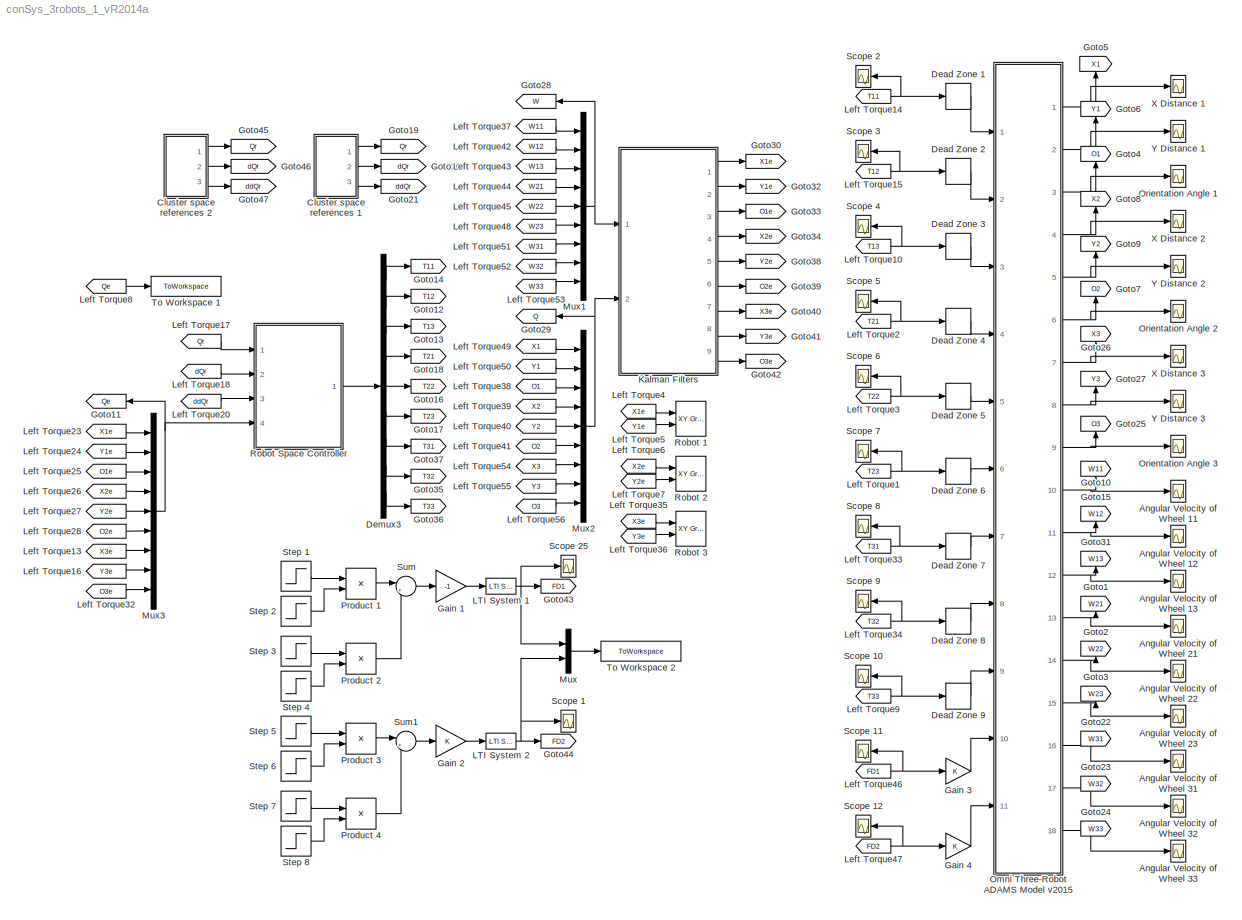
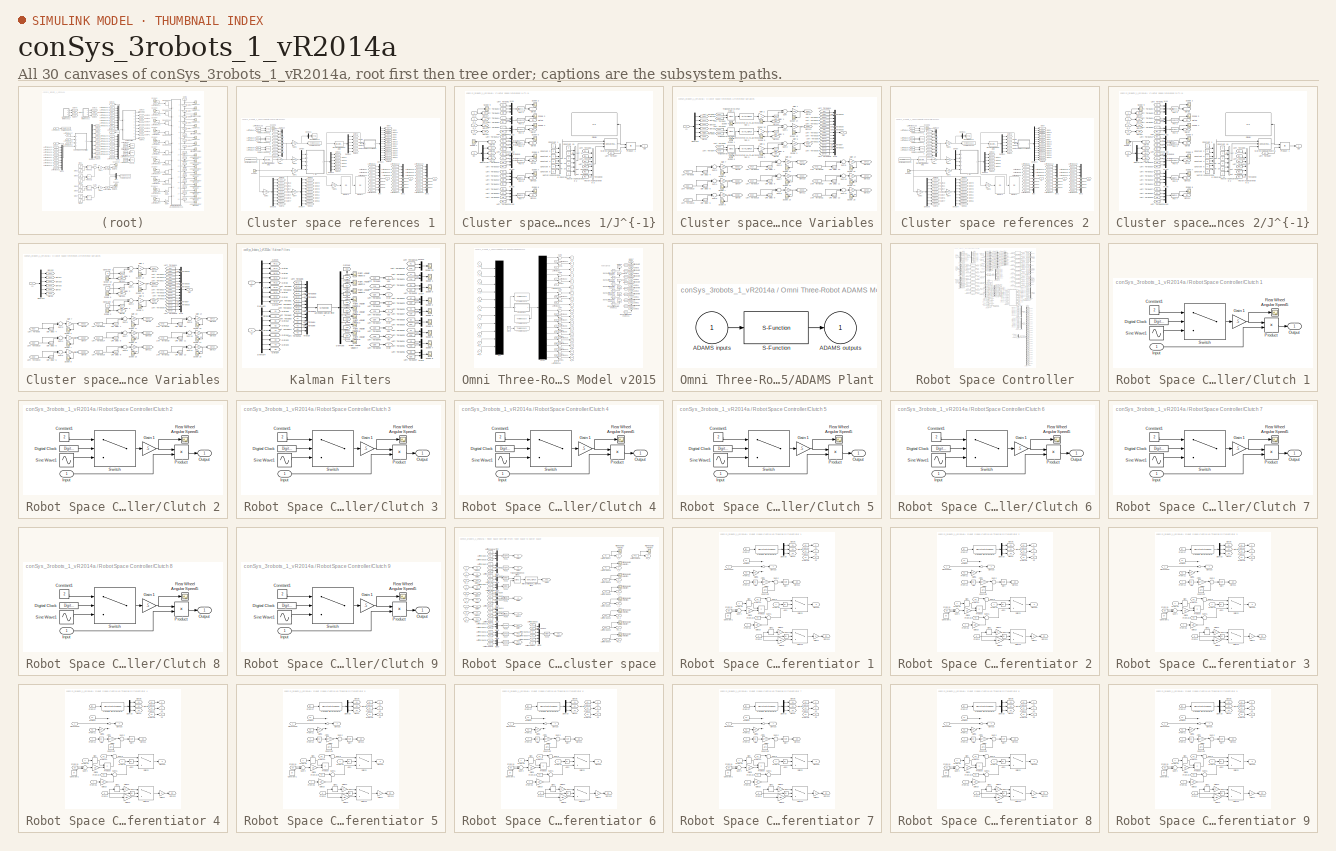
[diagram: thumbnail index - all 30 canvases of the model, root first then tree order]
MODEL conSys_3robots_1_vR2014a
KIND model
BLOCK [Scope] Angular Velocity of Wheel 11
  Floating = off
  LimitDataPoints = off
  NumInputPorts = 1
  Ports = [1]
  SID = 1
  SaveName = ScopeData3
  ShowLegends = off
  YMax = 20
  YMin = -1
  ZoomMode = yonly
BLOCK [Scope] Angular Velocity of Wheel 12
  Floating = off
  LimitDataPoints = off
  NumInputPorts = 1
  Ports = [1]
  SID = 2
  SaveName = ScopeData2
  ShowLegends = off
  YMax = 1
  YMin = -1
  ZoomMode = yonly
BLOCK [Scope] Angular Velocity of Wheel 13
  Floating = off
  LimitDataPoints = off
  NumInputPorts = 1
  Ports = [1]
  SID = 3
  SaveName = ScopeData9
  ShowLegends = off
  YMax = 1
  YMin = -1
  ZoomMode = yonly
BLOCK [Scope] Angular Velocity of Wheel 21
  Floating = off
  LimitDataPoints = off
  NumInputPorts = 1
  Ports = [1]
  SID = 22
  SaveName = ScopeData6
  ShowLegends = off
  YMax = 20
  YMin = -1
  ZoomMode = yonly
BLOCK [Scope] Angular Velocity of Wheel 22
  Floating = off
  LimitDataPoints = off
  NumInputPorts = 1
  Ports = [1]
  SID = 23
  SaveName = ScopeData10
  ShowLegends = off
  YMax = 1
  YMin = -1
  ZoomMode = yonly
BLOCK [Scope] Angular Velocity of Wheel 23
  Floating = off
  LimitDataPoints = off
  NumInputPorts = 1
  Ports = [1]
  SID = 24
  SaveName = ScopeData11
  ShowLegends = off
  YMax = 1
  YMin = -1
  ZoomMode = yonly
BLOCK [Scope] Angular Velocity of Wheel 31
  Floating = off
  LimitDataPoints = off
  NumInputPorts = 1
  Ports = [1]
  SID = 2288
  SaveName = ScopeData109
  ShowLegends = off
  YMax = 20
  YMin = -1
  ZoomMode = yonly
BLOCK [Scope] Angular Velocity of Wheel 32
  Floating = off
  LimitDataPoints = off
  NumInputPorts = 1
  Ports = [1]
  SID = 2289
  SaveName = ScopeData110
  ShowLegends = off
  YMax = 1
  YMin = -1
  ZoomMode = yonly
BLOCK [Scope] Angular Velocity of Wheel 33
  Floating = off
  LimitDataPoints = off
  NumInputPorts = 1
  Ports = [1]
  SID = 2290
  SaveName = ScopeData111
  ShowLegends = off
  YMax = 1
  YMin = -1
  ZoomMode = yonly
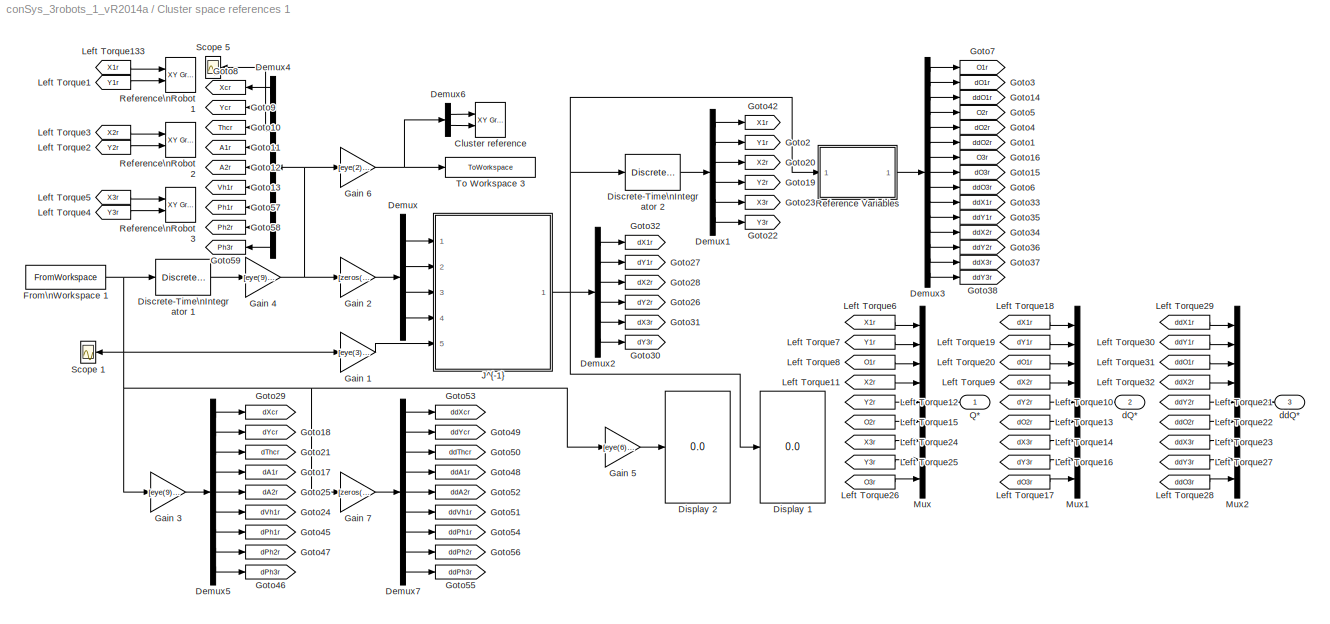
BLOCK [SubSystem] Cluster space references 1
  Commented = on
  Ports = [0, 3]
  RequestExecContextInheritance = off
  SID = 2390
BLOCK [Reference] Cluster space references 1/Cluster reference  REF=simulink/Sinks/XY Graph
  Ports = [2]
  SID = 2391
  SourceBlock = simulink/Sinks/XY Graph
  SourceType = XY scope.
  st = -1
  xmax = 20000
  xmin = 0
  ymax = 20000
  ymin = 0
BLOCK [Demux] Cluster space references 1/Demux
  DisplayOption = bar
  Ports = [1, 4]
  SID = 2392
BLOCK [Demux] Cluster space references 1/Demux1
  DisplayOption = bar
  Outputs = 6
  Ports = [1, 6]
  SID = 2393
BLOCK [Demux] Cluster space references 1/Demux2
  DisplayOption = bar
  Outputs = 6
  Ports = [1, 6]
  SID = 2394
BLOCK [Demux] Cluster space references 1/Demux3
  DisplayOption = bar
  Outputs = 15
  Ports = [1, 15]
  SID = 2395
BLOCK [Demux] Cluster space references 1/Demux4
  DisplayOption = bar
  Outputs = 9
  Ports = [1, 9]
  SID = 2396
BLOCK [Demux] Cluster space references 1/Demux5
  DisplayOption = bar
  Outputs = 9
  Ports = [1, 9]
  SID = 2397
BLOCK [Demux] Cluster space references 1/Demux6
  DisplayOption = bar
  Outputs = 2
  Ports = [1, 2]
  SID = 2398
BLOCK [Demux] Cluster space references 1/Demux7
  DisplayOption = bar
  Outputs = 9
  Ports = [1, 9]
  SID = 2703
BLOCK [DiscreteIntegrator] Cluster space references 1/Discrete-Time\nIntegrator 1
  ICPrevOutput = DiscIntNeverNeededParam
  ICPrevScaledInput = DiscIntNeverNeededParam
  InitialCondition = par.x0_c_ref
  IntegratorMethod = Integration: Trapezoidal
  Ports = [1, 1]
  SID = 2399
  SampleTime = Ts
BLOCK [DiscreteIntegrator] Cluster space references 1/Discrete-Time\nIntegrator 2
  ICPrevOutput = DiscIntNeverNeededParam
  ICPrevScaledInput = DiscIntNeverNeededParam
  InitialCondition = [x1r_0 y1r_0 x2r_0 y2r_0 x3r_0 y3r_0]'
  IntegratorMethod = Integration: Trapezoidal
  Ports = [1, 1]
  SID = 2400
  SampleTime = Ts
BLOCK [Display] Cluster space references 1/Display 1
  Decimation = 1
  Ports = [1]
  SID = 2401
BLOCK [Display] Cluster space references 1/Display 2
  Decimation = 1
  Ports = [1]
  SID = 2402
BLOCK [FromWorkspace] Cluster space references 1/From\nWorkspace 1
  OutputAfterFinalValue = Holding final value
  SID = 2403
  SampleTime = Ts
  VariableName = desired_path
  ZeroCross = on
BLOCK [Gain] Cluster space references 1/Gain 1
  Gain = [eye(3) zeros(3,15)]
  Multiplication = Matrix(K*u)
  OutDataTypeStr = Inherit: Inherit via internal rule
  ParamDataTypeStr = Inherit: Inherit via internal rule
  SID = 2404
  SaturateOnIntegerOverflow = off
BLOCK [Gain] Cluster space references 1/Gain 2
  Gain = [zeros(4,2) eye(4) zeros(4,3)]
  Multiplication = Matrix(K*u)
  OutDataTypeStr = Inherit: Inherit via internal rule
  ParamDataTypeStr = Inherit: Inherit via internal rule
  SID = 2405
  SaturateOnIntegerOverflow = off
BLOCK [Gain] Cluster space references 1/Gain 3
  Gain = [eye(9) zeros(9,9)]
  Multiplication = Matrix(K*u)
  OutDataTypeStr = Inherit: Inherit via internal rule
  ParamDataTypeStr = Inherit: Inherit via internal rule
  SID = 2697
  SaturateOnIntegerOverflow = off
BLOCK [Gain] Cluster space references 1/Gain 4
  Gain = [eye(9) zeros(9,9)]
  Multiplication = Matrix(K*u)
  OutDataTypeStr = Inherit: Inherit via internal rule
  ParamDataTypeStr = Inherit: Inherit via internal rule
  SID = 2698
  SaturateOnIntegerOverflow = off
BLOCK [Gain] Cluster space references 1/Gain 5
  Gain = [eye(6) zeros(6,12)]
  Multiplication = Matrix(K*u)
  OutDataTypeStr = Inherit: Inherit via internal rule
  ParamDataTypeStr = Inherit: Inherit via internal rule
  SID = 2699
  SaturateOnIntegerOverflow = off
BLOCK [Gain] Cluster space references 1/Gain 6
  Gain = [eye(2) zeros(2,7)]
  Multiplication = Matrix(K*u)
  OutDataTypeStr = Inherit: Inherit via internal rule
  ParamDataTypeStr = Inherit: Inherit via internal rule
  SID = 2406
  SaturateOnIntegerOverflow = off
BLOCK [Gain] Cluster space references 1/Gain 7
  Gain = [zeros(9,9) eye(9)]
  Multiplication = Matrix(K*u)
  OutDataTypeStr = Inherit: Inherit via internal rule
  ParamDataTypeStr = Inherit: Inherit via internal rule
  SID = 2704
  SaturateOnIntegerOverflow = off
BLOCK [Goto] Cluster space references 1/Goto1
  GotoTag = ddO2r
  SID = 3617
BLOCK [Goto] Cluster space references 1/Goto10
  GotoTag = Thcr
  SID = 2408
BLOCK [Goto] Cluster space references 1/Goto11
  GotoTag = A1r
  SID = 2409
BLOCK [Goto] Cluster space references 1/Goto12
  GotoTag = A2r
  SID = 2410
BLOCK [Goto] Cluster space references 1/Goto13
  GotoTag = Vh1r
  SID = 2411
BLOCK [Goto] Cluster space references 1/Goto14
  GotoTag = ddO1r
  SID = 3616
BLOCK [Goto] Cluster space references 1/Goto15
  GotoTag = dO3r
  SID = 3621
BLOCK [Goto] Cluster space references 1/Goto16
  GotoTag = O3r
  SID = 3622
BLOCK [Goto] Cluster space references 1/Goto17
  GotoTag = dA1r
  SID = 2415
BLOCK [Goto] Cluster space references 1/Goto18
  GotoTag = dYcr
  SID = 2416
BLOCK [Goto] Cluster space references 1/Goto19
  GotoTag = Y2r
  SID = 2417
BLOCK [Goto] Cluster space references 1/Goto2
  GotoTag = Y1r
  SID = 2418
BLOCK [Goto] Cluster space references 1/Goto20
  GotoTag = X2r
  SID = 2419
BLOCK [Goto] Cluster space references 1/Goto21
  GotoTag = dThcr
  SID = 2420
BLOCK [Goto] Cluster space references 1/Goto22
  GotoTag = Y3r
  SID = 2421
BLOCK [Goto] Cluster space references 1/Goto23
  GotoTag = X3r
  SID = 2422
BLOCK [Goto] Cluster space references 1/Goto24
  GotoTag = dVh1r
  SID = 2423
BLOCK [Goto] Cluster space references 1/Goto25
  GotoTag = dA2r
  SID = 2424
BLOCK [Goto] Cluster space references 1/Goto26
  GotoTag = dY2r
  SID = 2425
BLOCK [Goto] Cluster space references 1/Goto27
  GotoTag = dY1r
  SID = 2426
BLOCK [Goto] Cluster space references 1/Goto28
  GotoTag = dX2r
  SID = 2427
BLOCK [Goto] Cluster space references 1/Goto29
  GotoTag = dXcr
  SID = 2428
BLOCK [Goto] Cluster space references 1/Goto3
  GotoTag = dO1r
  SID = 2429
BLOCK [Goto] Cluster space references 1/Goto30
  GotoTag = dY3r
  SID = 2430
BLOCK [Goto] Cluster space references 1/Goto31
  GotoTag = dX3r
  SID = 2431
BLOCK [Goto] Cluster space references 1/Goto32
  GotoTag = dX1r
  SID = 2432
BLOCK [Goto] Cluster space references 1/Goto33
  GotoTag = ddX1r
  SID = 3627
BLOCK [Goto] Cluster space references 1/Goto34
  GotoTag = ddX2r
  SID = 3631
BLOCK [Goto] Cluster space references 1/Goto35
  GotoTag = ddY1r
  SID = 3629
BLOCK [Goto] Cluster space references 1/Goto36
  GotoTag = ddY2r
  SID = 3632
BLOCK [Goto] Cluster space references 1/Goto37
  GotoTag = ddX3r
  SID = 3633
BLOCK [Goto] Cluster space references 1/Goto38
  GotoTag = ddY3r
  SID = 3634
BLOCK [Goto] Cluster space references 1/Goto4
  GotoTag = dO2r
  SID = 3618
BLOCK [Goto] Cluster space references 1/Goto42
  GotoTag = X1r
  SID = 2443
BLOCK [Goto] Cluster space references 1/Goto45
  GotoTag = dPh1r
  SID = 2700
BLOCK [Goto] Cluster space references 1/Goto46
  GotoTag = dPh3r
  SID = 2701
BLOCK [Goto] Cluster space references 1/Goto47
  GotoTag = dPh2r
  SID = 2702
BLOCK [Goto] Cluster space references 1/Goto48
  GotoTag = ddA1r
  SID = 2705
BLOCK [Goto] Cluster space references 1/Goto49
  GotoTag = ddYcr
  SID = 2706
BLOCK [Goto] Cluster space references 1/Goto5
  GotoTag = O2r
  SID = 3619
BLOCK [Goto] Cluster space references 1/Goto50
  GotoTag = ddThcr
  SID = 2707
BLOCK [Goto] Cluster space references 1/Goto51
  GotoTag = ddVh1r
  SID = 2708
BLOCK [Goto] Cluster space references 1/Goto52
  GotoTag = ddA2r
  SID = 2709
BLOCK [Goto] Cluster space references 1/Goto53
  GotoTag = ddXcr
  SID = 2710
BLOCK [Goto] Cluster space references 1/Goto54
  GotoTag = ddPh1r
  SID = 2711
BLOCK [Goto] Cluster space references 1/Goto55
  GotoTag = ddPh3r
  SID = 2712
BLOCK [Goto] Cluster space references 1/Goto56
  GotoTag = ddPh2r
  SID = 2713
BLOCK [Goto] Cluster space references 1/Goto57
  GotoTag = Ph1r
  SID = 2714
BLOCK [Goto] Cluster space references 1/Goto58
  GotoTag = Ph2r
  SID = 2715
BLOCK [Goto] Cluster space references 1/Goto59
  GotoTag = Ph3r
  SID = 2716
BLOCK [Goto] Cluster space references 1/Goto6
  GotoTag = ddO3r
  SID = 3620
BLOCK [Goto] Cluster space references 1/Goto7
  GotoTag = O1r
  SID = 2448
BLOCK [Goto] Cluster space references 1/Goto8
  GotoTag = Xcr
  SID = 2449
BLOCK [Goto] Cluster space references 1/Goto9
  GotoTag = Ycr
  SID = 2450
BLOCK [SubSystem] Cluster space references 1/J^{-1}
  Ports = [5, 1]
  RequestExecContextInheritance = off
  SID = 2451
BLOCK [Constant] Cluster space references 1/J^{-1}/Constant 1
  SID = 2457
BLOCK [Constant] Cluster space references 1/J^{-1}/Constant 10
  SID = 2458
  Value = 0
BLOCK [Constant] Cluster space references 1/J^{-1}/Constant 11
  SID = 2459
BLOCK [Constant] Cluster space references 1/J^{-1}/Constant 12
  SID = 2460
  Value = 0
BLOCK [Constant] Cluster space references 1/J^{-1}/Constant 13
  SID = 2461
BLOCK [Constant] Cluster space references 1/J^{-1}/Constant 14
  SID = 2462
BLOCK [Constant] Cluster space references 1/J^{-1}/Constant 15
  SID = 2463
  Value = 0
BLOCK [Constant] Cluster space references 1/J^{-1}/Constant 2
  SID = 2464
  Value = 0
BLOCK [Constant] Cluster space references 1/J^{-1}/Constant 3
  SID = 2465
BLOCK [Constant] Cluster space references 1/J^{-1}/Constant 4
  SID = 2466
  Value = 0
BLOCK [Constant] Cluster space references 1/J^{-1}/Constant 5
  SID = 2467
  Value = 0
BLOCK [Constant] Cluster space references 1/J^{-1}/Constant 6
  SID = 2468
BLOCK [Demux] Cluster space references 1/J^{-1}/Demux
  DisplayOption = bar
  Outputs = 3
  Ports = [1, 3]
  SID = 2469
BLOCK [Display] Cluster space references 1/J^{-1}/Display
  Decimation = 1
  Ports = [1]
  SID = 2470
BLOCK [Fcn] Cluster space references 1/J^{-1}/Fcn 1
  Expr = sqrt(u(1)^2 + u(2)^2 + 2*u(1)*u(2)*cos(u(3)))
  SID = 2471
BLOCK [Fcn] Cluster space references 1/J^{-1}/Fcn 2
  Expr = (1/3)*u(1)*cos(u(2))
  SID = 2472
BLOCK [Fcn] Cluster space references 1/J^{-1}/Fcn 3
  Expr = -(1/3)*u(1)*sin(u(2))
  SID = 2473
BLOCK [Fcn] Cluster space references 1/J^{-1}/Fcn 4
  Expr = u(1) - u(2)*cos(u(3)/2 + u(4))
  SID = 2474
BLOCK [Fcn] Cluster space references 1/J^{-1}/Fcn 5
  Expr = u(1) + u(2)*sin(u(3)/2 + u(4))
  SID = 2475
BLOCK [Fcn] Cluster space references 1/J^{-1}/Fcn 6
  Expr = u(1) - u(2)*cos(u(3)/2 - u(4))
  SID = 2476
BLOCK [Fcn] Cluster space references 1/J^{-1}/Fcn 7
  Expr = u(1) - u(2)*sin(u(3)/2 - u(4))
  SID = 2477
BLOCK [Goto] Cluster space references 1/J^{-1}/Goto1
  GotoTag = dyc
  SID = 2478
BLOCK [Goto] Cluster space references 1/J^{-1}/Goto10
  GotoTag = f53
  SID = 2479
BLOCK [Goto] Cluster space references 1/J^{-1}/Goto11
  GotoTag = f63
  SID = 2480
BLOCK [Goto] Cluster space references 1/J^{-1}/Goto17
  GotoTag = thc
  SID = 2481
BLOCK [Goto] Cluster space references 1/J^{-1}/Goto18
  GotoTag = a1
  SID = 2482
BLOCK [Goto] Cluster space references 1/J^{-1}/Goto19
  GotoTag = a2
  SID = 2483
BLOCK [Goto] Cluster space references 1/J^{-1}/Goto2
  GotoTag = dxc
  SID = 2484
BLOCK [Goto] Cluster space references 1/J^{-1}/Goto21
  GotoTag = vth
  SID = 2485
BLOCK [Goto] Cluster space references 1/J^{-1}/Goto3
  GotoTag = dthc
  SID = 2486
BLOCK [Goto] Cluster space references 1/J^{-1}/Goto4
  GotoTag = dC
  SID = 2487
BLOCK [Goto] Cluster space references 1/J^{-1}/Goto5
  GotoTag = l
  SID = 2488
BLOCK [Goto] Cluster space references 1/J^{-1}/Goto6
  GotoTag = f13
  SID = 2489
BLOCK [Goto] Cluster space references 1/J^{-1}/Goto7
  GotoTag = f23
  SID = 2490
BLOCK [Goto] Cluster space references 1/J^{-1}/Goto8
  GotoTag = f33
  SID = 2491
BLOCK [Goto] Cluster space references 1/J^{-1}/Goto9
  GotoTag = f43
  SID = 2492
BLOCK [From] Cluster space references 1/J^{-1}/Left Torque1
  GotoTag = a1
  SID = 2493
BLOCK [From] Cluster space references 1/J^{-1}/Left Torque10
  GotoTag = thc
  SID = 2494
BLOCK [From] Cluster space references 1/J^{-1}/Left Torque11
  GotoTag = a1
  SID = 2495
BLOCK [From] Cluster space references 1/J^{-1}/Left Torque12
  GotoTag = f13
  SID = 2496
BLOCK [From] Cluster space references 1/J^{-1}/Left Torque13
  GotoTag = vth
  SID = 2497
BLOCK [From] Cluster space references 1/J^{-1}/Left Torque14
  GotoTag = thc
  SID = 2498
BLOCK [From] Cluster space references 1/J^{-1}/Left Torque15
  GotoTag = f33
  SID = 2499
BLOCK [From] Cluster space references 1/J^{-1}/Left Torque16
  GotoTag = f43
  SID = 2500
BLOCK [From] Cluster space references 1/J^{-1}/Left Torque17
  GotoTag = a1
  SID = 2501
BLOCK [From] Cluster space references 1/J^{-1}/Left Torque18
  GotoTag = f23
  SID = 2502
BLOCK [From] Cluster space references 1/J^{-1}/Left Torque19
  GotoTag = vth
  SID = 2503
BLOCK [From] Cluster space references 1/J^{-1}/Left Torque2
  GotoTag = a2
  SID = 2504
BLOCK [From] Cluster space references 1/J^{-1}/Left Torque20
  GotoTag = thc
  SID = 2505
BLOCK [From] Cluster space references 1/J^{-1}/Left Torque21
  GotoTag = a2
  SID = 2506
BLOCK [From] Cluster space references 1/J^{-1}/Left Torque22
  GotoTag = f13
  SID = 2507
BLOCK [From] Cluster space references 1/J^{-1}/Left Torque23
  GotoTag = vth
  SID = 2508
BLOCK [From] Cluster space references 1/J^{-1}/Left Torque24
  GotoTag = thc
  SID = 2509
BLOCK [From] Cluster space references 1/J^{-1}/Left Torque25
  GotoTag = a2
  SID = 2510
BLOCK [From] Cluster space references 1/J^{-1}/Left Torque26
  GotoTag = f53
  SID = 2511
BLOCK [From] Cluster space references 1/J^{-1}/Left Torque27
  GotoTag = f23
  SID = 2512
BLOCK [From] Cluster space references 1/J^{-1}/Left Torque28
  GotoTag = vth
  SID = 2513
BLOCK [From] Cluster space references 1/J^{-1}/Left Torque29
  GotoTag = thc
  SID = 2514
BLOCK [From] Cluster space references 1/J^{-1}/Left Torque3
  GotoTag = vth
  SID = 2515
BLOCK [From] Cluster space references 1/J^{-1}/Left Torque30
  GotoTag = f63
  SID = 2516
BLOCK [From] Cluster space references 1/J^{-1}/Left Torque4
  GotoTag = l
  SID = 2517
BLOCK [From] Cluster space references 1/J^{-1}/Left Torque5
  GotoTag = f13
  SID = 2518
BLOCK [From] Cluster space references 1/J^{-1}/Left Torque6
  GotoTag = thc
  SID = 2519
BLOCK [From] Cluster space references 1/J^{-1}/Left Torque7
  GotoTag = dC
  SID = 2520
BLOCK [From] Cluster space references 1/J^{-1}/Left Torque8
  GotoTag = f23
  SID = 2521
BLOCK [From] Cluster space references 1/J^{-1}/Left Torque9
  GotoTag = l
  SID = 2522
BLOCK [Concatenate] Cluster space references 1/J^{-1}/Matrix\nConcatenate 1
  ConcatenateDimension = 2
  Mode = Multidimensional array
  NumInputs = 3
  Ports = [3, 1]
  SID = 2523
BLOCK [Mux] Cluster space references 1/J^{-1}/Mux
  DisplayOption = bar
  Inputs = 3
  Ports = [3, 1]
  SID = 2524
BLOCK [Mux] Cluster space references 1/J^{-1}/Mux1
  DisplayOption = bar
  Inputs = 2
  Ports = [2, 1]
  SID = 2525
BLOCK [Mux] Cluster space references 1/J^{-1}/Mux2
  DisplayOption = bar
  Inputs = 2
  Ports = [2, 1]
  SID = 2526
BLOCK [Mux] Cluster space references 1/J^{-1}/Mux3
  DisplayOption = bar
  Ports = [4, 1]
  SID = 2527
BLOCK [Mux] Cluster space references 1/J^{-1}/Mux4
  DisplayOption = bar
  Ports = [4, 1]
  SID = 2528
BLOCK [Mux] Cluster space references 1/J^{-1}/Mux5
  DisplayOption = bar
  Ports = [4, 1]
  SID = 2529
BLOCK [Mux] Cluster space references 1/J^{-1}/Mux6
  DisplayOption = bar
  Ports = [4, 1]
  SID = 2530
BLOCK [Outport] Cluster space references 1/J^{-1}/Out
  IconDisplay = Port number
  SID = 2544
BLOCK [Product] Cluster space references 1/J^{-1}/Product 1
  InputSameDT = off
  Multiplication = Matrix(*)
  OutDataTypeStr = Inherit: Inherit via internal rule
  Ports = [2, 1]
  RndMeth = Floor
  SID = 2531
  SaturateOnIntegerOverflow = off
BLOCK [Scope] Cluster space references 1/J^{-1}/Scope 1
  Floating = off
  LegendLocations = 0.91935     0.86917    0.058565    0.076092
  LimitDataPoints = off
  NumInputPorts = 1
  Ports = [1]
  SID = 2532
  SaveName = ScopeData33
  ShowLegends = on
  YMax = 500
  YMin = -500
  ZoomMode = yonly
BLOCK [Scope] Cluster space references 1/J^{-1}/Scope 2
  Floating = off
  LimitDataPoints = off
  NumInputPorts = 1
  Ports = [1]
  SID = 2533
  SaveName = ScopeData34
  ShowLegends = on
  YMax = 800
  YMin = -500
  ZoomMode = yonly
BLOCK [Scope] Cluster space references 1/J^{-1}/Scope 3
  Floating = off
  LegendLocations = 0.91569     0.91532    0.062225    0.029946
  LimitDataPoints = off
  NumInputPorts = 1
  Ports = [1]
  SID = 2534
  SaveName = ScopeData35
  ShowLegends = on
  YMax = 500
  YMin = -500
  ZoomMode = yonly
BLOCK [Scope] Cluster space references 1/J^{-1}/Scope 4
  Floating = off
  LegendLocations = 0.91569     0.91532    0.062225    0.029946
  LimitDataPoints = off
  NumInputPorts = 1
  Ports = [1]
  SID = 2535
  SaveName = ScopeData36
  ShowLegends = on
  YMax = 500
  YMin = -500
  ZoomMode = yonly
BLOCK [Scope] Cluster space references 1/J^{-1}/Scope 5
  Floating = off
  LimitDataPoints = off
  NumInputPorts = 1
  Ports = [1]
  SID = 2536
  SaveName = ScopeData37
  ShowLegends = on
  YMax = 500
  YMin = -500
  ZoomMode = yonly
BLOCK [Scope] Cluster space references 1/J^{-1}/Scope 6
  Floating = off
  LimitDataPoints = off
  NumInputPorts = 1
  Ports = [1]
  SID = 2537
  SaveName = ScopeData38
  ShowLegends = on
  YMax = 500
  YMin = -500
  ZoomMode = yonly
BLOCK [Scope] Cluster space references 1/J^{-1}/Scope 7
  Floating = off
  LimitDataPoints = off
  NumInputPorts = 1
  Ports = [1]
  SID = 2538
  SaveName = ScopeData39
  ShowLegends = on
  YMax = 500
  YMin = -500
  ZoomMode = yonly
BLOCK [Scope] Cluster space references 1/J^{-1}/Scope 8
  Floating = off
  LegendLocations = 0.91569     0.91532    0.062225    0.029946
  LimitDataPoints = off
  NumInputPorts = 1
  Ports = [1]
  SID = 2539
  SaveName = ScopeData40
  ShowLegends = on
  YMax = 500
  YMin = -500
  ZoomMode = yonly
BLOCK [Scope] Cluster space references 1/J^{-1}/Scope 9
  Floating = off
  LegendLocations = 0.92008     0.91532    0.057833    0.029946
  LimitDataPoints = off
  NumInputPorts = 1
  Ports = [1]
  SID = 2540
  SaveName = ScopeData41
  ShowLegends = on
  YMax = 10
  YMin = -10
  ZoomMode = yonly
BLOCK [Concatenate] Cluster space references 1/J^{-1}/Vector\nConcatenate 1
  NumInputs = 6
  Ports = [6, 1]
  SID = 2541
BLOCK [Concatenate] Cluster space references 1/J^{-1}/Vector\nConcatenate 2
  NumInputs = 6
  Ports = [6, 1]
  SID = 2542
BLOCK [Concatenate] Cluster space references 1/J^{-1}/Vector\nConcatenate 3
  NumInputs = 6
  Ports = [6, 1]
  SID = 2543
BLOCK [Inport] Cluster space references 1/J^{-1}/a_1
  IconDisplay = Port number
  Port = 2
  SID = 2453
BLOCK [Inport] Cluster space references 1/J^{-1}/a_2
  IconDisplay = Port number
  Port = 3
  SID = 2454
BLOCK [Inport] Cluster space references 1/J^{-1}/dC
  IconDisplay = Port number
  Port = 5
  PortDimensions = 3
  SID = 2456
BLOCK [Inport] Cluster space references 1/J^{-1}/th_c
  IconDisplay = Port number
  SID = 2452
BLOCK [Inport] Cluster space references 1/J^{-1}/vth
  IconDisplay = Port number
  Port = 4
  SID = 2455
BLOCK [From] Cluster space references 1/Left Torque1
  GotoTag = Y1r
  SID = 2545
BLOCK [From] Cluster space references 1/Left Torque10
  GotoTag = dY2r
  SID = 3517
BLOCK [From] Cluster space references 1/Left Torque11
  GotoTag = X2r
  SID = 2547
BLOCK [From] Cluster space references 1/Left Torque12
  GotoTag = Y2r
  SID = 2548
BLOCK [From] Cluster space references 1/Left Torque13
  GotoTag = dO2r
  SID = 3518
BLOCK [From] Cluster space references 1/Left Torque133
  GotoTag = X1r
  SID = 2550
BLOCK [From] Cluster space references 1/Left Torque14
  GotoTag = dX3r
  SID = 3519
BLOCK [From] Cluster space references 1/Left Torque15
  GotoTag = O2r
  SID = 2552
BLOCK [From] Cluster space references 1/Left Torque16
  GotoTag = dY3r
  SID = 3520
BLOCK [From] Cluster space references 1/Left Torque17
  GotoTag = dO3r
  SID = 3521
BLOCK [From] Cluster space references 1/Left Torque18
  GotoTag = dX1r
  SID = 3522
BLOCK [From] Cluster space references 1/Left Torque19
  GotoTag = dY1r
  SID = 3523
BLOCK [From] Cluster space references 1/Left Torque2
  GotoTag = Y2r
  SID = 2557
BLOCK [From] Cluster space references 1/Left Torque20
  GotoTag = dO1r
  SID = 3524
BLOCK [From] Cluster space references 1/Left Torque21
  GotoTag = ddY2r
  SID = 2726
BLOCK [From] Cluster space references 1/Left Torque22
  GotoTag = ddO2r
  SID = 2727
BLOCK [From] Cluster space references 1/Left Torque23
  GotoTag = ddX3r
  SID = 2728
BLOCK [From] Cluster space references 1/Left Torque24
  GotoTag = X3r
  SID = 2562
BLOCK [From] Cluster space references 1/Left Torque25
  GotoTag = Y3r
  SID = 2563
BLOCK [From] Cluster space references 1/Left Torque26
  GotoTag = O3r
  SID = 2564
BLOCK [From] Cluster space references 1/Left Torque27
  GotoTag = ddY3r
  SID = 2729
BLOCK [From] Cluster space references 1/Left Torque28
  GotoTag = ddO3r
  SID = 2730
BLOCK [From] Cluster space references 1/Left Torque29
  GotoTag = ddX1r
  SID = 2731
BLOCK [From] Cluster space references 1/Left Torque3
  GotoTag = X2r
  SID = 2568
BLOCK [From] Cluster space references 1/Left Torque30
  GotoTag = ddY1r
  SID = 2732
BLOCK [From] Cluster space references 1/Left Torque31
  GotoTag = ddO1r
  SID = 2733
BLOCK [From] Cluster space references 1/Left Torque32
  GotoTag = ddX2r
  SID = 2734
BLOCK [From] Cluster space references 1/Left Torque4
  GotoTag = Y3r
  SID = 2579
BLOCK [From] Cluster space references 1/Left Torque5
  GotoTag = X3r
  SID = 2590
BLOCK [From] Cluster space references 1/Left Torque6
  GotoTag = X1r
  SID = 2593
BLOCK [From] Cluster space references 1/Left Torque7
  GotoTag = Y1r
  SID = 2594
BLOCK [From] Cluster space references 1/Left Torque8
  GotoTag = O1r
  SID = 2595
BLOCK [From] Cluster space references 1/Left Torque9
  GotoTag = dX2r
  SID = 3516
BLOCK [Mux] Cluster space references 1/Mux
  DisplayOption = bar
  Inputs = 9
  Ports = [9, 1]
  SID = 2597
BLOCK [Mux] Cluster space references 1/Mux1
  DisplayOption = bar
  Inputs = 9
  Ports = [9, 1]
  SID = 2598
BLOCK [Mux] Cluster space references 1/Mux2
  DisplayOption = bar
  Inputs = 9
  Ports = [9, 1]
  SID = 2735
BLOCK [Outport] Cluster space references 1/Q*
  IconDisplay = Port number
  SID = 2689
BLOCK [SubSystem] Cluster space references 1/Reference Variables
  Ports = [1, 1]
  RequestExecContextInheritance = off
  SID = 2602
BLOCK [Demux] Cluster space references 1/Reference Variables/Demux2
  DisplayOption = bar
  Outputs = 6
  Ports = [1, 6]
  SID = 2604
BLOCK [Gain] Cluster space references 1/Reference Variables/Gain 1
  Gain = 1/Ts
  OutDataTypeStr = Inherit: Inherit via internal rule
  ParamDataTypeStr = Inherit: Inherit via internal rule
  SID = 2605
  SaturateOnIntegerOverflow = off
BLOCK [Gain] Cluster space references 1/Reference Variables/Gain 10
  Gain = 1/Ts
  OutDataTypeStr = Inherit: Inherit via internal rule
  ParamDataTypeStr = Inherit: Inherit via internal rule
  SID = 3564
  SaturateOnIntegerOverflow = off
BLOCK [Gain] Cluster space references 1/Reference Variables/Gain 11
  Gain = 1/Ts
  OutDataTypeStr = Inherit: Inherit via internal rule
  ParamDataTypeStr = Inherit: Inherit via internal rule
  SID = 3565
  SaturateOnIntegerOverflow = off
BLOCK [Gain] Cluster space references 1/Reference Variables/Gain 12
  Gain = 1/Ts
  OutDataTypeStr = Inherit: Inherit via internal rule
  ParamDataTypeStr = Inherit: Inherit via internal rule
  SID = 3576
  SaturateOnIntegerOverflow = off
BLOCK [Gain] Cluster space references 1/Reference Variables/Gain 13
  Gain = 1/Ts
  OutDataTypeStr = Inherit: Inherit via internal rule
  ParamDataTypeStr = Inherit: Inherit via internal rule
  SID = 3582
  SaturateOnIntegerOverflow = off
BLOCK [Gain] Cluster space references 1/Reference Variables/Gain 14
  Gain = 1/Ts
  OutDataTypeStr = Inherit: Inherit via internal rule
  ParamDataTypeStr = Inherit: Inherit via internal rule
  SID = 3583
  SaturateOnIntegerOverflow = off
BLOCK [Gain] Cluster space references 1/Reference Variables/Gain 15
  Gain = 1/Ts
  OutDataTypeStr = Inherit: Inherit via internal rule
  ParamDataTypeStr = Inherit: Inherit via internal rule
  SID = 3594
  SaturateOnIntegerOverflow = off
BLOCK [Gain] Cluster space references 1/Reference Variables/Gain 2
  Gain = -1
  OutDataTypeStr = Inherit: Inherit via internal rule
  ParamDataTypeStr = Inherit: Inherit via internal rule
  SID = 2606
  SaturateOnIntegerOverflow = off
BLOCK [Gain] Cluster space references 1/Reference Variables/Gain 3
  Gain = 1/Ts
  OutDataTypeStr = Inherit: Inherit via internal rule
  ParamDataTypeStr = Inherit: Inherit via internal rule
  SID = 2607
  SaturateOnIntegerOverflow = off
BLOCK [Gain] Cluster space references 1/Reference Variables/Gain 4
  Gain = -1
  OutDataTypeStr = Inherit: Inherit via internal rule
  ParamDataTypeStr = Inherit: Inherit via internal rule
  SID = 2608
  SaturateOnIntegerOverflow = off
BLOCK [Gain] Cluster space references 1/Reference Variables/Gain 5
  Gain = 1/Ts
  OutDataTypeStr = Inherit: Inherit via internal rule
  ParamDataTypeStr = Inherit: Inherit via internal rule
  SID = 2609
  SaturateOnIntegerOverflow = off
BLOCK [Gain] Cluster space references 1/Reference Variables/Gain 6
  Gain = -1
  OutDataTypeStr = Inherit: Inherit via internal rule
  ParamDataTypeStr = Inherit: Inherit via internal rule
  SID = 2610
  SaturateOnIntegerOverflow = off
BLOCK [Gain] Cluster space references 1/Reference Variables/Gain 7
  Gain = 1/Ts
  OutDataTypeStr = Inherit: Inherit via internal rule
  ParamDataTypeStr = Inherit: Inherit via internal rule
  SID = 3534
  SaturateOnIntegerOverflow = off
BLOCK [Gain] Cluster space references 1/Reference Variables/Gain 8
  Gain = 1/Ts
  OutDataTypeStr = Inherit: Inherit via internal rule
  ParamDataTypeStr = Inherit: Inherit via internal rule
  SID = 3535
  SaturateOnIntegerOverflow = off
BLOCK [Gain] Cluster space references 1/Reference Variables/Gain 9
  Gain = 1/Ts
  OutDataTypeStr = Inherit: Inherit via internal rule
  ParamDataTypeStr = Inherit: Inherit via internal rule
  SID = 3546
  SaturateOnIntegerOverflow = off
BLOCK [Goto] Cluster space references 1/Reference Variables/Goto1
  GotoTag = dO1r
  SID = 2611
BLOCK [Goto] Cluster space references 1/Reference Variables/Goto10
  GotoTag = ddX2r
  SID = 3567
BLOCK [Goto] Cluster space references 1/Reference Variables/Goto11
  GotoTag = ddX3r
  SID = 3577
BLOCK [Goto] Cluster space references 1/Reference Variables/Goto12
  GotoTag = O1r
  SID = 2612
BLOCK [Goto] Cluster space references 1/Reference Variables/Goto13
  GotoTag = dO2r
  SID = 2613
BLOCK [Goto] Cluster space references 1/Reference Variables/Goto14
  GotoTag = O2r
  SID = 2614
BLOCK [Goto] Cluster space references 1/Reference Variables/Goto15
  GotoTag = ddY1r
  SID = 3584
BLOCK [Goto] Cluster space references 1/Reference Variables/Goto16
  GotoTag = ddY2r
  SID = 3585
BLOCK [Goto] Cluster space references 1/Reference Variables/Goto17
  GotoTag = ddY3r
  SID = 3595
BLOCK [Goto] Cluster space references 1/Reference Variables/Goto2
  GotoTag = dY3r
  SID = 2615
BLOCK [Goto] Cluster space references 1/Reference Variables/Goto26
  GotoTag = dY2r
  SID = 2616
BLOCK [Goto] Cluster space references 1/Reference Variables/Goto27
  GotoTag = dY1r
  SID = 2617
BLOCK [Goto] Cluster space references 1/Reference Variables/Goto28
  GotoTag = dX2r
  SID = 2618
BLOCK [Goto] Cluster space references 1/Reference Variables/Goto3
  GotoTag = dX3r
  SID = 2619
BLOCK [Goto] Cluster space references 1/Reference Variables/Goto32
  GotoTag = dX1r
  SID = 2620
BLOCK [Goto] Cluster space references 1/Reference Variables/Goto4
  GotoTag = dO3r
  SID = 2621
BLOCK [Goto] Cluster space references 1/Reference Variables/Goto5
  GotoTag = O3r
  SID = 2622
BLOCK [Goto] Cluster space references 1/Reference Variables/Goto6
  GotoTag = ddO1r
  SID = 3536
BLOCK [Goto] Cluster space references 1/Reference Variables/Goto7
  GotoTag = ddO2r
  SID = 3537
BLOCK [Goto] Cluster space references 1/Reference Variables/Goto8
  GotoTag = ddO3r
  SID = 3547
BLOCK [Goto] Cluster space references 1/Reference Variables/Goto9
  GotoTag = ddX1r
  SID = 3566
BLOCK [Inport] Cluster space references 1/Reference Variables/In
  IconDisplay = Port number
  PortDimensions = 6
  SID = 2603
BLOCK [MATLABFcn] Cluster space references 1/Reference Variables/Interpreted MATLAB\nFunction 1
  MATLABFcn = Beta_Correction_1b(u)
  Ports = [1, 1]
  SID = 2623
  SampleTime = Ts
BLOCK [MATLABFcn] Cluster space references 1/Reference Variables/Interpreted MATLAB\nFunction 2
  MATLABFcn = Beta_Correction_2b(u)
  Ports = [1, 1]
  SID = 2624
  SampleTime = Ts
BLOCK [MATLABFcn] Cluster space references 1/Reference Variables/Interpreted MATLAB\nFunction 3
  MATLABFcn = Beta_Correction_3b(u)
  Ports = [1, 1]
  SID = 2625
  SampleTime = Ts
BLOCK [From] Cluster space references 1/Reference Variables/Left Torque1
  GotoTag = dY1r
  SID = 2626
BLOCK [From] Cluster space references 1/Reference Variables/Left Torque10
  GotoTag = dO2r
  SID = 3539
BLOCK [From] Cluster space references 1/Reference Variables/Left Torque11
  GotoTag = O1r
  SID = 3600
BLOCK [From] Cluster space references 1/Reference Variables/Left Torque12
  GotoTag = O2r
  SID = 3601
BLOCK [From] Cluster space references 1/Reference Variables/Left Torque13
  GotoTag = dO3r
  SID = 3548
BLOCK [From] Cluster space references 1/Reference Variables/Left Torque14
  GotoTag = dX2r
  SID = 3568
BLOCK [From] Cluster space references 1/Reference Variables/Left Torque15
  GotoTag = dX1r
  SID = 3569
BLOCK [From] Cluster space references 1/Reference Variables/Left Torque16
  GotoTag = dO1r
  SID = 3603
BLOCK [From] Cluster space references 1/Reference Variables/Left Torque17
  GotoTag = dO2r
  SID = 3604
BLOCK [From] Cluster space references 1/Reference Variables/Left Torque18
  GotoTag = dX3r
  SID = 3578
BLOCK [From] Cluster space references 1/Reference Variables/Left Torque19
  GotoTag = dY2r
  SID = 3586
BLOCK [From] Cluster space references 1/Reference Variables/Left Torque2
  GotoTag = dY2r
  SID = 2631
BLOCK [From] Cluster space references 1/Reference Variables/Left Torque20
  GotoTag = dY1r
  SID = 3587
BLOCK [From] Cluster space references 1/Reference Variables/Left Torque21
  GotoTag = dY3r
  SID = 3596
BLOCK [From] Cluster space references 1/Reference Variables/Left Torque22
  GotoTag = ddY1r
  SID = 3606
BLOCK [From] Cluster space references 1/Reference Variables/Left Torque23
  GotoTag = ddY2r
  SID = 3607
BLOCK [From] Cluster space references 1/Reference Variables/Left Torque24
  GotoTag = ddO1r
  SID = 3608
BLOCK [From] Cluster space references 1/Reference Variables/Left Torque25
  GotoTag = ddO2r
  SID = 3609
BLOCK [From] Cluster space references 1/Reference Variables/Left Torque26
  GotoTag = O3r
  SID = 3611
BLOCK [From] Cluster space references 1/Reference Variables/Left Torque27
  GotoTag = dO3r
  SID = 3612
BLOCK [From] Cluster space references 1/Reference Variables/Left Torque28
  GotoTag = ddO3r
  SID = 3613
BLOCK [From] Cluster space references 1/Reference Variables/Left Torque29
  GotoTag = ddY3r
  SID = 3614
BLOCK [From] Cluster space references 1/Reference Variables/Left Torque3
  GotoTag = dX2r
  SID = 2632
BLOCK [From] Cluster space references 1/Reference Variables/Left Torque30
  GotoTag = ddX3r
  SID = 3615
BLOCK [From] Cluster space references 1/Reference Variables/Left Torque4
  GotoTag = dY3r
  SID = 2633
BLOCK [From] Cluster space references 1/Reference Variables/Left Torque5
  GotoTag = dX3r
  SID = 2634
BLOCK [From] Cluster space references 1/Reference Variables/Left Torque6
  GotoTag = ddX1r
  SID = 3602
BLOCK [From] Cluster space references 1/Reference Variables/Left Torque7
  GotoTag = ddX2r
  SID = 3605
BLOCK [From] Cluster space references 1/Reference Variables/Left Torque8
  GotoTag = dO1r
  SID = 3538
BLOCK [From] Cluster space references 1/Reference Variables/Left Torque9
  GotoTag = dX1r
  SID = 2637
BLOCK [Mux] Cluster space references 1/Reference Variables/Mux
  DisplayOption = bar
  Inputs = 15
  Ports = [15, 1]
  SID = 3610
BLOCK [Outport] Cluster space references 1/Reference Variables/Out
  IconDisplay = Port number
  PortDimensions = 15
  SID = 2657
BLOCK [Scope] Cluster space references 1/Reference Variables/Scope 1
  Floating = off
  LimitDataPoints = off
  NumInputPorts = 1
  Ports = [1]
  SID = 2639
  SaveName = ScopeData61
  ShowLegends = off
  YMax = 10
  YMin = 0
BLOCK [Scope] Cluster space references 1/Reference Variables/Scope 10
  Floating = off
  LimitDataPoints = off
  NumInputPorts = 1
  Ports = [1]
  SID = 2640
  SaveName = ScopeData68
  ShowLegends = off
  YMax = 0
  YMin = -10
BLOCK [Scope] Cluster space references 1/Reference Variables/Scope 11
  Floating = off
  LimitDataPoints = off
  NumInputPorts = 1
  Ports = [1]
  SID = 3570
  SaveName = ScopeData80
  ShowLegends = off
  YMax = 0.02
  YMin = -0.02
  ZoomMode = xonly
BLOCK [Scope] Cluster space references 1/Reference Variables/Scope 12
  Floating = off
  LimitDataPoints = off
  NumInputPorts = 1
  Ports = [1]
  SID = 3571
  SaveName = ScopeData81
  ShowLegends = off
  YMax = 0.47
  YMin = -0.45
  ZoomMode = xonly
BLOCK [Scope] Cluster space references 1/Reference Variables/Scope 13
  Floating = off
  LimitDataPoints = off
  NumInputPorts = 1
  Ports = [1]
  SID = 2641
  SaveName = ScopeData71
  ShowLegends = off
  YMax = 0.47
  YMin = -0.45
  ZoomMode = xonly
BLOCK [Scope] Cluster space references 1/Reference Variables/Scope 14
  Floating = off
  LimitDataPoints = off
  NumInputPorts = 1
  Ports = [1]
  SID = 2642
  SaveName = ScopeData72
  ShowLegends = off
  YMax = 0.47
  YMin = -0.45
  ZoomMode = yonly
BLOCK [Scope] Cluster space references 1/Reference Variables/Scope 15
  Floating = off
  LimitDataPoints = off
  NumInputPorts = 1
  Ports = [1]
  SID = 3579
  SaveName = ScopeData85
  ShowLegends = off
  YMax = 0.47
  YMin = -0.45
  ZoomMode = xonly
BLOCK [Scope] Cluster space references 1/Reference Variables/Scope 16
  Floating = off
  LimitDataPoints = off
  NumInputPorts = 1
  Ports = [1]
  SID = 3588
  SaveName = ScopeData105
  ShowLegends = off
  YMax = 0.02
  YMin = -0.02
  ZoomMode = xonly
BLOCK [Scope] Cluster space references 1/Reference Variables/Scope 17
  Floating = off
  LimitDataPoints = off
  NumInputPorts = 1
  Ports = [1]
  SID = 3589
  SaveName = ScopeData106
  ShowLegends = off
  YMax = 0.47
  YMin = -0.45
  ZoomMode = xonly
BLOCK [Scope] Cluster space references 1/Reference Variables/Scope 18
  Floating = off
  LimitDataPoints = off
  NumInputPorts = 1
  Ports = [1]
  SID = 3597
  SaveName = ScopeData107
  ShowLegends = off
  YMax = 0.47
  YMin = -0.45
  ZoomMode = xonly
BLOCK [Scope] Cluster space references 1/Reference Variables/Scope 2
  Floating = off
  LimitDataPoints = off
  NumInputPorts = 1
  Ports = [1]
  SID = 2643
  SaveName = ScopeData22
  ShowLegends = off
  YMax = 0
  YMin = -10
BLOCK [Scope] Cluster space references 1/Reference Variables/Scope 3
  Floating = off
  LimitDataPoints = off
  NumInputPorts = 1
  Ports = [1]
  SID = 2644
  SaveName = ScopeData29
  ShowLegends = off
  YMax = 0.47
  YMin = -0.45
  ZoomMode = yonly
BLOCK [Scope] Cluster space references 1/Reference Variables/Scope 4
  Floating = off
  LimitDataPoints = off
  NumInputPorts = 1
  Ports = [1]
  SID = 2645
  SaveName = ScopeData30
  ShowLegends = off
  YMax = 10
  YMin = 0
BLOCK [Scope] Cluster space references 1/Reference Variables/Scope 5
  Floating = off
  LimitDataPoints = off
  NumInputPorts = 1
  Ports = [1]
  SID = 2646
  SaveName = ScopeData31
  ShowLegends = off
  YMax = 10
  YMin = 0
BLOCK [Scope] Cluster space references 1/Reference Variables/Scope 6
  Floating = off
  LimitDataPoints = off
  NumInputPorts = 1
  Ports = [1]
  SID = 3540
  SaveName = ScopeData69
  ShowLegends = off
  YMax = 0.02
  YMin = -0.02
  ZoomMode = yonly
BLOCK [Scope] Cluster space references 1/Reference Variables/Scope 7
  Floating = off
  LimitDataPoints = off
  NumInputPorts = 1
  Ports = [1]
  SID = 3541
  SaveName = ScopeData70
  ShowLegends = off
  YMax = 0.47
  YMin = -0.45
  ZoomMode = xonly
BLOCK [Scope] Cluster space references 1/Reference Variables/Scope 8
  Floating = off
  LimitDataPoints = off
  NumInputPorts = 1
  Ports = [1]
  SID = 3549
  SaveName = ScopeData79
  ShowLegends = off
  YMax = 0.47
  YMin = -0.45
  ZoomMode = xonly
BLOCK [Scope] Cluster space references 1/Reference Variables/Scope 9
  Floating = off
  LimitDataPoints = off
  NumInputPorts = 1
  Ports = [1]
  SID = 2647
  SaveName = ScopeData67
  ShowLegends = off
  YMax = 0
  YMin = -10
  ZoomMode = xonly
BLOCK [Sum] Cluster space references 1/Reference Variables/Sum
  IconShape = round
  InputSameDT = off
  Inputs = |+-
  OutDataTypeStr = Inherit: Inherit via internal rule
  Ports = [2, 1]
  SID = 2648
  SaturateOnIntegerOverflow = off
BLOCK [Sum] Cluster space references 1/Reference Variables/Sum1
  IconShape = round
  InputSameDT = off
  Inputs = |+-
  OutDataTypeStr = Inherit: Inherit via internal rule
  Ports = [2, 1]
  SID = 2649
  SaturateOnIntegerOverflow = off
BLOCK [Sum] Cluster space references 1/Reference Variables/Sum10
  IconShape = round
  InputSameDT = off
  Inputs = |+-
  OutDataTypeStr = Inherit: Inherit via internal rule
  Ports = [2, 1]
  SID = 3591
  SaturateOnIntegerOverflow = off
BLOCK [Sum] Cluster space references 1/Reference Variables/Sum11
  IconShape = round
  InputSameDT = off
  Inputs = |+-
  OutDataTypeStr = Inherit: Inherit via internal rule
  Ports = [2, 1]
  SID = 3598
  SaturateOnIntegerOverflow = off
BLOCK [Sum] Cluster space references 1/Reference Variables/Sum2
  IconShape = round
  InputSameDT = off
  Inputs = |+-
  OutDataTypeStr = Inherit: Inherit via internal rule
  Ports = [2, 1]
  SID = 2650
  SaturateOnIntegerOverflow = off
BLOCK [Sum] Cluster space references 1/Reference Variables/Sum3
  IconShape = round
  InputSameDT = off
  Inputs = |+-
  OutDataTypeStr = Inherit: Inherit via internal rule
  Ports = [2, 1]
  SID = 3542
  SaturateOnIntegerOverflow = off
BLOCK [Sum] Cluster space references 1/Reference Variables/Sum4
  IconShape = round
  InputSameDT = off
  Inputs = |+-
  OutDataTypeStr = Inherit: Inherit via internal rule
  Ports = [2, 1]
  SID = 3543
  SaturateOnIntegerOverflow = off
BLOCK [Sum] Cluster space references 1/Reference Variables/Sum5
  IconShape = round
  InputSameDT = off
  Inputs = |+-
  OutDataTypeStr = Inherit: Inherit via internal rule
  Ports = [2, 1]
  SID = 3550
  SaturateOnIntegerOverflow = off
BLOCK [Sum] Cluster space references 1/Reference Variables/Sum6
  IconShape = round
  InputSameDT = off
  Inputs = |+-
  OutDataTypeStr = Inherit: Inherit via internal rule
  Ports = [2, 1]
  SID = 3572
  SaturateOnIntegerOverflow = off
BLOCK [Sum] Cluster space references 1/Reference Variables/Sum7
  IconShape = round
  InputSameDT = off
  Inputs = |+-
  OutDataTypeStr = Inherit: Inherit via internal rule
  Ports = [2, 1]
  SID = 3573
  SaturateOnIntegerOverflow = off
BLOCK [Sum] Cluster space references 1/Reference Variables/Sum8
  IconShape = round
  InputSameDT = off
  Inputs = |+-
  OutDataTypeStr = Inherit: Inherit via internal rule
  Ports = [2, 1]
  SID = 3580
  SaturateOnIntegerOverflow = off
BLOCK [Sum] Cluster space references 1/Reference Variables/Sum9
  IconShape = round
  InputSameDT = off
  Inputs = |+-
  OutDataTypeStr = Inherit: Inherit via internal rule
  Ports = [2, 1]
  SID = 3590
  SaturateOnIntegerOverflow = off
BLOCK [Trigonometry] Cluster space references 1/Reference Variables/Trigonometric\nFunction 1
  Operator = atan2
  Ports = [2, 1]
  SID = 2651
  SampleTime = Ts
BLOCK [Trigonometry] Cluster space references 1/Reference Variables/Trigonometric\nFunction 2
  Operator = atan2
  Ports = [2, 1]
  SID = 2652
  SampleTime = Ts
BLOCK [Trigonometry] Cluster space references 1/Reference Variables/Trigonometric\nFunction 3
  Operator = atan2
  Ports = [2, 1]
  SID = 2653
  SampleTime = Ts
BLOCK [UnitDelay] Cluster space references 1/Reference Variables/Unit Delay 1
  InitialCondition = th1r_0
  InputProcessing = Elements as channels (sample based)
  SID = 2654
  SampleTime = -1
BLOCK [UnitDelay] Cluster space references 1/Reference Variables/Unit Delay 10
  InitialCondition = dy1r_0
  InputProcessing = Elements as channels (sample based)
  SID = 3592
  SampleTime = -1
BLOCK [UnitDelay] Cluster space references 1/Reference Variables/Unit Delay 11
  InitialCondition = dy2r_0
  InputProcessing = Elements as channels (sample based)
  SID = 3593
  SampleTime = -1
BLOCK [UnitDelay] Cluster space references 1/Reference Variables/Unit Delay 12
  InitialCondition = dy3r_0
  InputProcessing = Elements as channels (sample based)
  SID = 3599
  SampleTime = -1
BLOCK [UnitDelay] Cluster space references 1/Reference Variables/Unit Delay 2
  InitialCondition = th2r_0
  InputProcessing = Elements as channels (sample based)
  SID = 2655
  SampleTime = -1
BLOCK [UnitDelay] Cluster space references 1/Reference Variables/Unit Delay 3
  InitialCondition = th3r_0
  InputProcessing = Elements as channels (sample based)
  SID = 2656
  SampleTime = -1
BLOCK [UnitDelay] Cluster space references 1/Reference Variables/Unit Delay 4
  InitialCondition = dth1r_0
  InputProcessing = Elements as channels (sample based)
  SID = 3544
  SampleTime = -1
BLOCK [UnitDelay] Cluster space references 1/Reference Variables/Unit Delay 5
  InitialCondition = dth2r_0
  InputProcessing = Elements as channels (sample based)
  SID = 3545
  SampleTime = -1
BLOCK [UnitDelay] Cluster space references 1/Reference Variables/Unit Delay 6
  InitialCondition = dth3r_0
  InputProcessing = Elements as channels (sample based)
  SID = 3551
  SampleTime = -1
BLOCK [UnitDelay] Cluster space references 1/Reference Variables/Unit Delay 7
  InitialCondition = dx1r_0
  InputProcessing = Elements as channels (sample based)
  SID = 3574
  SampleTime = -1
BLOCK [UnitDelay] Cluster space references 1/Reference Variables/Unit Delay 8
  InitialCondition = dx2r_0
  InputProcessing = Elements as channels (sample based)
  SID = 3575
  SampleTime = -1
BLOCK [UnitDelay] Cluster space references 1/Reference Variables/Unit Delay 9
  InitialCondition = dx3r_0
  InputProcessing = Elements as channels (sample based)
  SID = 3581
  SampleTime = -1
BLOCK [Reference] Cluster space references 1/Reference\nRobot 1  REF=simulink/Sinks/XY Graph
  Ports = [2]
  SID = 2599
  SourceBlock = simulink/Sinks/XY Graph
  SourceType = XY scope.
  st = -1
  xmax = 20000
  xmin = 0
  ymax = 20000
  ymin = 0
BLOCK [Reference] Cluster space references 1/Reference\nRobot 2  REF=simulink/Sinks/XY Graph
  Ports = [2]
  SID = 2600
  SourceBlock = simulink/Sinks/XY Graph
  SourceType = XY scope.
  st = -1
  xmax = 20000
  xmin = 0
  ymax = 20000
  ymin = 0
BLOCK [Reference] Cluster space references 1/Reference\nRobot 3  REF=simulink/Sinks/XY Graph
  Ports = [2]
  SID = 2601
  SourceBlock = simulink/Sinks/XY Graph
  SourceType = XY scope.
  st = -1
  xmax = 20000
  xmin = 0
  ymax = 20000
  ymin = 0
BLOCK [Scope] Cluster space references 1/Scope 1
  Floating = off
  LegendLocations = 0.86298     0.79995     0.11493     0.14531
  LimitDataPoints = off
  NumInputPorts = 1
  Ports = [1]
  SID = 2658
  SaveName = ScopeData32
  ShowLegends = on
  YMax = 500
  YMin = -500
  ZoomMode = yonly
BLOCK [Scope] Cluster space references 1/Scope 5
  Floating = off
  LegendLocations = 0.86298     0.79995     0.11493     0.14531
  LimitDataPoints = off
  NumInputPorts = 1
  Ports = [1]
  SID = 2669
  SaveName = ScopeData100
  ShowLegends = on
  YMax = 500
  YMin = -500
  ZoomMode = yonly
BLOCK [ToWorkspace] Cluster space references 1/To Workspace 3
  FixptAsFi = on
  MaxDataPoints = inf
  Ports = [1]
  SID = 2688
  SampleTime = -1
  Save2DSignal = 3-D array (concatenate along third dimension)
  SaveFormat = Structure With Time
  VariableName = reference_cluster
BLOCK [Outport] Cluster space references 1/dQ*
  IconDisplay = Port number
  Port = 2
  SID = 2690
BLOCK [Outport] Cluster space references 1/ddQ*
  IconDisplay = Port number
  Port = 3
  SID = 2736
BLOCK [SubSystem] Cluster space references 2
  Ports = [0, 3]
  RequestExecContextInheritance = off
  SID = 4036
BLOCK [Reference] Cluster space references 2/Cluster reference  REF=simulink/Sinks/XY Graph
  Ports = [2]
  SID = 4037
  SourceBlock = simulink/Sinks/XY Graph
  SourceType = XY scope.
  st = -1
  xmax = 20000
  xmin = 0
  ymax = 20000
  ymin = 0
BLOCK [Demux] Cluster space references 2/Demux
  DisplayOption = bar
  Ports = [1, 4]
  SID = 4038
BLOCK [Demux] Cluster space references 2/Demux1
  DisplayOption = bar
  Outputs = 6
  Ports = [1, 6]
  SID = 4039
BLOCK [Demux] Cluster space references 2/Demux2
  DisplayOption = bar
  Outputs = 6
  Ports = [1, 6]
  SID = 4040
BLOCK [Demux] Cluster space references 2/Demux3
  DisplayOption = bar
  Outputs = 15
  Ports = [1, 15]
  SID = 4041
BLOCK [Demux] Cluster space references 2/Demux4
  DisplayOption = bar
  Outputs = 9
  Ports = [1, 9]
  SID = 4042
BLOCK [Demux] Cluster space references 2/Demux5
  DisplayOption = bar
  Outputs = 9
  Ports = [1, 9]
  SID = 4043
BLOCK [Demux] Cluster space references 2/Demux6
  DisplayOption = bar
  Outputs = 2
  Ports = [1, 2]
  SID = 4044
BLOCK [Demux] Cluster space references 2/Demux7
  DisplayOption = bar
  Outputs = 9
  Ports = [1, 9]
  SID = 4045
BLOCK [DiscreteIntegrator] Cluster space references 2/Discrete-Time\nIntegrator 1
  ICPrevOutput = DiscIntNeverNeededParam
  ICPrevScaledInput = DiscIntNeverNeededParam
  InitialCondition = par.x0_c_ref
  IntegratorMethod = Integration: Trapezoidal
  Ports = [1, 1]
  SID = 4046
  SampleTime = Ts
BLOCK [DiscreteIntegrator] Cluster space references 2/Discrete-Time\nIntegrator 2
  ICPrevOutput = DiscIntNeverNeededParam
  ICPrevScaledInput = DiscIntNeverNeededParam
  InitialCondition = [x1r_0 y1r_0 x2r_0 y2r_0 x3r_0 y3r_0]'
  IntegratorMethod = Integration: Trapezoidal
  Ports = [1, 1]
  SID = 4047
  SampleTime = Ts
BLOCK [Display] Cluster space references 2/Display 1
  Decimation = 1
  Ports = [1]
  SID = 4048
BLOCK [Display] Cluster space references 2/Display 2
  Decimation = 1
  Ports = [1]
  SID = 4049
BLOCK [FromWorkspace] Cluster space references 2/From\nWorkspace 1
  OutputAfterFinalValue = Holding final value
  SID = 4050
  SampleTime = Ts
  VariableName = desired_path
  ZeroCross = on
BLOCK [Gain] Cluster space references 2/Gain 1
  Gain = [eye(3) zeros(3,15)]
  Multiplication = Matrix(K*u)
  OutDataTypeStr = Inherit: Inherit via internal rule
  ParamDataTypeStr = Inherit: Inherit via internal rule
  SID = 4051
  SaturateOnIntegerOverflow = off
BLOCK [Gain] Cluster space references 2/Gain 2
  Gain = [zeros(4,2) eye(4) zeros(4,3)]
  Multiplication = Matrix(K*u)
  OutDataTypeStr = Inherit: Inherit via internal rule
  ParamDataTypeStr = Inherit: Inherit via internal rule
  SID = 4052
  SaturateOnIntegerOverflow = off
BLOCK [Gain] Cluster space references 2/Gain 3
  Gain = [eye(9) zeros(9,9)]
  Multiplication = Matrix(K*u)
  OutDataTypeStr = Inherit: Inherit via internal rule
  ParamDataTypeStr = Inherit: Inherit via internal rule
  SID = 4053
  SaturateOnIntegerOverflow = off
BLOCK [Gain] Cluster space references 2/Gain 4
  Gain = [eye(9) zeros(9,9)]
  Multiplication = Matrix(K*u)
  OutDataTypeStr = Inherit: Inherit via internal rule
  ParamDataTypeStr = Inherit: Inherit via internal rule
  SID = 4054
  SaturateOnIntegerOverflow = off
BLOCK [Gain] Cluster space references 2/Gain 5
  Gain = [eye(6) zeros(6,12)]
  Multiplication = Matrix(K*u)
  OutDataTypeStr = Inherit: Inherit via internal rule
  ParamDataTypeStr = Inherit: Inherit via internal rule
  SID = 4055
  SaturateOnIntegerOverflow = off
BLOCK [Gain] Cluster space references 2/Gain 6
  Gain = [eye(2) zeros(2,7)]
  Multiplication = Matrix(K*u)
  OutDataTypeStr = Inherit: Inherit via internal rule
  ParamDataTypeStr = Inherit: Inherit via internal rule
  SID = 4056
  SaturateOnIntegerOverflow = off
BLOCK [Gain] Cluster space references 2/Gain 7
  Gain = [zeros(9,9) eye(9)]
  Multiplication = Matrix(K*u)
  OutDataTypeStr = Inherit: Inherit via internal rule
  ParamDataTypeStr = Inherit: Inherit via internal rule
  SID = 4057
  SaturateOnIntegerOverflow = off
BLOCK [Goto] Cluster space references 2/Goto1
  GotoTag = ddO2r
  SID = 4058
BLOCK [Goto] Cluster space references 2/Goto10
  GotoTag = Thcr
  SID = 4059
BLOCK [Goto] Cluster space references 2/Goto11
  GotoTag = A1r
  SID = 4060
BLOCK [Goto] Cluster space references 2/Goto12
  GotoTag = A2r
  SID = 4061
BLOCK [Goto] Cluster space references 2/Goto13
  GotoTag = Vh1r
  SID = 4062
BLOCK [Goto] Cluster space references 2/Goto14
  GotoTag = ddO1r
  SID = 4063
BLOCK [Goto] Cluster space references 2/Goto15
  GotoTag = dO3r
  SID = 4064
BLOCK [Goto] Cluster space references 2/Goto16
  GotoTag = O3r
  SID = 4065
BLOCK [Goto] Cluster space references 2/Goto17
  GotoTag = dA1r
  SID = 4066
BLOCK [Goto] Cluster space references 2/Goto18
  GotoTag = dYcr
  SID = 4067
BLOCK [Goto] Cluster space references 2/Goto19
  GotoTag = Y2r
  SID = 4068
BLOCK [Goto] Cluster space references 2/Goto2
  GotoTag = Y1r
  SID = 4069
BLOCK [Goto] Cluster space references 2/Goto20
  GotoTag = X2r
  SID = 4070
BLOCK [Goto] Cluster space references 2/Goto21
  GotoTag = dThcr
  SID = 4071
BLOCK [Goto] Cluster space references 2/Goto22
  GotoTag = Y3r
  SID = 4072
BLOCK [Goto] Cluster space references 2/Goto23
  GotoTag = X3r
  SID = 4073
BLOCK [Goto] Cluster space references 2/Goto24
  GotoTag = dVh1r
  SID = 4074
BLOCK [Goto] Cluster space references 2/Goto25
  GotoTag = dA2r
  SID = 4075
BLOCK [Goto] Cluster space references 2/Goto26
  GotoTag = dY2r
  SID = 4076
BLOCK [Goto] Cluster space references 2/Goto27
  GotoTag = dY1r
  SID = 4077
BLOCK [Goto] Cluster space references 2/Goto28
  GotoTag = dX2r
  SID = 4078
BLOCK [Goto] Cluster space references 2/Goto29
  GotoTag = dXcr
  SID = 4079
BLOCK [Goto] Cluster space references 2/Goto3
  GotoTag = dO1r
  SID = 4080
BLOCK [Goto] Cluster space references 2/Goto30
  GotoTag = dY3r
  SID = 4081
BLOCK [Goto] Cluster space references 2/Goto31
  GotoTag = dX3r
  SID = 4082
BLOCK [Goto] Cluster space references 2/Goto32
  GotoTag = dX1r
  SID = 4083
BLOCK [Goto] Cluster space references 2/Goto33
  GotoTag = ddX1r
  SID = 4084
BLOCK [Goto] Cluster space references 2/Goto34
  GotoTag = ddX2r
  SID = 4085
BLOCK [Goto] Cluster space references 2/Goto35
  GotoTag = ddY1r
  SID = 4086
BLOCK [Goto] Cluster space references 2/Goto36
  GotoTag = ddY2r
  SID = 4087
BLOCK [Goto] Cluster space references 2/Goto37
  GotoTag = ddX3r
  SID = 4088
BLOCK [Goto] Cluster space references 2/Goto38
  GotoTag = ddY3r
  SID = 4089
BLOCK [Goto] Cluster space references 2/Goto4
  GotoTag = dO2r
  SID = 4090
BLOCK [Goto] Cluster space references 2/Goto42
  GotoTag = X1r
  SID = 4091
BLOCK [Goto] Cluster space references 2/Goto45
  GotoTag = dPh1r
  SID = 4092
BLOCK [Goto] Cluster space references 2/Goto46
  GotoTag = dPh3r
  SID = 4093
BLOCK [Goto] Cluster space references 2/Goto47
  GotoTag = dPh2r
  SID = 4094
BLOCK [Goto] Cluster space references 2/Goto48
  GotoTag = ddA1r
  SID = 4095
BLOCK [Goto] Cluster space references 2/Goto49
  GotoTag = ddYcr
  SID = 4096
BLOCK [Goto] Cluster space references 2/Goto5
  GotoTag = O2r
  SID = 4097
BLOCK [Goto] Cluster space references 2/Goto50
  GotoTag = ddThcr
  SID = 4098
BLOCK [Goto] Cluster space references 2/Goto51
  GotoTag = ddVh1r
  SID = 4099
BLOCK [Goto] Cluster space references 2/Goto52
  GotoTag = ddA2r
  SID = 4100
BLOCK [Goto] Cluster space references 2/Goto53
  GotoTag = ddXcr
  SID = 4101
BLOCK [Goto] Cluster space references 2/Goto54
  GotoTag = ddPh1r
  SID = 4102
BLOCK [Goto] Cluster space references 2/Goto55
  GotoTag = ddPh3r
  SID = 4103
BLOCK [Goto] Cluster space references 2/Goto56
  GotoTag = ddPh2r
  SID = 4104
BLOCK [Goto] Cluster space references 2/Goto57
  GotoTag = Ph1r
  SID = 4105
BLOCK [Goto] Cluster space references 2/Goto58
  GotoTag = Ph2r
  SID = 4106
BLOCK [Goto] Cluster space references 2/Goto59
  GotoTag = Ph3r
  SID = 4107
BLOCK [Goto] Cluster space references 2/Goto6
  GotoTag = ddO3r
  SID = 4108
BLOCK [Goto] Cluster space references 2/Goto7
  GotoTag = O1r
  SID = 4109
BLOCK [Goto] Cluster space references 2/Goto8
  GotoTag = Xcr
  SID = 4110
BLOCK [Goto] Cluster space references 2/Goto9
  GotoTag = Ycr
  SID = 4111
BLOCK [SubSystem] Cluster space references 2/J^{-1}
  Ports = [5, 1]
  RequestExecContextInheritance = off
  SID = 4112
BLOCK [Constant] Cluster space references 2/J^{-1}/Constant 1
  SID = 4118
BLOCK [Constant] Cluster space references 2/J^{-1}/Constant 10
  SID = 4119
  Value = 0
BLOCK [Constant] Cluster space references 2/J^{-1}/Constant 11
  SID = 4120
BLOCK [Constant] Cluster space references 2/J^{-1}/Constant 12
  SID = 4121
  Value = 0
BLOCK [Constant] Cluster space references 2/J^{-1}/Constant 13
  SID = 4122
BLOCK [Constant] Cluster space references 2/J^{-1}/Constant 14
  SID = 4123
BLOCK [Constant] Cluster space references 2/J^{-1}/Constant 15
  SID = 4124
  Value = 0
BLOCK [Constant] Cluster space references 2/J^{-1}/Constant 2
  SID = 4125
  Value = 0
BLOCK [Constant] Cluster space references 2/J^{-1}/Constant 3
  SID = 4126
BLOCK [Constant] Cluster space references 2/J^{-1}/Constant 4
  SID = 4127
  Value = 0
BLOCK [Constant] Cluster space references 2/J^{-1}/Constant 5
  SID = 4128
  Value = 0
BLOCK [Constant] Cluster space references 2/J^{-1}/Constant 6
  SID = 4129
BLOCK [Demux] Cluster space references 2/J^{-1}/Demux
  DisplayOption = bar
  Outputs = 3
  Ports = [1, 3]
  SID = 4130
BLOCK [Display] Cluster space references 2/J^{-1}/Display
  Decimation = 1
  Ports = [1]
  SID = 4131
BLOCK [Fcn] Cluster space references 2/J^{-1}/Fcn 1
  Expr = sqrt(u(1)^2 + u(2)^2 + 2*u(1)*u(2)*cos(u(3)))
  SID = 4132
BLOCK [Fcn] Cluster space references 2/J^{-1}/Fcn 2
  Expr = (1/3)*u(1)*cos(u(2))
  SID = 4133
BLOCK [Fcn] Cluster space references 2/J^{-1}/Fcn 3
  Expr = -(1/3)*u(1)*sin(u(2))
  SID = 4134
BLOCK [Fcn] Cluster space references 2/J^{-1}/Fcn 4
  Expr = u(1) - u(2)*cos(u(3)/2 + u(4))
  SID = 4135
BLOCK [Fcn] Cluster space references 2/J^{-1}/Fcn 5
  Expr = u(1) + u(2)*sin(u(3)/2 + u(4))
  SID = 4136
BLOCK [Fcn] Cluster space references 2/J^{-1}/Fcn 6
  Expr = u(1) - u(2)*cos(u(3)/2 - u(4))
  SID = 4137
BLOCK [Fcn] Cluster space references 2/J^{-1}/Fcn 7
  Expr = u(1) - u(2)*sin(u(3)/2 - u(4))
  SID = 4138
BLOCK [Goto] Cluster space references 2/J^{-1}/Goto1
  GotoTag = dyc
  SID = 4139
BLOCK [Goto] Cluster space references 2/J^{-1}/Goto10
  GotoTag = f53
  SID = 4140
BLOCK [Goto] Cluster space references 2/J^{-1}/Goto11
  GotoTag = f63
  SID = 4141
BLOCK [Goto] Cluster space references 2/J^{-1}/Goto17
  GotoTag = thc
  SID = 4142
BLOCK [Goto] Cluster space references 2/J^{-1}/Goto18
  GotoTag = a1
  SID = 4143
BLOCK [Goto] Cluster space references 2/J^{-1}/Goto19
  GotoTag = a2
  SID = 4144
BLOCK [Goto] Cluster space references 2/J^{-1}/Goto2
  GotoTag = dxc
  SID = 4145
BLOCK [Goto] Cluster space references 2/J^{-1}/Goto21
  GotoTag = vth
  SID = 4146
BLOCK [Goto] Cluster space references 2/J^{-1}/Goto3
  GotoTag = dthc
  SID = 4147
BLOCK [Goto] Cluster space references 2/J^{-1}/Goto4
  GotoTag = dC
  SID = 4148
BLOCK [Goto] Cluster space references 2/J^{-1}/Goto5
  GotoTag = l
  SID = 4149
BLOCK [Goto] Cluster space references 2/J^{-1}/Goto6
  GotoTag = f13
  SID = 4150
BLOCK [Goto] Cluster space references 2/J^{-1}/Goto7
  GotoTag = f23
  SID = 4151
BLOCK [Goto] Cluster space references 2/J^{-1}/Goto8
  GotoTag = f33
  SID = 4152
BLOCK [Goto] Cluster space references 2/J^{-1}/Goto9
  GotoTag = f43
  SID = 4153
BLOCK [From] Cluster space references 2/J^{-1}/Left Torque1
  GotoTag = a1
  SID = 4154
BLOCK [From] Cluster space references 2/J^{-1}/Left Torque10
  GotoTag = thc
  SID = 4155
BLOCK [From] Cluster space references 2/J^{-1}/Left Torque11
  GotoTag = a1
  SID = 4156
BLOCK [From] Cluster space references 2/J^{-1}/Left Torque12
  GotoTag = f13
  SID = 4157
BLOCK [From] Cluster space references 2/J^{-1}/Left Torque13
  GotoTag = vth
  SID = 4158
BLOCK [From] Cluster space references 2/J^{-1}/Left Torque14
  GotoTag = thc
  SID = 4159
BLOCK [From] Cluster space references 2/J^{-1}/Left Torque15
  GotoTag = f33
  SID = 4160
BLOCK [From] Cluster space references 2/J^{-1}/Left Torque16
  GotoTag = f43
  SID = 4161
BLOCK [From] Cluster space references 2/J^{-1}/Left Torque17
  GotoTag = a1
  SID = 4162
BLOCK [From] Cluster space references 2/J^{-1}/Left Torque18
  GotoTag = f23
  SID = 4163
BLOCK [From] Cluster space references 2/J^{-1}/Left Torque19
  GotoTag = vth
  SID = 4164
BLOCK [From] Cluster space references 2/J^{-1}/Left Torque2
  GotoTag = a2
  SID = 4165
BLOCK [From] Cluster space references 2/J^{-1}/Left Torque20
  GotoTag = thc
  SID = 4166
BLOCK [From] Cluster space references 2/J^{-1}/Left Torque21
  GotoTag = a2
  SID = 4167
BLOCK [From] Cluster space references 2/J^{-1}/Left Torque22
  GotoTag = f13
  SID = 4168
BLOCK [From] Cluster space references 2/J^{-1}/Left Torque23
  GotoTag = vth
  SID = 4169
BLOCK [From] Cluster space references 2/J^{-1}/Left Torque24
  GotoTag = thc
  SID = 4170
BLOCK [From] Cluster space references 2/J^{-1}/Left Torque25
  GotoTag = a2
  SID = 4171
BLOCK [From] Cluster space references 2/J^{-1}/Left Torque26
  GotoTag = f53
  SID = 4172
BLOCK [From] Cluster space references 2/J^{-1}/Left Torque27
  GotoTag = f23
  SID = 4173
BLOCK [From] Cluster space references 2/J^{-1}/Left Torque28
  GotoTag = vth
  SID = 4174
BLOCK [From] Cluster space references 2/J^{-1}/Left Torque29
  GotoTag = thc
  SID = 4175
BLOCK [From] Cluster space references 2/J^{-1}/Left Torque3
  GotoTag = vth
  SID = 4176
BLOCK [From] Cluster space references 2/J^{-1}/Left Torque30
  GotoTag = f63
  SID = 4177
BLOCK [From] Cluster space references 2/J^{-1}/Left Torque4
  GotoTag = l
  SID = 4178
BLOCK [From] Cluster space references 2/J^{-1}/Left Torque5
  GotoTag = f13
  SID = 4179
BLOCK [From] Cluster space references 2/J^{-1}/Left Torque6
  GotoTag = thc
  SID = 4180
BLOCK [From] Cluster space references 2/J^{-1}/Left Torque7
  GotoTag = dC
  SID = 4181
BLOCK [From] Cluster space references 2/J^{-1}/Left Torque8
  GotoTag = f23
  SID = 4182
BLOCK [From] Cluster space references 2/J^{-1}/Left Torque9
  GotoTag = l
  SID = 4183
BLOCK [Concatenate] Cluster space references 2/J^{-1}/Matrix\nConcatenate 1
  ConcatenateDimension = 2
  Mode = Multidimensional array
  NumInputs = 3
  Ports = [3, 1]
  SID = 4184
BLOCK [Mux] Cluster space references 2/J^{-1}/Mux
  DisplayOption = bar
  Inputs = 3
  Ports = [3, 1]
  SID = 4185
BLOCK [Mux] Cluster space references 2/J^{-1}/Mux1
  DisplayOption = bar
  Inputs = 2
  Ports = [2, 1]
  SID = 4186
BLOCK [Mux] Cluster space references 2/J^{-1}/Mux2
  DisplayOption = bar
  Inputs = 2
  Ports = [2, 1]
  SID = 4187
BLOCK [Mux] Cluster space references 2/J^{-1}/Mux3
  DisplayOption = bar
  Ports = [4, 1]
  SID = 4188
BLOCK [Mux] Cluster space references 2/J^{-1}/Mux4
  DisplayOption = bar
  Ports = [4, 1]
  SID = 4189
BLOCK [Mux] Cluster space references 2/J^{-1}/Mux5
  DisplayOption = bar
  Ports = [4, 1]
  SID = 4190
BLOCK [Mux] Cluster space references 2/J^{-1}/Mux6
  DisplayOption = bar
  Ports = [4, 1]
  SID = 4191
BLOCK [Outport] Cluster space references 2/J^{-1}/Out
  IconDisplay = Port number
  SID = 4205
BLOCK [Product] Cluster space references 2/J^{-1}/Product 1
  InputSameDT = off
  Multiplication = Matrix(*)
  OutDataTypeStr = Inherit: Inherit via internal rule
  Ports = [2, 1]
  RndMeth = Floor
  SID = 4192
  SaturateOnIntegerOverflow = off
BLOCK [Scope] Cluster space references 2/J^{-1}/Scope 1
  Floating = off
  LegendLocations = 0.91935     0.86917    0.058565    0.076092
  LimitDataPoints = off
  NumInputPorts = 1
  Ports = [1]
  SID = 4193
  SaveName = ScopeData33
  ShowLegends = on
  YMax = 500
  YMin = -500
  ZoomMode = yonly
BLOCK [Scope] Cluster space references 2/J^{-1}/Scope 2
  Floating = off
  LimitDataPoints = off
  NumInputPorts = 1
  Ports = [1]
  SID = 4194
  SaveName = ScopeData34
  ShowLegends = on
  YMax = 800
  YMin = -500
  ZoomMode = yonly
BLOCK [Scope] Cluster space references 2/J^{-1}/Scope 3
  Floating = off
  LegendLocations = 0.91569     0.91532    0.062225    0.029946
  LimitDataPoints = off
  NumInputPorts = 1
  Ports = [1]
  SID = 4195
  SaveName = ScopeData35
  ShowLegends = on
  YMax = 500
  YMin = -500
  ZoomMode = yonly
BLOCK [Scope] Cluster space references 2/J^{-1}/Scope 4
  Floating = off
  LegendLocations = 0.91569     0.91532    0.062225    0.029946
  LimitDataPoints = off
  NumInputPorts = 1
  Ports = [1]
  SID = 4196
  SaveName = ScopeData36
  ShowLegends = on
  YMax = 500
  YMin = -500
  ZoomMode = yonly
BLOCK [Scope] Cluster space references 2/J^{-1}/Scope 5
  Floating = off
  LimitDataPoints = off
  NumInputPorts = 1
  Ports = [1]
  SID = 4197
  SaveName = ScopeData37
  ShowLegends = on
  YMax = 500
  YMin = -500
  ZoomMode = yonly
BLOCK [Scope] Cluster space references 2/J^{-1}/Scope 6
  Floating = off
  LimitDataPoints = off
  NumInputPorts = 1
  Ports = [1]
  SID = 4198
  SaveName = ScopeData38
  ShowLegends = on
  YMax = 500
  YMin = -500
  ZoomMode = yonly
BLOCK [Scope] Cluster space references 2/J^{-1}/Scope 7
  Floating = off
  LimitDataPoints = off
  NumInputPorts = 1
  Ports = [1]
  SID = 4199
  SaveName = ScopeData39
  ShowLegends = on
  YMax = 500
  YMin = -500
  ZoomMode = yonly
BLOCK [Scope] Cluster space references 2/J^{-1}/Scope 8
  Floating = off
  LegendLocations = 0.91569     0.91532    0.062225    0.029946
  LimitDataPoints = off
  NumInputPorts = 1
  Ports = [1]
  SID = 4200
  SaveName = ScopeData40
  ShowLegends = on
  YMax = 500
  YMin = -500
  ZoomMode = yonly
BLOCK [Scope] Cluster space references 2/J^{-1}/Scope 9
  Floating = off
  LegendLocations = 0.92008     0.91532    0.057833    0.029946
  LimitDataPoints = off
  NumInputPorts = 1
  Ports = [1]
  SID = 4201
  SaveName = ScopeData41
  ShowLegends = on
  YMax = 10
  YMin = -10
  ZoomMode = yonly
BLOCK [Concatenate] Cluster space references 2/J^{-1}/Vector\nConcatenate 1
  NumInputs = 6
  Ports = [6, 1]
  SID = 4202
BLOCK [Concatenate] Cluster space references 2/J^{-1}/Vector\nConcatenate 2
  NumInputs = 6
  Ports = [6, 1]
  SID = 4203
BLOCK [Concatenate] Cluster space references 2/J^{-1}/Vector\nConcatenate 3
  NumInputs = 6
  Ports = [6, 1]
  SID = 4204
BLOCK [Inport] Cluster space references 2/J^{-1}/a_1
  IconDisplay = Port number
  Port = 2
  SID = 4114
BLOCK [Inport] Cluster space references 2/J^{-1}/a_2
  IconDisplay = Port number
  Port = 3
  SID = 4115
BLOCK [Inport] Cluster space references 2/J^{-1}/dC
  IconDisplay = Port number
  Port = 5
  PortDimensions = 3
  SID = 4117
BLOCK [Inport] Cluster space references 2/J^{-1}/th_c
  IconDisplay = Port number
  SID = 4113
BLOCK [Inport] Cluster space references 2/J^{-1}/vth
  IconDisplay = Port number
  Port = 4
  SID = 4116
BLOCK [From] Cluster space references 2/Left Torque1
  GotoTag = Y1r
  SID = 4206
BLOCK [From] Cluster space references 2/Left Torque10
  GotoTag = dY2r
  SID = 4207
BLOCK [From] Cluster space references 2/Left Torque11
  GotoTag = X2r
  SID = 4208
BLOCK [From] Cluster space references 2/Left Torque12
  GotoTag = Y2r
  SID = 4209
BLOCK [From] Cluster space references 2/Left Torque13
  GotoTag = dO2r
  SID = 4210
BLOCK [From] Cluster space references 2/Left Torque133
  GotoTag = X1r
  SID = 4211
BLOCK [From] Cluster space references 2/Left Torque14
  GotoTag = dX3r
  SID = 4212
BLOCK [From] Cluster space references 2/Left Torque15
  GotoTag = O2r
  SID = 4213
BLOCK [From] Cluster space references 2/Left Torque16
  GotoTag = dY3r
  SID = 4214
BLOCK [From] Cluster space references 2/Left Torque17
  GotoTag = dO3r
  SID = 4215
BLOCK [From] Cluster space references 2/Left Torque18
  GotoTag = dX1r
  SID = 4216
BLOCK [From] Cluster space references 2/Left Torque19
  GotoTag = dY1r
  SID = 4217
BLOCK [From] Cluster space references 2/Left Torque2
  GotoTag = Y2r
  SID = 4218
BLOCK [From] Cluster space references 2/Left Torque20
  GotoTag = dO1r
  SID = 4219
BLOCK [From] Cluster space references 2/Left Torque21
  GotoTag = ddY2r
  SID = 4220
BLOCK [From] Cluster space references 2/Left Torque22
  GotoTag = ddO2r
  SID = 4221
BLOCK [From] Cluster space references 2/Left Torque23
  GotoTag = ddX3r
  SID = 4222
BLOCK [From] Cluster space references 2/Left Torque24
  GotoTag = X3r
  SID = 4223
BLOCK [From] Cluster space references 2/Left Torque25
  GotoTag = Y3r
  SID = 4224
BLOCK [From] Cluster space references 2/Left Torque26
  GotoTag = O3r
  SID = 4225
BLOCK [From] Cluster space references 2/Left Torque27
  GotoTag = ddY3r
  SID = 4226
BLOCK [From] Cluster space references 2/Left Torque28
  GotoTag = ddO3r
  SID = 4227
BLOCK [From] Cluster space references 2/Left Torque29
  GotoTag = ddX1r
  SID = 4228
BLOCK [From] Cluster space references 2/Left Torque3
  GotoTag = X2r
  SID = 4229
BLOCK [From] Cluster space references 2/Left Torque30
  GotoTag = ddY1r
  SID = 4230
BLOCK [From] Cluster space references 2/Left Torque31
  GotoTag = ddO1r
  SID = 4231
BLOCK [From] Cluster space references 2/Left Torque32
  GotoTag = ddX2r
  SID = 4232
BLOCK [From] Cluster space references 2/Left Torque4
  GotoTag = Y3r
  SID = 4233
BLOCK [From] Cluster space references 2/Left Torque5
  GotoTag = X3r
  SID = 4234
BLOCK [From] Cluster space references 2/Left Torque6
  GotoTag = X1r
  SID = 4235
BLOCK [From] Cluster space references 2/Left Torque7
  GotoTag = Y1r
  SID = 4236
BLOCK [From] Cluster space references 2/Left Torque8
  GotoTag = O1r
  SID = 4237
BLOCK [From] Cluster space references 2/Left Torque9
  GotoTag = dX2r
  SID = 4238
BLOCK [Mux] Cluster space references 2/Mux
  DisplayOption = bar
  Inputs = 9
  Ports = [9, 1]
  SID = 4239
BLOCK [Mux] Cluster space references 2/Mux1
  DisplayOption = bar
  Inputs = 9
  Ports = [9, 1]
  SID = 4240
BLOCK [Mux] Cluster space references 2/Mux2
  DisplayOption = bar
  Inputs = 9
  Ports = [9, 1]
  SID = 4241
BLOCK [Outport] Cluster space references 2/Q*
  IconDisplay = Port number
  SID = 4367
BLOCK [SubSystem] Cluster space references 2/Reference Variables
  Ports = [1, 1]
  RequestExecContextInheritance = off
  SID = 4245
BLOCK [Constant] Cluster space references 2/Reference Variables/Constant 1
  SID = 4373
  Value = 0
BLOCK [Constant] Cluster space references 2/Reference Variables/Constant 2
  SID = 4374
  Value = 0
BLOCK [Constant] Cluster space references 2/Reference Variables/Constant 3
  SID = 4375
  Value = 0
BLOCK [Demux] Cluster space references 2/Reference Variables/Demux2
  DisplayOption = bar
  Outputs = 6
  Ports = [1, 6]
  SID = 4247
BLOCK [Gain] Cluster space references 2/Reference Variables/Gain 1
  Gain = 0
  OutDataTypeStr = Inherit: Inherit via internal rule
  ParamDataTypeStr = Inherit: Inherit via internal rule
  SID = 4248
  SaturateOnIntegerOverflow = off
BLOCK [Gain] Cluster space references 2/Reference Variables/Gain 10
  Gain = 1/Ts
  OutDataTypeStr = Inherit: Inherit via internal rule
  ParamDataTypeStr = Inherit: Inherit via internal rule
  SID = 4249
  SaturateOnIntegerOverflow = off
BLOCK [Gain] Cluster space references 2/Reference Variables/Gain 11
  Gain = 1/Ts
  OutDataTypeStr = Inherit: Inherit via internal rule
  ParamDataTypeStr = Inherit: Inherit via internal rule
  SID = 4250
  SaturateOnIntegerOverflow = off
BLOCK [Gain] Cluster space references 2/Reference Variables/Gain 12
  Gain = 1/Ts
  OutDataTypeStr = Inherit: Inherit via internal rule
  ParamDataTypeStr = Inherit: Inherit via internal rule
  SID = 4251
  SaturateOnIntegerOverflow = off
BLOCK [Gain] Cluster space references 2/Reference Variables/Gain 13
  Gain = 1/Ts
  OutDataTypeStr = Inherit: Inherit via internal rule
  ParamDataTypeStr = Inherit: Inherit via internal rule
  SID = 4252
  SaturateOnIntegerOverflow = off
BLOCK [Gain] Cluster space references 2/Reference Variables/Gain 14
  Gain = 1/Ts
  OutDataTypeStr = Inherit: Inherit via internal rule
  ParamDataTypeStr = Inherit: Inherit via internal rule
  SID = 4253
  SaturateOnIntegerOverflow = off
BLOCK [Gain] Cluster space references 2/Reference Variables/Gain 15
  Gain = 1/Ts
  OutDataTypeStr = Inherit: Inherit via internal rule
  ParamDataTypeStr = Inherit: Inherit via internal rule
  SID = 4254
  SaturateOnIntegerOverflow = off
BLOCK [Gain] Cluster space references 2/Reference Variables/Gain 3
  Gain = 0
  OutDataTypeStr = Inherit: Inherit via internal rule
  ParamDataTypeStr = Inherit: Inherit via internal rule
  SID = 4256
  SaturateOnIntegerOverflow = off
BLOCK [Gain] Cluster space references 2/Reference Variables/Gain 5
  Gain = 0
  OutDataTypeStr = Inherit: Inherit via internal rule
  ParamDataTypeStr = Inherit: Inherit via internal rule
  SID = 4258
  SaturateOnIntegerOverflow = off
BLOCK [Gain] Cluster space references 2/Reference Variables/Gain 7
  Gain = 0
  OutDataTypeStr = Inherit: Inherit via internal rule
  ParamDataTypeStr = Inherit: Inherit via internal rule
  SID = 4260
  SaturateOnIntegerOverflow = off
BLOCK [Gain] Cluster space references 2/Reference Variables/Gain 8
  Gain = 0
  OutDataTypeStr = Inherit: Inherit via internal rule
  ParamDataTypeStr = Inherit: Inherit via internal rule
  SID = 4261
  SaturateOnIntegerOverflow = off
BLOCK [Gain] Cluster space references 2/Reference Variables/Gain 9
  Gain = 0
  OutDataTypeStr = Inherit: Inherit via internal rule
  ParamDataTypeStr = Inherit: Inherit via internal rule
  SID = 4262
  SaturateOnIntegerOverflow = off
BLOCK [Goto] Cluster space references 2/Reference Variables/Goto1
  GotoTag = dO1r
  SID = 4263
BLOCK [Goto] Cluster space references 2/Reference Variables/Goto10
  GotoTag = ddX2r
  SID = 4264
BLOCK [Goto] Cluster space references 2/Reference Variables/Goto11
  GotoTag = ddX3r
  SID = 4265
BLOCK [Goto] Cluster space references 2/Reference Variables/Goto12
  GotoTag = O1r
  SID = 4266
BLOCK [Goto] Cluster space references 2/Reference Variables/Goto13
  GotoTag = dO2r
  SID = 4267
BLOCK [Goto] Cluster space references 2/Reference Variables/Goto14
  GotoTag = O2r
  SID = 4268
BLOCK [Goto] Cluster space references 2/Reference Variables/Goto15
  GotoTag = ddY1r
  SID = 4269
BLOCK [Goto] Cluster space references 2/Reference Variables/Goto16
  GotoTag = ddY2r
  SID = 4270
BLOCK [Goto] Cluster space references 2/Reference Variables/Goto17
  GotoTag = ddY3r
  SID = 4271
BLOCK [Goto] Cluster space references 2/Reference Variables/Goto2
  GotoTag = dY3r
  SID = 4272
BLOCK [Goto] Cluster space references 2/Reference Variables/Goto26
  GotoTag = dY2r
  SID = 4273
BLOCK [Goto] Cluster space references 2/Reference Variables/Goto27
  GotoTag = dY1r
  SID = 4274
BLOCK [Goto] Cluster space references 2/Reference Variables/Goto28
  GotoTag = dX2r
  SID = 4275
BLOCK [Goto] Cluster space references 2/Reference Variables/Goto3
  GotoTag = dX3r
  SID = 4276
BLOCK [Goto] Cluster space references 2/Reference Variables/Goto32
  GotoTag = dX1r
  SID = 4277
BLOCK [Goto] Cluster space references 2/Reference Variables/Goto4
  GotoTag = dO3r
  SID = 4278
BLOCK [Goto] Cluster space references 2/Reference Variables/Goto5
  GotoTag = O3r
  SID = 4279
BLOCK [Goto] Cluster space references 2/Reference Variables/Goto6
  GotoTag = ddO1r
  SID = 4280
BLOCK [Goto] Cluster space references 2/Reference Variables/Goto7
  GotoTag = ddO2r
  SID = 4281
BLOCK [Goto] Cluster space references 2/Reference Variables/Goto8
  GotoTag = ddO3r
  SID = 4282
BLOCK [Goto] Cluster space references 2/Reference Variables/Goto9
  GotoTag = ddX1r
  SID = 4283
BLOCK [Inport] Cluster space references 2/Reference Variables/In
  IconDisplay = Port number
  PortDimensions = 6
  SID = 4246
BLOCK [From] Cluster space references 2/Reference Variables/Left Torque10
  GotoTag = dO2r
  SID = 4288
BLOCK [From] Cluster space references 2/Reference Variables/Left Torque11
  GotoTag = O1r
  SID = 4289
BLOCK [From] Cluster space references 2/Reference Variables/Left Torque12
  GotoTag = O2r
  SID = 4290
BLOCK [From] Cluster space references 2/Reference Variables/Left Torque13
  GotoTag = dO3r
  SID = 4291
BLOCK [From] Cluster space references 2/Reference Variables/Left Torque14
  GotoTag = dX2r
  SID = 4292
BLOCK [From] Cluster space references 2/Reference Variables/Left Torque15
  GotoTag = dX1r
  SID = 4293
BLOCK [From] Cluster space references 2/Reference Variables/Left Torque16
  GotoTag = dO1r
  SID = 4294
BLOCK [From] Cluster space references 2/Reference Variables/Left Torque17
  GotoTag = dO2r
  SID = 4295
BLOCK [From] Cluster space references 2/Reference Variables/Left Torque18
  GotoTag = dX3r
  SID = 4296
BLOCK [From] Cluster space references 2/Reference Variables/Left Torque19
  GotoTag = dY2r
  SID = 4297
BLOCK [From] Cluster space references 2/Reference Variables/Left Torque20
  GotoTag = dY1r
  SID = 4299
BLOCK [From] Cluster space references 2/Reference Variables/Left Torque21
  GotoTag = dY3r
  SID = 4300
BLOCK [From] Cluster space references 2/Reference Variables/Left Torque22
  GotoTag = ddY1r
  SID = 4301
BLOCK [From] Cluster space references 2/Reference Variables/Left Torque23
  GotoTag = ddY2r
  SID = 4302
BLOCK [From] Cluster space references 2/Reference Variables/Left Torque24
  GotoTag = ddO1r
  SID = 4303
BLOCK [From] Cluster space references 2/Reference Variables/Left Torque25
  GotoTag = ddO2r
  SID = 4304
BLOCK [From] Cluster space references 2/Reference Variables/Left Torque26
  GotoTag = O3r
  SID = 4305
BLOCK [From] Cluster space references 2/Reference Variables/Left Torque27
  GotoTag = dO3r
  SID = 4306
BLOCK [From] Cluster space references 2/Reference Variables/Left Torque28
  GotoTag = ddO3r
  SID = 4307
BLOCK [From] Cluster space references 2/Reference Variables/Left Torque29
  GotoTag = ddY3r
  SID = 4308
BLOCK [From] Cluster space references 2/Reference Variables/Left Torque30
  GotoTag = ddX3r
  SID = 4310
BLOCK [From] Cluster space references 2/Reference Variables/Left Torque6
  GotoTag = ddX1r
  SID = 4313
BLOCK [From] Cluster space references 2/Reference Variables/Left Torque7
  GotoTag = ddX2r
  SID = 4314
BLOCK [From] Cluster space references 2/Reference Variables/Left Torque8
  GotoTag = dO1r
  SID = 4315
BLOCK [Mux] Cluster space references 2/Reference Variables/Mux
  DisplayOption = bar
  Inputs = 15
  Ports = [15, 1]
  SID = 4317
BLOCK [Outport] Cluster space references 2/Reference Variables/Out
  IconDisplay = Port number
  PortDimensions = 15
  SID = 4363
BLOCK [Scope] Cluster space references 2/Reference Variables/Scope 10
  Floating = off
  LimitDataPoints = off
  NumInputPorts = 1
  Ports = [1]
  SID = 4319
  SaveName = ScopeData68
  ShowLegends = off
  YMax = 0
  YMin = -10
BLOCK [Scope] Cluster space references 2/Reference Variables/Scope 11
  Floating = off
  LimitDataPoints = off
  NumInputPorts = 1
  Ports = [1]
  SID = 4320
  SaveName = ScopeData80
  ShowLegends = off
  YMax = 0.02
  YMin = -0.02
  ZoomMode = xonly
BLOCK [Scope] Cluster space references 2/Reference Variables/Scope 12
  Floating = off
  LimitDataPoints = off
  NumInputPorts = 1
  Ports = [1]
  SID = 4321
  SaveName = ScopeData81
  ShowLegends = off
  YMax = 0.47
  YMin = -0.45
  ZoomMode = xonly
BLOCK [Scope] Cluster space references 2/Reference Variables/Scope 13
  Floating = off
  LimitDataPoints = off
  NumInputPorts = 1
  Ports = [1]
  SID = 4322
  SaveName = ScopeData71
  ShowLegends = off
  YMax = 0.47
  YMin = -0.45
  ZoomMode = xonly
BLOCK [Scope] Cluster space references 2/Reference Variables/Scope 14
  Floating = off
  LimitDataPoints = off
  NumInputPorts = 1
  Ports = [1]
  SID = 4323
  SaveName = ScopeData72
  ShowLegends = off
  YMax = 0.47
  YMin = -0.45
  ZoomMode = yonly
BLOCK [Scope] Cluster space references 2/Reference Variables/Scope 15
  Floating = off
  LimitDataPoints = off
  NumInputPorts = 1
  Ports = [1]
  SID = 4324
  SaveName = ScopeData85
  ShowLegends = off
  YMax = 0.47
  YMin = -0.45
  ZoomMode = xonly
BLOCK [Scope] Cluster space references 2/Reference Variables/Scope 16
  Floating = off
  LimitDataPoints = off
  NumInputPorts = 1
  Ports = [1]
  SID = 4325
  SaveName = ScopeData105
  ShowLegends = off
  YMax = 0.02
  YMin = -0.02
  ZoomMode = xonly
BLOCK [Scope] Cluster space references 2/Reference Variables/Scope 17
  Floating = off
  LimitDataPoints = off
  NumInputPorts = 1
  Ports = [1]
  SID = 4326
  SaveName = ScopeData106
  ShowLegends = off
  YMax = 0.47
  YMin = -0.45
  ZoomMode = xonly
BLOCK [Scope] Cluster space references 2/Reference Variables/Scope 18
  Floating = off
  LimitDataPoints = off
  NumInputPorts = 1
  Ports = [1]
  SID = 4327
  SaveName = ScopeData107
  ShowLegends = off
  YMax = 0.47
  YMin = -0.45
  ZoomMode = xonly
BLOCK [Scope] Cluster space references 2/Reference Variables/Scope 2
  Floating = off
  LimitDataPoints = off
  NumInputPorts = 1
  Ports = [1]
  SID = 4328
  SaveName = ScopeData22
  ShowLegends = off
  YMax = 0
  YMin = -10
BLOCK [Scope] Cluster space references 2/Reference Variables/Scope 3
  Floating = off
  LimitDataPoints = off
  NumInputPorts = 1
  Ports = [1]
  SID = 4329
  SaveName = ScopeData29
  ShowLegends = off
  YMax = 0.47
  YMin = -0.45
  ZoomMode = yonly
BLOCK [Scope] Cluster space references 2/Reference Variables/Scope 6
  Floating = off
  LimitDataPoints = off
  NumInputPorts = 1
  Ports = [1]
  SID = 4332
  SaveName = ScopeData69
  ShowLegends = off
  YMax = 0.02
  YMin = -0.02
  ZoomMode = yonly
BLOCK [Scope] Cluster space references 2/Reference Variables/Scope 7
  Floating = off
  LimitDataPoints = off
  NumInputPorts = 1
  Ports = [1]
  SID = 4333
  SaveName = ScopeData70
  ShowLegends = off
  YMax = 0.47
  YMin = -0.45
  ZoomMode = xonly
BLOCK [Scope] Cluster space references 2/Reference Variables/Scope 8
  Floating = off
  LimitDataPoints = off
  NumInputPorts = 1
  Ports = [1]
  SID = 4334
  SaveName = ScopeData79
  ShowLegends = off
  YMax = 0.47
  YMin = -0.45
  ZoomMode = xonly
BLOCK [Scope] Cluster space references 2/Reference Variables/Scope 9
  Floating = off
  LimitDataPoints = off
  NumInputPorts = 1
  Ports = [1]
  SID = 4335
  SaveName = ScopeData67
  ShowLegends = off
  YMax = 0
  YMin = -10
  ZoomMode = xonly
BLOCK [Sum] Cluster space references 2/Reference Variables/Sum
  IconShape = round
  InputSameDT = off
  Inputs = |+-
  OutDataTypeStr = Inherit: Inherit via internal rule
  Ports = [2, 1]
  SID = 4336
  SaturateOnIntegerOverflow = off
BLOCK [Sum] Cluster space references 2/Reference Variables/Sum1
  IconShape = round
  InputSameDT = off
  Inputs = |+-
  OutDataTypeStr = Inherit: Inherit via internal rule
  Ports = [2, 1]
  SID = 4337
  SaturateOnIntegerOverflow = off
BLOCK [Sum] Cluster space references 2/Reference Variables/Sum10
  IconShape = round
  InputSameDT = off
  Inputs = |+-
  OutDataTypeStr = Inherit: Inherit via internal rule
  Ports = [2, 1]
  SID = 4338
  SaturateOnIntegerOverflow = off
BLOCK [Sum] Cluster space references 2/Reference Variables/Sum11
  IconShape = round
  InputSameDT = off
  Inputs = |+-
  OutDataTypeStr = Inherit: Inherit via internal rule
  Ports = [2, 1]
  SID = 4339
  SaturateOnIntegerOverflow = off
BLOCK [Sum] Cluster space references 2/Reference Variables/Sum2
  IconShape = round
  InputSameDT = off
  Inputs = |+-
  OutDataTypeStr = Inherit: Inherit via internal rule
  Ports = [2, 1]
  SID = 4340
  SaturateOnIntegerOverflow = off
BLOCK [Sum] Cluster space references 2/Reference Variables/Sum3
  IconShape = round
  InputSameDT = off
  Inputs = |+-
  OutDataTypeStr = Inherit: Inherit via internal rule
  Ports = [2, 1]
  SID = 4341
  SaturateOnIntegerOverflow = off
BLOCK [Sum] Cluster space references 2/Reference Variables/Sum4
  IconShape = round
  InputSameDT = off
  Inputs = |+-
  OutDataTypeStr = Inherit: Inherit via internal rule
  Ports = [2, 1]
  SID = 4342
  SaturateOnIntegerOverflow = off
BLOCK [Sum] Cluster space references 2/Reference Variables/Sum5
  IconShape = round
  InputSameDT = off
  Inputs = |+-
  OutDataTypeStr = Inherit: Inherit via internal rule
  Ports = [2, 1]
  SID = 4343
  SaturateOnIntegerOverflow = off
BLOCK [Sum] Cluster space references 2/Reference Variables/Sum6
  IconShape = round
  InputSameDT = off
  Inputs = |+-
  OutDataTypeStr = Inherit: Inherit via internal rule
  Ports = [2, 1]
  SID = 4344
  SaturateOnIntegerOverflow = off
BLOCK [Sum] Cluster space references 2/Reference Variables/Sum7
  IconShape = round
  InputSameDT = off
  Inputs = |+-
  OutDataTypeStr = Inherit: Inherit via internal rule
  Ports = [2, 1]
  SID = 4345
  SaturateOnIntegerOverflow = off
BLOCK [Sum] Cluster space references 2/Reference Variables/Sum8
  IconShape = round
  InputSameDT = off
  Inputs = |+-
  OutDataTypeStr = Inherit: Inherit via internal rule
  Ports = [2, 1]
  SID = 4346
  SaturateOnIntegerOverflow = off
BLOCK [Sum] Cluster space references 2/Reference Variables/Sum9
  IconShape = round
  InputSameDT = off
  Inputs = |+-
  OutDataTypeStr = Inherit: Inherit via internal rule
  Ports = [2, 1]
  SID = 4347
  SaturateOnIntegerOverflow = off
BLOCK [UnitDelay] Cluster space references 2/Reference Variables/Unit Delay 1
  InitialCondition = th1r_0
  InputProcessing = Elements as channels (sample based)
  SID = 4351
  SampleTime = -1
BLOCK [UnitDelay] Cluster space references 2/Reference Variables/Unit Delay 10
  InitialCondition = dy1r_0
  InputProcessing = Elements as channels (sample based)
  SID = 4352
  SampleTime = -1
BLOCK [UnitDelay] Cluster space references 2/Reference Variables/Unit Delay 11
  InitialCondition = dy2r_0
  InputProcessing = Elements as channels (sample based)
  SID = 4353
  SampleTime = -1
BLOCK [UnitDelay] Cluster space references 2/Reference Variables/Unit Delay 12
  InitialCondition = dy3r_0
  InputProcessing = Elements as channels (sample based)
  SID = 4354
  SampleTime = -1
BLOCK [UnitDelay] Cluster space references 2/Reference Variables/Unit Delay 2
  InitialCondition = th2r_0
  InputProcessing = Elements as channels (sample based)
  SID = 4355
  SampleTime = -1
BLOCK [UnitDelay] Cluster space references 2/Reference Variables/Unit Delay 3
  InitialCondition = th3r_0
  InputProcessing = Elements as channels (sample based)
  SID = 4356
  SampleTime = -1
BLOCK [UnitDelay] Cluster space references 2/Reference Variables/Unit Delay 4
  InitialCondition = dth1r_0
  InputProcessing = Elements as channels (sample based)
  SID = 4357
  SampleTime = -1
BLOCK [UnitDelay] Cluster space references 2/Reference Variables/Unit Delay 5
  InitialCondition = dth2r_0
  InputProcessing = Elements as channels (sample based)
  SID = 4358
  SampleTime = -1
BLOCK [UnitDelay] Cluster space references 2/Reference Variables/Unit Delay 6
  InitialCondition = dth3r_0
  InputProcessing = Elements as channels (sample based)
  SID = 4359
  SampleTime = -1
BLOCK [UnitDelay] Cluster space references 2/Reference Variables/Unit Delay 7
  InitialCondition = dx1r_0
  InputProcessing = Elements as channels (sample based)
  SID = 4360
  SampleTime = -1
BLOCK [UnitDelay] Cluster space references 2/Reference Variables/Unit Delay 8
  InitialCondition = dx2r_0
  InputProcessing = Elements as channels (sample based)
  SID = 4361
  SampleTime = -1
BLOCK [UnitDelay] Cluster space references 2/Reference Variables/Unit Delay 9
  InitialCondition = dx3r_0
  InputProcessing = Elements as channels (sample based)
  SID = 4362
  SampleTime = -1
BLOCK [Reference] Cluster space references 2/Reference\nRobot 1  REF=simulink/Sinks/XY Graph
  Ports = [2]
  SID = 4242
  SourceBlock = simulink/Sinks/XY Graph
  SourceType = XY scope.
  st = -1
  xmax = 20000
  xmin = 0
  ymax = 20000
  ymin = 0
BLOCK [Reference] Cluster space references 2/Reference\nRobot 2  REF=simulink/Sinks/XY Graph
  Ports = [2]
  SID = 4243
  SourceBlock = simulink/Sinks/XY Graph
  SourceType = XY scope.
  st = -1
  xmax = 20000
  xmin = 0
  ymax = 20000
  ymin = 0
BLOCK [Reference] Cluster space references 2/Reference\nRobot 3  REF=simulink/Sinks/XY Graph
  Ports = [2]
  SID = 4244
  SourceBlock = simulink/Sinks/XY Graph
  SourceType = XY scope.
  st = -1
  xmax = 20000
  xmin = 0
  ymax = 20000
  ymin = 0
BLOCK [Scope] Cluster space references 2/Scope 1
  Floating = off
  LegendLocations = 0.86298     0.79995     0.11493     0.14531
  LimitDataPoints = off
  NumInputPorts = 1
  Ports = [1]
  SID = 4364
  SaveName = ScopeData32
  ShowLegends = on
  YMax = 500
  YMin = -500
  ZoomMode = yonly
BLOCK [Scope] Cluster space references 2/Scope 5
  Floating = off
  LegendLocations = 0.86298     0.79995     0.11493     0.14531
  LimitDataPoints = off
  NumInputPorts = 1
  Ports = [1]
  SID = 4365
  SaveName = ScopeData100
  ShowLegends = on
  YMax = 500
  YMin = -500
  ZoomMode = yonly
BLOCK [ToWorkspace] Cluster space references 2/To Workspace 3
  FixptAsFi = on
  MaxDataPoints = inf
  Ports = [1]
  SID = 4366
  SampleTime = -1
  Save2DSignal = 3-D array (concatenate along third dimension)
  SaveFormat = Structure With Time
  VariableName = reference_cluster
BLOCK [Outport] Cluster space references 2/dQ*
  IconDisplay = Port number
  Port = 2
  SID = 4368
BLOCK [Outport] Cluster space references 2/ddQ*
  IconDisplay = Port number
  Port = 3
  SID = 4369
BLOCK [DeadZone] Dead Zone 1
  LowerValue = -25
  SID = 4517
  UpperValue = 25
BLOCK [DeadZone] Dead Zone 2
  LowerValue = -25
  SID = 4518
  UpperValue = 25
BLOCK [DeadZone] Dead Zone 3
  LowerValue = -25
  SID = 4519
  UpperValue = 25
BLOCK [DeadZone] Dead Zone 4
  LowerValue = -25
  SID = 4520
  UpperValue = 25
BLOCK [DeadZone] Dead Zone 5
  LowerValue = -25
  SID = 4521
  UpperValue = 25
BLOCK [DeadZone] Dead Zone 6
  LowerValue = -25
  SID = 4525
  UpperValue = 25
BLOCK [DeadZone] Dead Zone 7
  LowerValue = -25
  SID = 4526
  UpperValue = 25
BLOCK [DeadZone] Dead Zone 8
  LowerValue = -25
  SID = 4527
  UpperValue = 25
BLOCK [DeadZone] Dead Zone 9
  LowerValue = -25
  SID = 4528
  UpperValue = 25
BLOCK [Demux] Demux3
  DisplayOption = bar
  Outputs = 9
  Ports = [1, 9]
  SID = 776
BLOCK [Gain] Gain 1
  Gain = -1
  OutDataTypeStr = Inherit: Inherit via internal rule
  ParamDataTypeStr = Inherit: Inherit via internal rule
  SID = 3645
  SaturateOnIntegerOverflow = off
BLOCK [Gain] Gain 2
  OutDataTypeStr = Inherit: Inherit via internal rule
  ParamDataTypeStr = Inherit: Inherit via internal rule
  SID = 3668
  SaturateOnIntegerOverflow = off
BLOCK [Gain] Gain 3
  OutDataTypeStr = Inherit: Inherit via internal rule
  ParamDataTypeStr = Inherit: Inherit via internal rule
  SID = 4529
  SaturateOnIntegerOverflow = off
BLOCK [Gain] Gain 4
  OutDataTypeStr = Inherit: Inherit via internal rule
  ParamDataTypeStr = Inherit: Inherit via internal rule
  SID = 4530
  SaturateOnIntegerOverflow = off
BLOCK [Goto] Goto1
  GotoTag = W21
  SID = 26
BLOCK [Goto] Goto10
  GotoTag = W11
  SID = 5
BLOCK [Goto] Goto11
  GotoTag = Qe
  SID = 633
BLOCK [Goto] Goto12
  GotoTag = T12
  SID = 777
BLOCK [Goto] Goto13
  GotoTag = T13
  SID = 778
BLOCK [Goto] Goto14
  GotoTag = T11
  SID = 779
BLOCK [Goto] Goto15
  GotoTag = W12
  SID = 6
BLOCK [Goto] Goto16
  GotoTag = T22
  SID = 780
BLOCK [Goto] Goto17
  GotoTag = T23
  SID = 781
BLOCK [Goto] Goto18
  GotoTag = T21
  SID = 782
BLOCK [Goto] Goto19
  Commented = on
  GotoTag = Qr
  SID = 2691
BLOCK [Goto] Goto2
  GotoTag = W22
  SID = 27
BLOCK [Goto] Goto20
  Commented = on
  GotoTag = dQr
  SID = 2692
BLOCK [Goto] Goto21
  Commented = on
  GotoTag = ddQr
  SID = 2737
BLOCK [Goto] Goto22
  GotoTag = W31
  SID = 2293
BLOCK [Goto] Goto23
  GotoTag = W32
  SID = 2294
BLOCK [Goto] Goto24
  GotoTag = W33
  SID = 2295
BLOCK [Goto] Goto25
  GotoTag = O3
  SID = 2296
BLOCK [Goto] Goto26
  GotoTag = X3
  SID = 2297
BLOCK [Goto] Goto27
  GotoTag = Y3
  SID = 2298
BLOCK [Goto] Goto28
  GotoTag = W
  SID = 3372
BLOCK [Goto] Goto29
  GotoTag = Q
  SID = 3373
BLOCK [Goto] Goto3
  GotoTag = W23
  SID = 28
BLOCK [Goto] Goto30
  GotoTag = X1e
  SID = 3374
BLOCK [Goto] Goto31
  GotoTag = W13
  SID = 7
BLOCK [Goto] Goto32
  GotoTag = Y1e
  SID = 3375
BLOCK [Goto] Goto33
  GotoTag = O1e
  SID = 3376
BLOCK [Goto] Goto34
  GotoTag = X2e
  SID = 3377
BLOCK [Goto] Goto35
  GotoTag = T32
  SID = 3176
BLOCK [Goto] Goto36
  GotoTag = T33
  SID = 3177
BLOCK [Goto] Goto37
  GotoTag = T31
  SID = 3178
BLOCK [Goto] Goto38
  GotoTag = Y2e
  SID = 3378
BLOCK [Goto] Goto39
  GotoTag = O2e
  SID = 3379
BLOCK [Goto] Goto4
  GotoTag = O1
  SID = 8
BLOCK [Goto] Goto40
  GotoTag = X3e
  SID = 3513
BLOCK [Goto] Goto41
  GotoTag = Y3e
  SID = 3514
BLOCK [Goto] Goto42
  GotoTag = O3e
  SID = 3515
BLOCK [Goto] Goto43
  GotoTag = FD1
  SID = 3646
BLOCK [Goto] Goto44
  GotoTag = FD2
  SID = 3669
BLOCK [Goto] Goto45
  GotoTag = Qr
  SID = 4370
BLOCK [Goto] Goto46
  GotoTag = dQr
  SID = 4371
BLOCK [Goto] Goto47
  GotoTag = ddQr
  SID = 4372
BLOCK [Goto] Goto5
  GotoTag = X1
  SID = 9
BLOCK [Goto] Goto6
  GotoTag = Y1
  SID = 10
BLOCK [Goto] Goto7
  GotoTag = O2
  SID = 29
BLOCK [Goto] Goto8
  GotoTag = X2
  SID = 30
BLOCK [Goto] Goto9
  GotoTag = Y2
  SID = 31
BLOCK [SubSystem] Kalman Filters
  Ports = [2, 9]
  RequestExecContextInheritance = off
  SID = 3380
BLOCK [Demux] Kalman Filters/Demux3
  DisplayOption = bar
  Outputs = 9
  Ports = [1, 9]
  SID = 3383
BLOCK [Demux] Kalman Filters/Demux4
  DisplayOption = bar
  Outputs = 9
  Ports = [1, 9]
  SID = 3384
BLOCK [Demux] Kalman Filters/Demux5
  DisplayOption = bar
  Outputs = 9
  Ports = [1, 9]
  SID = 3385
BLOCK [S-Function] Kalman Filters/Extended Kalman Filter 2
  EnableBusSupport = off
  FunctionName = EKF_2
  Parameters = par
  Ports = [1, 1]
  SID = 3386
BLOCK [Goto] Kalman Filters/Goto1
  GotoTag = W31
  SID = 3478
BLOCK [Goto] Kalman Filters/Goto10
  GotoTag = X1
  SID = 3387
BLOCK [Goto] Kalman Filters/Goto11
  GotoTag = Y1
  SID = 3388
BLOCK [Goto] Kalman Filters/Goto12
  GotoTag = O1
  SID = 3389
BLOCK [Goto] Kalman Filters/Goto13
  GotoTag = X2
  SID = 3390
BLOCK [Goto] Kalman Filters/Goto14
  GotoTag = Y2
  SID = 3391
BLOCK [Goto] Kalman Filters/Goto15
  GotoTag = O2
  SID = 3392
BLOCK [Goto] Kalman Filters/Goto16
  GotoTag = X1e
  SID = 3393
BLOCK [Goto] Kalman Filters/Goto17
  GotoTag = O1e
  SID = 3394
BLOCK [Goto] Kalman Filters/Goto18
  GotoTag = Y1e
  SID = 3395
BLOCK [Goto] Kalman Filters/Goto19
  GotoTag = X2e
  SID = 3396
BLOCK [Goto] Kalman Filters/Goto2
  GotoTag = W32
  SID = 3479
BLOCK [Goto] Kalman Filters/Goto20
  GotoTag = O2e
  SID = 3397
BLOCK [Goto] Kalman Filters/Goto21
  GotoTag = Y2e
  SID = 3398
BLOCK [Goto] Kalman Filters/Goto22
  GotoTag = X3
  SID = 3481
BLOCK [Goto] Kalman Filters/Goto23
  GotoTag = Y3
  SID = 3482
BLOCK [Goto] Kalman Filters/Goto24
  GotoTag = O3
  SID = 3483
BLOCK [Goto] Kalman Filters/Goto25
  GotoTag = X3e
  SID = 3489
BLOCK [Goto] Kalman Filters/Goto26
  GotoTag = O3e
  SID = 3490
BLOCK [Goto] Kalman Filters/Goto27
  GotoTag = Y3e
  SID = 3491
BLOCK [Goto] Kalman Filters/Goto3
  GotoTag = W33
  SID = 3480
BLOCK [Goto] Kalman Filters/Goto4
  GotoTag = W11
  SID = 3399
BLOCK [Goto] Kalman Filters/Goto5
  GotoTag = W12
  SID = 3400
BLOCK [Goto] Kalman Filters/Goto6
  GotoTag = W13
  SID = 3401
BLOCK [Goto] Kalman Filters/Goto7
  GotoTag = W21
  SID = 3402
BLOCK [Goto] Kalman Filters/Goto8
  GotoTag = W22
  SID = 3403
BLOCK [Goto] Kalman Filters/Goto9
  GotoTag = W23
  SID = 3404
BLOCK [From] Kalman Filters/Left Torque1
  GotoTag = W23
  SID = 3405
BLOCK [From] Kalman Filters/Left Torque10
  GotoTag = W13
  SID = 3406
BLOCK [From] Kalman Filters/Left Torque11
  GotoTag = W33
  SID = 3484
BLOCK [From] Kalman Filters/Left Torque115
  GotoTag = X1
  SID = 3407
BLOCK [From] Kalman Filters/Left Torque116
  GotoTag = X1e
  SID = 3408
BLOCK [From] Kalman Filters/Left Torque12
  GotoTag = W31
  SID = 3485
BLOCK [From] Kalman Filters/Left Torque13
  GotoTag = W32
  SID = 3486
BLOCK [From] Kalman Filters/Left Torque14
  GotoTag = X3
  SID = 3487
BLOCK [From] Kalman Filters/Left Torque15
  GotoTag = O1e
  SID = 3409
BLOCK [From] Kalman Filters/Left Torque16
  GotoTag = Y3
  SID = 3488
BLOCK [From] Kalman Filters/Left Torque17
  GotoTag = O2e
  SID = 3410
BLOCK [From] Kalman Filters/Left Torque18
  GotoTag = X2e
  SID = 3411
BLOCK [From] Kalman Filters/Left Torque19
  GotoTag = Y2e
  SID = 3412
BLOCK [From] Kalman Filters/Left Torque2
  GotoTag = X1
  SID = 3413
BLOCK [From] Kalman Filters/Left Torque20
  GotoTag = Y1
  SID = 3414
BLOCK [From] Kalman Filters/Left Torque21
  GotoTag = Y1e
  SID = 3415
BLOCK [From] Kalman Filters/Left Torque22
  GotoTag = X2
  SID = 3416
BLOCK [From] Kalman Filters/Left Torque23
  GotoTag = X2e
  SID = 3417
BLOCK [From] Kalman Filters/Left Torque24
  GotoTag = O1
  SID = 3418
BLOCK [From] Kalman Filters/Left Torque25
  GotoTag = O1e
  SID = 3419
BLOCK [From] Kalman Filters/Left Torque26
  GotoTag = Y2
  SID = 3420
BLOCK [From] Kalman Filters/Left Torque27
  GotoTag = Y2e
  SID = 3421
BLOCK [From] Kalman Filters/Left Torque28
  GotoTag = O2
  SID = 3422
BLOCK [From] Kalman Filters/Left Torque29
  GotoTag = O2e
  SID = 3423
BLOCK [From] Kalman Filters/Left Torque3
  GotoTag = Y1
  SID = 3424
BLOCK [From] Kalman Filters/Left Torque30
  GotoTag = W21
  SID = 3425
BLOCK [From] Kalman Filters/Left Torque31
  GotoTag = W22
  SID = 3426
BLOCK [From] Kalman Filters/Left Torque32
  GotoTag = X3
  SID = 3495
BLOCK [From] Kalman Filters/Left Torque33
  GotoTag = X3e
  SID = 3496
BLOCK [From] Kalman Filters/Left Torque34
  GotoTag = Y3
  SID = 3497
BLOCK [From] Kalman Filters/Left Torque35
  GotoTag = Y3e
  SID = 3498
BLOCK [From] Kalman Filters/Left Torque36
  GotoTag = O3
  SID = 3499
BLOCK [From] Kalman Filters/Left Torque37
  GotoTag = O3e
  SID = 3500
BLOCK [From] Kalman Filters/Left Torque38
  GotoTag = O3e
  SID = 3507
BLOCK [From] Kalman Filters/Left Torque39
  GotoTag = X3e
  SID = 3508
BLOCK [From] Kalman Filters/Left Torque4
  GotoTag = X2
  SID = 3427
BLOCK [From] Kalman Filters/Left Torque40
  GotoTag = Y3e
  SID = 3509
BLOCK [From] Kalman Filters/Left Torque5
  GotoTag = Y2
  SID = 3428
BLOCK [From] Kalman Filters/Left Torque6
  GotoTag = X1e
  SID = 3429
BLOCK [From] Kalman Filters/Left Torque7
  GotoTag = Y1e
  SID = 3430
BLOCK [From] Kalman Filters/Left Torque8
  GotoTag = W11
  SID = 3431
BLOCK [From] Kalman Filters/Left Torque9
  GotoTag = W12
  SID = 3432
BLOCK [Mux] Kalman Filters/Mux1
  DisplayOption = bar
  Inputs = 2
  Ports = [2, 1]
  SID = 3501
BLOCK [Mux] Kalman Filters/Mux10
  DisplayOption = bar
  Inputs = 15
  Ports = [15, 1]
  SID = 3433
BLOCK [Mux] Kalman Filters/Mux11
  DisplayOption = bar
  Inputs = 2
  Ports = [2, 1]
  SID = 3434
BLOCK [Mux] Kalman Filters/Mux2
  DisplayOption = bar
  Inputs = 2
  Ports = [2, 1]
  SID = 3502
BLOCK [Mux] Kalman Filters/Mux3
  DisplayOption = bar
  Inputs = 2
  Ports = [2, 1]
  SID = 3503
BLOCK [Mux] Kalman Filters/Mux5
  DisplayOption = bar
  Inputs = 2
  Ports = [2, 1]
  SID = 3435
BLOCK [Mux] Kalman Filters/Mux6
  DisplayOption = bar
  Inputs = 2
  Ports = [2, 1]
  SID = 3436
BLOCK [Mux] Kalman Filters/Mux7
  DisplayOption = bar
  Inputs = 2
  Ports = [2, 1]
  SID = 3437
BLOCK [Mux] Kalman Filters/Mux8
  DisplayOption = bar
  Inputs = 2
  Ports = [2, 1]
  SID = 3438
BLOCK [Mux] Kalman Filters/Mux9
  DisplayOption = bar
  Inputs = 2
  Ports = [2, 1]
  SID = 3439
BLOCK [Outport] Kalman Filters/O1e
  IconDisplay = Port number
  Port = 3
  SID = 3454
BLOCK [Outport] Kalman Filters/O2e
  IconDisplay = Port number
  Port = 6
  SID = 3457
BLOCK [Outport] Kalman Filters/O3e
  IconDisplay = Port number
  Port = 9
  SID = 3512
BLOCK [Inport] Kalman Filters/Q
  IconDisplay = Port number
  Port = 2
  SID = 3382
BLOCK [Scope] Kalman Filters/Right Angular Velocity1
  Floating = off
  LimitDataPoints = off
  NumInputPorts = 1
  Ports = [1]
  SID = 3440
  SaveName = ScopeData5
  ShowLegends = off
  YMax = 6
  YMin = -3
BLOCK [Scope] Kalman Filters/Right Angular Velocity2
  Floating = off
  LimitDataPoints = off
  NumInputPorts = 1
  Ports = [1]
  SID = 3441
  SaveName = ScopeData13
  ShowLegends = off
  YMax = 6
  YMin = -3
BLOCK [Scope] Kalman Filters/Right Angular Velocity3
  Floating = off
  LimitDataPoints = off
  NumInputPorts = 1
  Ports = [1]
  SID = 3442
  SaveName = ScopeData7
  ShowLegends = off
  YMax = 10000
  YMin = -10000
  ZoomMode = xonly
BLOCK [Scope] Kalman Filters/Right Angular Velocity4
  Floating = off
  LimitDataPoints = off
  NumInputPorts = 1
  Ports = [1]
  SID = 3443
  SaveName = ScopeData8
  ShowLegends = off
  YMax = 5000
  YMin = 0
BLOCK [Scope] Kalman Filters/Right Angular Velocity5
  Floating = off
  LimitDataPoints = off
  NumInputPorts = 1
  Ports = [1]
  SID = 3444
  SaveName = ScopeData14
  ShowLegends = off
  YMax = 10000
  YMin = -10000
  ZoomMode = xonly
BLOCK [Scope] Kalman Filters/Right Angular Velocity6
  Floating = off
  LimitDataPoints = off
  NumInputPorts = 1
  Ports = [1]
  SID = 3445
  SaveName = ScopeData15
  ShowLegends = off
  YMax = 5000
  YMin = 0
BLOCK [Scope] Kalman Filters/Right Angular Velocity7
  Floating = off
  LimitDataPoints = off
  NumInputPorts = 1
  Ports = [1]
  SID = 3492
  SaveName = ScopeData18
  ShowLegends = off
  YMax = 6
  YMin = -3
BLOCK [Scope] Kalman Filters/Right Angular Velocity8
  Floating = off
  LimitDataPoints = off
  NumInputPorts = 1
  Ports = [1]
  SID = 3493
  SaveName = ScopeData19
  ShowLegends = off
  YMax = 10000
  YMin = -10000
  ZoomMode = xonly
BLOCK [Scope] Kalman Filters/Right Angular Velocity9
  Floating = off
  LimitDataPoints = off
  NumInputPorts = 1
  Ports = [1]
  SID = 3494
  SaveName = ScopeData20
  ShowLegends = off
  YMax = 5000
  YMin = 0
BLOCK [Scope] Kalman Filters/Scope 1
  Floating = off
  LimitDataPoints = off
  NumInputPorts = 1
  Ports = [1]
  SID = 3446
  SaveName = ScopeData29
  ShowLegends = off
  YMax = 20000
  YMin = 0
  ZoomMode = yonly
BLOCK [Scope] Kalman Filters/Scope 13
  Floating = off
  LimitDataPoints = off
  NumInputPorts = 1
  Ports = [1]
  SID = 3447
  SaveName = ScopeData25
  ShowLegends = off
  YMax = 20000
  YMin = 0
  ZoomMode = yonly
BLOCK [Scope] Kalman Filters/Scope 2
  Floating = off
  LimitDataPoints = off
  NumInputPorts = 1
  Ports = [1]
  SID = 3448
  SaveName = ScopeData32
  ShowLegends = off
  YMax = 20000
  YMin = -2
  ZoomMode = yonly
BLOCK [Scope] Kalman Filters/Scope 3
  Floating = off
  LimitDataPoints = off
  NumInputPorts = 1
  Ports = [1]
  SID = 3449
  SaveName = ScopeData33
  ShowLegends = off
  YMax = 20
  YMin = -20
  ZoomMode = yonly
BLOCK [Scope] Kalman Filters/Scope 4
  Floating = off
  LimitDataPoints = off
  NumInputPorts = 1
  Ports = [1]
  SID = 3450
  SaveName = ScopeData34
  ShowLegends = off
  YMax = 20000
  YMin = -2
  ZoomMode = yonly
BLOCK [Scope] Kalman Filters/Scope 5
  Floating = off
  LimitDataPoints = off
  NumInputPorts = 1
  Ports = [1]
  SID = 3451
  SaveName = ScopeData35
  ShowLegends = off
  YMax = 20
  YMin = -20
  ZoomMode = yonly
BLOCK [Scope] Kalman Filters/Scope 6
  Floating = off
  LimitDataPoints = off
  NumInputPorts = 1
  Ports = [1]
  SID = 3504
  SaveName = ScopeData21
  ShowLegends = off
  YMax = 20000
  YMin = -2
  ZoomMode = yonly
BLOCK [Scope] Kalman Filters/Scope 7
  Floating = off
  LimitDataPoints = off
  NumInputPorts = 1
  Ports = [1]
  SID = 3505
  SaveName = ScopeData23
  ShowLegends = off
  YMax = 20000
  YMin = -2
  ZoomMode = yonly
BLOCK [Scope] Kalman Filters/Scope 8
  Floating = off
  LimitDataPoints = off
  NumInputPorts = 1
  Ports = [1]
  SID = 3506
  SaveName = ScopeData24
  ShowLegends = off
  YMax = 20
  YMin = -20
  ZoomMode = yonly
BLOCK [Inport] Kalman Filters/W
  IconDisplay = Port number
  SID = 3381
BLOCK [Outport] Kalman Filters/X1e
  IconDisplay = Port number
  SID = 3452
BLOCK [Outport] Kalman Filters/X2e
  IconDisplay = Port number
  Port = 4
  SID = 3455
BLOCK [Outport] Kalman Filters/X3e
  IconDisplay = Port number
  Port = 7
  SID = 3510
BLOCK [Outport] Kalman Filters/Y1e
  IconDisplay = Port number
  Port = 2
  SID = 3453
BLOCK [Outport] Kalman Filters/Y2e
  IconDisplay = Port number
  Port = 5
  SID = 3456
BLOCK [Outport] Kalman Filters/Y3e
  IconDisplay = Port number
  Port = 8
  SID = 3511
BLOCK [Reference] LTI System 1  REF=cstblocks/LTI System
  IC = []
  Ports = [1, 1]
  SID = 3647
  SourceBlock = cstblocks/LTI System
  SourceType = LTI Block
  sys = Fz
BLOCK [Reference] LTI System 2  REF=cstblocks/LTI System
  IC = []
  Ports = [1, 1]
  SID = 3670
  SourceBlock = cstblocks/LTI System
  SourceType = LTI Block
  sys = Fz
BLOCK [From] Left Torque1
  GotoTag = T23
  SID = 33
BLOCK [From] Left Torque10
  GotoTag = T13
  SID = 12
BLOCK [From] Left Torque13
  GotoTag = X3e
  SID = 2738
BLOCK [From] Left Torque14
  GotoTag = T11
  SID = 13
BLOCK [From] Left Torque15
  GotoTag = T12
  SID = 14
BLOCK [From] Left Torque16
  GotoTag = Y3e
  SID = 2739
BLOCK [From] Left Torque17
  GotoTag = Qr
  SID = 636
BLOCK [From] Left Torque18
  GotoTag = dQr
  SID = 637
BLOCK [From] Left Torque2
  GotoTag = T21
  SID = 34
BLOCK [From] Left Torque20
  GotoTag = ddQr
  SID = 1012
BLOCK [From] Left Torque23
  GotoTag = X1e
  SID = 367
BLOCK [From] Left Torque24
  GotoTag = Y1e
  SID = 368
BLOCK [From] Left Torque25
  GotoTag = O1e
  SID = 369
BLOCK [From] Left Torque26
  GotoTag = X2e
  SID = 370
BLOCK [From] Left Torque27
  GotoTag = Y2e
  SID = 371
BLOCK [From] Left Torque28
  GotoTag = O2e
  SID = 372
BLOCK [From] Left Torque3
  GotoTag = T22
  SID = 35
BLOCK [From] Left Torque32
  GotoTag = O3e
  SID = 2740
BLOCK [From] Left Torque33
  GotoTag = T31
  SID = 2301
BLOCK [From] Left Torque34
  GotoTag = T32
  SID = 2302
BLOCK [From] Left Torque35
  GotoTag = X3e
  SID = 2303
BLOCK [From] Left Torque36
  GotoTag = Y3e
  SID = 2304
BLOCK [From] Left Torque37
  GotoTag = W11
  SID = 3458
BLOCK [From] Left Torque38
  GotoTag = O1
  SID = 3459
BLOCK [From] Left Torque39
  GotoTag = X2
  SID = 3460
BLOCK [From] Left Torque4
  GotoTag = X1e
  SID = 60
BLOCK [From] Left Torque40
  GotoTag = Y2
  SID = 3461
BLOCK [From] Left Torque41
  GotoTag = O2
  SID = 3462
BLOCK [From] Left Torque42
  GotoTag = W12
  SID = 3463
BLOCK [From] Left Torque43
  GotoTag = W13
  SID = 3464
BLOCK [From] Left Torque44
  GotoTag = W21
  SID = 3465
BLOCK [From] Left Torque45
  GotoTag = W22
  SID = 3466
BLOCK [From] Left Torque46
  GotoTag = FD1
  SID = 3309
BLOCK [From] Left Torque47
  GotoTag = FD2
  SID = 3310
BLOCK [From] Left Torque48
  GotoTag = W23
  SID = 3467
BLOCK [From] Left Torque49
  GotoTag = X1
  SID = 3468
BLOCK [From] Left Torque5
  GotoTag = Y1e
  SID = 61
BLOCK [From] Left Torque50
  GotoTag = Y1
  SID = 3469
BLOCK [From] Left Torque51
  GotoTag = W31
  SID = 3472
BLOCK [From] Left Torque52
  GotoTag = W32
  SID = 3473
BLOCK [From] Left Torque53
  GotoTag = W33
  SID = 3474
BLOCK [From] Left Torque54
  GotoTag = X3
  SID = 3475
BLOCK [From] Left Torque55
  GotoTag = Y3
  SID = 3476
BLOCK [From] Left Torque56
  GotoTag = O3
  SID = 3477
BLOCK [From] Left Torque6
  GotoTag = X2e
  SID = 62
BLOCK [From] Left Torque7
  GotoTag = Y2e
  SID = 63
BLOCK [From] Left Torque8
  GotoTag = Qe
  SID = 3643
BLOCK [From] Left Torque9
  GotoTag = T33
  SID = 2300
BLOCK [Mux] Mux
  DisplayOption = bar
  Inputs = 2
  Ports = [2, 1]
  SID = 3679
BLOCK [Mux] Mux1
  DisplayOption = bar
  Inputs = 9
  Ports = [9, 1]
  SID = 3470
BLOCK [Mux] Mux2
  DisplayOption = bar
  Inputs = 9
  Ports = [9, 1]
  SID = 3471
BLOCK [Mux] Mux3
  DisplayOption = bar
  Inputs = 9
  Ports = [9, 1]
  SID = 632
BLOCK [SubSystem] Omni Three-Robot ADAMS Model v2015
  Ports = [11, 18]
  RequestExecContextInheritance = off
  SID = 4447
  ShowPortLabels = none
BLOCK [SubSystem] Omni Three-Robot ADAMS Model v2015/ADAMS Plant
  InitFcn = clear mex
  LoadFcn = %check based on dialog box setting for when setting by popup menu                                             \nif exist('ADAMS_solver_type')                                                                                 \n  if strcmp(ADAMS_solver_type,'C++')                                                                          \n    set_param(gcb,'exetyp','C++');                              ...<+3523ch>
  OpenFcn = open_system(gcb,'mask')                                                                                                                          \nif not(exist('set_some_params_states'))                                                                                                          \n                                                                                                          ...<+634ch>
  Ports = [1, 1]
  RequestExecContextInheritance = off
  SID = 4459
BLOCK [Inport] Omni Three-Robot ADAMS Model v2015/ADAMS Plant/ADAMS inputs
  IconDisplay = Port number
  SID = 4460
BLOCK [Outport] Omni Three-Robot ADAMS Model v2015/ADAMS Plant/ADAMS outputs
  IconDisplay = Port number
  InitialOutput = 0
  SID = 4462
BLOCK [S-Function] Omni Three-Robot ADAMS Model v2015/ADAMS Plant/S-Function
  EnableBusSupport = off
  FunctionName = adams_plant
  Parameters = exevie,exesol,stat,outfil,nampre,o_rate,nam_in,namout,dft,modsim,modani,dt_out,inicmd,exetyp,comtyp,ada_host, workdir,pin_interp_order,pout_extrap_order,pin_extrap_order,pout_interp_order,simulink_lead_cosim
  Ports = [1, 1]
  SID = 4461
  StopFcn = clear mex
BLOCK [Reference] Omni Three-Robot ADAMS Model v2015/Band-Limited\nWhite Noise 1  REF=simulink/Sources/Band-Limited\nWhite Noise
  Cov = [0.001]
  Ports = [0, 1]
  SID = 4376
  SourceBlock = simulink/Sources/Band-Limited\nWhite Noise
  SourceType = Band-Limited White Noise.
  Ts = Ts
  VectorParams1D = on
  seed = [23341]
BLOCK [Reference] Omni Three-Robot ADAMS Model v2015/Band-Limited\nWhite Noise 10  REF=simulink/Sources/Band-Limited\nWhite Noise
  Cov = [0.4]
  Ports = [0, 1]
  SID = 4377
  SourceBlock = simulink/Sources/Band-Limited\nWhite Noise
  SourceType = Band-Limited White Noise.
  Ts = Ts
  VectorParams1D = on
  seed = [23341]
BLOCK [Reference] Omni Three-Robot ADAMS Model v2015/Band-Limited\nWhite Noise 11  REF=simulink/Sources/Band-Limited\nWhite Noise
  Cov = [0.4]
  Ports = [0, 1]
  SID = 4378
  SourceBlock = simulink/Sources/Band-Limited\nWhite Noise
  SourceType = Band-Limited White Noise.
  Ts = Ts
  VectorParams1D = on
  seed = [23341]
BLOCK [Reference] Omni Three-Robot ADAMS Model v2015/Band-Limited\nWhite Noise 12  REF=simulink/Sources/Band-Limited\nWhite Noise
  Cov = [0.4]
  Ports = [0, 1]
  SID = 4379
  SourceBlock = simulink/Sources/Band-Limited\nWhite Noise
  SourceType = Band-Limited White Noise.
  Ts = Ts
  VectorParams1D = on
  seed = [23341]
BLOCK [Reference] Omni Three-Robot ADAMS Model v2015/Band-Limited\nWhite Noise 13  REF=simulink/Sources/Band-Limited\nWhite Noise
  Cov = [0.001]
  Ports = [0, 1]
  SID = 4380
  SourceBlock = simulink/Sources/Band-Limited\nWhite Noise
  SourceType = Band-Limited White Noise.
  Ts = Ts
  VectorParams1D = on
  seed = [23341]
BLOCK [Reference] Omni Three-Robot ADAMS Model v2015/Band-Limited\nWhite Noise 14  REF=simulink/Sources/Band-Limited\nWhite Noise
  Cov = [0.001]
  Ports = [0, 1]
  SID = 4381
  SourceBlock = simulink/Sources/Band-Limited\nWhite Noise
  SourceType = Band-Limited White Noise.
  Ts = Ts
  VectorParams1D = on
  seed = [23341]
BLOCK [Reference] Omni Three-Robot ADAMS Model v2015/Band-Limited\nWhite Noise 15  REF=simulink/Sources/Band-Limited\nWhite Noise
  Cov = [0.001]
  Ports = [0, 1]
  SID = 4382
  SourceBlock = simulink/Sources/Band-Limited\nWhite Noise
  SourceType = Band-Limited White Noise.
  Ts = Ts
  VectorParams1D = on
  seed = [23341]
BLOCK [Reference] Omni Three-Robot ADAMS Model v2015/Band-Limited\nWhite Noise 2  REF=simulink/Sources/Band-Limited\nWhite Noise
  Cov = [0.001]
  Ports = [0, 1]
  SID = 4383
  SourceBlock = simulink/Sources/Band-Limited\nWhite Noise
  SourceType = Band-Limited White Noise.
  Ts = Ts
  VectorParams1D = on
  seed = [23341]
BLOCK [Reference] Omni Three-Robot ADAMS Model v2015/Band-Limited\nWhite Noise 3  REF=simulink/Sources/Band-Limited\nWhite Noise
  Cov = [0.001]
  Ports = [0, 1]
  SID = 4384
  SourceBlock = simulink/Sources/Band-Limited\nWhite Noise
  SourceType = Band-Limited White Noise.
  Ts = Ts
  VectorParams1D = on
  seed = [23341]
BLOCK [Reference] Omni Three-Robot ADAMS Model v2015/Band-Limited\nWhite Noise 4  REF=simulink/Sources/Band-Limited\nWhite Noise
  Cov = [0.001]
  Ports = [0, 1]
  SID = 4385
  SourceBlock = simulink/Sources/Band-Limited\nWhite Noise
  SourceType = Band-Limited White Noise.
  Ts = Ts
  VectorParams1D = on
  seed = [23341]
BLOCK [Reference] Omni Three-Robot ADAMS Model v2015/Band-Limited\nWhite Noise 5  REF=simulink/Sources/Band-Limited\nWhite Noise
  Cov = [0.001]
  Ports = [0, 1]
  SID = 4386
  SourceBlock = simulink/Sources/Band-Limited\nWhite Noise
  SourceType = Band-Limited White Noise.
  Ts = Ts
  VectorParams1D = on
  seed = [23341]
BLOCK [Reference] Omni Three-Robot ADAMS Model v2015/Band-Limited\nWhite Noise 6  REF=simulink/Sources/Band-Limited\nWhite Noise
  Cov = [0.001]
  Ports = [0, 1]
  SID = 4387
  SourceBlock = simulink/Sources/Band-Limited\nWhite Noise
  SourceType = Band-Limited White Noise.
  Ts = Ts
  VectorParams1D = on
  seed = [23341]
BLOCK [Reference] Omni Three-Robot ADAMS Model v2015/Band-Limited\nWhite Noise 7  REF=simulink/Sources/Band-Limited\nWhite Noise
  Cov = [0.4]
  Ports = [0, 1]
  SID = 4388
  SourceBlock = simulink/Sources/Band-Limited\nWhite Noise
  SourceType = Band-Limited White Noise.
  Ts = Ts
  VectorParams1D = on
  seed = [23341]
BLOCK [Reference] Omni Three-Robot ADAMS Model v2015/Band-Limited\nWhite Noise 8  REF=simulink/Sources/Band-Limited\nWhite Noise
  Cov = [0.4]
  Ports = [0, 1]
  SID = 4389
  SourceBlock = simulink/Sources/Band-Limited\nWhite Noise
  SourceType = Band-Limited White Noise.
  Ts = Ts
  VectorParams1D = on
  seed = [23341]
BLOCK [Reference] Omni Three-Robot ADAMS Model v2015/Band-Limited\nWhite Noise 9  REF=simulink/Sources/Band-Limited\nWhite Noise
  Cov = [0.4]
  Ports = [0, 1]
  SID = 4390
  SourceBlock = simulink/Sources/Band-Limited\nWhite Noise
  SourceType = Band-Limited White Noise.
  Ts = Ts
  VectorParams1D = on
  seed = [23341]
BLOCK [Clock] Omni Three-Robot ADAMS Model v2015/Clock
  SID = 4463
BLOCK [Demux] Omni Three-Robot ADAMS Model v2015/Demux
  Outputs = 18
  Ports = [1, 18]
  SID = 4464
BLOCK [Inport] Omni Three-Robot ADAMS Model v2015/FD_1
  IconDisplay = Port number
  Port = 10
  SID = 4457
BLOCK [Inport] Omni Three-Robot ADAMS Model v2015/FD_2
  IconDisplay = Port number
  Port = 11
  SID = 4458
BLOCK [Goto] Omni Three-Robot ADAMS Model v2015/Goto48
  GotoTag = n2
  SID = 4391
BLOCK [Goto] Omni Three-Robot ADAMS Model v2015/Goto49
  GotoTag = n6
  SID = 4392
BLOCK [Goto] Omni Three-Robot ADAMS Model v2015/Goto50
  GotoTag = n5
  SID = 4393
BLOCK [Goto] Omni Three-Robot ADAMS Model v2015/Goto51
  GotoTag = nw7
  SID = 4394
BLOCK [Goto] Omni Three-Robot ADAMS Model v2015/Goto52
  GotoTag = nw8
  SID = 4395
BLOCK [Goto] Omni Three-Robot ADAMS Model v2015/Goto53
  GotoTag = nw9
  SID = 4396
BLOCK [Goto] Omni Three-Robot ADAMS Model v2015/Goto54
  GotoTag = n4
  SID = 4397
BLOCK [Goto] Omni Three-Robot ADAMS Model v2015/Goto55
  GotoTag = n1
  SID = 4398
BLOCK [Goto] Omni Three-Robot ADAMS Model v2015/Goto56
  GotoTag = n3
  SID = 4399
BLOCK [Goto] Omni Three-Robot ADAMS Model v2015/Goto57
  GotoTag = nw1
  SID = 4400
BLOCK [Goto] Omni Three-Robot ADAMS Model v2015/Goto58
  GotoTag = nw2
  SID = 4401
BLOCK [Goto] Omni Three-Robot ADAMS Model v2015/Goto59
  GotoTag = nw3
  SID = 4402
BLOCK [Goto] Omni Three-Robot ADAMS Model v2015/Goto60
  GotoTag = nw4
  SID = 4403
BLOCK [Goto] Omni Three-Robot ADAMS Model v2015/Goto61
  GotoTag = nw5
  SID = 4404
BLOCK [Goto] Omni Three-Robot ADAMS Model v2015/Goto62
  GotoTag = nw6
  SID = 4405
BLOCK [From] Omni Three-Robot ADAMS Model v2015/Left Torque1
  GotoTag = n2
  SID = 4487
BLOCK [From] Omni Three-Robot ADAMS Model v2015/Left Torque10
  GotoTag = nw5
  SID = 4488
BLOCK [From] Omni Three-Robot ADAMS Model v2015/Left Torque11
  GotoTag = n1
  SID = 4489
BLOCK [From] Omni Three-Robot ADAMS Model v2015/Left Torque12
  GotoTag = nw6
  SID = 4490
BLOCK [From] Omni Three-Robot ADAMS Model v2015/Left Torque13
  GotoTag = nw7
  SID = 4491
BLOCK [From] Omni Three-Robot ADAMS Model v2015/Left Torque14
  GotoTag = nw8
  SID = 4492
BLOCK [From] Omni Three-Robot ADAMS Model v2015/Left Torque15
  GotoTag = nw9
  SID = 4493
BLOCK [From] Omni Three-Robot ADAMS Model v2015/Left Torque16
  GotoTag = n4
  SID = 4494
BLOCK [From] Omni Three-Robot ADAMS Model v2015/Left Torque2
  GotoTag = n3
  SID = 4495
BLOCK [From] Omni Three-Robot ADAMS Model v2015/Left Torque3
  GotoTag = n5
  SID = 4496
BLOCK [From] Omni Three-Robot ADAMS Model v2015/Left Torque4
  GotoTag = nw2
  SID = 4497
BLOCK [From] Omni Three-Robot ADAMS Model v2015/Left Torque5
  GotoTag = n6
  SID = 4498
BLOCK [From] Omni Three-Robot ADAMS Model v2015/Left Torque6
  GotoTag = nw1
  SID = 4499
BLOCK [From] Omni Three-Robot ADAMS Model v2015/Left Torque8
  GotoTag = nw3
  SID = 4500
BLOCK [From] Omni Three-Robot ADAMS Model v2015/Left Torque9
  GotoTag = nw4
  SID = 4501
BLOCK [Mux] Omni Three-Robot ADAMS Model v2015/Mux
  Inputs = 11
  Ports = [11, 1]
  SID = 4465
BLOCK [Outport] Omni Three-Robot ADAMS Model v2015/O_1
  IconDisplay = Port number
  Port = 3
  SID = 4471
BLOCK [Outport] Omni Three-Robot ADAMS Model v2015/O_2
  IconDisplay = Port number
  Port = 6
  SID = 4474
BLOCK [Outport] Omni Three-Robot ADAMS Model v2015/O_3
  IconDisplay = Port number
  Port = 9
  SID = 4477
BLOCK [Sum] Omni Three-Robot ADAMS Model v2015/Sum1
  IconShape = round
  InputSameDT = off
  Inputs = |++
  OutDataTypeStr = Inherit: Inherit via internal rule
  Ports = [2, 1]
  SID = 4502
  SaturateOnIntegerOverflow = off
BLOCK [Sum] Omni Three-Robot ADAMS Model v2015/Sum10
  IconShape = round
  InputSameDT = off
  Inputs = |++
  OutDataTypeStr = Inherit: Inherit via internal rule
  Ports = [2, 1]
  SID = 4503
  SaturateOnIntegerOverflow = off
BLOCK [Sum] Omni Three-Robot ADAMS Model v2015/Sum11
  IconShape = round
  InputSameDT = off
  Inputs = |++
  OutDataTypeStr = Inherit: Inherit via internal rule
  Ports = [2, 1]
  SID = 4504
  SaturateOnIntegerOverflow = off
BLOCK [Sum] Omni Three-Robot ADAMS Model v2015/Sum12
  IconShape = round
  InputSameDT = off
  Inputs = |++
  OutDataTypeStr = Inherit: Inherit via internal rule
  Ports = [2, 1]
  SID = 4505
  SaturateOnIntegerOverflow = off
BLOCK [Sum] Omni Three-Robot ADAMS Model v2015/Sum13
  IconShape = round
  InputSameDT = off
  Inputs = |++
  OutDataTypeStr = Inherit: Inherit via internal rule
  Ports = [2, 1]
  SID = 4506
  SaturateOnIntegerOverflow = off
BLOCK [Sum] Omni Three-Robot ADAMS Model v2015/Sum14
  IconShape = round
  InputSameDT = off
  Inputs = |++
  OutDataTypeStr = Inherit: Inherit via internal rule
  Ports = [2, 1]
  SID = 4507
  SaturateOnIntegerOverflow = off
BLOCK [Sum] Omni Three-Robot ADAMS Model v2015/Sum15
  IconShape = round
  InputSameDT = off
  Inputs = |++
  OutDataTypeStr = Inherit: Inherit via internal rule
  Ports = [2, 1]
  SID = 4508
  SaturateOnIntegerOverflow = off
BLOCK [Sum] Omni Three-Robot ADAMS Model v2015/Sum16
  IconShape = round
  InputSameDT = off
  Inputs = |++
  OutDataTypeStr = Inherit: Inherit via internal rule
  Ports = [2, 1]
  SID = 4509
  SaturateOnIntegerOverflow = off
BLOCK [Sum] Omni Three-Robot ADAMS Model v2015/Sum2
  IconShape = round
  InputSameDT = off
  Inputs = |++
  OutDataTypeStr = Inherit: Inherit via internal rule
  Ports = [2, 1]
  SID = 4510
  SaturateOnIntegerOverflow = off
BLOCK [Sum] Omni Three-Robot ADAMS Model v2015/Sum3
  IconShape = round
  InputSameDT = off
  Inputs = |++
  OutDataTypeStr = Inherit: Inherit via internal rule
  Ports = [2, 1]
  SID = 4511
  SaturateOnIntegerOverflow = off
BLOCK [Sum] Omni Three-Robot ADAMS Model v2015/Sum4
  IconShape = round
  InputSameDT = off
  Inputs = |++
  OutDataTypeStr = Inherit: Inherit via internal rule
  Ports = [2, 1]
  SID = 4512
  SaturateOnIntegerOverflow = off
BLOCK [Sum] Omni Three-Robot ADAMS Model v2015/Sum5
  IconShape = round
  InputSameDT = off
  Inputs = |++
  OutDataTypeStr = Inherit: Inherit via internal rule
  Ports = [2, 1]
  SID = 4513
  SaturateOnIntegerOverflow = off
BLOCK [Sum] Omni Three-Robot ADAMS Model v2015/Sum6
  IconShape = round
  InputSameDT = off
  Inputs = |++
  OutDataTypeStr = Inherit: Inherit via internal rule
  Ports = [2, 1]
  SID = 4514
  SaturateOnIntegerOverflow = off
BLOCK [Sum] Omni Three-Robot ADAMS Model v2015/Sum7
  IconShape = round
  InputSameDT = off
  Inputs = |++
  OutDataTypeStr = Inherit: Inherit via internal rule
  Ports = [2, 1]
  SID = 4515
  SaturateOnIntegerOverflow = off
BLOCK [Sum] Omni Three-Robot ADAMS Model v2015/Sum9
  IconShape = round
  InputSameDT = off
  Inputs = |++
  OutDataTypeStr = Inherit: Inherit via internal rule
  Ports = [2, 1]
  SID = 4516
  SaturateOnIntegerOverflow = off
BLOCK [ToWorkspace] Omni Three-Robot ADAMS Model v2015/T To Workspace
  MaxDataPoints = 100000
  Ports = [1]
  SID = 4466
  VariableName = ADAMS_tout
BLOCK [Inport] Omni Three-Robot ADAMS Model v2015/T_11
  IconDisplay = Port number
  SID = 4448
BLOCK [Inport] Omni Three-Robot ADAMS Model v2015/T_12
  IconDisplay = Port number
  Port = 2
  SID = 4449
BLOCK [Inport] Omni Three-Robot ADAMS Model v2015/T_13
  IconDisplay = Port number
  Port = 3
  SID = 4450
BLOCK [Inport] Omni Three-Robot ADAMS Model v2015/T_21
  IconDisplay = Port number
  Port = 4
  SID = 4451
BLOCK [Inport] Omni Three-Robot ADAMS Model v2015/T_22
  IconDisplay = Port number
  Port = 5
  SID = 4452
BLOCK [Inport] Omni Three-Robot ADAMS Model v2015/T_23
  IconDisplay = Port number
  Port = 6
  SID = 4453
BLOCK [Inport] Omni Three-Robot ADAMS Model v2015/T_31
  IconDisplay = Port number
  Port = 7
  SID = 4454
BLOCK [Inport] Omni Three-Robot ADAMS Model v2015/T_32
  IconDisplay = Port number
  Port = 8
  SID = 4455
BLOCK [Inport] Omni Three-Robot ADAMS Model v2015/T_33
  IconDisplay = Port number
  Port = 9
  SID = 4456
BLOCK [ToWorkspace] Omni Three-Robot ADAMS Model v2015/U To Workspace
  MaxDataPoints = 100000
  Ports = [1]
  SID = 4467
  VariableName = ADAMS_uout
BLOCK [Outport] Omni Three-Robot ADAMS Model v2015/W_11
  IconDisplay = Port number
  Port = 10
  SID = 4478
BLOCK [Outport] Omni Three-Robot ADAMS Model v2015/W_12
  IconDisplay = Port number
  Port = 11
  SID = 4479
BLOCK [Outport] Omni Three-Robot ADAMS Model v2015/W_13
  IconDisplay = Port number
  Port = 12
  SID = 4480
BLOCK [Outport] Omni Three-Robot ADAMS Model v2015/W_21
  IconDisplay = Port number
  Port = 13
  SID = 4481
BLOCK [Outport] Omni Three-Robot ADAMS Model v2015/W_22
  IconDisplay = Port number
  Port = 14
  SID = 4482
BLOCK [Outport] Omni Three-Robot ADAMS Model v2015/W_23
  IconDisplay = Port number
  Port = 15
  SID = 4483
BLOCK [Outport] Omni Three-Robot ADAMS Model v2015/W_31
  IconDisplay = Port number
  Port = 16
  SID = 4484
BLOCK [Outport] Omni Three-Robot ADAMS Model v2015/W_32
  IconDisplay = Port number
  Port = 17
  SID = 4485
BLOCK [Outport] Omni Three-Robot ADAMS Model v2015/W_33
  IconDisplay = Port number
  Port = 18
  SID = 4486
BLOCK [Outport] Omni Three-Robot ADAMS Model v2015/X_1
  IconDisplay = Port number
  SID = 4469
BLOCK [Outport] Omni Three-Robot ADAMS Model v2015/X_2
  IconDisplay = Port number
  Port = 4
  SID = 4472
BLOCK [Outport] Omni Three-Robot ADAMS Model v2015/X_3
  IconDisplay = Port number
  Port = 7
  SID = 4475
BLOCK [ToWorkspace] Omni Three-Robot ADAMS Model v2015/Y To Workspace
  MaxDataPoints = 100000
  Ports = [1]
  SID = 4468
  VariableName = ADAMS_yout
BLOCK [Outport] Omni Three-Robot ADAMS Model v2015/Y_1
  IconDisplay = Port number
  Port = 2
  SID = 4470
BLOCK [Outport] Omni Three-Robot ADAMS Model v2015/Y_2
  IconDisplay = Port number
  Port = 5
  SID = 4473
BLOCK [Outport] Omni Three-Robot ADAMS Model v2015/Y_3
  IconDisplay = Port number
  Port = 8
  SID = 4476
BLOCK [Scope] Orientation Angle 1
  Floating = off
  LimitDataPoints = off
  NumInputPorts = 1
  Ports = [1]
  SID = 16
  SaveName = ScopeData1
  ShowLegends = off
  YMax = 3
  YMin = -3
  ZoomMode = xonly
BLOCK [Scope] Orientation Angle 2
  Floating = off
  LimitDataPoints = off
  NumInputPorts = 1
  Ports = [1]
  SID = 37
  SaveName = ScopeData12
  ShowLegends = off
  YMax = 3
  YMin = -3
  ZoomMode = yonly
BLOCK [Scope] Orientation Angle 3
  Floating = off
  LimitDataPoints = off
  NumInputPorts = 1
  Ports = [1]
  SID = 2306
  SaveName = ScopeData112
  ShowLegends = off
  YMax = 3
  YMin = -3
  ZoomMode = yonly
BLOCK [Product] Product 1
  InputSameDT = off
  OutDataTypeStr = Inherit: Inherit via internal rule
  Ports = [2, 1]
  RndMeth = Floor
  SID = 3648
  SaturateOnIntegerOverflow = off
BLOCK [Product] Product 2
  InputSameDT = off
  OutDataTypeStr = Inherit: Inherit via internal rule
  Ports = [2, 1]
  RndMeth = Floor
  SID = 3649
  SaturateOnIntegerOverflow = off
BLOCK [Product] Product 3
  InputSameDT = off
  OutDataTypeStr = Inherit: Inherit via internal rule
  Ports = [2, 1]
  RndMeth = Floor
  SID = 3671
  SaturateOnIntegerOverflow = off
BLOCK [Product] Product 4
  InputSameDT = off
  OutDataTypeStr = Inherit: Inherit via internal rule
  Ports = [2, 1]
  RndMeth = Floor
  SID = 3672
  SaturateOnIntegerOverflow = off
BLOCK [Reference] Robot 1  REF=simulink/Sinks/XY Graph
  Ports = [2]
  SID = 58
  SourceBlock = simulink/Sinks/XY Graph
  SourceType = XY scope.
  st = -1
  xmax = 20000
  xmin = 0
  ymax = 20000
  ymin = 0
BLOCK [Reference] Robot 2  REF=simulink/Sinks/XY Graph
  Ports = [2]
  SID = 64
  SourceBlock = simulink/Sinks/XY Graph
  SourceType = XY scope.
  st = -1
  xmax = 20000
  xmin = 0
  ymax = 20000
  ymin = 0
BLOCK [Reference] Robot 3  REF=simulink/Sinks/XY Graph
  Ports = [2]
  SID = 2308
  SourceBlock = simulink/Sinks/XY Graph
  SourceType = XY scope.
  st = -1
  xmax = 20000
  xmin = 0
  ymax = 20000
  ymin = 0
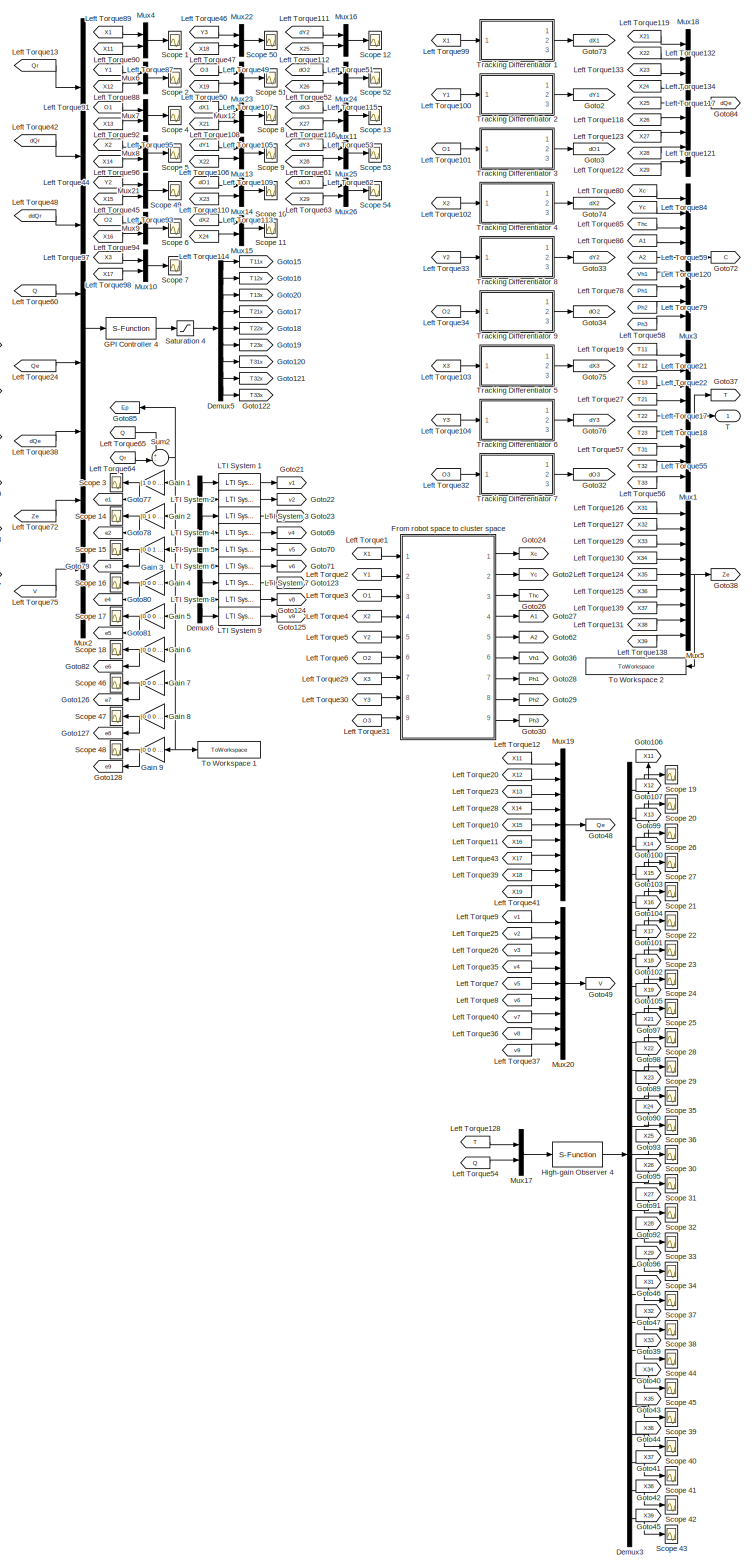
[diagram: Robot Space Controller - part 1/2, center side, full height]
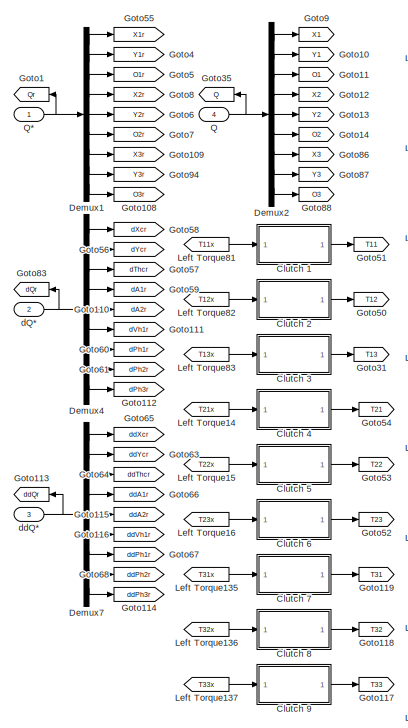
[diagram: Robot Space Controller - part 2/2, top left region]
BLOCK [SubSystem] Robot Space Controller
  Ports = [4, 1]
  RequestExecContextInheritance = off
  SID = 625
BLOCK [SubSystem] Robot Space Controller/Clutch 1
  Ports = [1, 1]
  RequestExecContextInheritance = off
  SID = 3179
BLOCK [Constant] Robot Space Controller/Clutch 1/Constant1
  SID = 3181
  Value = 2
BLOCK [DigitalClock] Robot Space Controller/Clutch 1/Digital Clock
  SID = 3182
  SampleTime = Ts
BLOCK [Gain] Robot Space Controller/Clutch 1/Gain 1
  Gain = .5
  OutDataTypeStr = Inherit: Inherit via internal rule
  ParamDataTypeStr = Inherit: Inherit via internal rule
  SID = 3183
  SaturateOnIntegerOverflow = off
BLOCK [Inport] Robot Space Controller/Clutch 1/Input
  IconDisplay = Port number
  SID = 3180
BLOCK [Outport] Robot Space Controller/Clutch 1/Output
  IconDisplay = Port number
  SID = 3188
BLOCK [Product] Robot Space Controller/Clutch 1/Product
  InputSameDT = off
  OutDataTypeStr = Inherit: Inherit via internal rule
  Ports = [2, 1]
  RndMeth = Floor
  SID = 3184
  SaturateOnIntegerOverflow = off
BLOCK [Scope] Robot Space Controller/Clutch 1/Rear Wheel Angular Speed5
  Floating = off
  LimitDataPoints = off
  NumInputPorts = 1
  Ports = [1]
  SID = 3185
  SaveName = ScopeData5
  ShowLegends = off
  YMax = 2
  YMin = 0
  ZoomMode = xonly
BLOCK [Sin] Robot Space Controller/Clutch 1/Sine Wave1
  Bias = 1
  Frequency = (pi/ck)
  Phase = -pi/2
  Ports = [0, 1]
  SID = 3186
  SampleTime = Ts
BLOCK [Switch] Robot Space Controller/Clutch 1/Switch
  InputSameDT = off
  SID = 3187
  SaturateOnIntegerOverflow = off
  Threshold = ck
BLOCK [SubSystem] Robot Space Controller/Clutch 2
  Ports = [1, 1]
  RequestExecContextInheritance = off
  SID = 3189
BLOCK [Constant] Robot Space Controller/Clutch 2/Constant1
  SID = 3191
  Value = 2
BLOCK [DigitalClock] Robot Space Controller/Clutch 2/Digital Clock
  SID = 3192
  SampleTime = Ts
BLOCK [Gain] Robot Space Controller/Clutch 2/Gain 1
  Gain = .5
  OutDataTypeStr = Inherit: Inherit via internal rule
  ParamDataTypeStr = Inherit: Inherit via internal rule
  SID = 3193
  SaturateOnIntegerOverflow = off
BLOCK [Inport] Robot Space Controller/Clutch 2/Input
  IconDisplay = Port number
  SID = 3190
BLOCK [Outport] Robot Space Controller/Clutch 2/Output
  IconDisplay = Port number
  SID = 3198
BLOCK [Product] Robot Space Controller/Clutch 2/Product
  InputSameDT = off
  OutDataTypeStr = Inherit: Inherit via internal rule
  Ports = [2, 1]
  RndMeth = Floor
  SID = 3194
  SaturateOnIntegerOverflow = off
BLOCK [Scope] Robot Space Controller/Clutch 2/Rear Wheel Angular Speed5
  Floating = off
  LimitDataPoints = off
  NumInputPorts = 1
  Ports = [1]
  SID = 3195
  SaveName = ScopeData5
  ShowLegends = off
  YMax = 2
  YMin = 0
  ZoomMode = xonly
BLOCK [Sin] Robot Space Controller/Clutch 2/Sine Wave1
  Bias = 1
  Frequency = (pi/ck)
  Phase = -pi/2
  Ports = [0, 1]
  SID = 3196
  SampleTime = Ts
BLOCK [Switch] Robot Space Controller/Clutch 2/Switch
  InputSameDT = off
  SID = 3197
  SaturateOnIntegerOverflow = off
  Threshold = ck
BLOCK [SubSystem] Robot Space Controller/Clutch 3
  Ports = [1, 1]
  RequestExecContextInheritance = off
  SID = 3199
BLOCK [Constant] Robot Space Controller/Clutch 3/Constant1
  SID = 3201
  Value = 2
BLOCK [DigitalClock] Robot Space Controller/Clutch 3/Digital Clock
  SID = 3202
  SampleTime = Ts
BLOCK [Gain] Robot Space Controller/Clutch 3/Gain 1
  Gain = .5
  OutDataTypeStr = Inherit: Inherit via internal rule
  ParamDataTypeStr = Inherit: Inherit via internal rule
  SID = 3203
  SaturateOnIntegerOverflow = off
BLOCK [Inport] Robot Space Controller/Clutch 3/Input
  IconDisplay = Port number
  SID = 3200
BLOCK [Outport] Robot Space Controller/Clutch 3/Output
  IconDisplay = Port number
  SID = 3208
BLOCK [Product] Robot Space Controller/Clutch 3/Product
  InputSameDT = off
  OutDataTypeStr = Inherit: Inherit via internal rule
  Ports = [2, 1]
  RndMeth = Floor
  SID = 3204
  SaturateOnIntegerOverflow = off
BLOCK [Scope] Robot Space Controller/Clutch 3/Rear Wheel Angular Speed5
  Floating = off
  LimitDataPoints = off
  NumInputPorts = 1
  Ports = [1]
  SID = 3205
  SaveName = ScopeData5
  ShowLegends = off
  YMax = 2
  YMin = 0
  ZoomMode = xonly
BLOCK [Sin] Robot Space Controller/Clutch 3/Sine Wave1
  Bias = 1
  Frequency = (pi/ck)
  Phase = -pi/2
  Ports = [0, 1]
  SID = 3206
  SampleTime = Ts
BLOCK [Switch] Robot Space Controller/Clutch 3/Switch
  InputSameDT = off
  SID = 3207
  SaturateOnIntegerOverflow = off
  Threshold = ck
BLOCK [SubSystem] Robot Space Controller/Clutch 4
  Ports = [1, 1]
  RequestExecContextInheritance = off
  SID = 3209
BLOCK [Constant] Robot Space Controller/Clutch 4/Constant1
  SID = 3211
  Value = 2
BLOCK [DigitalClock] Robot Space Controller/Clutch 4/Digital Clock
  SID = 3212
  SampleTime = Ts
BLOCK [Gain] Robot Space Controller/Clutch 4/Gain 1
  Gain = .5
  OutDataTypeStr = Inherit: Inherit via internal rule
  ParamDataTypeStr = Inherit: Inherit via internal rule
  SID = 3213
  SaturateOnIntegerOverflow = off
BLOCK [Inport] Robot Space Controller/Clutch 4/Input
  IconDisplay = Port number
  SID = 3210
BLOCK [Outport] Robot Space Controller/Clutch 4/Output
  IconDisplay = Port number
  SID = 3218
BLOCK [Product] Robot Space Controller/Clutch 4/Product
  InputSameDT = off
  OutDataTypeStr = Inherit: Inherit via internal rule
  Ports = [2, 1]
  RndMeth = Floor
  SID = 3214
  SaturateOnIntegerOverflow = off
BLOCK [Scope] Robot Space Controller/Clutch 4/Rear Wheel Angular Speed5
  Floating = off
  LimitDataPoints = off
  NumInputPorts = 1
  Ports = [1]
  SID = 3215
  SaveName = ScopeData5
  ShowLegends = off
  YMax = 2
  YMin = 0
  ZoomMode = xonly
BLOCK [Sin] Robot Space Controller/Clutch 4/Sine Wave1
  Bias = 1
  Frequency = (pi/ck)
  Phase = -pi/2
  Ports = [0, 1]
  SID = 3216
  SampleTime = Ts
BLOCK [Switch] Robot Space Controller/Clutch 4/Switch
  InputSameDT = off
  SID = 3217
  SaturateOnIntegerOverflow = off
  Threshold = ck
BLOCK [SubSystem] Robot Space Controller/Clutch 5
  Ports = [1, 1]
  RequestExecContextInheritance = off
  SID = 3219
BLOCK [Constant] Robot Space Controller/Clutch 5/Constant1
  SID = 3221
  Value = 2
BLOCK [DigitalClock] Robot Space Controller/Clutch 5/Digital Clock
  SID = 3222
  SampleTime = Ts
BLOCK [Gain] Robot Space Controller/Clutch 5/Gain 1
  Gain = .5
  OutDataTypeStr = Inherit: Inherit via internal rule
  ParamDataTypeStr = Inherit: Inherit via internal rule
  SID = 3223
  SaturateOnIntegerOverflow = off
BLOCK [Inport] Robot Space Controller/Clutch 5/Input
  IconDisplay = Port number
  SID = 3220
BLOCK [Outport] Robot Space Controller/Clutch 5/Output
  IconDisplay = Port number
  SID = 3228
BLOCK [Product] Robot Space Controller/Clutch 5/Product
  InputSameDT = off
  OutDataTypeStr = Inherit: Inherit via internal rule
  Ports = [2, 1]
  RndMeth = Floor
  SID = 3224
  SaturateOnIntegerOverflow = off
BLOCK [Scope] Robot Space Controller/Clutch 5/Rear Wheel Angular Speed5
  Floating = off
  LimitDataPoints = off
  NumInputPorts = 1
  Ports = [1]
  SID = 3225
  SaveName = ScopeData5
  ShowLegends = off
  YMax = 2
  YMin = 0
  ZoomMode = xonly
BLOCK [Sin] Robot Space Controller/Clutch 5/Sine Wave1
  Bias = 1
  Frequency = (pi/ck)
  Phase = -pi/2
  Ports = [0, 1]
  SID = 3226
  SampleTime = Ts
BLOCK [Switch] Robot Space Controller/Clutch 5/Switch
  InputSameDT = off
  SID = 3227
  SaturateOnIntegerOverflow = off
  Threshold = ck
BLOCK [SubSystem] Robot Space Controller/Clutch 6
  Ports = [1, 1]
  RequestExecContextInheritance = off
  SID = 3229
BLOCK [Constant] Robot Space Controller/Clutch 6/Constant1
  SID = 3231
  Value = 2
BLOCK [DigitalClock] Robot Space Controller/Clutch 6/Digital Clock
  SID = 3232
  SampleTime = Ts
BLOCK [Gain] Robot Space Controller/Clutch 6/Gain 1
  Gain = .5
  OutDataTypeStr = Inherit: Inherit via internal rule
  ParamDataTypeStr = Inherit: Inherit via internal rule
  SID = 3233
  SaturateOnIntegerOverflow = off
BLOCK [Inport] Robot Space Controller/Clutch 6/Input
  IconDisplay = Port number
  SID = 3230
BLOCK [Outport] Robot Space Controller/Clutch 6/Output
  IconDisplay = Port number
  SID = 3238
BLOCK [Product] Robot Space Controller/Clutch 6/Product
  InputSameDT = off
  OutDataTypeStr = Inherit: Inherit via internal rule
  Ports = [2, 1]
  RndMeth = Floor
  SID = 3234
  SaturateOnIntegerOverflow = off
BLOCK [Scope] Robot Space Controller/Clutch 6/Rear Wheel Angular Speed5
  Floating = off
  LimitDataPoints = off
  NumInputPorts = 1
  Ports = [1]
  SID = 3235
  SaveName = ScopeData5
  ShowLegends = off
  YMax = 2
  YMin = 0
  ZoomMode = xonly
BLOCK [Sin] Robot Space Controller/Clutch 6/Sine Wave1
  Bias = 1
  Frequency = (pi/ck)
  Phase = -pi/2
  Ports = [0, 1]
  SID = 3236
  SampleTime = Ts
BLOCK [Switch] Robot Space Controller/Clutch 6/Switch
  InputSameDT = off
  SID = 3237
  SaturateOnIntegerOverflow = off
  Threshold = ck
BLOCK [SubSystem] Robot Space Controller/Clutch 7
  Ports = [1, 1]
  RequestExecContextInheritance = off
  SID = 3239
BLOCK [Constant] Robot Space Controller/Clutch 7/Constant1
  SID = 3241
  Value = 2
BLOCK [DigitalClock] Robot Space Controller/Clutch 7/Digital Clock
  SID = 3242
  SampleTime = Ts
BLOCK [Gain] Robot Space Controller/Clutch 7/Gain 1
  Gain = .5
  OutDataTypeStr = Inherit: Inherit via internal rule
  ParamDataTypeStr = Inherit: Inherit via internal rule
  SID = 3243
  SaturateOnIntegerOverflow = off
BLOCK [Inport] Robot Space Controller/Clutch 7/Input
  IconDisplay = Port number
  SID = 3240
BLOCK [Outport] Robot Space Controller/Clutch 7/Output
  IconDisplay = Port number
  SID = 3248
BLOCK [Product] Robot Space Controller/Clutch 7/Product
  InputSameDT = off
  OutDataTypeStr = Inherit: Inherit via internal rule
  Ports = [2, 1]
  RndMeth = Floor
  SID = 3244
  SaturateOnIntegerOverflow = off
BLOCK [Scope] Robot Space Controller/Clutch 7/Rear Wheel Angular Speed5
  Floating = off
  LimitDataPoints = off
  NumInputPorts = 1
  Ports = [1]
  SID = 3245
  SaveName = ScopeData5
  ShowLegends = off
  YMax = 2
  YMin = 0
  ZoomMode = xonly
BLOCK [Sin] Robot Space Controller/Clutch 7/Sine Wave1
  Bias = 1
  Frequency = (pi/ck)
  Phase = -pi/2
  Ports = [0, 1]
  SID = 3246
  SampleTime = Ts
BLOCK [Switch] Robot Space Controller/Clutch 7/Switch
  InputSameDT = off
  SID = 3247
  SaturateOnIntegerOverflow = off
  Threshold = ck
BLOCK [SubSystem] Robot Space Controller/Clutch 8
  Ports = [1, 1]
  RequestExecContextInheritance = off
  SID = 3249
BLOCK [Constant] Robot Space Controller/Clutch 8/Constant1
  SID = 3251
  Value = 2
BLOCK [DigitalClock] Robot Space Controller/Clutch 8/Digital Clock
  SID = 3252
  SampleTime = Ts
BLOCK [Gain] Robot Space Controller/Clutch 8/Gain 1
  Gain = .5
  OutDataTypeStr = Inherit: Inherit via internal rule
  ParamDataTypeStr = Inherit: Inherit via internal rule
  SID = 3253
  SaturateOnIntegerOverflow = off
BLOCK [Inport] Robot Space Controller/Clutch 8/Input
  IconDisplay = Port number
  SID = 3250
BLOCK [Outport] Robot Space Controller/Clutch 8/Output
  IconDisplay = Port number
  SID = 3258
BLOCK [Product] Robot Space Controller/Clutch 8/Product
  InputSameDT = off
  OutDataTypeStr = Inherit: Inherit via internal rule
  Ports = [2, 1]
  RndMeth = Floor
  SID = 3254
  SaturateOnIntegerOverflow = off
BLOCK [Scope] Robot Space Controller/Clutch 8/Rear Wheel Angular Speed5
  Floating = off
  LimitDataPoints = off
  NumInputPorts = 1
  Ports = [1]
  SID = 3255
  SaveName = ScopeData5
  ShowLegends = off
  YMax = 2
  YMin = 0
  ZoomMode = xonly
BLOCK [Sin] Robot Space Controller/Clutch 8/Sine Wave1
  Bias = 1
  Frequency = (pi/ck)
  Phase = -pi/2
  Ports = [0, 1]
  SID = 3256
  SampleTime = Ts
BLOCK [Switch] Robot Space Controller/Clutch 8/Switch
  InputSameDT = off
  SID = 3257
  SaturateOnIntegerOverflow = off
  Threshold = ck
BLOCK [SubSystem] Robot Space Controller/Clutch 9
  Ports = [1, 1]
  RequestExecContextInheritance = off
  SID = 3259
BLOCK [Constant] Robot Space Controller/Clutch 9/Constant1
  SID = 3261
  Value = 2
BLOCK [DigitalClock] Robot Space Controller/Clutch 9/Digital Clock
  SID = 3262
  SampleTime = Ts
BLOCK [Gain] Robot Space Controller/Clutch 9/Gain 1
  Gain = .5
  OutDataTypeStr = Inherit: Inherit via internal rule
  ParamDataTypeStr = Inherit: Inherit via internal rule
  SID = 3263
  SaturateOnIntegerOverflow = off
BLOCK [Inport] Robot Space Controller/Clutch 9/Input
  IconDisplay = Port number
  SID = 3260
BLOCK [Outport] Robot Space Controller/Clutch 9/Output
  IconDisplay = Port number
  SID = 3268
BLOCK [Product] Robot Space Controller/Clutch 9/Product
  InputSameDT = off
  OutDataTypeStr = Inherit: Inherit via internal rule
  Ports = [2, 1]
  RndMeth = Floor
  SID = 3264
  SaturateOnIntegerOverflow = off
BLOCK [Scope] Robot Space Controller/Clutch 9/Rear Wheel Angular Speed5
  Floating = off
  LimitDataPoints = off
  NumInputPorts = 1
  Ports = [1]
  SID = 3265
  SaveName = ScopeData5
  ShowLegends = off
  YMax = 2
  YMin = 0
  ZoomMode = xonly
BLOCK [Sin] Robot Space Controller/Clutch 9/Sine Wave1
  Bias = 1
  Frequency = (pi/ck)
  Phase = -pi/2
  Ports = [0, 1]
  SID = 3266
  SampleTime = Ts
BLOCK [Switch] Robot Space Controller/Clutch 9/Switch
  InputSameDT = off
  SID = 3267
  SaturateOnIntegerOverflow = off
  Threshold = ck
BLOCK [Demux] Robot Space Controller/Demux1
  DisplayOption = bar
  Outputs = 9
  Ports = [1, 9]
  SID = 1014
BLOCK [Demux] Robot Space Controller/Demux2
  DisplayOption = bar
  Outputs = 9
  Ports = [1, 9]
  SID = 645
BLOCK [Demux] Robot Space Controller/Demux3
  DisplayOption = bar
  Outputs = 27
  Ports = [1, 27]
  SID = 1835
BLOCK [Demux] Robot Space Controller/Demux4
  DisplayOption = bar
  Outputs = 9
  Ports = [1, 9]
  SID = 1021
BLOCK [Demux] Robot Space Controller/Demux5
  DisplayOption = bar
  Outputs = 9
  Ports = [1, 9]
  SID = 685
BLOCK [Demux] Robot Space Controller/Demux6
  DisplayOption = bar
  Outputs = 9
  Ports = [1, 9]
  SID = 721
BLOCK [Demux] Robot Space Controller/Demux7
  DisplayOption = bar
  Outputs = 9
  Ports = [1, 9]
  SID = 1028
BLOCK [SubSystem] Robot Space Controller/From robot space to cluster space
  Commented = on
  Ports = [9, 9]
  RequestExecContextInheritance = off
  SID = 2790
BLOCK [Outport] Robot Space Controller/From robot space to cluster space/A_1
  IconDisplay = Port number
  Port = 4
  SID = 2882
BLOCK [Outport] Robot Space Controller/From robot space to cluster space/A_2
  IconDisplay = Port number
  Port = 5
  SID = 2883
BLOCK [Fcn] Robot Space Controller/From robot space to cluster space/Fcn 1
  Expr = (u(1)+u(2)+u(3))/3
  SID = 2800
BLOCK [Fcn] Robot Space Controller/From robot space to cluster space/Fcn 10
  Expr = u(1)+u(2)
  SID = 2801
BLOCK [Fcn] Robot Space Controller/From robot space to cluster space/Fcn 2
  Expr = (u(1)+u(2)+u(3))/3
  SID = 2802
BLOCK [Fcn] Robot Space Controller/From robot space to cluster space/Fcn 3
  Expr = u(1)-u(2)
  SID = 2803
BLOCK [Fcn] Robot Space Controller/From robot space to cluster space/Fcn 4
  Expr = u(1)-u(2)
  SID = 2804
BLOCK [Fcn] Robot Space Controller/From robot space to cluster space/Fcn 5
  Expr = sqrt((u(1)-u(2))^2 + (u(3)-u(4))^2)
  SID = 2805
BLOCK [Fcn] Robot Space Controller/From robot space to cluster space/Fcn 6
  Expr = u(1)+u(2)
  SID = 2806
BLOCK [Fcn] Robot Space Controller/From robot space to cluster space/Fcn 7
  Expr = u(1)+u(2)
  SID = 2807
BLOCK [Fcn] Robot Space Controller/From robot space to cluster space/Fcn 8
  Expr = sqrt((u(1)-u(2))^2 + (u(3)-u(4))^2)
  SID = 2896
BLOCK [Fcn] Robot Space Controller/From robot space to cluster space/Fcn 9
  Expr = acos((u(5)^2 + u(6)^2 - (u(2) - u(1))^2 - (u(4) - u(3))^2)/(2*u(5)*u(6)))
  SID = 2897
BLOCK [Goto] Robot Space Controller/From robot space to cluster space/Goto1
  GotoTag = Xc
  SID = 2809
BLOCK [Goto] Robot Space Controller/From robot space to cluster space/Goto10
  GotoTag = Y3
  SID = 2810
BLOCK [Goto] Robot Space Controller/From robot space to cluster space/Goto11
  GotoTag = Th3
  SID = 2811
BLOCK [Goto] Robot Space Controller/From robot space to cluster space/Goto12
  GotoTag = A2
  SID = 2812
BLOCK [Goto] Robot Space Controller/From robot space to cluster space/Goto13
  GotoTag = Vh1
  SID = 2898
BLOCK [Goto] Robot Space Controller/From robot space to cluster space/Goto14
  GotoTag = Ph3
  SID = 2813
BLOCK [Goto] Robot Space Controller/From robot space to cluster space/Goto17
  GotoTag = Th1
  SID = 2816
BLOCK [Goto] Robot Space Controller/From robot space to cluster space/Goto18
  GotoTag = X2
  SID = 2817
BLOCK [Goto] Robot Space Controller/From robot space to cluster space/Goto19
  GotoTag = Y2
  SID = 2818
BLOCK [Goto] Robot Space Controller/From robot space to cluster space/Goto2
  GotoTag = Y1
  SID = 2819
BLOCK [Goto] Robot Space Controller/From robot space to cluster space/Goto20
  GotoTag = X1
  SID = 2820
BLOCK [Goto] Robot Space Controller/From robot space to cluster space/Goto3
  GotoTag = Th2
  SID = 2821
BLOCK [Goto] Robot Space Controller/From robot space to cluster space/Goto4
  GotoTag = Yc
  SID = 2822
BLOCK [Goto] Robot Space Controller/From robot space to cluster space/Goto5
  GotoTag = Thc
  SID = 2823
BLOCK [Goto] Robot Space Controller/From robot space to cluster space/Goto6
  GotoTag = A1
  SID = 2824
BLOCK [Goto] Robot Space Controller/From robot space to cluster space/Goto7
  GotoTag = Ph1
  SID = 2825
BLOCK [Goto] Robot Space Controller/From robot space to cluster space/Goto8
  GotoTag = Ph2
  SID = 2826
BLOCK [Goto] Robot Space Controller/From robot space to cluster space/Goto9
  GotoTag = X3
  SID = 2827
BLOCK [MATLABFcn] Robot Space Controller/From robot space to cluster space/Interpreted MATLAB\nFunction 1
  MATLABFcn = Beta_Correction_4b(u)
  Ports = [1, 1]
  SID = 2828
  SampleTime = Ts
BLOCK [From] Robot Space Controller/From robot space to cluster space/Left Torque1
  GotoTag = X2
  SID = 2829
BLOCK [From] Robot Space Controller/From robot space to cluster space/Left Torque10
  GotoTag = X3
  SID = 2830
BLOCK [From] Robot Space Controller/From robot space to cluster space/Left Torque11
  GotoTag = X1
  SID = 2831
BLOCK [From] Robot Space Controller/From robot space to cluster space/Left Torque12
  GotoTag = Thc
  SID = 2832
BLOCK [From] Robot Space Controller/From robot space to cluster space/Left Torque13
  GotoTag = Th1
  SID = 2833
BLOCK [From] Robot Space Controller/From robot space to cluster space/Left Torque14
  GotoTag = Thc
  SID = 2834
BLOCK [From] Robot Space Controller/From robot space to cluster space/Left Torque15
  GotoTag = Th2
  SID = 2835
BLOCK [From] Robot Space Controller/From robot space to cluster space/Left Torque16
  GotoTag = X1
  SID = 2836
BLOCK [From] Robot Space Controller/From robot space to cluster space/Left Torque17
  GotoTag = Xc
  SID = 2837
BLOCK [From] Robot Space Controller/From robot space to cluster space/Left Torque18
  GotoTag = Yc
  SID = 2838
BLOCK [From] Robot Space Controller/From robot space to cluster space/Left Torque19
  GotoTag = Thc
  SID = 2839
BLOCK [From] Robot Space Controller/From robot space to cluster space/Left Torque2
  GotoTag = Y2
  SID = 2840
BLOCK [From] Robot Space Controller/From robot space to cluster space/Left Torque20
  GotoTag = A1
  SID = 2841
BLOCK [From] Robot Space Controller/From robot space to cluster space/Left Torque21
  GotoTag = A2
  SID = 2842
BLOCK [From] Robot Space Controller/From robot space to cluster space/Left Torque22
  GotoTag = Vh1
  SID = 2843
BLOCK [From] Robot Space Controller/From robot space to cluster space/Left Torque23
  GotoTag = Ph1
  SID = 2844
BLOCK [From] Robot Space Controller/From robot space to cluster space/Left Torque24
  GotoTag = Ph2
  SID = 2845
BLOCK [From] Robot Space Controller/From robot space to cluster space/Left Torque25
  GotoTag = Ph3
  SID = 2846
BLOCK [From] Robot Space Controller/From robot space to cluster space/Left Torque26
  GotoTag = X3
  SID = 2847
BLOCK [From] Robot Space Controller/From robot space to cluster space/Left Torque27
  GotoTag = Y3
  SID = 2848
BLOCK [From] Robot Space Controller/From robot space to cluster space/Left Torque28
  GotoTag = Y2
  SID = 2892
BLOCK [From] Robot Space Controller/From robot space to cluster space/Left Torque29
  GotoTag = Y1
  SID = 2893
BLOCK [From] Robot Space Controller/From robot space to cluster space/Left Torque3
  GotoTag = Y1
  SID = 2850
BLOCK [From] Robot Space Controller/From robot space to cluster space/Left Torque30
  GotoTag = Y3
  SID = 2894
BLOCK [From] Robot Space Controller/From robot space to cluster space/Left Torque31
  GotoTag = Y1
  SID = 2895
BLOCK [From] Robot Space Controller/From robot space to cluster space/Left Torque32
  GotoTag = X3
  SID = 2899
BLOCK [From] Robot Space Controller/From robot space to cluster space/Left Torque33
  GotoTag = X2
  SID = 2900
BLOCK [From] Robot Space Controller/From robot space to cluster space/Left Torque34
  GotoTag = Y3
  SID = 2901
BLOCK [From] Robot Space Controller/From robot space to cluster space/Left Torque35
  GotoTag = Y2
  SID = 2902
BLOCK [From] Robot Space Controller/From robot space to cluster space/Left Torque36
  GotoTag = A1
  SID = 2904
BLOCK [From] Robot Space Controller/From robot space to cluster space/Left Torque37
  GotoTag = A2
  SID = 2905
BLOCK [From] Robot Space Controller/From robot space to cluster space/Left Torque38
  GotoTag = Thc
  SID = 2851
BLOCK [From] Robot Space Controller/From robot space to cluster space/Left Torque39
  GotoTag = Th3
  SID = 2852
BLOCK [From] Robot Space Controller/From robot space to cluster space/Left Torque4
  GotoTag = Xc
  SID = 2853
BLOCK [From] Robot Space Controller/From robot space to cluster space/Left Torque5
  GotoTag = X1
  SID = 2854
BLOCK [From] Robot Space Controller/From robot space to cluster space/Left Torque6
  GotoTag = Yc
  SID = 2855
BLOCK [From] Robot Space Controller/From robot space to cluster space/Left Torque7
  GotoTag = Y1
  SID = 2856
BLOCK [From] Robot Space Controller/From robot space to cluster space/Left Torque8
  GotoTag = X2
  SID = 2857
BLOCK [From] Robot Space Controller/From robot space to cluster space/Left Torque9
  GotoTag = X1
  SID = 2858
BLOCK [Mux] Robot Space Controller/From robot space to cluster space/Mux
  DisplayOption = bar
  Inputs = 3
  Ports = [3, 1]
  SID = 2859
BLOCK [Mux] Robot Space Controller/From robot space to cluster space/Mux1
  DisplayOption = bar
  Inputs = 3
  Ports = [3, 1]
  SID = 2860
BLOCK [Mux] Robot Space Controller/From robot space to cluster space/Mux2
  DisplayOption = bar
  Inputs = 2
  Ports = [2, 1]
  SID = 2861
BLOCK [Mux] Robot Space Controller/From robot space to cluster space/Mux3
  DisplayOption = bar
  Inputs = 2
  Ports = [2, 1]
  SID = 2862
BLOCK [Mux] Robot Space Controller/From robot space to cluster space/Mux4
  DisplayOption = bar
  Ports = [4, 1]
  SID = 2863
BLOCK [Mux] Robot Space Controller/From robot space to cluster space/Mux5
  DisplayOption = bar
  Inputs = 2
  Ports = [2, 1]
  SID = 2864
BLOCK [Mux] Robot Space Controller/From robot space to cluster space/Mux6
  DisplayOption = bar
  Inputs = 2
  Ports = [2, 1]
  SID = 2865
BLOCK [Mux] Robot Space Controller/From robot space to cluster space/Mux7
  DisplayOption = bar
  Ports = [4, 1]
  SID = 2866
BLOCK [Mux] Robot Space Controller/From robot space to cluster space/Mux8
  DisplayOption = bar
  Inputs = 6
  Ports = [6, 1]
  SID = 2903
BLOCK [Mux] Robot Space Controller/From robot space to cluster space/Mux9
  DisplayOption = bar
  Inputs = 2
  Ports = [2, 1]
  SID = 2867
BLOCK [Outport] Robot Space Controller/From robot space to cluster space/Ph_1
  IconDisplay = Port number
  Port = 7
  SID = 2885
BLOCK [Outport] Robot Space Controller/From robot space to cluster space/Ph_2
  IconDisplay = Port number
  Port = 8
  SID = 2886
BLOCK [Outport] Robot Space Controller/From robot space to cluster space/Ph_3
  IconDisplay = Port number
  Port = 9
  SID = 2887
BLOCK [Scope] Robot Space Controller/From robot space to cluster space/Right Angular Velocity1
  Floating = off
  LimitDataPoints = off
  NumInputPorts = 1
  Ports = [1]
  SID = 2868
  SaveName = ScopeData38
  ShowLegends = off
  YMax = 2600
  YMin = 2400
  ZoomMode = xonly
BLOCK [Scope] Robot Space Controller/From robot space to cluster space/Right Angular Velocity2
  Floating = off
  LimitDataPoints = off
  NumInputPorts = 1
  Ports = [1]
  SID = 2870
  SaveName = ScopeData36
  ShowLegends = off
  YMax = 2600
  YMin = 2400
  ZoomMode = xonly
BLOCK [Scope] Robot Space Controller/From robot space to cluster space/Right Angular Velocity3
  Floating = off
  LimitDataPoints = off
  NumInputPorts = 1
  Ports = [1]
  SID = 2871
  SaveName = ScopeData48
  ShowLegends = off
  YMax = 20
  YMin = -20
  ZoomMode = xonly
BLOCK [Scope] Robot Space Controller/From robot space to cluster space/Right Angular Velocity4
  Floating = off
  LimitDataPoints = off
  NumInputPorts = 1
  Ports = [1]
  SID = 2872
  SaveName = ScopeData49
  ShowLegends = off
  YMax = 1000
  YMin = 0
  ZoomMode = xonly
BLOCK [Scope] Robot Space Controller/From robot space to cluster space/Right Angular Velocity5
  Floating = off
  LimitDataPoints = off
  NumInputPorts = 1
  Ports = [1]
  SID = 2873
  SaveName = ScopeData50
  ShowLegends = off
  YMax = 1000
  YMin = 0
  ZoomMode = xonly
BLOCK [Scope] Robot Space Controller/From robot space to cluster space/Right Angular Velocity6
  Floating = off
  LimitDataPoints = off
  NumInputPorts = 1
  Ports = [1]
  SID = 2874
  SaveName = ScopeData51
  ShowLegends = off
  ZoomMode = yonly
BLOCK [Scope] Robot Space Controller/From robot space to cluster space/Right Angular Velocity7
  Floating = off
  LimitDataPoints = off
  NumInputPorts = 1
  Ports = [1]
  SID = 2875
  SaveName = ScopeData87
  ShowLegends = off
  YMax = 20
  YMin = -20
  ZoomMode = xonly
BLOCK [Scope] Robot Space Controller/From robot space to cluster space/Right Angular Velocity8
  Floating = off
  LimitDataPoints = off
  NumInputPorts = 1
  Ports = [1]
  SID = 2876
  SaveName = ScopeData88
  ShowLegends = off
  YMax = 20
  YMin = -20
  ZoomMode = xonly
BLOCK [Scope] Robot Space Controller/From robot space to cluster space/Right Angular Velocity9
  Floating = off
  LimitDataPoints = off
  NumInputPorts = 1
  Ports = [1]
  SID = 2877
  SaveName = ScopeData89
  ShowLegends = off
  YMax = 20
  YMin = -20
  ZoomMode = yonly
BLOCK [Inport] Robot Space Controller/From robot space to cluster space/Th_1
  IconDisplay = Port number
  Port = 3
  SID = 2793
BLOCK [Inport] Robot Space Controller/From robot space to cluster space/Th_2
  IconDisplay = Port number
  Port = 6
  SID = 2796
BLOCK [Inport] Robot Space Controller/From robot space to cluster space/Th_3
  IconDisplay = Port number
  Port = 9
  SID = 2799
BLOCK [Outport] Robot Space Controller/From robot space to cluster space/Th_c
  IconDisplay = Port number
  Port = 3
  SID = 2881
BLOCK [Trigonometry] Robot Space Controller/From robot space to cluster space/Trigonometric\nFunction 3
  Operator = atan2
  Ports = [2, 1]
  SID = 2878
BLOCK [Outport] Robot Space Controller/From robot space to cluster space/Vh_1
  IconDisplay = Port number
  Port = 6
  SID = 2884
BLOCK [Inport] Robot Space Controller/From robot space to cluster space/X_1
  IconDisplay = Port number
  SID = 2791
BLOCK [Inport] Robot Space Controller/From robot space to cluster space/X_2
  IconDisplay = Port number
  Port = 4
  SID = 2794
BLOCK [Inport] Robot Space Controller/From robot space to cluster space/X_3
  IconDisplay = Port number
  Port = 7
  SID = 2797
BLOCK [Outport] Robot Space Controller/From robot space to cluster space/X_c
  IconDisplay = Port number
  SID = 2879
BLOCK [Inport] Robot Space Controller/From robot space to cluster space/Y_1
  IconDisplay = Port number
  Port = 2
  SID = 2792
BLOCK [Inport] Robot Space Controller/From robot space to cluster space/Y_2
  IconDisplay = Port number
  Port = 5
  SID = 2795
BLOCK [Inport] Robot Space Controller/From robot space to cluster space/Y_3
  IconDisplay = Port number
  Port = 8
  SID = 2798
BLOCK [Outport] Robot Space Controller/From robot space to cluster space/Y_c
  IconDisplay = Port number
  Port = 2
  SID = 2880
BLOCK [S-Function] Robot Space Controller/GPI Controller 4
  EnableBusSupport = off
  FunctionName = adrc_4
  Parameters = par
  Ports = [1, 1]
  SID = 659
BLOCK [Gain] Robot Space Controller/Gain 1
  Gain = [1 0 0 0 0 0 0 0 0]
  Multiplication = Matrix(K*u)
  OutDataTypeStr = Inherit: Inherit via internal rule
  ParamDataTypeStr = Inherit: Inherit via internal rule
  SID = 1516
  SaturateOnIntegerOverflow = off
BLOCK [Gain] Robot Space Controller/Gain 2
  Gain = [0 1 0 0 0 0 0 0 0]
  Multiplication = Matrix(K*u)
  OutDataTypeStr = Inherit: Inherit via internal rule
  ParamDataTypeStr = Inherit: Inherit via internal rule
  SID = 1517
  SaturateOnIntegerOverflow = off
BLOCK [Gain] Robot Space Controller/Gain 3
  Gain = [0 0 1 0 0 0 0 0 0]
  Multiplication = Matrix(K*u)
  OutDataTypeStr = Inherit: Inherit via internal rule
  ParamDataTypeStr = Inherit: Inherit via internal rule
  SID = 1519
  SaturateOnIntegerOverflow = off
BLOCK [Gain] Robot Space Controller/Gain 4
  Gain = [0 0 0 1 0 0 0 0 0]
  Multiplication = Matrix(K*u)
  OutDataTypeStr = Inherit: Inherit via internal rule
  ParamDataTypeStr = Inherit: Inherit via internal rule
  SID = 1521
  SaturateOnIntegerOverflow = off
BLOCK [Gain] Robot Space Controller/Gain 5
  Gain = [0 0 0 0 1 0 0 0 0]
  Multiplication = Matrix(K*u)
  OutDataTypeStr = Inherit: Inherit via internal rule
  ParamDataTypeStr = Inherit: Inherit via internal rule
  SID = 1523
  SaturateOnIntegerOverflow = off
BLOCK [Gain] Robot Space Controller/Gain 6
  Gain = [0 0 0 0 0 1 0 0 0]
  Multiplication = Matrix(K*u)
  OutDataTypeStr = Inherit: Inherit via internal rule
  ParamDataTypeStr = Inherit: Inherit via internal rule
  SID = 1525
  SaturateOnIntegerOverflow = off
BLOCK [Gain] Robot Space Controller/Gain 7
  Gain = [0 0 0 0 0 0 1 0 0]
  Multiplication = Matrix(K*u)
  OutDataTypeStr = Inherit: Inherit via internal rule
  ParamDataTypeStr = Inherit: Inherit via internal rule
  SID = 3143
  SaturateOnIntegerOverflow = off
BLOCK [Gain] Robot Space Controller/Gain 8
  Gain = [0 0 0 0 0 0 0 1 0]
  Multiplication = Matrix(K*u)
  OutDataTypeStr = Inherit: Inherit via internal rule
  ParamDataTypeStr = Inherit: Inherit via internal rule
  SID = 3146
  SaturateOnIntegerOverflow = off
BLOCK [Gain] Robot Space Controller/Gain 9
  Gain = [0 0 0 0 0 0 0 0 1]
  Multiplication = Matrix(K*u)
  OutDataTypeStr = Inherit: Inherit via internal rule
  ParamDataTypeStr = Inherit: Inherit via internal rule
  SID = 3149
  SaturateOnIntegerOverflow = off
BLOCK [Goto] Robot Space Controller/Goto1
  GotoTag = Qr
  SID = 634
BLOCK [Goto] Robot Space Controller/Goto10
  GotoTag = Y1
  SID = 647
BLOCK [Goto] Robot Space Controller/Goto100
  GotoTag = X14
  SID = 1937
BLOCK [Goto] Robot Space Controller/Goto101
  GotoTag = X17
  SID = 1938
BLOCK [Goto] Robot Space Controller/Goto102
  GotoTag = X18
  SID = 1939
BLOCK [Goto] Robot Space Controller/Goto103
  GotoTag = X15
  SID = 1940
BLOCK [Goto] Robot Space Controller/Goto104
  GotoTag = X16
  SID = 1941
BLOCK [Goto] Robot Space Controller/Goto105
  GotoTag = X19
  SID = 1942
BLOCK [Goto] Robot Space Controller/Goto106
  GotoTag = X11
  SID = 1943
BLOCK [Goto] Robot Space Controller/Goto107
  GotoTag = X12
  SID = 1944
BLOCK [Goto] Robot Space Controller/Goto108
  GotoTag = O3r
  SID = 3639
BLOCK [Goto] Robot Space Controller/Goto109
  GotoTag = X3r
  SID = 3640
BLOCK [Goto] Robot Space Controller/Goto11
  GotoTag = O1
  SID = 648
BLOCK [Goto] Robot Space Controller/Goto110
  GotoTag = dA2r
  SID = 2747
BLOCK [Goto] Robot Space Controller/Goto111
  GotoTag = dVh1r
  SID = 2748
BLOCK [Goto] Robot Space Controller/Goto112
  GotoTag = dPh3r
  SID = 2749
BLOCK [Goto] Robot Space Controller/Goto113
  GotoTag = ddQr
  SID = 2750
BLOCK [Goto] Robot Space Controller/Goto114
  GotoTag = ddPh3r
  SID = 2751
BLOCK [Goto] Robot Space Controller/Goto115
  GotoTag = ddA2r
  SID = 2752
BLOCK [Goto] Robot Space Controller/Goto116
  GotoTag = ddVh1r
  SID = 2753
BLOCK [Goto] Robot Space Controller/Goto117
  GotoTag = T33
  SID = 2784
BLOCK [Goto] Robot Space Controller/Goto118
  GotoTag = T32
  SID = 2785
BLOCK [Goto] Robot Space Controller/Goto119
  GotoTag = T31
  SID = 2786
BLOCK [Goto] Robot Space Controller/Goto12
  GotoTag = X2
  SID = 649
BLOCK [Goto] Robot Space Controller/Goto120
  GotoTag = T31x
  SID = 3134
BLOCK [Goto] Robot Space Controller/Goto121
  GotoTag = T32x
  SID = 3135
BLOCK [Goto] Robot Space Controller/Goto122
  GotoTag = T33x
  SID = 3136
BLOCK [Goto] Robot Space Controller/Goto123
  GotoTag = v7
  SID = 3137
BLOCK [Goto] Robot Space Controller/Goto124
  GotoTag = v8
  SID = 3139
BLOCK [Goto] Robot Space Controller/Goto125
  GotoTag = v9
  SID = 3141
BLOCK [Goto] Robot Space Controller/Goto126
  GotoTag = e7
  SID = 3144
BLOCK [Goto] Robot Space Controller/Goto127
  GotoTag = e8
  SID = 3147
BLOCK [Goto] Robot Space Controller/Goto128
  GotoTag = e9
  SID = 3150
BLOCK [Goto] Robot Space Controller/Goto13
  GotoTag = Y2
  SID = 650
BLOCK [Goto] Robot Space Controller/Goto14
  GotoTag = O2
  SID = 651
BLOCK [Goto] Robot Space Controller/Goto15
  GotoTag = T11x
  SID = 686
BLOCK [Goto] Robot Space Controller/Goto16
  GotoTag = T12x
  SID = 687
BLOCK [Goto] Robot Space Controller/Goto17
  GotoTag = T21x
  SID = 691
BLOCK [Goto] Robot Space Controller/Goto18
  GotoTag = T22x
  SID = 692
BLOCK [Goto] Robot Space Controller/Goto19
  GotoTag = T23x
  SID = 693
BLOCK [Goto] Robot Space Controller/Goto2
  Commented = on
  GotoTag = dY1
  SID = 1480
BLOCK [Goto] Robot Space Controller/Goto20
  GotoTag = T13x
  SID = 688
BLOCK [Goto] Robot Space Controller/Goto21
  GotoTag = v1
  SID = 722
BLOCK [Goto] Robot Space Controller/Goto22
  GotoTag = v2
  SID = 723
BLOCK [Goto] Robot Space Controller/Goto23
  GotoTag = v3
  SID = 724
BLOCK [Goto] Robot Space Controller/Goto24
  Commented = on
  GotoTag = Xc
  SID = 359
BLOCK [Goto] Robot Space Controller/Goto25
  Commented = on
  GotoTag = Yc
  SID = 360
BLOCK [Goto] Robot Space Controller/Goto26
  Commented = on
  GotoTag = Thc
  SID = 361
BLOCK [Goto] Robot Space Controller/Goto27
  Commented = on
  GotoTag = A1
  SID = 362
BLOCK [Goto] Robot Space Controller/Goto28
  Commented = on
  GotoTag = Ph1
  SID = 363
BLOCK [Goto] Robot Space Controller/Goto29
  Commented = on
  GotoTag = Ph2
  SID = 364
BLOCK [Goto] Robot Space Controller/Goto3
  Commented = on
  GotoTag = dO1
  SID = 1481
BLOCK [Goto] Robot Space Controller/Goto30
  Commented = on
  GotoTag = Ph3
  SID = 2906
BLOCK [Goto] Robot Space Controller/Goto31
  GotoTag = T13
  SID = 725
BLOCK [Goto] Robot Space Controller/Goto32
  Commented = on
  GotoTag = dO3
  SID = 2907
BLOCK [Goto] Robot Space Controller/Goto33
  Commented = on
  GotoTag = dY2
  SID = 2960
BLOCK [Goto] Robot Space Controller/Goto34
  Commented = on
  GotoTag = dO2
  SID = 3013
BLOCK [Goto] Robot Space Controller/Goto35
  GotoTag = Q
  SID = 3066
BLOCK [Goto] Robot Space Controller/Goto36
  Commented = on
  GotoTag = Vh1
  SID = 365
BLOCK [Goto] Robot Space Controller/Goto37
  GotoTag = T
  SID = 3071
BLOCK [Goto] Robot Space Controller/Goto38
  GotoTag = Ze
  SID = 3082
BLOCK [Goto] Robot Space Controller/Goto39
  GotoTag = X33
  SID = 3094
BLOCK [Goto] Robot Space Controller/Goto4
  GotoTag = Y1r
  SID = 1015
BLOCK [Goto] Robot Space Controller/Goto40
  GotoTag = X34
  SID = 3095
BLOCK [Goto] Robot Space Controller/Goto41
  GotoTag = X37
  SID = 3096
BLOCK [Goto] Robot Space Controller/Goto42
  GotoTag = X38
  SID = 3097
BLOCK [Goto] Robot Space Controller/Goto43
  GotoTag = X35
  SID = 3098
BLOCK [Goto] Robot Space Controller/Goto44
  GotoTag = X36
  SID = 3099
BLOCK [Goto] Robot Space Controller/Goto45
  GotoTag = X39
  SID = 3100
BLOCK [Goto] Robot Space Controller/Goto46
  GotoTag = X31
  SID = 3101
BLOCK [Goto] Robot Space Controller/Goto47
  GotoTag = X32
  SID = 3102
BLOCK [Goto] Robot Space Controller/Goto48
  GotoTag = Qe
  SID = 3112
BLOCK [Goto] Robot Space Controller/Goto49
  GotoTag = V
  SID = 3123
BLOCK [Goto] Robot Space Controller/Goto5
  GotoTag = O1r
  SID = 1016
BLOCK [Goto] Robot Space Controller/Goto50
  GotoTag = T12
  SID = 726
BLOCK [Goto] Robot Space Controller/Goto51
  GotoTag = T11
  SID = 727
BLOCK [Goto] Robot Space Controller/Goto52
  GotoTag = T23
  SID = 762
BLOCK [Goto] Robot Space Controller/Goto53
  GotoTag = T22
  SID = 763
BLOCK [Goto] Robot Space Controller/Goto54
  GotoTag = T21
  SID = 764
BLOCK [Goto] Robot Space Controller/Goto55
  GotoTag = X1r
  SID = 1020
BLOCK [Goto] Robot Space Controller/Goto56
  GotoTag = dYcr
  SID = 1022
BLOCK [Goto] Robot Space Controller/Goto57
  GotoTag = dThcr
  SID = 1023
BLOCK [Goto] Robot Space Controller/Goto58
  GotoTag = dXcr
  SID = 1024
BLOCK [Goto] Robot Space Controller/Goto59
  GotoTag = dA1r
  SID = 1025
BLOCK [Goto] Robot Space Controller/Goto6
  GotoTag = Y2r
  SID = 3635
BLOCK [Goto] Robot Space Controller/Goto60
  GotoTag = dPh1r
  SID = 1026
BLOCK [Goto] Robot Space Controller/Goto61
  GotoTag = dPh2r
  SID = 1027
BLOCK [Goto] Robot Space Controller/Goto62
  Commented = on
  GotoTag = A2
  SID = 366
BLOCK [Goto] Robot Space Controller/Goto63
  GotoTag = ddYcr
  SID = 1029
BLOCK [Goto] Robot Space Controller/Goto64
  GotoTag = ddThcr
  SID = 1030
BLOCK [Goto] Robot Space Controller/Goto65
  GotoTag = ddXcr
  SID = 1031
BLOCK [Goto] Robot Space Controller/Goto66
  GotoTag = ddA1r
  SID = 1032
BLOCK [Goto] Robot Space Controller/Goto67
  GotoTag = ddPh1r
  SID = 1033
BLOCK [Goto] Robot Space Controller/Goto68
  GotoTag = ddPh2r
  SID = 1034
BLOCK [Goto] Robot Space Controller/Goto69
  GotoTag = v4
  SID = 1055
BLOCK [Goto] Robot Space Controller/Goto7
  GotoTag = O2r
  SID = 3636
BLOCK [Goto] Robot Space Controller/Goto70
  GotoTag = v5
  SID = 1056
BLOCK [Goto] Robot Space Controller/Goto71
  GotoTag = v6
  SID = 1057
BLOCK [Goto] Robot Space Controller/Goto72
  Commented = on
  GotoTag = C
  SID = 1089
BLOCK [Goto] Robot Space Controller/Goto73
  Commented = on
  GotoTag = dX1
  SID = 1482
BLOCK [Goto] Robot Space Controller/Goto74
  Commented = on
  GotoTag = dX2
  SID = 1483
BLOCK [Goto] Robot Space Controller/Goto75
  Commented = on
  GotoTag = dX3
  SID = 1484
BLOCK [Goto] Robot Space Controller/Goto76
  Commented = on
  GotoTag = dY3
  SID = 1485
BLOCK [Goto] Robot Space Controller/Goto77
  GotoTag = e1
  SID = 1533
BLOCK [Goto] Robot Space Controller/Goto78
  GotoTag = e2
  SID = 1534
BLOCK [Goto] Robot Space Controller/Goto79
  GotoTag = e3
  SID = 1535
BLOCK [Goto] Robot Space Controller/Goto8
  GotoTag = X2r
  SID = 3637
BLOCK [Goto] Robot Space Controller/Goto80
  GotoTag = e4
  SID = 1536
BLOCK [Goto] Robot Space Controller/Goto81
  GotoTag = e5
  SID = 1537
BLOCK [Goto] Robot Space Controller/Goto82
  GotoTag = e6
  SID = 1538
BLOCK [Goto] Robot Space Controller/Goto83
  GotoTag = dQr
  SID = 2227
BLOCK [Goto] Robot Space Controller/Goto84
  GotoTag = dQe
  SID = 2228
BLOCK [Goto] Robot Space Controller/Goto85
  GotoTag = Ep
  SID = 2241
BLOCK [Goto] Robot Space Controller/Goto86
  GotoTag = X3
  SID = 2741
BLOCK [Goto] Robot Space Controller/Goto87
  GotoTag = Y3
  SID = 2742
BLOCK [Goto] Robot Space Controller/Goto88
  GotoTag = O3
  SID = 2743
BLOCK [Goto] Robot Space Controller/Goto89
  GotoTag = X23
  SID = 1926
BLOCK [Goto] Robot Space Controller/Goto9
  GotoTag = X1
  SID = 646
BLOCK [Goto] Robot Space Controller/Goto90
  GotoTag = X24
  SID = 1927
BLOCK [Goto] Robot Space Controller/Goto91
  GotoTag = X27
  SID = 1928
BLOCK [Goto] Robot Space Controller/Goto92
  GotoTag = X28
  SID = 1929
BLOCK [Goto] Robot Space Controller/Goto93
  GotoTag = X25
  SID = 1930
BLOCK [Goto] Robot Space Controller/Goto94
  GotoTag = Y3r
  SID = 3638
BLOCK [Goto] Robot Space Controller/Goto95
  GotoTag = X26
  SID = 1932
BLOCK [Goto] Robot Space Controller/Goto96
  GotoTag = X29
  SID = 1933
BLOCK [Goto] Robot Space Controller/Goto97
  GotoTag = X21
  SID = 1934
BLOCK [Goto] Robot Space Controller/Goto98
  GotoTag = X22
  SID = 1935
BLOCK [Goto] Robot Space Controller/Goto99
  GotoTag = X13
  SID = 1936
BLOCK [S-Function] Robot Space Controller/High-gain Observer 4
  EnableBusSupport = off
  FunctionName = HGO_4
  Parameters = par
  Ports = [1, 1]
  SID = 1967
BLOCK [Reference] Robot Space Controller/LTI System 1  REF=cstblocks/LTI System
  IC = []
  Ports = [1, 1]
  SID = 1510
  SourceBlock = cstblocks/LTI System
  SourceType = LTI Block
  sys = par.Gz_1
BLOCK [Reference] Robot Space Controller/LTI System 2  REF=cstblocks/LTI System
  IC = []
  Ports = [1, 1]
  SID = 1511
  SourceBlock = cstblocks/LTI System
  SourceType = LTI Block
  sys = par.Gz_1
BLOCK [Reference] Robot Space Controller/LTI System 3  REF=cstblocks/LTI System
  IC = []
  Ports = [1, 1]
  SID = 1512
  SourceBlock = cstblocks/LTI System
  SourceType = LTI Block
  sys = par.Gz_2
BLOCK [Reference] Robot Space Controller/LTI System 4  REF=cstblocks/LTI System
  IC = []
  Ports = [1, 1]
  SID = 1513
  SourceBlock = cstblocks/LTI System
  SourceType = LTI Block
  sys = par.Gz_1
BLOCK [Reference] Robot Space Controller/LTI System 5  REF=cstblocks/LTI System
  IC = []
  Ports = [1, 1]
  SID = 1514
  SourceBlock = cstblocks/LTI System
  SourceType = LTI Block
  sys = par.Gz_1
BLOCK [Reference] Robot Space Controller/LTI System 6  REF=cstblocks/LTI System
  IC = []
  Ports = [1, 1]
  SID = 1515
  SourceBlock = cstblocks/LTI System
  SourceType = LTI Block
  sys = par.Gz_2
BLOCK [Reference] Robot Space Controller/LTI System 7  REF=cstblocks/LTI System
  IC = []
  Ports = [1, 1]
  SID = 3138
  SourceBlock = cstblocks/LTI System
  SourceType = LTI Block
  sys = par.Gz_1
BLOCK [Reference] Robot Space Controller/LTI System 8  REF=cstblocks/LTI System
  IC = []
  Ports = [1, 1]
  SID = 3140
  SourceBlock = cstblocks/LTI System
  SourceType = LTI Block
  sys = par.Gz_1
BLOCK [Reference] Robot Space Controller/LTI System 9  REF=cstblocks/LTI System
  IC = []
  Ports = [1, 1]
  SID = 3142
  SourceBlock = cstblocks/LTI System
  SourceType = LTI Block
  sys = par.Gz_2
BLOCK [From] Robot Space Controller/Left Torque1
  Commented = on
  GotoTag = X1
  SID = 652
BLOCK [From] Robot Space Controller/Left Torque10
  GotoTag = X15
  SID = 3113
BLOCK [From] Robot Space Controller/Left Torque100
  Commented = on
  GotoTag = Y1
  SID = 1475
BLOCK [From] Robot Space Controller/Left Torque101
  Commented = on
  GotoTag = O1
  SID = 1476
BLOCK [From] Robot Space Controller/Left Torque102
  Commented = on
  GotoTag = X2
  SID = 1477
BLOCK [From] Robot Space Controller/Left Torque103
  Commented = on
  GotoTag = X3
  SID = 1478
BLOCK [From] Robot Space Controller/Left Torque104
  Commented = on
  GotoTag = Y3
  SID = 1479
BLOCK [From] Robot Space Controller/Left Torque105
  Commented = on
  GotoTag = dY1
  SID = 1486
BLOCK [From] Robot Space Controller/Left Torque106
  Commented = on
  GotoTag = X22
  SID = 1487
BLOCK [From] Robot Space Controller/Left Torque107
  Commented = on
  GotoTag = dX1
  SID = 1488
BLOCK [From] Robot Space Controller/Left Torque108
  Commented = on
  GotoTag = X21
  SID = 1489
BLOCK [From] Robot Space Controller/Left Torque109
  Commented = on
  GotoTag = dO1
  SID = 1490
BLOCK [From] Robot Space Controller/Left Torque11
  GotoTag = X16
  SID = 3114
BLOCK [From] Robot Space Controller/Left Torque110
  Commented = on
  GotoTag = X23
  SID = 1491
BLOCK [From] Robot Space Controller/Left Torque111
  Commented = on
  GotoTag = dY2
  SID = 1492
BLOCK [From] Robot Space Controller/Left Torque112
  Commented = on
  GotoTag = X25
  SID = 1493
BLOCK [From] Robot Space Controller/Left Torque113
  Commented = on
  GotoTag = dX2
  SID = 1494
BLOCK [From] Robot Space Controller/Left Torque114
  Commented = on
  GotoTag = X24
  SID = 1495
BLOCK [From] Robot Space Controller/Left Torque115
  Commented = on
  GotoTag = dX3
  SID = 1496
BLOCK [From] Robot Space Controller/Left Torque116
  Commented = on
  GotoTag = X27
  SID = 1497
BLOCK [From] Robot Space Controller/Left Torque117
  GotoTag = X25
  SID = 2229
BLOCK [From] Robot Space Controller/Left Torque118
  GotoTag = X26
  SID = 2230
BLOCK [From] Robot Space Controller/Left Torque119
  GotoTag = X21
  SID = 2231
BLOCK [From] Robot Space Controller/Left Torque12
  GotoTag = X11
  SID = 3115
BLOCK [From] Robot Space Controller/Left Torque120
  Commented = on
  GotoTag = Vh1
  SID = 3078
BLOCK [From] Robot Space Controller/Left Torque121
  GotoTag = X28
  SID = 3079
BLOCK [From] Robot Space Controller/Left Torque122
  GotoTag = X29
  SID = 3080
BLOCK [From] Robot Space Controller/Left Torque123
  GotoTag = X27
  SID = 3081
BLOCK [From] Robot Space Controller/Left Torque124
  GotoTag = X35
  SID = 3083
BLOCK [From] Robot Space Controller/Left Torque125
  GotoTag = X36
  SID = 3084
BLOCK [From] Robot Space Controller/Left Torque126
  GotoTag = X31
  SID = 3085
BLOCK [From] Robot Space Controller/Left Torque127
  GotoTag = X32
  SID = 3086
BLOCK [From] Robot Space Controller/Left Torque128
  GotoTag = T
  SID = 1995
BLOCK [From] Robot Space Controller/Left Torque129
  GotoTag = X33
  SID = 3087
BLOCK [From] Robot Space Controller/Left Torque13
  GotoTag = Qr
  SID = 682
BLOCK [From] Robot Space Controller/Left Torque130
  GotoTag = X34
  SID = 3088
BLOCK [From] Robot Space Controller/Left Torque131
  GotoTag = X38
  SID = 3089
BLOCK [From] Robot Space Controller/Left Torque132
  GotoTag = X22
  SID = 2232
BLOCK [From] Robot Space Controller/Left Torque133
  GotoTag = X23
  SID = 2233
BLOCK [From] Robot Space Controller/Left Torque134
  GotoTag = X24
  SID = 2234
BLOCK [From] Robot Space Controller/Left Torque135
  GotoTag = T31x
  SID = 2787
BLOCK [From] Robot Space Controller/Left Torque136
  GotoTag = T32x
  SID = 2788
BLOCK [From] Robot Space Controller/Left Torque137
  GotoTag = T33x
  SID = 2789
BLOCK [From] Robot Space Controller/Left Torque138
  GotoTag = X39
  SID = 3090
BLOCK [From] Robot Space Controller/Left Torque139
  GotoTag = X37
  SID = 3091
BLOCK [From] Robot Space Controller/Left Torque14
  GotoTag = T21x
  SID = 765
BLOCK [From] Robot Space Controller/Left Torque15
  GotoTag = T22x
  SID = 766
BLOCK [From] Robot Space Controller/Left Torque16
  GotoTag = T23x
  SID = 767
BLOCK [From] Robot Space Controller/Left Torque17
  GotoTag = T22
  SID = 769
BLOCK [From] Robot Space Controller/Left Torque18
  GotoTag = T23
  SID = 770
BLOCK [From] Robot Space Controller/Left Torque19
  GotoTag = T11
  SID = 771
BLOCK [From] Robot Space Controller/Left Torque2
  Commented = on
  GotoTag = Y1
  SID = 653
BLOCK [From] Robot Space Controller/Left Torque20
  GotoTag = X12
  SID = 3116
BLOCK [From] Robot Space Controller/Left Torque21
  GotoTag = T12
  SID = 772
BLOCK [From] Robot Space Controller/Left Torque22
  GotoTag = T13
  SID = 773
BLOCK [From] Robot Space Controller/Left Torque23
  GotoTag = X13
  SID = 3117
BLOCK [From] Robot Space Controller/Left Torque24
  GotoTag = Qe
  SID = 1061
BLOCK [From] Robot Space Controller/Left Torque25
  GotoTag = v2
  SID = 3127
BLOCK [From] Robot Space Controller/Left Torque26
  GotoTag = v3
  SID = 3128
BLOCK [From] Robot Space Controller/Left Torque27
  GotoTag = T21
  SID = 774
BLOCK [From] Robot Space Controller/Left Torque28
  GotoTag = X14
  SID = 3118
BLOCK [From] Robot Space Controller/Left Torque29
  Commented = on
  GotoTag = X3
  SID = 2889
BLOCK [From] Robot Space Controller/Left Torque3
  Commented = on
  GotoTag = O1
  SID = 654
BLOCK [From] Robot Space Controller/Left Torque30
  Commented = on
  GotoTag = Y3
  SID = 2890
BLOCK [From] Robot Space Controller/Left Torque31
  Commented = on
  GotoTag = O3
  SID = 2891
BLOCK [From] Robot Space Controller/Left Torque32
  Commented = on
  GotoTag = O3
  SID = 2908
BLOCK [From] Robot Space Controller/Left Torque33
  Commented = on
  GotoTag = Y2
  SID = 2961
BLOCK [From] Robot Space Controller/Left Torque34
  Commented = on
  GotoTag = O2
  SID = 3014
BLOCK [From] Robot Space Controller/Left Torque35
  GotoTag = v4
  SID = 3129
BLOCK [From] Robot Space Controller/Left Torque36
  GotoTag = v8
  SID = 3130
BLOCK [From] Robot Space Controller/Left Torque37
  GotoTag = v9
  SID = 3131
BLOCK [From] Robot Space Controller/Left Torque38
  GotoTag = dQe
  SID = 1067
BLOCK [From] Robot Space Controller/Left Torque39
  GotoTag = X18
  SID = 3119
BLOCK [From] Robot Space Controller/Left Torque4
  Commented = on
  GotoTag = X2
  SID = 655
BLOCK [From] Robot Space Controller/Left Torque40
  GotoTag = v7
  SID = 3132
BLOCK [From] Robot Space Controller/Left Torque41
  GotoTag = X19
  SID = 3120
BLOCK [From] Robot Space Controller/Left Torque42
  GotoTag = dQr
  SID = 1039
BLOCK [From] Robot Space Controller/Left Torque43
  GotoTag = X17
  SID = 3121
BLOCK [From] Robot Space Controller/Left Torque44
  GotoTag = Y2
  SID = 3152
BLOCK [From] Robot Space Controller/Left Torque45
  GotoTag = X15
  SID = 3153
BLOCK [From] Robot Space Controller/Left Torque46
  GotoTag = Y3
  SID = 3156
BLOCK [From] Robot Space Controller/Left Torque47
  GotoTag = X18
  SID = 3157
BLOCK [From] Robot Space Controller/Left Torque48
  GotoTag = ddQr
  SID = 1045
BLOCK [From] Robot Space Controller/Left Torque49
  GotoTag = O3
  SID = 3160
BLOCK [From] Robot Space Controller/Left Torque5
  Commented = on
  GotoTag = Y2
  SID = 656
BLOCK [From] Robot Space Controller/Left Torque50
  GotoTag = X19
  SID = 3161
BLOCK [From] Robot Space Controller/Left Torque51
  Commented = on
  GotoTag = dO2
  SID = 3164
BLOCK [From] Robot Space Controller/Left Torque52
  Commented = on
  GotoTag = X26
  SID = 3165
BLOCK [From] Robot Space Controller/Left Torque53
  Commented = on
  GotoTag = dY3
  SID = 3168
BLOCK [From] Robot Space Controller/Left Torque54
  GotoTag = Q
  SID = 3072
BLOCK [From] Robot Space Controller/Left Torque55
  GotoTag = T32
  SID = 3073
BLOCK [From] Robot Space Controller/Left Torque56
  GotoTag = T33
  SID = 3074
BLOCK [From] Robot Space Controller/Left Torque57
  GotoTag = T31
  SID = 3075
BLOCK [From] Robot Space Controller/Left Torque58
  Commented = on
  GotoTag = Ph3
  SID = 3076
BLOCK [From] Robot Space Controller/Left Torque59
  Commented = on
  GotoTag = A2
  SID = 3077
BLOCK [From] Robot Space Controller/Left Torque6
  Commented = on
  GotoTag = O2
  SID = 657
BLOCK [From] Robot Space Controller/Left Torque60
  GotoTag = Q
  SID = 1051
BLOCK [From] Robot Space Controller/Left Torque61
  Commented = on
  GotoTag = X28
  SID = 3169
BLOCK [From] Robot Space Controller/Left Torque62
  Commented = on
  GotoTag = dO3
  SID = 3172
BLOCK [From] Robot Space Controller/Left Torque63
  Commented = on
  GotoTag = X29
  SID = 3173
BLOCK [From] Robot Space Controller/Left Torque64
  GotoTag = Qr
  SID = 729
BLOCK [From] Robot Space Controller/Left Torque65
  GotoTag = Q
  SID = 730
BLOCK [From] Robot Space Controller/Left Torque7
  GotoTag = v5
  SID = 3124
BLOCK [From] Robot Space Controller/Left Torque72
  GotoTag = Ze
  SID = 1073
BLOCK [From] Robot Space Controller/Left Torque75
  GotoTag = V
  SID = 1079
BLOCK [From] Robot Space Controller/Left Torque78
  Commented = on
  GotoTag = Ph1
  SID = 1082
BLOCK [From] Robot Space Controller/Left Torque79
  Commented = on
  GotoTag = Ph2
  SID = 1083
BLOCK [From] Robot Space Controller/Left Torque8
  GotoTag = v6
  SID = 3125
BLOCK [From] Robot Space Controller/Left Torque80
  Commented = on
  GotoTag = Xc
  SID = 1084
BLOCK [From] Robot Space Controller/Left Torque81
  GotoTag = T11x
  SID = 731
BLOCK [From] Robot Space Controller/Left Torque82
  GotoTag = T12x
  SID = 732
BLOCK [From] Robot Space Controller/Left Torque83
  GotoTag = T13x
  SID = 733
BLOCK [From] Robot Space Controller/Left Torque84
  Commented = on
  GotoTag = Yc
  SID = 1085
BLOCK [From] Robot Space Controller/Left Torque85
  Commented = on
  GotoTag = Thc
  SID = 1086
BLOCK [From] Robot Space Controller/Left Torque86
  Commented = on
  GotoTag = A1
  SID = 1087
BLOCK [From] Robot Space Controller/Left Torque87
  GotoTag = Y1
  SID = 1148
BLOCK [From] Robot Space Controller/Left Torque88
  GotoTag = X12
  SID = 1149
BLOCK [From] Robot Space Controller/Left Torque89
  GotoTag = X1
  SID = 1093
BLOCK [From] Robot Space Controller/Left Torque9
  GotoTag = v1
  SID = 3126
BLOCK [From] Robot Space Controller/Left Torque90
  GotoTag = X11
  SID = 1094
BLOCK [From] Robot Space Controller/Left Torque91
  GotoTag = O1
  SID = 1152
BLOCK [From] Robot Space Controller/Left Torque92
  GotoTag = X13
  SID = 1153
BLOCK [From] Robot Space Controller/Left Torque93
  GotoTag = O2
  SID = 1156
BLOCK [From] Robot Space Controller/Left Torque94
  GotoTag = X16
  SID = 1157
BLOCK [From] Robot Space Controller/Left Torque95
  GotoTag = X2
  SID = 1158
BLOCK [From] Robot Space Controller/Left Torque96
  GotoTag = X14
  SID = 1159
BLOCK [From] Robot Space Controller/Left Torque97
  GotoTag = X3
  SID = 1160
BLOCK [From] Robot Space Controller/Left Torque98
  GotoTag = X17
  SID = 1161
BLOCK [From] Robot Space Controller/Left Torque99
  Commented = on
  GotoTag = X1
  SID = 1474
BLOCK [Mux] Robot Space Controller/Mux1
  DisplayOption = bar
  Inputs = 9
  Ports = [9, 1]
  SID = 768
BLOCK [Mux] Robot Space Controller/Mux10
  DisplayOption = bar
  Inputs = 2
  Ports = [2, 1]
  SID = 1164
BLOCK [Mux] Robot Space Controller/Mux11
  Commented = on
  DisplayOption = bar
  Inputs = 2
  Ports = [2, 1]
  SID = 1498
BLOCK [Mux] Robot Space Controller/Mux12
  Commented = on
  DisplayOption = bar
  Inputs = 2
  Ports = [2, 1]
  SID = 1499
BLOCK [Mux] Robot Space Controller/Mux13
  Commented = on
  DisplayOption = bar
  Inputs = 2
  Ports = [2, 1]
  SID = 1500
BLOCK [Mux] Robot Space Controller/Mux14
  Commented = on
  DisplayOption = bar
  Inputs = 2
  Ports = [2, 1]
  SID = 1501
BLOCK [Mux] Robot Space Controller/Mux15
  Commented = on
  DisplayOption = bar
  Inputs = 2
  Ports = [2, 1]
  SID = 1502
BLOCK [Mux] Robot Space Controller/Mux16
  Commented = on
  DisplayOption = bar
  Inputs = 2
  Ports = [2, 1]
  SID = 1503
BLOCK [Mux] Robot Space Controller/Mux17
  DisplayOption = bar
  Inputs = 2
  Ports = [2, 1]
  SID = 1999
BLOCK [Mux] Robot Space Controller/Mux18
  DisplayOption = bar
  Inputs = 9
  Ports = [9, 1]
  SID = 2235
BLOCK [Mux] Robot Space Controller/Mux19
  DisplayOption = bar
  Inputs = 9
  Ports = [9, 1]
  SID = 3122
BLOCK [Mux] Robot Space Controller/Mux2
  DisplayOption = bar
  Inputs = 8
  Ports = [8, 1]
  SID = 683
BLOCK [Mux] Robot Space Controller/Mux20
  DisplayOption = bar
  Inputs = 9
  Ports = [9, 1]
  SID = 3133
BLOCK [Mux] Robot Space Controller/Mux21
  DisplayOption = bar
  Inputs = 2
  Ports = [2, 1]
  SID = 3154
BLOCK [Mux] Robot Space Controller/Mux22
  DisplayOption = bar
  Inputs = 2
  Ports = [2, 1]
  SID = 3158
BLOCK [Mux] Robot Space Controller/Mux23
  DisplayOption = bar
  Inputs = 2
  Ports = [2, 1]
  SID = 3162
BLOCK [Mux] Robot Space Controller/Mux24
  Commented = on
  DisplayOption = bar
  Inputs = 2
  Ports = [2, 1]
  SID = 3166
BLOCK [Mux] Robot Space Controller/Mux25
  Commented = on
  DisplayOption = bar
  Inputs = 2
  Ports = [2, 1]
  SID = 3170
BLOCK [Mux] Robot Space Controller/Mux26
  Commented = on
  DisplayOption = bar
  Inputs = 2
  Ports = [2, 1]
  SID = 3174
BLOCK [Mux] Robot Space Controller/Mux3
  Commented = on
  DisplayOption = bar
  Inputs = 9
  Ports = [9, 1]
  SID = 1088
BLOCK [Mux] Robot Space Controller/Mux4
  DisplayOption = bar
  Inputs = 2
  Ports = [2, 1]
  SID = 1146
BLOCK [Mux] Robot Space Controller/Mux5
  DisplayOption = bar
  Inputs = 9
  Ports = [9, 1]
  SID = 3092
BLOCK [Mux] Robot Space Controller/Mux6
  DisplayOption = bar
  Inputs = 2
  Ports = [2, 1]
  SID = 1150
BLOCK [Mux] Robot Space Controller/Mux7
  DisplayOption = bar
  Inputs = 2
  Ports = [2, 1]
  SID = 1154
BLOCK [Mux] Robot Space Controller/Mux8
  DisplayOption = bar
  Inputs = 2
  Ports = [2, 1]
  SID = 1162
BLOCK [Mux] Robot Space Controller/Mux9
  DisplayOption = bar
  Inputs = 2
  Ports = [2, 1]
  SID = 1163
BLOCK [Inport] Robot Space Controller/Q
  IconDisplay = Port number
  Port = 4
  SID = 629
BLOCK [Inport] Robot Space Controller/Q*
  IconDisplay = Port number
  SID = 626
BLOCK [Saturate] Robot Space Controller/Saturation 4
  InputPortMap = u0
  LowerLimit = -100
  Ports = [1, 1]
  SID = 689
  UpperLimit = 100
BLOCK [Scope] Robot Space Controller/Scope 1
  Floating = off
  LimitDataPoints = off
  NumInputPorts = 1
  Ports = [1]
  SID = 1147
  SaveName = ScopeData37
  ShowLegends = off
  YMax = 16000
  YMin = -2000
  ZoomMode = yonly
BLOCK [Scope] Robot Space Controller/Scope 10
  Commented = on
  Floating = off
  LimitDataPoints = off
  NumInputPorts = 1
  Ports = [1]
  SID = 1506
  SaveName = ScopeData46
  ShowLegends = off
  YMax = 2
  YMin = -2
  ZoomMode = yonly
BLOCK [Scope] Robot Space Controller/Scope 11
  Commented = on
  Floating = off
  LimitDataPoints = off
  NumInputPorts = 1
  Ports = [1]
  SID = 1507
  SaveName = ScopeData47
  ShowLegends = off
  YMax = 40
  YMin = -40
  ZoomMode = yonly
BLOCK [Scope] Robot Space Controller/Scope 12
  Commented = on
  Floating = off
  LimitDataPoints = off
  NumInputPorts = 1
  Ports = [1]
  SID = 1508
  SaveName = ScopeData73
  ShowLegends = off
  YMax = 2
  YMin = -2
  ZoomMode = yonly
BLOCK [Scope] Robot Space Controller/Scope 13
  Commented = on
  Floating = off
  LimitDataPoints = off
  NumInputPorts = 1
  Ports = [1]
  SID = 1509
  SaveName = ScopeData74
  ShowLegends = off
  YMax = 2
  YMin = -2
  ZoomMode = yonly
BLOCK [Scope] Robot Space Controller/Scope 14
  Floating = off
  LimitDataPoints = off
  NumInputPorts = 1
  Ports = [1]
  SID = 1518
  SaveName = ScopeData77
  ShowLegends = off
  YMax = 2000
  YMin = -100
  ZoomMode = yonly
BLOCK [Scope] Robot Space Controller/Scope 15
  Floating = off
  LimitDataPoints = off
  NumInputPorts = 1
  Ports = [1]
  SID = 1520
  SaveName = ScopeData78
  ShowLegends = off
  YMax = 4
  YMin = -1
BLOCK [Scope] Robot Space Controller/Scope 16
  Floating = off
  LimitDataPoints = off
  NumInputPorts = 1
  Ports = [1]
  SID = 1522
  SaveName = ScopeData82
  ShowLegends = off
  YMax = 2000
  YMin = -100
BLOCK [Scope] Robot Space Controller/Scope 17
  Floating = off
  LimitDataPoints = off
  NumInputPorts = 1
  Ports = [1]
  SID = 1524
  SaveName = ScopeData83
  ShowLegends = off
  YMax = 2000
  YMin = -100
BLOCK [Scope] Robot Space Controller/Scope 18
  Floating = off
  LimitDataPoints = off
  NumInputPorts = 1
  Ports = [1]
  SID = 1526
  SaveName = ScopeData84
  ShowLegends = off
  YMax = 4
  YMin = -1
BLOCK [Scope] Robot Space Controller/Scope 19
  Floating = off
  LimitDataPoints = off
  NumInputPorts = 1
  Ports = [1]
  SID = 2000
  SaveName = ScopeData86
  ShowLegends = off
  YMax = 16000
  YMin = -2000
  ZoomMode = yonly
BLOCK [Scope] Robot Space Controller/Scope 2
  Floating = off
  LimitDataPoints = off
  NumInputPorts = 1
  Ports = [1]
  SID = 1151
  SaveName = ScopeData39
  ShowLegends = off
  YMax = 16000
  YMin = -2000
  ZoomMode = yonly
BLOCK [Scope] Robot Space Controller/Scope 20
  Floating = off
  LimitDataPoints = off
  NumInputPorts = 1
  Ports = [1]
  SID = 2001
  SaveName = ScopeData87
  ShowLegends = off
  YMax = 10000
  YMin = 0
  ZoomMode = yonly
BLOCK [Scope] Robot Space Controller/Scope 21
  Floating = off
  LimitDataPoints = off
  NumInputPorts = 1
  Ports = [1]
  SID = 2002
  SaveName = ScopeData88
  ShowLegends = off
  YMax = 5000
  YMin = 0
  ZoomMode = yonly
BLOCK [Scope] Robot Space Controller/Scope 22
  Floating = off
  LimitDataPoints = off
  NumInputPorts = 1
  Ports = [1]
  SID = 2003
  SaveName = ScopeData90
  ShowLegends = off
  ZoomMode = yonly
BLOCK [Scope] Robot Space Controller/Scope 23
  Floating = off
  LimitDataPoints = off
  NumInputPorts = 1
  Ports = [1]
  SID = 2004
  SaveName = ScopeData91
  ShowLegends = off
  YMax = 100
  YMin = -10
  ZoomMode = yonly
BLOCK [Scope] Robot Space Controller/Scope 24
  Floating = off
  LimitDataPoints = off
  NumInputPorts = 1
  Ports = [1]
  SID = 2005
  SaveName = ScopeData92
  ShowLegends = off
  YMax = 50
  YMin = -50
  ZoomMode = yonly
BLOCK [Scope] Robot Space Controller/Scope 25
  Floating = off
  LimitDataPoints = off
  NumInputPorts = 1
  Ports = [1]
  SID = 2006
  SaveName = ScopeData93
  ShowLegends = off
  YMax = 6
  YMin = -6
  ZoomMode = yonly
BLOCK [Scope] Robot Space Controller/Scope 26
  Floating = off
  LimitDataPoints = off
  NumInputPorts = 1
  Ports = [1]
  SID = 2007
  SaveName = ScopeData94
  ShowLegends = off
  ZoomMode = yonly
BLOCK [Scope] Robot Space Controller/Scope 27
  Floating = off
  LimitDataPoints = off
  NumInputPorts = 1
  Ports = [1]
  SID = 2008
  SaveName = ScopeData95
  ShowLegends = off
  TimeRange = 388
  YMax = 60
  YMin = -6
  ZoomMode = yonly
BLOCK [Scope] Robot Space Controller/Scope 28
  Floating = off
  LimitDataPoints = off
  NumInputPorts = 1
  Ports = [1]
  SID = 2009
  SaveName = ScopeData96
  ShowLegends = off
  YMax = 10000
  YMin = 0
  ZoomMode = yonly
BLOCK [Scope] Robot Space Controller/Scope 29
  Floating = off
  LimitDataPoints = off
  NumInputPorts = 1
  Ports = [1]
  SID = 2010
  SaveName = ScopeData97
  ShowLegends = off
  YMax = 10000
  YMin = 0
  ZoomMode = yonly
BLOCK [Scope] Robot Space Controller/Scope 3
  Floating = off
  LimitDataPoints = off
  NumInputPorts = 1
  Ports = [1]
  SID = 1100
  SaveName = ScopeData40
  ShowLegends = off
  YMax = 2000
  YMin = -100
  ZoomMode = yonly
BLOCK [Scope] Robot Space Controller/Scope 30
  Floating = off
  LimitDataPoints = off
  NumInputPorts = 1
  Ports = [1]
  SID = 2011
  SaveName = ScopeData98
  ShowLegends = off
  YMax = 50
  YMin = -50
  ZoomMode = yonly
BLOCK [Scope] Robot Space Controller/Scope 31
  Floating = off
  LimitDataPoints = off
  NumInputPorts = 1
  Ports = [1]
  SID = 2012
  SaveName = ScopeData99
  ShowLegends = off
  YMax = 1
  YMin = -1
  ZoomMode = yonly
BLOCK [Scope] Robot Space Controller/Scope 32
  Floating = off
  LimitDataPoints = off
  NumInputPorts = 1
  Ports = [1]
  SID = 2013
  SaveName = ScopeData100
  ShowLegends = off
  YMax = 60
  YMin = -60
  ZoomMode = yonly
BLOCK [Scope] Robot Space Controller/Scope 33
  Floating = off
  LimitDataPoints = off
  NumInputPorts = 1
  Ports = [1]
  SID = 2014
  SaveName = ScopeData101
  ShowLegends = off
  YMax = 1
  YMin = -1
  ZoomMode = yonly
BLOCK [Scope] Robot Space Controller/Scope 34
  Floating = off
  LimitDataPoints = off
  NumInputPorts = 1
  Ports = [1]
  SID = 2015
  SaveName = ScopeData102
  ShowLegends = off
  YMax = 1
  YMin = -1
  ZoomMode = yonly
BLOCK [Scope] Robot Space Controller/Scope 35
  Floating = off
  LimitDataPoints = off
  NumInputPorts = 1
  Ports = [1]
  SID = 2016
  SaveName = ScopeData103
  ShowLegends = off
  ZoomMode = yonly
BLOCK [Scope] Robot Space Controller/Scope 36
  Floating = off
  LimitDataPoints = off
  NumInputPorts = 1
  Ports = [1]
  SID = 2017
  SaveName = ScopeData104
  ShowLegends = off
  YMax = 60
  YMin = -60
  ZoomMode = yonly
BLOCK [Scope] Robot Space Controller/Scope 37
  Floating = off
  LimitDataPoints = off
  NumInputPorts = 1
  Ports = [1]
  SID = 3103
  SaveName = ScopeData26
  ShowLegends = off
  YMax = 600
  YMin = -600
  ZoomMode = yonly
BLOCK [Scope] Robot Space Controller/Scope 38
  Floating = off
  LimitDataPoints = off
  NumInputPorts = 1
  Ports = [1]
  SID = 3104
  SaveName = ScopeData27
  ShowLegends = off
  YMax = 600
  YMin = -600
  ZoomMode = yonly
BLOCK [Scope] Robot Space Controller/Scope 39
  Floating = off
  LimitDataPoints = off
  NumInputPorts = 1
  Ports = [1]
  SID = 3105
  SaveName = ScopeData28
  ShowLegends = off
  YMax = 600
  YMin = -600
  ZoomMode = yonly
BLOCK [Scope] Robot Space Controller/Scope 4
  Floating = off
  LimitDataPoints = off
  NumInputPorts = 1
  Ports = [1]
  SID = 1155
  SaveName = ScopeData41
  ShowLegends = off
  YMax = 16000
  YMin = -2000
  ZoomMode = yonly
BLOCK [Scope] Robot Space Controller/Scope 40
  Floating = off
  LimitDataPoints = off
  NumInputPorts = 1
  Ports = [1]
  SID = 3106
  SaveName = ScopeData42
  ShowLegends = off
  YMax = 1
  YMin = -1
  ZoomMode = yonly
BLOCK [Scope] Robot Space Controller/Scope 41
  Floating = off
  LimitDataPoints = off
  NumInputPorts = 1
  Ports = [1]
  SID = 3107
  SaveName = ScopeData52
  ShowLegends = off
  YMax = 600
  YMin = -600
  ZoomMode = yonly
BLOCK [Scope] Robot Space Controller/Scope 42
  Floating = off
  LimitDataPoints = off
  NumInputPorts = 1
  Ports = [1]
  SID = 3108
  SaveName = ScopeData53
  ShowLegends = off
  YMax = 600
  YMin = -600
  ZoomMode = yonly
BLOCK [Scope] Robot Space Controller/Scope 43
  Floating = off
  LimitDataPoints = off
  NumInputPorts = 1
  Ports = [1]
  SID = 3109
  SaveName = ScopeData54
  ShowLegends = off
  YMax = 1
  YMin = -1
  ZoomMode = yonly
BLOCK [Scope] Robot Space Controller/Scope 44
  Floating = off
  LimitDataPoints = off
  NumInputPorts = 1
  Ports = [1]
  SID = 3110
  SaveName = ScopeData55
  ShowLegends = off
  ZoomMode = yonly
BLOCK [Scope] Robot Space Controller/Scope 45
  Floating = off
  LimitDataPoints = off
  NumInputPorts = 1
  Ports = [1]
  SID = 3111
  SaveName = ScopeData56
  ShowLegends = off
  YMax = 600
  YMin = -600
  ZoomMode = yonly
BLOCK [Scope] Robot Space Controller/Scope 46
  Floating = off
  LimitDataPoints = off
  NumInputPorts = 1
  Ports = [1]
  SID = 3145
  SaveName = ScopeData57
  ShowLegends = off
  YMax = 2000
  YMin = -100
BLOCK [Scope] Robot Space Controller/Scope 47
  Floating = off
  LimitDataPoints = off
  NumInputPorts = 1
  Ports = [1]
  SID = 3148
  SaveName = ScopeData58
  ShowLegends = off
  YMax = 2000
  YMin = -100
BLOCK [Scope] Robot Space Controller/Scope 48
  Floating = off
  LimitDataPoints = off
  NumInputPorts = 1
  Ports = [1]
  SID = 3151
  SaveName = ScopeData59
  ShowLegends = off
  YMax = 4
  YMin = -1
BLOCK [Scope] Robot Space Controller/Scope 49
  Floating = off
  LimitDataPoints = off
  NumInputPorts = 1
  Ports = [1]
  SID = 3155
  SaveName = ScopeData60
  ShowLegends = off
  YMax = 16000
  YMin = -2000
  ZoomMode = yonly
BLOCK [Scope] Robot Space Controller/Scope 5
  Floating = off
  LimitDataPoints = off
  NumInputPorts = 1
  Ports = [1]
  SID = 1165
  SaveName = ScopeData43
  ShowLegends = off
  YMax = 16000
  YMin = -2000
  ZoomMode = yonly
BLOCK [Scope] Robot Space Controller/Scope 50
  Floating = off
  LimitDataPoints = off
  NumInputPorts = 1
  Ports = [1]
  SID = 3159
  SaveName = ScopeData62
  ShowLegends = off
  YMax = 20
  YMin = -20
  ZoomMode = yonly
BLOCK [Scope] Robot Space Controller/Scope 51
  Floating = off
  LimitDataPoints = off
  NumInputPorts = 1
  Ports = [1]
  SID = 3163
  SaveName = ScopeData63
  ShowLegends = off
  YMax = 20
  YMin = -20
  ZoomMode = yonly
BLOCK [Scope] Robot Space Controller/Scope 52
  Commented = on
  Floating = off
  LimitDataPoints = off
  NumInputPorts = 1
  Ports = [1]
  SID = 3167
  SaveName = ScopeData64
  ShowLegends = off
  YMax = 2
  YMin = -2
  ZoomMode = yonly
BLOCK [Scope] Robot Space Controller/Scope 53
  Commented = on
  Floating = off
  LimitDataPoints = off
  NumInputPorts = 1
  Ports = [1]
  SID = 3171
  SaveName = ScopeData65
  ShowLegends = off
  YMax = 2
  YMin = -2
  ZoomMode = yonly
BLOCK [Scope] Robot Space Controller/Scope 54
  Commented = on
  Floating = off
  LimitDataPoints = off
  NumInputPorts = 1
  Ports = [1]
  SID = 3175
  SaveName = ScopeData66
  ShowLegends = off
  YMax = 2
  YMin = -2
  ZoomMode = yonly
BLOCK [Scope] Robot Space Controller/Scope 6
  Floating = off
  LimitDataPoints = off
  NumInputPorts = 1
  Ports = [1]
  SID = 1166
  SaveName = ScopeData44
  ShowLegends = off
  YMax = 20
  YMin = -20
  ZoomMode = yonly
BLOCK [Scope] Robot Space Controller/Scope 7
  Floating = off
  LimitDataPoints = off
  NumInputPorts = 1
  Ports = [1]
  SID = 1167
  SaveName = ScopeData45
  ShowLegends = off
  YMax = 20
  YMin = -20
  ZoomMode = yonly
BLOCK [Scope] Robot Space Controller/Scope 8
  Commented = on
  Floating = off
  LimitDataPoints = off
  NumInputPorts = 1
  Ports = [1]
  SID = 1504
  SaveName = ScopeData75
  ShowLegends = off
  YMax = 16000
  YMin = -2000
  ZoomMode = yonly
BLOCK [Scope] Robot Space Controller/Scope 9
  Commented = on
  Floating = off
  LimitDataPoints = off
  NumInputPorts = 1
  Ports = [1]
  SID = 1505
  SaveName = ScopeData76
  ShowLegends = off
  YMax = 2000
  YMin = -2000
  ZoomMode = yonly
BLOCK [Sum] Robot Space Controller/Sum2
  IconShape = round
  InputSameDT = off
  Inputs = +-|
  OutDataTypeStr = Inherit: Inherit via internal rule
  Ports = [2, 1]
  SID = 734
  SaturateOnIntegerOverflow = off
BLOCK [Outport] Robot Space Controller/T
  IconDisplay = Port number
  SID = 775
BLOCK [ToWorkspace] Robot Space Controller/To Workspace 1
  FixptAsFi = on
  MaxDataPoints = inf
  Ports = [1]
  SID = 3641
  SampleTime = -1
  Save2DSignal = 3-D array (concatenate along third dimension)
  SaveFormat = Structure With Time
  VariableName = tracking_errors
BLOCK [ToWorkspace] Robot Space Controller/To Workspace 2
  FixptAsFi = on
  MaxDataPoints = inf
  Ports = [1]
  SID = 3642
  SampleTime = -1
  Save2DSignal = 3-D array (concatenate along third dimension)
  SaveFormat = Structure With Time
  VariableName = estimated_disturbances
BLOCK [SubSystem] Robot Space Controller/Tracking Differentiator 1
  Commented = on
  Ports = [1, 3]
  RequestExecContextInheritance = off
  SID = 1168
BLOCK [Abs] Robot Space Controller/Tracking Differentiator 1/Abs
  SID = 1170
  SaturateOnIntegerOverflow = off
BLOCK [Abs] Robot Space Controller/Tracking Differentiator 1/Abs1
  SID = 1171
  SaturateOnIntegerOverflow = off
BLOCK [Abs] Robot Space Controller/Tracking Differentiator 1/Abs2
  SID = 1172
  SaturateOnIntegerOverflow = off
BLOCK [Sum] Robot Space Controller/Tracking Differentiator 1/Add1
  InputSameDT = off
  Inputs = +-+
  OutDataTypeStr = Inherit: Inherit via internal rule
  Ports = [3, 1]
  SID = 1173
  SaturateOnIntegerOverflow = off
BLOCK [Constant] Robot Space Controller/Tracking Differentiator 1/Constant
  SID = 1174
  Value = dt^2
BLOCK [Constant] Robot Space Controller/Tracking Differentiator 1/Constant1
  SID = 1175
  Value = dt
BLOCK [Demux] Robot Space Controller/Tracking Differentiator 1/Demux
  DisplayOption = bar
  Outputs = 3
  Ports = [1, 3]
  SID = 1176
BLOCK [From] Robot Space Controller/Tracking Differentiator 1/From11
  GotoTag = X2
  SID = 1177
BLOCK [From] Robot Space Controller/Tracking Differentiator 1/From12
  GotoTag = Y
  SID = 1178
BLOCK [From] Robot Space Controller/Tracking Differentiator 1/From13
  GotoTag = Y
  SID = 1179
BLOCK [From] Robot Space Controller/Tracking Differentiator 1/From14
  GotoTag = X2
  SID = 1180
BLOCK [From] Robot Space Controller/Tracking Differentiator 1/From15
  GotoTag = a0
  SID = 1181
BLOCK [From] Robot Space Controller/Tracking Differentiator 1/From16
  GotoTag = X1
  SID = 1182
BLOCK [From] Robot Space Controller/Tracking Differentiator 1/From17
  GotoTag = X2
  SID = 1183
BLOCK [From] Robot Space Controller/Tracking Differentiator 1/From18
  GotoTag = X3
  SID = 1184
BLOCK [From] Robot Space Controller/Tracking Differentiator 1/From19
  GotoTag = Y
  SID = 1185
BLOCK [From] Robot Space Controller/Tracking Differentiator 1/From20
  GotoTag = X2
  SID = 1186
BLOCK [From] Robot Space Controller/Tracking Differentiator 1/From26
  GotoTag = Y
  SID = 1187
BLOCK [From] Robot Space Controller/Tracking Differentiator 1/From27
  GotoTag = fst
  SID = 1188
BLOCK [From] Robot Space Controller/Tracking Differentiator 1/From8
  GotoTag = a
  SID = 1189
BLOCK [From] Robot Space Controller/Tracking Differentiator 1/From9
  GotoTag = X1
  SID = 1190
BLOCK [Gain] Robot Space Controller/Tracking Differentiator 1/Gain10
  Gain = 1/ht
  OutDataTypeStr = Inherit: Inherit via internal rule
  ParamDataTypeStr = Inherit: Inherit via internal rule
  SID = 1191
  SaturateOnIntegerOverflow = off
BLOCK [Gain] Robot Space Controller/Tracking Differentiator 1/Gain11
  Gain = -1
  OutDataTypeStr = Inherit: Inherit via internal rule
  ParamDataTypeStr = Inherit: Inherit via internal rule
  SID = 1192
  SaturateOnIntegerOverflow = off
BLOCK [Gain] Robot Space Controller/Tracking Differentiator 1/Gain12
  Gain = rt
  OutDataTypeStr = Inherit: Inherit via internal rule
  ParamDataTypeStr = Inherit: Inherit via internal rule
  SID = 1193
  SaturateOnIntegerOverflow = off
BLOCK [Gain] Robot Space Controller/Tracking Differentiator 1/Gain13
  Gain = rt/dt
  OutDataTypeStr = Inherit: Inherit via internal rule
  ParamDataTypeStr = Inherit: Inherit via internal rule
  SID = 1194
  SaturateOnIntegerOverflow = off
BLOCK [Gain] Robot Space Controller/Tracking Differentiator 1/Gain5
  Gain = ht
  OutDataTypeStr = Inherit: Inherit via internal rule
  ParamDataTypeStr = Inherit: Inherit via internal rule
  SID = 1195
  SaturateOnIntegerOverflow = off
BLOCK [Gain] Robot Space Controller/Tracking Differentiator 1/Gain6
  Gain = 8*rt
  OutDataTypeStr = Inherit: Inherit via internal rule
  ParamDataTypeStr = Inherit: Inherit via internal rule
  SID = 1196
  SaturateOnIntegerOverflow = off
BLOCK [Gain] Robot Space Controller/Tracking Differentiator 1/Gain9
  Gain = 1/2
  OutDataTypeStr = Inherit: Inherit via internal rule
  ParamDataTypeStr = Inherit: Inherit via internal rule
  SID = 1197
  SaturateOnIntegerOverflow = off
BLOCK [Goto] Robot Space Controller/Tracking Differentiator 1/Goto10
  GotoTag = Y
  SID = 1198
BLOCK [Goto] Robot Space Controller/Tracking Differentiator 1/Goto11
  GotoTag = a0
  SID = 1199
BLOCK [Goto] Robot Space Controller/Tracking Differentiator 1/Goto12
  GotoTag = a
  SID = 1200
BLOCK [Goto] Robot Space Controller/Tracking Differentiator 1/Goto13
  GotoTag = fst
  SID = 1201
BLOCK [Goto] Robot Space Controller/Tracking Differentiator 1/Goto5
  GotoTag = X1
  SID = 1202
BLOCK [Goto] Robot Space Controller/Tracking Differentiator 1/Goto6
  GotoTag = X2
  SID = 1203
BLOCK [Goto] Robot Space Controller/Tracking Differentiator 1/Goto7
  GotoTag = X3
  SID = 1204
BLOCK [Product] Robot Space Controller/Tracking Differentiator 1/Product
  InputSameDT = off
  OutDataTypeStr = Inherit: Inherit via internal rule
  Ports = [2, 1]
  RndMeth = Floor
  SID = 1205
  SaturateOnIntegerOverflow = off
BLOCK [Inport] Robot Space Controller/Tracking Differentiator 1/Reference
  IconDisplay = Port number
  SID = 1169
BLOCK [Signum] Robot Space Controller/Tracking Differentiator 1/Sign
  SID = 1206
BLOCK [Signum] Robot Space Controller/Tracking Differentiator 1/Sign1
  SID = 1207
BLOCK [Sqrt] Robot Space Controller/Tracking Differentiator 1/Sqrt
  SID = 1208
BLOCK [Sum] Robot Space Controller/Tracking Differentiator 1/Sum2
  IconShape = round
  InputSameDT = off
  Inputs = |++
  OutDataTypeStr = Inherit: Inherit via internal rule
  Ports = [2, 1]
  SID = 1209
  SaturateOnIntegerOverflow = off
BLOCK [Sum] Robot Space Controller/Tracking Differentiator 1/Sum3
  IconShape = round
  InputSameDT = off
  Inputs = |++
  OutDataTypeStr = Inherit: Inherit via internal rule
  Ports = [2, 1]
  SID = 1210
  SaturateOnIntegerOverflow = off
BLOCK [Sum] Robot Space Controller/Tracking Differentiator 1/Sum4
  IconShape = round
  InputSameDT = off
  Inputs = |+-
  OutDataTypeStr = Inherit: Inherit via internal rule
  Ports = [2, 1]
  SID = 1211
  SaturateOnIntegerOverflow = off
BLOCK [Sum] Robot Space Controller/Tracking Differentiator 1/Sum5
  IconShape = round
  InputSameDT = off
  Inputs = |++
  OutDataTypeStr = Inherit: Inherit via internal rule
  Ports = [2, 1]
  SID = 1212
  SaturateOnIntegerOverflow = off
BLOCK [Switch] Robot Space Controller/Tracking Differentiator 1/Switch
  Criteria = u2 > Threshold
  InputSameDT = off
  SID = 1213
  SaturateOnIntegerOverflow = off
  Threshold = d0t
BLOCK [Switch] Robot Space Controller/Tracking Differentiator 1/Switch1
  Criteria = u2 > Threshold
  InputSameDT = off
  SID = 1214
  SaturateOnIntegerOverflow = off
  Threshold = dt
BLOCK [DiscreteStateSpace] Robot Space Controller/Tracking Differentiator 1/Tracking Differentiator
  A = TD.a
  B = TD.b
  C = TD.c
  D = TD.d
  SID = 1215
  SampleTime = Ts
BLOCK [Outport] Robot Space Controller/Tracking Differentiator 1/X1
  IconDisplay = Port number
  SID = 1216
BLOCK [Outport] Robot Space Controller/Tracking Differentiator 1/X2
  IconDisplay = Port number
  Port = 2
  SID = 1217
BLOCK [Outport] Robot Space Controller/Tracking Differentiator 1/X3
  IconDisplay = Port number
  Port = 3
  SID = 1218
BLOCK [SubSystem] Robot Space Controller/Tracking Differentiator 2
  Commented = on
  Ports = [1, 3]
  RequestExecContextInheritance = off
  SID = 1219
BLOCK [Abs] Robot Space Controller/Tracking Differentiator 2/Abs
  SID = 1221
  SaturateOnIntegerOverflow = off
BLOCK [Abs] Robot Space Controller/Tracking Differentiator 2/Abs1
  SID = 1222
  SaturateOnIntegerOverflow = off
BLOCK [Abs] Robot Space Controller/Tracking Differentiator 2/Abs2
  SID = 1223
  SaturateOnIntegerOverflow = off
BLOCK [Sum] Robot Space Controller/Tracking Differentiator 2/Add1
  InputSameDT = off
  Inputs = +-+
  OutDataTypeStr = Inherit: Inherit via internal rule
  Ports = [3, 1]
  SID = 1224
  SaturateOnIntegerOverflow = off
BLOCK [Constant] Robot Space Controller/Tracking Differentiator 2/Constant
  SID = 1225
  Value = dt^2
BLOCK [Constant] Robot Space Controller/Tracking Differentiator 2/Constant1
  SID = 1226
  Value = dt
BLOCK [Demux] Robot Space Controller/Tracking Differentiator 2/Demux
  DisplayOption = bar
  Outputs = 3
  Ports = [1, 3]
  SID = 1227
BLOCK [From] Robot Space Controller/Tracking Differentiator 2/From11
  GotoTag = X2
  SID = 1228
BLOCK [From] Robot Space Controller/Tracking Differentiator 2/From12
  GotoTag = Y
  SID = 1229
BLOCK [From] Robot Space Controller/Tracking Differentiator 2/From13
  GotoTag = Y
  SID = 1230
BLOCK [From] Robot Space Controller/Tracking Differentiator 2/From14
  GotoTag = X2
  SID = 1231
BLOCK [From] Robot Space Controller/Tracking Differentiator 2/From15
  GotoTag = a0
  SID = 1232
BLOCK [From] Robot Space Controller/Tracking Differentiator 2/From16
  GotoTag = X1
  SID = 1233
BLOCK [From] Robot Space Controller/Tracking Differentiator 2/From17
  GotoTag = X2
  SID = 1234
BLOCK [From] Robot Space Controller/Tracking Differentiator 2/From18
  GotoTag = X3
  SID = 1235
BLOCK [From] Robot Space Controller/Tracking Differentiator 2/From19
  GotoTag = Y
  SID = 1236
BLOCK [From] Robot Space Controller/Tracking Differentiator 2/From20
  GotoTag = X2
  SID = 1237
BLOCK [From] Robot Space Controller/Tracking Differentiator 2/From26
  GotoTag = Y
  SID = 1238
BLOCK [From] Robot Space Controller/Tracking Differentiator 2/From27
  GotoTag = fst
  SID = 1239
BLOCK [From] Robot Space Controller/Tracking Differentiator 2/From8
  GotoTag = a
  SID = 1240
BLOCK [From] Robot Space Controller/Tracking Differentiator 2/From9
  GotoTag = X1
  SID = 1241
BLOCK [Gain] Robot Space Controller/Tracking Differentiator 2/Gain10
  Gain = 1/ht
  OutDataTypeStr = Inherit: Inherit via internal rule
  ParamDataTypeStr = Inherit: Inherit via internal rule
  SID = 1242
  SaturateOnIntegerOverflow = off
BLOCK [Gain] Robot Space Controller/Tracking Differentiator 2/Gain11
  Gain = -1
  OutDataTypeStr = Inherit: Inherit via internal rule
  ParamDataTypeStr = Inherit: Inherit via internal rule
  SID = 1243
  SaturateOnIntegerOverflow = off
BLOCK [Gain] Robot Space Controller/Tracking Differentiator 2/Gain12
  Gain = rt
  OutDataTypeStr = Inherit: Inherit via internal rule
  ParamDataTypeStr = Inherit: Inherit via internal rule
  SID = 1244
  SaturateOnIntegerOverflow = off
BLOCK [Gain] Robot Space Controller/Tracking Differentiator 2/Gain13
  Gain = rt/dt
  OutDataTypeStr = Inherit: Inherit via internal rule
  ParamDataTypeStr = Inherit: Inherit via internal rule
  SID = 1245
  SaturateOnIntegerOverflow = off
BLOCK [Gain] Robot Space Controller/Tracking Differentiator 2/Gain5
  Gain = ht
  OutDataTypeStr = Inherit: Inherit via internal rule
  ParamDataTypeStr = Inherit: Inherit via internal rule
  SID = 1246
  SaturateOnIntegerOverflow = off
BLOCK [Gain] Robot Space Controller/Tracking Differentiator 2/Gain6
  Gain = 8*rt
  OutDataTypeStr = Inherit: Inherit via internal rule
  ParamDataTypeStr = Inherit: Inherit via internal rule
  SID = 1247
  SaturateOnIntegerOverflow = off
BLOCK [Gain] Robot Space Controller/Tracking Differentiator 2/Gain9
  Gain = 1/2
  OutDataTypeStr = Inherit: Inherit via internal rule
  ParamDataTypeStr = Inherit: Inherit via internal rule
  SID = 1248
  SaturateOnIntegerOverflow = off
BLOCK [Goto] Robot Space Controller/Tracking Differentiator 2/Goto10
  GotoTag = Y
  SID = 1249
BLOCK [Goto] Robot Space Controller/Tracking Differentiator 2/Goto11
  GotoTag = a0
  SID = 1250
BLOCK [Goto] Robot Space Controller/Tracking Differentiator 2/Goto12
  GotoTag = a
  SID = 1251
BLOCK [Goto] Robot Space Controller/Tracking Differentiator 2/Goto13
  GotoTag = fst
  SID = 1252
BLOCK [Goto] Robot Space Controller/Tracking Differentiator 2/Goto5
  GotoTag = X1
  SID = 1253
BLOCK [Goto] Robot Space Controller/Tracking Differentiator 2/Goto6
  GotoTag = X2
  SID = 1254
BLOCK [Goto] Robot Space Controller/Tracking Differentiator 2/Goto7
  GotoTag = X3
  SID = 1255
BLOCK [Product] Robot Space Controller/Tracking Differentiator 2/Product
  InputSameDT = off
  OutDataTypeStr = Inherit: Inherit via internal rule
  Ports = [2, 1]
  RndMeth = Floor
  SID = 1256
  SaturateOnIntegerOverflow = off
BLOCK [Inport] Robot Space Controller/Tracking Differentiator 2/Reference
  IconDisplay = Port number
  SID = 1220
BLOCK [Signum] Robot Space Controller/Tracking Differentiator 2/Sign
  SID = 1257
BLOCK [Signum] Robot Space Controller/Tracking Differentiator 2/Sign1
  SID = 1258
BLOCK [Sqrt] Robot Space Controller/Tracking Differentiator 2/Sqrt
  SID = 1259
BLOCK [Sum] Robot Space Controller/Tracking Differentiator 2/Sum2
  IconShape = round
  InputSameDT = off
  Inputs = |++
  OutDataTypeStr = Inherit: Inherit via internal rule
  Ports = [2, 1]
  SID = 1260
  SaturateOnIntegerOverflow = off
BLOCK [Sum] Robot Space Controller/Tracking Differentiator 2/Sum3
  IconShape = round
  InputSameDT = off
  Inputs = |++
  OutDataTypeStr = Inherit: Inherit via internal rule
  Ports = [2, 1]
  SID = 1261
  SaturateOnIntegerOverflow = off
BLOCK [Sum] Robot Space Controller/Tracking Differentiator 2/Sum4
  IconShape = round
  InputSameDT = off
  Inputs = |+-
  OutDataTypeStr = Inherit: Inherit via internal rule
  Ports = [2, 1]
  SID = 1262
  SaturateOnIntegerOverflow = off
BLOCK [Sum] Robot Space Controller/Tracking Differentiator 2/Sum5
  IconShape = round
  InputSameDT = off
  Inputs = |++
  OutDataTypeStr = Inherit: Inherit via internal rule
  Ports = [2, 1]
  SID = 1263
  SaturateOnIntegerOverflow = off
BLOCK [Switch] Robot Space Controller/Tracking Differentiator 2/Switch
  Criteria = u2 > Threshold
  InputSameDT = off
  SID = 1264
  SaturateOnIntegerOverflow = off
  Threshold = d0t
BLOCK [Switch] Robot Space Controller/Tracking Differentiator 2/Switch1
  Criteria = u2 > Threshold
  InputSameDT = off
  SID = 1265
  SaturateOnIntegerOverflow = off
  Threshold = dt
BLOCK [DiscreteStateSpace] Robot Space Controller/Tracking Differentiator 2/Tracking Differentiator
  A = TD.a
  B = TD.b
  C = TD.c
  D = TD.d
  SID = 1266
  SampleTime = Ts
BLOCK [Outport] Robot Space Controller/Tracking Differentiator 2/X1
  IconDisplay = Port number
  SID = 1267
BLOCK [Outport] Robot Space Controller/Tracking Differentiator 2/X2
  IconDisplay = Port number
  Port = 2
  SID = 1268
BLOCK [Outport] Robot Space Controller/Tracking Differentiator 2/X3
  IconDisplay = Port number
  Port = 3
  SID = 1269
BLOCK [SubSystem] Robot Space Controller/Tracking Differentiator 3
  Commented = on
  Ports = [1, 3]
  RequestExecContextInheritance = off
  SID = 1270
BLOCK [Abs] Robot Space Controller/Tracking Differentiator 3/Abs
  SID = 1272
  SaturateOnIntegerOverflow = off
BLOCK [Abs] Robot Space Controller/Tracking Differentiator 3/Abs1
  SID = 1273
  SaturateOnIntegerOverflow = off
BLOCK [Abs] Robot Space Controller/Tracking Differentiator 3/Abs2
  SID = 1274
  SaturateOnIntegerOverflow = off
BLOCK [Sum] Robot Space Controller/Tracking Differentiator 3/Add1
  InputSameDT = off
  Inputs = +-+
  OutDataTypeStr = Inherit: Inherit via internal rule
  Ports = [3, 1]
  SID = 1275
  SaturateOnIntegerOverflow = off
BLOCK [Constant] Robot Space Controller/Tracking Differentiator 3/Constant
  SID = 1276
  Value = dt^2
BLOCK [Constant] Robot Space Controller/Tracking Differentiator 3/Constant1
  SID = 1277
  Value = dt
BLOCK [Demux] Robot Space Controller/Tracking Differentiator 3/Demux
  DisplayOption = bar
  Outputs = 3
  Ports = [1, 3]
  SID = 1278
BLOCK [From] Robot Space Controller/Tracking Differentiator 3/From11
  GotoTag = X2
  SID = 1279
BLOCK [From] Robot Space Controller/Tracking Differentiator 3/From12
  GotoTag = Y
  SID = 1280
BLOCK [From] Robot Space Controller/Tracking Differentiator 3/From13
  GotoTag = Y
  SID = 1281
BLOCK [From] Robot Space Controller/Tracking Differentiator 3/From14
  GotoTag = X2
  SID = 1282
BLOCK [From] Robot Space Controller/Tracking Differentiator 3/From15
  GotoTag = a0
  SID = 1283
BLOCK [From] Robot Space Controller/Tracking Differentiator 3/From16
  GotoTag = X1
  SID = 1284
BLOCK [From] Robot Space Controller/Tracking Differentiator 3/From17
  GotoTag = X2
  SID = 1285
BLOCK [From] Robot Space Controller/Tracking Differentiator 3/From18
  GotoTag = X3
  SID = 1286
BLOCK [From] Robot Space Controller/Tracking Differentiator 3/From19
  GotoTag = Y
  SID = 1287
BLOCK [From] Robot Space Controller/Tracking Differentiator 3/From20
  GotoTag = X2
  SID = 1288
BLOCK [From] Robot Space Controller/Tracking Differentiator 3/From26
  GotoTag = Y
  SID = 1289
BLOCK [From] Robot Space Controller/Tracking Differentiator 3/From27
  GotoTag = fst
  SID = 1290
BLOCK [From] Robot Space Controller/Tracking Differentiator 3/From8
  GotoTag = a
  SID = 1291
BLOCK [From] Robot Space Controller/Tracking Differentiator 3/From9
  GotoTag = X1
  SID = 1292
BLOCK [Gain] Robot Space Controller/Tracking Differentiator 3/Gain10
  Gain = 1/ht
  OutDataTypeStr = Inherit: Inherit via internal rule
  ParamDataTypeStr = Inherit: Inherit via internal rule
  SID = 1293
  SaturateOnIntegerOverflow = off
BLOCK [Gain] Robot Space Controller/Tracking Differentiator 3/Gain11
  Gain = -1
  OutDataTypeStr = Inherit: Inherit via internal rule
  ParamDataTypeStr = Inherit: Inherit via internal rule
  SID = 1294
  SaturateOnIntegerOverflow = off
BLOCK [Gain] Robot Space Controller/Tracking Differentiator 3/Gain12
  Gain = rt
  OutDataTypeStr = Inherit: Inherit via internal rule
  ParamDataTypeStr = Inherit: Inherit via internal rule
  SID = 1295
  SaturateOnIntegerOverflow = off
BLOCK [Gain] Robot Space Controller/Tracking Differentiator 3/Gain13
  Gain = rt/dt
  OutDataTypeStr = Inherit: Inherit via internal rule
  ParamDataTypeStr = Inherit: Inherit via internal rule
  SID = 1296
  SaturateOnIntegerOverflow = off
BLOCK [Gain] Robot Space Controller/Tracking Differentiator 3/Gain5
  Gain = ht
  OutDataTypeStr = Inherit: Inherit via internal rule
  ParamDataTypeStr = Inherit: Inherit via internal rule
  SID = 1297
  SaturateOnIntegerOverflow = off
BLOCK [Gain] Robot Space Controller/Tracking Differentiator 3/Gain6
  Gain = 8*rt
  OutDataTypeStr = Inherit: Inherit via internal rule
  ParamDataTypeStr = Inherit: Inherit via internal rule
  SID = 1298
  SaturateOnIntegerOverflow = off
BLOCK [Gain] Robot Space Controller/Tracking Differentiator 3/Gain9
  Gain = 1/2
  OutDataTypeStr = Inherit: Inherit via internal rule
  ParamDataTypeStr = Inherit: Inherit via internal rule
  SID = 1299
  SaturateOnIntegerOverflow = off
BLOCK [Goto] Robot Space Controller/Tracking Differentiator 3/Goto10
  GotoTag = Y
  SID = 1300
BLOCK [Goto] Robot Space Controller/Tracking Differentiator 3/Goto11
  GotoTag = a0
  SID = 1301
BLOCK [Goto] Robot Space Controller/Tracking Differentiator 3/Goto12
  GotoTag = a
  SID = 1302
BLOCK [Goto] Robot Space Controller/Tracking Differentiator 3/Goto13
  GotoTag = fst
  SID = 1303
BLOCK [Goto] Robot Space Controller/Tracking Differentiator 3/Goto5
  GotoTag = X1
  SID = 1304
BLOCK [Goto] Robot Space Controller/Tracking Differentiator 3/Goto6
  GotoTag = X2
  SID = 1305
BLOCK [Goto] Robot Space Controller/Tracking Differentiator 3/Goto7
  GotoTag = X3
  SID = 1306
BLOCK [Product] Robot Space Controller/Tracking Differentiator 3/Product
  InputSameDT = off
  OutDataTypeStr = Inherit: Inherit via internal rule
  Ports = [2, 1]
  RndMeth = Floor
  SID = 1307
  SaturateOnIntegerOverflow = off
BLOCK [Inport] Robot Space Controller/Tracking Differentiator 3/Reference
  IconDisplay = Port number
  SID = 1271
BLOCK [Signum] Robot Space Controller/Tracking Differentiator 3/Sign
  SID = 1308
BLOCK [Signum] Robot Space Controller/Tracking Differentiator 3/Sign1
  SID = 1309
BLOCK [Sqrt] Robot Space Controller/Tracking Differentiator 3/Sqrt
  SID = 1310
BLOCK [Sum] Robot Space Controller/Tracking Differentiator 3/Sum2
  IconShape = round
  InputSameDT = off
  Inputs = |++
  OutDataTypeStr = Inherit: Inherit via internal rule
  Ports = [2, 1]
  SID = 1311
  SaturateOnIntegerOverflow = off
BLOCK [Sum] Robot Space Controller/Tracking Differentiator 3/Sum3
  IconShape = round
  InputSameDT = off
  Inputs = |++
  OutDataTypeStr = Inherit: Inherit via internal rule
  Ports = [2, 1]
  SID = 1312
  SaturateOnIntegerOverflow = off
BLOCK [Sum] Robot Space Controller/Tracking Differentiator 3/Sum4
  IconShape = round
  InputSameDT = off
  Inputs = |+-
  OutDataTypeStr = Inherit: Inherit via internal rule
  Ports = [2, 1]
  SID = 1313
  SaturateOnIntegerOverflow = off
BLOCK [Sum] Robot Space Controller/Tracking Differentiator 3/Sum5
  IconShape = round
  InputSameDT = off
  Inputs = |++
  OutDataTypeStr = Inherit: Inherit via internal rule
  Ports = [2, 1]
  SID = 1314
  SaturateOnIntegerOverflow = off
BLOCK [Switch] Robot Space Controller/Tracking Differentiator 3/Switch
  Criteria = u2 > Threshold
  InputSameDT = off
  SID = 1315
  SaturateOnIntegerOverflow = off
  Threshold = d0t
BLOCK [Switch] Robot Space Controller/Tracking Differentiator 3/Switch1
  Criteria = u2 > Threshold
  InputSameDT = off
  SID = 1316
  SaturateOnIntegerOverflow = off
  Threshold = dt
BLOCK [DiscreteStateSpace] Robot Space Controller/Tracking Differentiator 3/Tracking Differentiator
  A = TD.a
  B = TD.b
  C = TD.c
  D = TD.d
  SID = 1317
  SampleTime = Ts
BLOCK [Outport] Robot Space Controller/Tracking Differentiator 3/X1
  IconDisplay = Port number
  SID = 1318
BLOCK [Outport] Robot Space Controller/Tracking Differentiator 3/X2
  IconDisplay = Port number
  Port = 2
  SID = 1319
BLOCK [Outport] Robot Space Controller/Tracking Differentiator 3/X3
  IconDisplay = Port number
  Port = 3
  SID = 1320
BLOCK [SubSystem] Robot Space Controller/Tracking Differentiator 4
  Commented = on
  Ports = [1, 3]
  RequestExecContextInheritance = off
  SID = 1321
BLOCK [Abs] Robot Space Controller/Tracking Differentiator 4/Abs
  SID = 1323
  SaturateOnIntegerOverflow = off
BLOCK [Abs] Robot Space Controller/Tracking Differentiator 4/Abs1
  SID = 1324
  SaturateOnIntegerOverflow = off
BLOCK [Abs] Robot Space Controller/Tracking Differentiator 4/Abs2
  SID = 1325
  SaturateOnIntegerOverflow = off
BLOCK [Sum] Robot Space Controller/Tracking Differentiator 4/Add1
  InputSameDT = off
  Inputs = +-+
  OutDataTypeStr = Inherit: Inherit via internal rule
  Ports = [3, 1]
  SID = 1326
  SaturateOnIntegerOverflow = off
BLOCK [Constant] Robot Space Controller/Tracking Differentiator 4/Constant
  SID = 1327
  Value = dt^2
BLOCK [Constant] Robot Space Controller/Tracking Differentiator 4/Constant1
  SID = 1328
  Value = dt
BLOCK [Demux] Robot Space Controller/Tracking Differentiator 4/Demux
  DisplayOption = bar
  Outputs = 3
  Ports = [1, 3]
  SID = 1329
BLOCK [From] Robot Space Controller/Tracking Differentiator 4/From11
  GotoTag = X2
  SID = 1330
BLOCK [From] Robot Space Controller/Tracking Differentiator 4/From12
  GotoTag = Y
  SID = 1331
BLOCK [From] Robot Space Controller/Tracking Differentiator 4/From13
  GotoTag = Y
  SID = 1332
BLOCK [From] Robot Space Controller/Tracking Differentiator 4/From14
  GotoTag = X2
  SID = 1333
BLOCK [From] Robot Space Controller/Tracking Differentiator 4/From15
  GotoTag = a0
  SID = 1334
BLOCK [From] Robot Space Controller/Tracking Differentiator 4/From16
  GotoTag = X1
  SID = 1335
BLOCK [From] Robot Space Controller/Tracking Differentiator 4/From17
  GotoTag = X2
  SID = 1336
BLOCK [From] Robot Space Controller/Tracking Differentiator 4/From18
  GotoTag = X3
  SID = 1337
BLOCK [From] Robot Space Controller/Tracking Differentiator 4/From19
  GotoTag = Y
  SID = 1338
BLOCK [From] Robot Space Controller/Tracking Differentiator 4/From20
  GotoTag = X2
  SID = 1339
BLOCK [From] Robot Space Controller/Tracking Differentiator 4/From26
  GotoTag = Y
  SID = 1340
BLOCK [From] Robot Space Controller/Tracking Differentiator 4/From27
  GotoTag = fst
  SID = 1341
BLOCK [From] Robot Space Controller/Tracking Differentiator 4/From8
  GotoTag = a
  SID = 1342
BLOCK [From] Robot Space Controller/Tracking Differentiator 4/From9
  GotoTag = X1
  SID = 1343
BLOCK [Gain] Robot Space Controller/Tracking Differentiator 4/Gain10
  Gain = 1/ht
  OutDataTypeStr = Inherit: Inherit via internal rule
  ParamDataTypeStr = Inherit: Inherit via internal rule
  SID = 1344
  SaturateOnIntegerOverflow = off
BLOCK [Gain] Robot Space Controller/Tracking Differentiator 4/Gain11
  Gain = -1
  OutDataTypeStr = Inherit: Inherit via internal rule
  ParamDataTypeStr = Inherit: Inherit via internal rule
  SID = 1345
  SaturateOnIntegerOverflow = off
BLOCK [Gain] Robot Space Controller/Tracking Differentiator 4/Gain12
  Gain = rt
  OutDataTypeStr = Inherit: Inherit via internal rule
  ParamDataTypeStr = Inherit: Inherit via internal rule
  SID = 1346
  SaturateOnIntegerOverflow = off
BLOCK [Gain] Robot Space Controller/Tracking Differentiator 4/Gain13
  Gain = rt/dt
  OutDataTypeStr = Inherit: Inherit via internal rule
  ParamDataTypeStr = Inherit: Inherit via internal rule
  SID = 1347
  SaturateOnIntegerOverflow = off
BLOCK [Gain] Robot Space Controller/Tracking Differentiator 4/Gain5
  Gain = ht
  OutDataTypeStr = Inherit: Inherit via internal rule
  ParamDataTypeStr = Inherit: Inherit via internal rule
  SID = 1348
  SaturateOnIntegerOverflow = off
BLOCK [Gain] Robot Space Controller/Tracking Differentiator 4/Gain6
  Gain = 8*rt
  OutDataTypeStr = Inherit: Inherit via internal rule
  ParamDataTypeStr = Inherit: Inherit via internal rule
  SID = 1349
  SaturateOnIntegerOverflow = off
BLOCK [Gain] Robot Space Controller/Tracking Differentiator 4/Gain9
  Gain = 1/2
  OutDataTypeStr = Inherit: Inherit via internal rule
  ParamDataTypeStr = Inherit: Inherit via internal rule
  SID = 1350
  SaturateOnIntegerOverflow = off
BLOCK [Goto] Robot Space Controller/Tracking Differentiator 4/Goto10
  GotoTag = Y
  SID = 1351
BLOCK [Goto] Robot Space Controller/Tracking Differentiator 4/Goto11
  GotoTag = a0
  SID = 1352
BLOCK [Goto] Robot Space Controller/Tracking Differentiator 4/Goto12
  GotoTag = a
  SID = 1353
BLOCK [Goto] Robot Space Controller/Tracking Differentiator 4/Goto13
  GotoTag = fst
  SID = 1354
BLOCK [Goto] Robot Space Controller/Tracking Differentiator 4/Goto5
  GotoTag = X1
  SID = 1355
BLOCK [Goto] Robot Space Controller/Tracking Differentiator 4/Goto6
  GotoTag = X2
  SID = 1356
BLOCK [Goto] Robot Space Controller/Tracking Differentiator 4/Goto7
  GotoTag = X3
  SID = 1357
BLOCK [Product] Robot Space Controller/Tracking Differentiator 4/Product
  InputSameDT = off
  OutDataTypeStr = Inherit: Inherit via internal rule
  Ports = [2, 1]
  RndMeth = Floor
  SID = 1358
  SaturateOnIntegerOverflow = off
BLOCK [Inport] Robot Space Controller/Tracking Differentiator 4/Reference
  IconDisplay = Port number
  SID = 1322
BLOCK [Signum] Robot Space Controller/Tracking Differentiator 4/Sign
  SID = 1359
BLOCK [Signum] Robot Space Controller/Tracking Differentiator 4/Sign1
  SID = 1360
BLOCK [Sqrt] Robot Space Controller/Tracking Differentiator 4/Sqrt
  SID = 1361
BLOCK [Sum] Robot Space Controller/Tracking Differentiator 4/Sum2
  IconShape = round
  InputSameDT = off
  Inputs = |++
  OutDataTypeStr = Inherit: Inherit via internal rule
  Ports = [2, 1]
  SID = 1362
  SaturateOnIntegerOverflow = off
BLOCK [Sum] Robot Space Controller/Tracking Differentiator 4/Sum3
  IconShape = round
  InputSameDT = off
  Inputs = |++
  OutDataTypeStr = Inherit: Inherit via internal rule
  Ports = [2, 1]
  SID = 1363
  SaturateOnIntegerOverflow = off
BLOCK [Sum] Robot Space Controller/Tracking Differentiator 4/Sum4
  IconShape = round
  InputSameDT = off
  Inputs = |+-
  OutDataTypeStr = Inherit: Inherit via internal rule
  Ports = [2, 1]
  SID = 1364
  SaturateOnIntegerOverflow = off
BLOCK [Sum] Robot Space Controller/Tracking Differentiator 4/Sum5
  IconShape = round
  InputSameDT = off
  Inputs = |++
  OutDataTypeStr = Inherit: Inherit via internal rule
  Ports = [2, 1]
  SID = 1365
  SaturateOnIntegerOverflow = off
BLOCK [Switch] Robot Space Controller/Tracking Differentiator 4/Switch
  Criteria = u2 > Threshold
  InputSameDT = off
  SID = 1366
  SaturateOnIntegerOverflow = off
  Threshold = d0t
BLOCK [Switch] Robot Space Controller/Tracking Differentiator 4/Switch1
  Criteria = u2 > Threshold
  InputSameDT = off
  SID = 1367
  SaturateOnIntegerOverflow = off
  Threshold = dt
BLOCK [DiscreteStateSpace] Robot Space Controller/Tracking Differentiator 4/Tracking Differentiator
  A = TD.a
  B = TD.b
  C = TD.c
  D = TD.d
  SID = 1368
  SampleTime = Ts
BLOCK [Outport] Robot Space Controller/Tracking Differentiator 4/X1
  IconDisplay = Port number
  SID = 1369
BLOCK [Outport] Robot Space Controller/Tracking Differentiator 4/X2
  IconDisplay = Port number
  Port = 2
  SID = 1370
BLOCK [Outport] Robot Space Controller/Tracking Differentiator 4/X3
  IconDisplay = Port number
  Port = 3
  SID = 1371
BLOCK [SubSystem] Robot Space Controller/Tracking Differentiator 5
  Commented = on
  Ports = [1, 3]
  RequestExecContextInheritance = off
  SID = 1372
BLOCK [Abs] Robot Space Controller/Tracking Differentiator 5/Abs
  SID = 1374
  SaturateOnIntegerOverflow = off
BLOCK [Abs] Robot Space Controller/Tracking Differentiator 5/Abs1
  SID = 1375
  SaturateOnIntegerOverflow = off
BLOCK [Abs] Robot Space Controller/Tracking Differentiator 5/Abs2
  SID = 1376
  SaturateOnIntegerOverflow = off
BLOCK [Sum] Robot Space Controller/Tracking Differentiator 5/Add1
  InputSameDT = off
  Inputs = +-+
  OutDataTypeStr = Inherit: Inherit via internal rule
  Ports = [3, 1]
  SID = 1377
  SaturateOnIntegerOverflow = off
BLOCK [Constant] Robot Space Controller/Tracking Differentiator 5/Constant
  SID = 1378
  Value = dt^2
BLOCK [Constant] Robot Space Controller/Tracking Differentiator 5/Constant1
  SID = 1379
  Value = dt
BLOCK [Demux] Robot Space Controller/Tracking Differentiator 5/Demux
  DisplayOption = bar
  Outputs = 3
  Ports = [1, 3]
  SID = 1380
BLOCK [From] Robot Space Controller/Tracking Differentiator 5/From11
  GotoTag = X2
  SID = 1381
BLOCK [From] Robot Space Controller/Tracking Differentiator 5/From12
  GotoTag = Y
  SID = 1382
BLOCK [From] Robot Space Controller/Tracking Differentiator 5/From13
  GotoTag = Y
  SID = 1383
BLOCK [From] Robot Space Controller/Tracking Differentiator 5/From14
  GotoTag = X2
  SID = 1384
BLOCK [From] Robot Space Controller/Tracking Differentiator 5/From15
  GotoTag = a0
  SID = 1385
BLOCK [From] Robot Space Controller/Tracking Differentiator 5/From16
  GotoTag = X1
  SID = 1386
BLOCK [From] Robot Space Controller/Tracking Differentiator 5/From17
  GotoTag = X2
  SID = 1387
BLOCK [From] Robot Space Controller/Tracking Differentiator 5/From18
  GotoTag = X3
  SID = 1388
BLOCK [From] Robot Space Controller/Tracking Differentiator 5/From19
  GotoTag = Y
  SID = 1389
BLOCK [From] Robot Space Controller/Tracking Differentiator 5/From20
  GotoTag = X2
  SID = 1390
BLOCK [From] Robot Space Controller/Tracking Differentiator 5/From26
  GotoTag = Y
  SID = 1391
BLOCK [From] Robot Space Controller/Tracking Differentiator 5/From27
  GotoTag = fst
  SID = 1392
BLOCK [From] Robot Space Controller/Tracking Differentiator 5/From8
  GotoTag = a
  SID = 1393
BLOCK [From] Robot Space Controller/Tracking Differentiator 5/From9
  GotoTag = X1
  SID = 1394
BLOCK [Gain] Robot Space Controller/Tracking Differentiator 5/Gain10
  Gain = 1/ht
  OutDataTypeStr = Inherit: Inherit via internal rule
  ParamDataTypeStr = Inherit: Inherit via internal rule
  SID = 1395
  SaturateOnIntegerOverflow = off
BLOCK [Gain] Robot Space Controller/Tracking Differentiator 5/Gain11
  Gain = -1
  OutDataTypeStr = Inherit: Inherit via internal rule
  ParamDataTypeStr = Inherit: Inherit via internal rule
  SID = 1396
  SaturateOnIntegerOverflow = off
BLOCK [Gain] Robot Space Controller/Tracking Differentiator 5/Gain12
  Gain = rt
  OutDataTypeStr = Inherit: Inherit via internal rule
  ParamDataTypeStr = Inherit: Inherit via internal rule
  SID = 1397
  SaturateOnIntegerOverflow = off
BLOCK [Gain] Robot Space Controller/Tracking Differentiator 5/Gain13
  Gain = rt/dt
  OutDataTypeStr = Inherit: Inherit via internal rule
  ParamDataTypeStr = Inherit: Inherit via internal rule
  SID = 1398
  SaturateOnIntegerOverflow = off
BLOCK [Gain] Robot Space Controller/Tracking Differentiator 5/Gain5
  Gain = ht
  OutDataTypeStr = Inherit: Inherit via internal rule
  ParamDataTypeStr = Inherit: Inherit via internal rule
  SID = 1399
  SaturateOnIntegerOverflow = off
BLOCK [Gain] Robot Space Controller/Tracking Differentiator 5/Gain6
  Gain = 8*rt
  OutDataTypeStr = Inherit: Inherit via internal rule
  ParamDataTypeStr = Inherit: Inherit via internal rule
  SID = 1400
  SaturateOnIntegerOverflow = off
BLOCK [Gain] Robot Space Controller/Tracking Differentiator 5/Gain9
  Gain = 1/2
  OutDataTypeStr = Inherit: Inherit via internal rule
  ParamDataTypeStr = Inherit: Inherit via internal rule
  SID = 1401
  SaturateOnIntegerOverflow = off
BLOCK [Goto] Robot Space Controller/Tracking Differentiator 5/Goto10
  GotoTag = Y
  SID = 1402
BLOCK [Goto] Robot Space Controller/Tracking Differentiator 5/Goto11
  GotoTag = a0
  SID = 1403
BLOCK [Goto] Robot Space Controller/Tracking Differentiator 5/Goto12
  GotoTag = a
  SID = 1404
BLOCK [Goto] Robot Space Controller/Tracking Differentiator 5/Goto13
  GotoTag = fst
  SID = 1405
BLOCK [Goto] Robot Space Controller/Tracking Differentiator 5/Goto5
  GotoTag = X1
  SID = 1406
BLOCK [Goto] Robot Space Controller/Tracking Differentiator 5/Goto6
  GotoTag = X2
  SID = 1407
BLOCK [Goto] Robot Space Controller/Tracking Differentiator 5/Goto7
  GotoTag = X3
  SID = 1408
BLOCK [Product] Robot Space Controller/Tracking Differentiator 5/Product
  InputSameDT = off
  OutDataTypeStr = Inherit: Inherit via internal rule
  Ports = [2, 1]
  RndMeth = Floor
  SID = 1409
  SaturateOnIntegerOverflow = off
BLOCK [Inport] Robot Space Controller/Tracking Differentiator 5/Reference
  IconDisplay = Port number
  SID = 1373
BLOCK [Signum] Robot Space Controller/Tracking Differentiator 5/Sign
  SID = 1410
BLOCK [Signum] Robot Space Controller/Tracking Differentiator 5/Sign1
  SID = 1411
BLOCK [Sqrt] Robot Space Controller/Tracking Differentiator 5/Sqrt
  SID = 1412
BLOCK [Sum] Robot Space Controller/Tracking Differentiator 5/Sum2
  IconShape = round
  InputSameDT = off
  Inputs = |++
  OutDataTypeStr = Inherit: Inherit via internal rule
  Ports = [2, 1]
  SID = 1413
  SaturateOnIntegerOverflow = off
BLOCK [Sum] Robot Space Controller/Tracking Differentiator 5/Sum3
  IconShape = round
  InputSameDT = off
  Inputs = |++
  OutDataTypeStr = Inherit: Inherit via internal rule
  Ports = [2, 1]
  SID = 1414
  SaturateOnIntegerOverflow = off
BLOCK [Sum] Robot Space Controller/Tracking Differentiator 5/Sum4
  IconShape = round
  InputSameDT = off
  Inputs = |+-
  OutDataTypeStr = Inherit: Inherit via internal rule
  Ports = [2, 1]
  SID = 1415
  SaturateOnIntegerOverflow = off
BLOCK [Sum] Robot Space Controller/Tracking Differentiator 5/Sum5
  IconShape = round
  InputSameDT = off
  Inputs = |++
  OutDataTypeStr = Inherit: Inherit via internal rule
  Ports = [2, 1]
  SID = 1416
  SaturateOnIntegerOverflow = off
BLOCK [Switch] Robot Space Controller/Tracking Differentiator 5/Switch
  Criteria = u2 > Threshold
  InputSameDT = off
  SID = 1417
  SaturateOnIntegerOverflow = off
  Threshold = d0t
BLOCK [Switch] Robot Space Controller/Tracking Differentiator 5/Switch1
  Criteria = u2 > Threshold
  InputSameDT = off
  SID = 1418
  SaturateOnIntegerOverflow = off
  Threshold = dt
BLOCK [DiscreteStateSpace] Robot Space Controller/Tracking Differentiator 5/Tracking Differentiator
  A = TD.a
  B = TD.b
  C = TD.c
  D = TD.d
  SID = 1419
  SampleTime = Ts
BLOCK [Outport] Robot Space Controller/Tracking Differentiator 5/X1
  IconDisplay = Port number
  SID = 1420
BLOCK [Outport] Robot Space Controller/Tracking Differentiator 5/X2
  IconDisplay = Port number
  Port = 2
  SID = 1421
BLOCK [Outport] Robot Space Controller/Tracking Differentiator 5/X3
  IconDisplay = Port number
  Port = 3
  SID = 1422
BLOCK [SubSystem] Robot Space Controller/Tracking Differentiator 6
  Commented = on
  Ports = [1, 3]
  RequestExecContextInheritance = off
  SID = 1423
BLOCK [Abs] Robot Space Controller/Tracking Differentiator 6/Abs
  SID = 1425
  SaturateOnIntegerOverflow = off
BLOCK [Abs] Robot Space Controller/Tracking Differentiator 6/Abs1
  SID = 1426
  SaturateOnIntegerOverflow = off
BLOCK [Abs] Robot Space Controller/Tracking Differentiator 6/Abs2
  SID = 1427
  SaturateOnIntegerOverflow = off
BLOCK [Sum] Robot Space Controller/Tracking Differentiator 6/Add1
  InputSameDT = off
  Inputs = +-+
  OutDataTypeStr = Inherit: Inherit via internal rule
  Ports = [3, 1]
  SID = 1428
  SaturateOnIntegerOverflow = off
BLOCK [Constant] Robot Space Controller/Tracking Differentiator 6/Constant
  SID = 1429
  Value = dt^2
BLOCK [Constant] Robot Space Controller/Tracking Differentiator 6/Constant1
  SID = 1430
  Value = dt
BLOCK [Demux] Robot Space Controller/Tracking Differentiator 6/Demux
  DisplayOption = bar
  Outputs = 3
  Ports = [1, 3]
  SID = 1431
BLOCK [From] Robot Space Controller/Tracking Differentiator 6/From11
  GotoTag = X2
  SID = 1432
BLOCK [From] Robot Space Controller/Tracking Differentiator 6/From12
  GotoTag = Y
  SID = 1433
BLOCK [From] Robot Space Controller/Tracking Differentiator 6/From13
  GotoTag = Y
  SID = 1434
BLOCK [From] Robot Space Controller/Tracking Differentiator 6/From14
  GotoTag = X2
  SID = 1435
BLOCK [From] Robot Space Controller/Tracking Differentiator 6/From15
  GotoTag = a0
  SID = 1436
BLOCK [From] Robot Space Controller/Tracking Differentiator 6/From16
  GotoTag = X1
  SID = 1437
BLOCK [From] Robot Space Controller/Tracking Differentiator 6/From17
  GotoTag = X2
  SID = 1438
BLOCK [From] Robot Space Controller/Tracking Differentiator 6/From18
  GotoTag = X3
  SID = 1439
BLOCK [From] Robot Space Controller/Tracking Differentiator 6/From19
  GotoTag = Y
  SID = 1440
BLOCK [From] Robot Space Controller/Tracking Differentiator 6/From20
  GotoTag = X2
  SID = 1441
BLOCK [From] Robot Space Controller/Tracking Differentiator 6/From26
  GotoTag = Y
  SID = 1442
BLOCK [From] Robot Space Controller/Tracking Differentiator 6/From27
  GotoTag = fst
  SID = 1443
BLOCK [From] Robot Space Controller/Tracking Differentiator 6/From8
  GotoTag = a
  SID = 1444
BLOCK [From] Robot Space Controller/Tracking Differentiator 6/From9
  GotoTag = X1
  SID = 1445
BLOCK [Gain] Robot Space Controller/Tracking Differentiator 6/Gain10
  Gain = 1/ht
  OutDataTypeStr = Inherit: Inherit via internal rule
  ParamDataTypeStr = Inherit: Inherit via internal rule
  SID = 1446
  SaturateOnIntegerOverflow = off
BLOCK [Gain] Robot Space Controller/Tracking Differentiator 6/Gain11
  Gain = -1
  OutDataTypeStr = Inherit: Inherit via internal rule
  ParamDataTypeStr = Inherit: Inherit via internal rule
  SID = 1447
  SaturateOnIntegerOverflow = off
BLOCK [Gain] Robot Space Controller/Tracking Differentiator 6/Gain12
  Gain = rt
  OutDataTypeStr = Inherit: Inherit via internal rule
  ParamDataTypeStr = Inherit: Inherit via internal rule
  SID = 1448
  SaturateOnIntegerOverflow = off
BLOCK [Gain] Robot Space Controller/Tracking Differentiator 6/Gain13
  Gain = rt/dt
  OutDataTypeStr = Inherit: Inherit via internal rule
  ParamDataTypeStr = Inherit: Inherit via internal rule
  SID = 1449
  SaturateOnIntegerOverflow = off
BLOCK [Gain] Robot Space Controller/Tracking Differentiator 6/Gain5
  Gain = ht
  OutDataTypeStr = Inherit: Inherit via internal rule
  ParamDataTypeStr = Inherit: Inherit via internal rule
  SID = 1450
  SaturateOnIntegerOverflow = off
BLOCK [Gain] Robot Space Controller/Tracking Differentiator 6/Gain6
  Gain = 8*rt
  OutDataTypeStr = Inherit: Inherit via internal rule
  ParamDataTypeStr = Inherit: Inherit via internal rule
  SID = 1451
  SaturateOnIntegerOverflow = off
BLOCK [Gain] Robot Space Controller/Tracking Differentiator 6/Gain9
  Gain = 1/2
  OutDataTypeStr = Inherit: Inherit via internal rule
  ParamDataTypeStr = Inherit: Inherit via internal rule
  SID = 1452
  SaturateOnIntegerOverflow = off
BLOCK [Goto] Robot Space Controller/Tracking Differentiator 6/Goto10
  GotoTag = Y
  SID = 1453
BLOCK [Goto] Robot Space Controller/Tracking Differentiator 6/Goto11
  GotoTag = a0
  SID = 1454
BLOCK [Goto] Robot Space Controller/Tracking Differentiator 6/Goto12
  GotoTag = a
  SID = 1455
BLOCK [Goto] Robot Space Controller/Tracking Differentiator 6/Goto13
  GotoTag = fst
  SID = 1456
BLOCK [Goto] Robot Space Controller/Tracking Differentiator 6/Goto5
  GotoTag = X1
  SID = 1457
BLOCK [Goto] Robot Space Controller/Tracking Differentiator 6/Goto6
  GotoTag = X2
  SID = 1458
BLOCK [Goto] Robot Space Controller/Tracking Differentiator 6/Goto7
  GotoTag = X3
  SID = 1459
BLOCK [Product] Robot Space Controller/Tracking Differentiator 6/Product
  InputSameDT = off
  OutDataTypeStr = Inherit: Inherit via internal rule
  Ports = [2, 1]
  RndMeth = Floor
  SID = 1460
  SaturateOnIntegerOverflow = off
BLOCK [Inport] Robot Space Controller/Tracking Differentiator 6/Reference
  IconDisplay = Port number
  SID = 1424
BLOCK [Signum] Robot Space Controller/Tracking Differentiator 6/Sign
  SID = 1461
BLOCK [Signum] Robot Space Controller/Tracking Differentiator 6/Sign1
  SID = 1462
BLOCK [Sqrt] Robot Space Controller/Tracking Differentiator 6/Sqrt
  SID = 1463
BLOCK [Sum] Robot Space Controller/Tracking Differentiator 6/Sum2
  IconShape = round
  InputSameDT = off
  Inputs = |++
  OutDataTypeStr = Inherit: Inherit via internal rule
  Ports = [2, 1]
  SID = 1464
  SaturateOnIntegerOverflow = off
BLOCK [Sum] Robot Space Controller/Tracking Differentiator 6/Sum3
  IconShape = round
  InputSameDT = off
  Inputs = |++
  OutDataTypeStr = Inherit: Inherit via internal rule
  Ports = [2, 1]
  SID = 1465
  SaturateOnIntegerOverflow = off
BLOCK [Sum] Robot Space Controller/Tracking Differentiator 6/Sum4
  IconShape = round
  InputSameDT = off
  Inputs = |+-
  OutDataTypeStr = Inherit: Inherit via internal rule
  Ports = [2, 1]
  SID = 1466
  SaturateOnIntegerOverflow = off
BLOCK [Sum] Robot Space Controller/Tracking Differentiator 6/Sum5
  IconShape = round
  InputSameDT = off
  Inputs = |++
  OutDataTypeStr = Inherit: Inherit via internal rule
  Ports = [2, 1]
  SID = 1467
  SaturateOnIntegerOverflow = off
BLOCK [Switch] Robot Space Controller/Tracking Differentiator 6/Switch
  Criteria = u2 > Threshold
  InputSameDT = off
  SID = 1468
  SaturateOnIntegerOverflow = off
  Threshold = d0t
BLOCK [Switch] Robot Space Controller/Tracking Differentiator 6/Switch1
  Criteria = u2 > Threshold
  InputSameDT = off
  SID = 1469
  SaturateOnIntegerOverflow = off
  Threshold = dt
BLOCK [DiscreteStateSpace] Robot Space Controller/Tracking Differentiator 6/Tracking Differentiator
  A = TD.a
  B = TD.b
  C = TD.c
  D = TD.d
  SID = 1470
  SampleTime = Ts
BLOCK [Outport] Robot Space Controller/Tracking Differentiator 6/X1
  IconDisplay = Port number
  SID = 1471
BLOCK [Outport] Robot Space Controller/Tracking Differentiator 6/X2
  IconDisplay = Port number
  Port = 2
  SID = 1472
BLOCK [Outport] Robot Space Controller/Tracking Differentiator 6/X3
  IconDisplay = Port number
  Port = 3
  SID = 1473
BLOCK [SubSystem] Robot Space Controller/Tracking Differentiator 7
  Commented = on
  Ports = [1, 3]
  RequestExecContextInheritance = off
  SID = 2909
BLOCK [Abs] Robot Space Controller/Tracking Differentiator 7/Abs
  SID = 2911
  SaturateOnIntegerOverflow = off
BLOCK [Abs] Robot Space Controller/Tracking Differentiator 7/Abs1
  SID = 2912
  SaturateOnIntegerOverflow = off
BLOCK [Abs] Robot Space Controller/Tracking Differentiator 7/Abs2
  SID = 2913
  SaturateOnIntegerOverflow = off
BLOCK [Sum] Robot Space Controller/Tracking Differentiator 7/Add1
  InputSameDT = off
  Inputs = +-+
  OutDataTypeStr = Inherit: Inherit via internal rule
  Ports = [3, 1]
  SID = 2914
  SaturateOnIntegerOverflow = off
BLOCK [Constant] Robot Space Controller/Tracking Differentiator 7/Constant
  SID = 2915
  Value = dt^2
BLOCK [Constant] Robot Space Controller/Tracking Differentiator 7/Constant1
  SID = 2916
  Value = dt
BLOCK [Demux] Robot Space Controller/Tracking Differentiator 7/Demux
  DisplayOption = bar
  Outputs = 3
  Ports = [1, 3]
  SID = 2917
BLOCK [From] Robot Space Controller/Tracking Differentiator 7/From11
  GotoTag = X2
  SID = 2918
BLOCK [From] Robot Space Controller/Tracking Differentiator 7/From12
  GotoTag = Y
  SID = 2919
BLOCK [From] Robot Space Controller/Tracking Differentiator 7/From13
  GotoTag = Y
  SID = 2920
BLOCK [From] Robot Space Controller/Tracking Differentiator 7/From14
  GotoTag = X2
  SID = 2921
BLOCK [From] Robot Space Controller/Tracking Differentiator 7/From15
  GotoTag = a0
  SID = 2922
BLOCK [From] Robot Space Controller/Tracking Differentiator 7/From16
  GotoTag = X1
  SID = 2923
BLOCK [From] Robot Space Controller/Tracking Differentiator 7/From17
  GotoTag = X2
  SID = 2924
BLOCK [From] Robot Space Controller/Tracking Differentiator 7/From18
  GotoTag = X3
  SID = 2925
BLOCK [From] Robot Space Controller/Tracking Differentiator 7/From19
  GotoTag = Y
  SID = 2926
BLOCK [From] Robot Space Controller/Tracking Differentiator 7/From20
  GotoTag = X2
  SID = 2927
BLOCK [From] Robot Space Controller/Tracking Differentiator 7/From26
  GotoTag = Y
  SID = 2928
BLOCK [From] Robot Space Controller/Tracking Differentiator 7/From27
  GotoTag = fst
  SID = 2929
BLOCK [From] Robot Space Controller/Tracking Differentiator 7/From8
  GotoTag = a
  SID = 2930
BLOCK [From] Robot Space Controller/Tracking Differentiator 7/From9
  GotoTag = X1
  SID = 2931
BLOCK [Gain] Robot Space Controller/Tracking Differentiator 7/Gain10
  Gain = 1/ht
  OutDataTypeStr = Inherit: Inherit via internal rule
  ParamDataTypeStr = Inherit: Inherit via internal rule
  SID = 2932
  SaturateOnIntegerOverflow = off
BLOCK [Gain] Robot Space Controller/Tracking Differentiator 7/Gain11
  Gain = -1
  OutDataTypeStr = Inherit: Inherit via internal rule
  ParamDataTypeStr = Inherit: Inherit via internal rule
  SID = 2933
  SaturateOnIntegerOverflow = off
BLOCK [Gain] Robot Space Controller/Tracking Differentiator 7/Gain12
  Gain = rt
  OutDataTypeStr = Inherit: Inherit via internal rule
  ParamDataTypeStr = Inherit: Inherit via internal rule
  SID = 2934
  SaturateOnIntegerOverflow = off
BLOCK [Gain] Robot Space Controller/Tracking Differentiator 7/Gain13
  Gain = rt/dt
  OutDataTypeStr = Inherit: Inherit via internal rule
  ParamDataTypeStr = Inherit: Inherit via internal rule
  SID = 2935
  SaturateOnIntegerOverflow = off
BLOCK [Gain] Robot Space Controller/Tracking Differentiator 7/Gain5
  Gain = ht
  OutDataTypeStr = Inherit: Inherit via internal rule
  ParamDataTypeStr = Inherit: Inherit via internal rule
  SID = 2936
  SaturateOnIntegerOverflow = off
BLOCK [Gain] Robot Space Controller/Tracking Differentiator 7/Gain6
  Gain = 8*rt
  OutDataTypeStr = Inherit: Inherit via internal rule
  ParamDataTypeStr = Inherit: Inherit via internal rule
  SID = 2937
  SaturateOnIntegerOverflow = off
BLOCK [Gain] Robot Space Controller/Tracking Differentiator 7/Gain9
  Gain = 1/2
  OutDataTypeStr = Inherit: Inherit via internal rule
  ParamDataTypeStr = Inherit: Inherit via internal rule
  SID = 2938
  SaturateOnIntegerOverflow = off
BLOCK [Goto] Robot Space Controller/Tracking Differentiator 7/Goto10
  GotoTag = Y
  SID = 2939
BLOCK [Goto] Robot Space Controller/Tracking Differentiator 7/Goto11
  GotoTag = a0
  SID = 2940
BLOCK [Goto] Robot Space Controller/Tracking Differentiator 7/Goto12
  GotoTag = a
  SID = 2941
BLOCK [Goto] Robot Space Controller/Tracking Differentiator 7/Goto13
  GotoTag = fst
  SID = 2942
BLOCK [Goto] Robot Space Controller/Tracking Differentiator 7/Goto5
  GotoTag = X1
  SID = 2943
BLOCK [Goto] Robot Space Controller/Tracking Differentiator 7/Goto6
  GotoTag = X2
  SID = 2944
BLOCK [Goto] Robot Space Controller/Tracking Differentiator 7/Goto7
  GotoTag = X3
  SID = 2945
BLOCK [Product] Robot Space Controller/Tracking Differentiator 7/Product
  InputSameDT = off
  OutDataTypeStr = Inherit: Inherit via internal rule
  Ports = [2, 1]
  RndMeth = Floor
  SID = 2946
  SaturateOnIntegerOverflow = off
BLOCK [Inport] Robot Space Controller/Tracking Differentiator 7/Reference
  IconDisplay = Port number
  SID = 2910
BLOCK [Signum] Robot Space Controller/Tracking Differentiator 7/Sign
  SID = 2947
BLOCK [Signum] Robot Space Controller/Tracking Differentiator 7/Sign1
  SID = 2948
BLOCK [Sqrt] Robot Space Controller/Tracking Differentiator 7/Sqrt
  SID = 2949
BLOCK [Sum] Robot Space Controller/Tracking Differentiator 7/Sum2
  IconShape = round
  InputSameDT = off
  Inputs = |++
  OutDataTypeStr = Inherit: Inherit via internal rule
  Ports = [2, 1]
  SID = 2950
  SaturateOnIntegerOverflow = off
BLOCK [Sum] Robot Space Controller/Tracking Differentiator 7/Sum3
  IconShape = round
  InputSameDT = off
  Inputs = |++
  OutDataTypeStr = Inherit: Inherit via internal rule
  Ports = [2, 1]
  SID = 2951
  SaturateOnIntegerOverflow = off
BLOCK [Sum] Robot Space Controller/Tracking Differentiator 7/Sum4
  IconShape = round
  InputSameDT = off
  Inputs = |+-
  OutDataTypeStr = Inherit: Inherit via internal rule
  Ports = [2, 1]
  SID = 2952
  SaturateOnIntegerOverflow = off
BLOCK [Sum] Robot Space Controller/Tracking Differentiator 7/Sum5
  IconShape = round
  InputSameDT = off
  Inputs = |++
  OutDataTypeStr = Inherit: Inherit via internal rule
  Ports = [2, 1]
  SID = 2953
  SaturateOnIntegerOverflow = off
BLOCK [Switch] Robot Space Controller/Tracking Differentiator 7/Switch
  Criteria = u2 > Threshold
  InputSameDT = off
  SID = 2954
  SaturateOnIntegerOverflow = off
  Threshold = d0t
BLOCK [Switch] Robot Space Controller/Tracking Differentiator 7/Switch1
  Criteria = u2 > Threshold
  InputSameDT = off
  SID = 2955
  SaturateOnIntegerOverflow = off
  Threshold = dt
BLOCK [DiscreteStateSpace] Robot Space Controller/Tracking Differentiator 7/Tracking Differentiator
  A = TD.a
  B = TD.b
  C = TD.c
  D = TD.d
  SID = 2956
  SampleTime = Ts
BLOCK [Outport] Robot Space Controller/Tracking Differentiator 7/X1
  IconDisplay = Port number
  SID = 2957
BLOCK [Outport] Robot Space Controller/Tracking Differentiator 7/X2
  IconDisplay = Port number
  Port = 2
  SID = 2958
BLOCK [Outport] Robot Space Controller/Tracking Differentiator 7/X3
  IconDisplay = Port number
  Port = 3
  SID = 2959
BLOCK [SubSystem] Robot Space Controller/Tracking Differentiator 8
  Commented = on
  Ports = [1, 3]
  RequestExecContextInheritance = off
  SID = 2962
BLOCK [Abs] Robot Space Controller/Tracking Differentiator 8/Abs
  SID = 2964
  SaturateOnIntegerOverflow = off
BLOCK [Abs] Robot Space Controller/Tracking Differentiator 8/Abs1
  SID = 2965
  SaturateOnIntegerOverflow = off
BLOCK [Abs] Robot Space Controller/Tracking Differentiator 8/Abs2
  SID = 2966
  SaturateOnIntegerOverflow = off
BLOCK [Sum] Robot Space Controller/Tracking Differentiator 8/Add1
  InputSameDT = off
  Inputs = +-+
  OutDataTypeStr = Inherit: Inherit via internal rule
  Ports = [3, 1]
  SID = 2967
  SaturateOnIntegerOverflow = off
BLOCK [Constant] Robot Space Controller/Tracking Differentiator 8/Constant
  SID = 2968
  Value = dt^2
BLOCK [Constant] Robot Space Controller/Tracking Differentiator 8/Constant1
  SID = 2969
  Value = dt
BLOCK [Demux] Robot Space Controller/Tracking Differentiator 8/Demux
  DisplayOption = bar
  Outputs = 3
  Ports = [1, 3]
  SID = 2970
BLOCK [From] Robot Space Controller/Tracking Differentiator 8/From11
  GotoTag = X2
  SID = 2971
BLOCK [From] Robot Space Controller/Tracking Differentiator 8/From12
  GotoTag = Y
  SID = 2972
BLOCK [From] Robot Space Controller/Tracking Differentiator 8/From13
  GotoTag = Y
  SID = 2973
BLOCK [From] Robot Space Controller/Tracking Differentiator 8/From14
  GotoTag = X2
  SID = 2974
BLOCK [From] Robot Space Controller/Tracking Differentiator 8/From15
  GotoTag = a0
  SID = 2975
BLOCK [From] Robot Space Controller/Tracking Differentiator 8/From16
  GotoTag = X1
  SID = 2976
BLOCK [From] Robot Space Controller/Tracking Differentiator 8/From17
  GotoTag = X2
  SID = 2977
BLOCK [From] Robot Space Controller/Tracking Differentiator 8/From18
  GotoTag = X3
  SID = 2978
BLOCK [From] Robot Space Controller/Tracking Differentiator 8/From19
  GotoTag = Y
  SID = 2979
BLOCK [From] Robot Space Controller/Tracking Differentiator 8/From20
  GotoTag = X2
  SID = 2980
BLOCK [From] Robot Space Controller/Tracking Differentiator 8/From26
  GotoTag = Y
  SID = 2981
BLOCK [From] Robot Space Controller/Tracking Differentiator 8/From27
  GotoTag = fst
  SID = 2982
BLOCK [From] Robot Space Controller/Tracking Differentiator 8/From8
  GotoTag = a
  SID = 2983
BLOCK [From] Robot Space Controller/Tracking Differentiator 8/From9
  GotoTag = X1
  SID = 2984
BLOCK [Gain] Robot Space Controller/Tracking Differentiator 8/Gain10
  Gain = 1/ht
  OutDataTypeStr = Inherit: Inherit via internal rule
  ParamDataTypeStr = Inherit: Inherit via internal rule
  SID = 2985
  SaturateOnIntegerOverflow = off
BLOCK [Gain] Robot Space Controller/Tracking Differentiator 8/Gain11
  Gain = -1
  OutDataTypeStr = Inherit: Inherit via internal rule
  ParamDataTypeStr = Inherit: Inherit via internal rule
  SID = 2986
  SaturateOnIntegerOverflow = off
BLOCK [Gain] Robot Space Controller/Tracking Differentiator 8/Gain12
  Gain = rt
  OutDataTypeStr = Inherit: Inherit via internal rule
  ParamDataTypeStr = Inherit: Inherit via internal rule
  SID = 2987
  SaturateOnIntegerOverflow = off
BLOCK [Gain] Robot Space Controller/Tracking Differentiator 8/Gain13
  Gain = rt/dt
  OutDataTypeStr = Inherit: Inherit via internal rule
  ParamDataTypeStr = Inherit: Inherit via internal rule
  SID = 2988
  SaturateOnIntegerOverflow = off
BLOCK [Gain] Robot Space Controller/Tracking Differentiator 8/Gain5
  Gain = ht
  OutDataTypeStr = Inherit: Inherit via internal rule
  ParamDataTypeStr = Inherit: Inherit via internal rule
  SID = 2989
  SaturateOnIntegerOverflow = off
BLOCK [Gain] Robot Space Controller/Tracking Differentiator 8/Gain6
  Gain = 8*rt
  OutDataTypeStr = Inherit: Inherit via internal rule
  ParamDataTypeStr = Inherit: Inherit via internal rule
  SID = 2990
  SaturateOnIntegerOverflow = off
BLOCK [Gain] Robot Space Controller/Tracking Differentiator 8/Gain9
  Gain = 1/2
  OutDataTypeStr = Inherit: Inherit via internal rule
  ParamDataTypeStr = Inherit: Inherit via internal rule
  SID = 2991
  SaturateOnIntegerOverflow = off
BLOCK [Goto] Robot Space Controller/Tracking Differentiator 8/Goto10
  GotoTag = Y
  SID = 2992
BLOCK [Goto] Robot Space Controller/Tracking Differentiator 8/Goto11
  GotoTag = a0
  SID = 2993
BLOCK [Goto] Robot Space Controller/Tracking Differentiator 8/Goto12
  GotoTag = a
  SID = 2994
BLOCK [Goto] Robot Space Controller/Tracking Differentiator 8/Goto13
  GotoTag = fst
  SID = 2995
BLOCK [Goto] Robot Space Controller/Tracking Differentiator 8/Goto5
  GotoTag = X1
  SID = 2996
BLOCK [Goto] Robot Space Controller/Tracking Differentiator 8/Goto6
  GotoTag = X2
  SID = 2997
BLOCK [Goto] Robot Space Controller/Tracking Differentiator 8/Goto7
  GotoTag = X3
  SID = 2998
BLOCK [Product] Robot Space Controller/Tracking Differentiator 8/Product
  InputSameDT = off
  OutDataTypeStr = Inherit: Inherit via internal rule
  Ports = [2, 1]
  RndMeth = Floor
  SID = 2999
  SaturateOnIntegerOverflow = off
BLOCK [Inport] Robot Space Controller/Tracking Differentiator 8/Reference
  IconDisplay = Port number
  SID = 2963
BLOCK [Signum] Robot Space Controller/Tracking Differentiator 8/Sign
  SID = 3000
BLOCK [Signum] Robot Space Controller/Tracking Differentiator 8/Sign1
  SID = 3001
BLOCK [Sqrt] Robot Space Controller/Tracking Differentiator 8/Sqrt
  SID = 3002
BLOCK [Sum] Robot Space Controller/Tracking Differentiator 8/Sum2
  IconShape = round
  InputSameDT = off
  Inputs = |++
  OutDataTypeStr = Inherit: Inherit via internal rule
  Ports = [2, 1]
  SID = 3003
  SaturateOnIntegerOverflow = off
BLOCK [Sum] Robot Space Controller/Tracking Differentiator 8/Sum3
  IconShape = round
  InputSameDT = off
  Inputs = |++
  OutDataTypeStr = Inherit: Inherit via internal rule
  Ports = [2, 1]
  SID = 3004
  SaturateOnIntegerOverflow = off
BLOCK [Sum] Robot Space Controller/Tracking Differentiator 8/Sum4
  IconShape = round
  InputSameDT = off
  Inputs = |+-
  OutDataTypeStr = Inherit: Inherit via internal rule
  Ports = [2, 1]
  SID = 3005
  SaturateOnIntegerOverflow = off
BLOCK [Sum] Robot Space Controller/Tracking Differentiator 8/Sum5
  IconShape = round
  InputSameDT = off
  Inputs = |++
  OutDataTypeStr = Inherit: Inherit via internal rule
  Ports = [2, 1]
  SID = 3006
  SaturateOnIntegerOverflow = off
BLOCK [Switch] Robot Space Controller/Tracking Differentiator 8/Switch
  Criteria = u2 > Threshold
  InputSameDT = off
  SID = 3007
  SaturateOnIntegerOverflow = off
  Threshold = d0t
BLOCK [Switch] Robot Space Controller/Tracking Differentiator 8/Switch1
  Criteria = u2 > Threshold
  InputSameDT = off
  SID = 3008
  SaturateOnIntegerOverflow = off
  Threshold = dt
BLOCK [DiscreteStateSpace] Robot Space Controller/Tracking Differentiator 8/Tracking Differentiator
  A = TD.a
  B = TD.b
  C = TD.c
  D = TD.d
  SID = 3009
  SampleTime = Ts
BLOCK [Outport] Robot Space Controller/Tracking Differentiator 8/X1
  IconDisplay = Port number
  SID = 3010
BLOCK [Outport] Robot Space Controller/Tracking Differentiator 8/X2
  IconDisplay = Port number
  Port = 2
  SID = 3011
BLOCK [Outport] Robot Space Controller/Tracking Differentiator 8/X3
  IconDisplay = Port number
  Port = 3
  SID = 3012
BLOCK [SubSystem] Robot Space Controller/Tracking Differentiator 9
  Commented = on
  Ports = [1, 3]
  RequestExecContextInheritance = off
  SID = 3015
BLOCK [Abs] Robot Space Controller/Tracking Differentiator 9/Abs
  SID = 3017
  SaturateOnIntegerOverflow = off
BLOCK [Abs] Robot Space Controller/Tracking Differentiator 9/Abs1
  SID = 3018
  SaturateOnIntegerOverflow = off
BLOCK [Abs] Robot Space Controller/Tracking Differentiator 9/Abs2
  SID = 3019
  SaturateOnIntegerOverflow = off
BLOCK [Sum] Robot Space Controller/Tracking Differentiator 9/Add1
  InputSameDT = off
  Inputs = +-+
  OutDataTypeStr = Inherit: Inherit via internal rule
  Ports = [3, 1]
  SID = 3020
  SaturateOnIntegerOverflow = off
BLOCK [Constant] Robot Space Controller/Tracking Differentiator 9/Constant
  SID = 3021
  Value = dt^2
BLOCK [Constant] Robot Space Controller/Tracking Differentiator 9/Constant1
  SID = 3022
  Value = dt
BLOCK [Demux] Robot Space Controller/Tracking Differentiator 9/Demux
  DisplayOption = bar
  Outputs = 3
  Ports = [1, 3]
  SID = 3023
BLOCK [From] Robot Space Controller/Tracking Differentiator 9/From11
  GotoTag = X2
  SID = 3024
BLOCK [From] Robot Space Controller/Tracking Differentiator 9/From12
  GotoTag = Y
  SID = 3025
BLOCK [From] Robot Space Controller/Tracking Differentiator 9/From13
  GotoTag = Y
  SID = 3026
BLOCK [From] Robot Space Controller/Tracking Differentiator 9/From14
  GotoTag = X2
  SID = 3027
BLOCK [From] Robot Space Controller/Tracking Differentiator 9/From15
  GotoTag = a0
  SID = 3028
BLOCK [From] Robot Space Controller/Tracking Differentiator 9/From16
  GotoTag = X1
  SID = 3029
BLOCK [From] Robot Space Controller/Tracking Differentiator 9/From17
  GotoTag = X2
  SID = 3030
BLOCK [From] Robot Space Controller/Tracking Differentiator 9/From18
  GotoTag = X3
  SID = 3031
BLOCK [From] Robot Space Controller/Tracking Differentiator 9/From19
  GotoTag = Y
  SID = 3032
BLOCK [From] Robot Space Controller/Tracking Differentiator 9/From20
  GotoTag = X2
  SID = 3033
BLOCK [From] Robot Space Controller/Tracking Differentiator 9/From26
  GotoTag = Y
  SID = 3034
BLOCK [From] Robot Space Controller/Tracking Differentiator 9/From27
  GotoTag = fst
  SID = 3035
BLOCK [From] Robot Space Controller/Tracking Differentiator 9/From8
  GotoTag = a
  SID = 3036
BLOCK [From] Robot Space Controller/Tracking Differentiator 9/From9
  GotoTag = X1
  SID = 3037
BLOCK [Gain] Robot Space Controller/Tracking Differentiator 9/Gain10
  Gain = 1/ht
  OutDataTypeStr = Inherit: Inherit via internal rule
  ParamDataTypeStr = Inherit: Inherit via internal rule
  SID = 3038
  SaturateOnIntegerOverflow = off
BLOCK [Gain] Robot Space Controller/Tracking Differentiator 9/Gain11
  Gain = -1
  OutDataTypeStr = Inherit: Inherit via internal rule
  ParamDataTypeStr = Inherit: Inherit via internal rule
  SID = 3039
  SaturateOnIntegerOverflow = off
BLOCK [Gain] Robot Space Controller/Tracking Differentiator 9/Gain12
  Gain = rt
  OutDataTypeStr = Inherit: Inherit via internal rule
  ParamDataTypeStr = Inherit: Inherit via internal rule
  SID = 3040
  SaturateOnIntegerOverflow = off
BLOCK [Gain] Robot Space Controller/Tracking Differentiator 9/Gain13
  Gain = rt/dt
  OutDataTypeStr = Inherit: Inherit via internal rule
  ParamDataTypeStr = Inherit: Inherit via internal rule
  SID = 3041
  SaturateOnIntegerOverflow = off
BLOCK [Gain] Robot Space Controller/Tracking Differentiator 9/Gain5
  Gain = ht
  OutDataTypeStr = Inherit: Inherit via internal rule
  ParamDataTypeStr = Inherit: Inherit via internal rule
  SID = 3042
  SaturateOnIntegerOverflow = off
BLOCK [Gain] Robot Space Controller/Tracking Differentiator 9/Gain6
  Gain = 8*rt
  OutDataTypeStr = Inherit: Inherit via internal rule
  ParamDataTypeStr = Inherit: Inherit via internal rule
  SID = 3043
  SaturateOnIntegerOverflow = off
BLOCK [Gain] Robot Space Controller/Tracking Differentiator 9/Gain9
  Gain = 1/2
  OutDataTypeStr = Inherit: Inherit via internal rule
  ParamDataTypeStr = Inherit: Inherit via internal rule
  SID = 3044
  SaturateOnIntegerOverflow = off
BLOCK [Goto] Robot Space Controller/Tracking Differentiator 9/Goto10
  GotoTag = Y
  SID = 3045
BLOCK [Goto] Robot Space Controller/Tracking Differentiator 9/Goto11
  GotoTag = a0
  SID = 3046
BLOCK [Goto] Robot Space Controller/Tracking Differentiator 9/Goto12
  GotoTag = a
  SID = 3047
BLOCK [Goto] Robot Space Controller/Tracking Differentiator 9/Goto13
  GotoTag = fst
  SID = 3048
BLOCK [Goto] Robot Space Controller/Tracking Differentiator 9/Goto5
  GotoTag = X1
  SID = 3049
BLOCK [Goto] Robot Space Controller/Tracking Differentiator 9/Goto6
  GotoTag = X2
  SID = 3050
BLOCK [Goto] Robot Space Controller/Tracking Differentiator 9/Goto7
  GotoTag = X3
  SID = 3051
BLOCK [Product] Robot Space Controller/Tracking Differentiator 9/Product
  InputSameDT = off
  OutDataTypeStr = Inherit: Inherit via internal rule
  Ports = [2, 1]
  RndMeth = Floor
  SID = 3052
  SaturateOnIntegerOverflow = off
BLOCK [Inport] Robot Space Controller/Tracking Differentiator 9/Reference
  IconDisplay = Port number
  SID = 3016
BLOCK [Signum] Robot Space Controller/Tracking Differentiator 9/Sign
  SID = 3053
BLOCK [Signum] Robot Space Controller/Tracking Differentiator 9/Sign1
  SID = 3054
BLOCK [Sqrt] Robot Space Controller/Tracking Differentiator 9/Sqrt
  SID = 3055
BLOCK [Sum] Robot Space Controller/Tracking Differentiator 9/Sum2
  IconShape = round
  InputSameDT = off
  Inputs = |++
  OutDataTypeStr = Inherit: Inherit via internal rule
  Ports = [2, 1]
  SID = 3056
  SaturateOnIntegerOverflow = off
BLOCK [Sum] Robot Space Controller/Tracking Differentiator 9/Sum3
  IconShape = round
  InputSameDT = off
  Inputs = |++
  OutDataTypeStr = Inherit: Inherit via internal rule
  Ports = [2, 1]
  SID = 3057
  SaturateOnIntegerOverflow = off
BLOCK [Sum] Robot Space Controller/Tracking Differentiator 9/Sum4
  IconShape = round
  InputSameDT = off
  Inputs = |+-
  OutDataTypeStr = Inherit: Inherit via internal rule
  Ports = [2, 1]
  SID = 3058
  SaturateOnIntegerOverflow = off
BLOCK [Sum] Robot Space Controller/Tracking Differentiator 9/Sum5
  IconShape = round
  InputSameDT = off
  Inputs = |++
  OutDataTypeStr = Inherit: Inherit via internal rule
  Ports = [2, 1]
  SID = 3059
  SaturateOnIntegerOverflow = off
BLOCK [Switch] Robot Space Controller/Tracking Differentiator 9/Switch
  Criteria = u2 > Threshold
  InputSameDT = off
  SID = 3060
  SaturateOnIntegerOverflow = off
  Threshold = d0t
BLOCK [Switch] Robot Space Controller/Tracking Differentiator 9/Switch1
  Criteria = u2 > Threshold
  InputSameDT = off
  SID = 3061
  SaturateOnIntegerOverflow = off
  Threshold = dt
BLOCK [DiscreteStateSpace] Robot Space Controller/Tracking Differentiator 9/Tracking Differentiator
  A = TD.a
  B = TD.b
  C = TD.c
  D = TD.d
  SID = 3062
  SampleTime = Ts
BLOCK [Outport] Robot Space Controller/Tracking Differentiator 9/X1
  IconDisplay = Port number
  SID = 3063
BLOCK [Outport] Robot Space Controller/Tracking Differentiator 9/X2
  IconDisplay = Port number
  Port = 2
  SID = 3064
BLOCK [Outport] Robot Space Controller/Tracking Differentiator 9/X3
  IconDisplay = Port number
  Port = 3
  SID = 3065
BLOCK [Inport] Robot Space Controller/dQ*
  IconDisplay = Port number
  Port = 2
  SID = 627
BLOCK [Inport] Robot Space Controller/ddQ*
  IconDisplay = Port number
  Port = 3
  SID = 628
BLOCK [Scope] Scope 1
  Floating = off
  LimitDataPoints = off
  NumInputPorts = 1
  Ports = [1]
  SID = 3673
  SaveName = ScopeData113
  ShowLegends = off
  YMax = 1
  YMin = -1
  ZoomMode = yonly
BLOCK [Scope] Scope 10
  Floating = off
  LimitDataPoints = off
  NumInputPorts = 1
  Ports = [1]
  SID = 3688
  SaveName = ScopeData124
  ShowLegends = off
  YMax = 6
  YMin = -6
  ZoomMode = yonly
BLOCK [Scope] Scope 11
  Floating = off
  LimitDataPoints = off
  NumInputPorts = 1
  Ports = [1]
  SID = 3689
  SaveName = ScopeData125
  ShowLegends = off
  YMax = 6
  YMin = -6
  ZoomMode = yonly
BLOCK [Scope] Scope 12
  Floating = off
  LimitDataPoints = off
  NumInputPorts = 1
  Ports = [1]
  SID = 3690
  SaveName = ScopeData126
  ShowLegends = off
  YMax = 6
  YMin = -6
  ZoomMode = yonly
BLOCK [Scope] Scope 2
  Floating = off
  LimitDataPoints = off
  NumInputPorts = 1
  Ports = [1]
  SID = 3680
  SaveName = ScopeData114
  ShowLegends = off
  YMax = 6
  YMin = -6
  ZoomMode = yonly
BLOCK [Scope] Scope 25
  Floating = off
  LimitDataPoints = off
  NumInputPorts = 1
  Ports = [1]
  SID = 3650
  SaveName = ScopeData108
  ShowLegends = off
  YMax = 1
  YMin = -1
  ZoomMode = yonly
BLOCK [Scope] Scope 3
  Floating = off
  LimitDataPoints = off
  NumInputPorts = 1
  Ports = [1]
  SID = 3681
  SaveName = ScopeData115
  ShowLegends = off
  YMax = 6
  YMin = -6
  ZoomMode = yonly
BLOCK [Scope] Scope 4
  Floating = off
  LimitDataPoints = off
  NumInputPorts = 1
  Ports = [1]
  SID = 3682
  SaveName = ScopeData116
  ShowLegends = off
  YMax = 6
  YMin = -6
  ZoomMode = yonly
BLOCK [Scope] Scope 5
  Floating = off
  LimitDataPoints = off
  NumInputPorts = 1
  Ports = [1]
  SID = 3683
  SaveName = ScopeData117
  ShowLegends = off
  YMax = 6
  YMin = -6
  ZoomMode = yonly
BLOCK [Scope] Scope 6
  Floating = off
  LimitDataPoints = off
  NumInputPorts = 1
  Ports = [1]
  SID = 3684
  SaveName = ScopeData120
  ShowLegends = off
  YMax = 6
  YMin = -6
  ZoomMode = yonly
BLOCK [Scope] Scope 7
  Floating = off
  LimitDataPoints = off
  NumInputPorts = 1
  Ports = [1]
  SID = 3685
  SaveName = ScopeData121
  ShowLegends = off
  YMax = 6
  YMin = -6
  ZoomMode = yonly
BLOCK [Scope] Scope 8
  Floating = off
  LimitDataPoints = off
  NumInputPorts = 1
  Ports = [1]
  SID = 3686
  SaveName = ScopeData122
  ShowLegends = off
  YMax = 6
  YMin = -6
  ZoomMode = yonly
BLOCK [Scope] Scope 9
  Floating = off
  LimitDataPoints = off
  NumInputPorts = 1
  Ports = [1]
  SID = 3687
  SaveName = ScopeData123
  ShowLegends = off
  YMax = 6
  YMin = -6
  ZoomMode = yonly
BLOCK [Step] Step 1
  SID = 3651
  SampleTime = 0
  Time = 60
BLOCK [Step] Step 2
  After = 0
  Before = 1
  SID = 3652
  SampleTime = 0
  Time = 100
BLOCK [Step] Step 3
  After = -1
  SID = 3653
  SampleTime = 0
  Time = 130
BLOCK [Step] Step 4
  After = 0
  Before = 1
  SID = 3654
  SampleTime = 0
  Time = 170
BLOCK [Step] Step 5
  SID = 3674
  SampleTime = 0
  Time = 80
BLOCK [Step] Step 6
  After = 0
  Before = 1
  SID = 3675
  SampleTime = 0
  Time = 110
BLOCK [Step] Step 7
  After = -1
  SID = 3676
  SampleTime = 0
  Time = 120
BLOCK [Step] Step 8
  After = 0
  Before = 1
  SID = 3677
  SampleTime = 0
  Time = 180
BLOCK [Sum] Sum
  IconShape = round
  InputSameDT = off
  Inputs = |++
  OutDataTypeStr = Inherit: Inherit via internal rule
  Ports = [2, 1]
  SID = 3655
  SaturateOnIntegerOverflow = off
BLOCK [Sum] Sum1
  IconShape = round
  InputSameDT = off
  Inputs = |++
  OutDataTypeStr = Inherit: Inherit via internal rule
  Ports = [2, 1]
  SID = 3678
  SaturateOnIntegerOverflow = off
BLOCK [ToWorkspace] To Workspace 1
  FixptAsFi = on
  MaxDataPoints = inf
  Ports = [1]
  SID = 3644
  SampleTime = -1
  Save2DSignal = 3-D array (concatenate along third dimension)
  SaveFormat = Structure With Time
  VariableName = robots_pose
BLOCK [ToWorkspace] To Workspace 2
  FixptAsFi = on
  MaxDataPoints = inf
  Ports = [1]
  SID = 3656
  SampleTime = -1
  Save2DSignal = 3-D array (concatenate along third dimension)
  SaveFormat = Structure With Time
  VariableName = external_forces
BLOCK [Scope] X Distance 1
  Floating = off
  LimitDataPoints = off
  NumInputPorts = 1
  Ports = [1]
  SID = 20
  SaveName = ScopeData4
  ShowLegends = off
  YMax = 10000
  YMin = 0
  ZoomMode = yonly
BLOCK [Scope] X Distance 2
  Floating = off
  LimitDataPoints = off
  NumInputPorts = 1
  Ports = [1]
  SID = 41
  SaveName = ScopeData16
  ShowLegends = off
  YMax = 10000
  YMin = 0
  ZoomMode = yonly
BLOCK [Scope] X Distance 3
  Floating = off
  LimitDataPoints = off
  NumInputPorts = 1
  Ports = [1]
  SID = 2319
  SaveName = ScopeData118
  ShowLegends = off
  YMax = 10000
  YMin = 0
  ZoomMode = yonly
BLOCK [Scope] Y Distance 1
  Floating = off
  LimitDataPoints = off
  NumInputPorts = 1
  Ports = [1]
  SID = 21
  ShowLegends = off
  YMax = 10000
  YMin = 0
  ZoomMode = yonly
BLOCK [Scope] Y Distance 2
  Floating = off
  LimitDataPoints = off
  NumInputPorts = 1
  Ports = [1]
  SID = 42
  SaveName = ScopeData17
  ShowLegends = off
  YMax = 10000
  YMin = 0
  ZoomMode = yonly
BLOCK [Scope] Y Distance 3
  Floating = off
  LimitDataPoints = off
  NumInputPorts = 1
  Ports = [1]
  SID = 2320
  SaveName = ScopeData119
  ShowLegends = off
  YMax = 3050
  YMin = 3000
  ZoomMode = yonly
ANNOTATION Omni Three-Robot ADAMS Model v2015: Noise Signals
LINE Cluster space references 1/Demux1:1 -> Cluster space references 1/Goto42:1
LINE Cluster space references 1/Demux1:2 -> Cluster space references 1/Goto2:1
LINE Cluster space references 1/Demux1:3 -> Cluster space references 1/Goto20:1
LINE Cluster space references 1/Demux1:4 -> Cluster space references 1/Goto19:1
LINE Cluster space references 1/Demux1:5 -> Cluster space references 1/Goto23:1
LINE Cluster space references 1/Demux1:6 -> Cluster space references 1/Goto22:1
LINE Cluster space references 1/Demux2:1 -> Cluster space references 1/Goto32:1
LINE Cluster space references 1/Demux2:2 -> Cluster space references 1/Goto27:1
LINE Cluster space references 1/Demux2:3 -> Cluster space references 1/Goto28:1
LINE Cluster space references 1/Demux2:4 -> Cluster space references 1/Goto26:1
LINE Cluster space references 1/Demux2:5 -> Cluster space references 1/Goto31:1
LINE Cluster space references 1/Demux2:6 -> Cluster space references 1/Goto30:1
LINE Cluster space references 1/Demux3:1 -> Cluster space references 1/Goto7:1
LINE Cluster space references 1/Demux3:10 -> Cluster space references 1/Goto33:1
LINE Cluster space references 1/Demux3:11 -> Cluster space references 1/Goto35:1
LINE Cluster space references 1/Demux3:12 -> Cluster space references 1/Goto34:1
LINE Cluster space references 1/Demux3:13 -> Cluster space references 1/Goto36:1
LINE Cluster space references 1/Demux3:14 -> Cluster space references 1/Goto37:1
LINE Cluster space references 1/Demux3:15 -> Cluster space references 1/Goto38:1
LINE Cluster space references 1/Demux3:2 -> Cluster space references 1/Goto3:1
LINE Cluster space references 1/Demux3:3 -> Cluster space references 1/Goto14:1
LINE Cluster space references 1/Demux3:4 -> Cluster space references 1/Goto5:1
LINE Cluster space references 1/Demux3:5 -> Cluster space references 1/Goto4:1
LINE Cluster space references 1/Demux3:6 -> Cluster space references 1/Goto1:1
LINE Cluster space references 1/Demux3:7 -> Cluster space references 1/Goto16:1
LINE Cluster space references 1/Demux3:8 -> Cluster space references 1/Goto15:1
LINE Cluster space references 1/Demux3:9 -> Cluster space references 1/Goto6:1
LINE Cluster space references 1/Demux4:1 -> Cluster space references 1/Goto8:1
LINE Cluster space references 1/Demux4:2 -> Cluster space references 1/Goto9:1
NET Cluster space references 1/Demux4:3 -> Cluster space references 1/Goto10:1, Cluster space references 1/Scope 5:1
LINE Cluster space references 1/Demux4:4 -> Cluster space references 1/Goto11:1
LINE Cluster space references 1/Demux4:5 -> Cluster space references 1/Goto12:1
LINE Cluster space references 1/Demux4:6 -> Cluster space references 1/Goto13:1
LINE Cluster space references 1/Demux4:7 -> Cluster space references 1/Goto57:1
LINE Cluster space references 1/Demux4:8 -> Cluster space references 1/Goto58:1
LINE Cluster space references 1/Demux4:9 -> Cluster space references 1/Goto59:1
LINE Cluster space references 1/Demux5:1 -> Cluster space references 1/Goto29:1
LINE Cluster space references 1/Demux5:2 -> Cluster space references 1/Goto18:1
LINE Cluster space references 1/Demux5:3 -> Cluster space references 1/Goto21:1
LINE Cluster space references 1/Demux5:4 -> Cluster space references 1/Goto17:1
LINE Cluster space references 1/Demux5:5 -> Cluster space references 1/Goto25:1
LINE Cluster space references 1/Demux5:6 -> Cluster space references 1/Goto24:1
LINE Cluster space references 1/Demux5:7 -> Cluster space references 1/Goto45:1
LINE Cluster space references 1/Demux5:8 -> Cluster space references 1/Goto47:1
LINE Cluster space references 1/Demux5:9 -> Cluster space references 1/Goto46:1
LINE Cluster space references 1/Demux6:1 -> Cluster space references 1/Cluster reference:1
LINE Cluster space references 1/Demux6:2 -> Cluster space references 1/Cluster reference:2
LINE Cluster space references 1/Demux7:1 -> Cluster space references 1/Goto53:1
LINE Cluster space references 1/Demux7:2 -> Cluster space references 1/Goto49:1
LINE Cluster space references 1/Demux7:3 -> Cluster space references 1/Goto50:1
LINE Cluster space references 1/Demux7:4 -> Cluster space references 1/Goto48:1
LINE Cluster space references 1/Demux7:5 -> Cluster space references 1/Goto52:1
LINE Cluster space references 1/Demux7:6 -> Cluster space references 1/Goto51:1
LINE Cluster space references 1/Demux7:7 -> Cluster space references 1/Goto54:1
LINE Cluster space references 1/Demux7:8 -> Cluster space references 1/Goto56:1
LINE Cluster space references 1/Demux7:9 -> Cluster space references 1/Goto55:1
LINE Cluster space references 1/Demux:1 -> Cluster space references 1/J^{-1}:1
LINE Cluster space references 1/Demux:2 -> Cluster space references 1/J^{-1}:2
LINE Cluster space references 1/Demux:3 -> Cluster space references 1/J^{-1}:3
LINE Cluster space references 1/Demux:4 -> Cluster space references 1/J^{-1}:4
LINE Cluster space references 1/Discrete-Time\nIntegrator 1:1 -> Cluster space references 1/Gain 4:1
LINE Cluster space references 1/Discrete-Time\nIntegrator 2:1 -> Cluster space references 1/Demux1:1
NET Cluster space references 1/From\nWorkspace 1:1 -> Cluster space references 1/Discrete-Time\nIntegrator 1:1, Cluster space references 1/Gain 1:1, Cluster space references 1/Gain 3:1, Cluster space references 1/Gain 5:1, Cluster space references 1/Gain 7:1, Cluster space references 1/Scope 1:1
LINE Cluster space references 1/Gain 1:1 -> Cluster space references 1/J^{-1}:5
LINE Cluster space references 1/Gain 2:1 -> Cluster space references 1/Demux:1
LINE Cluster space references 1/Gain 3:1 -> Cluster space references 1/Demux5:1
NET Cluster space references 1/Gain 4:1 -> Cluster space references 1/Demux4:1, Cluster space references 1/Gain 2:1, Cluster space references 1/Gain 6:1
LINE Cluster space references 1/Gain 5:1 -> Cluster space references 1/Display 2:1
NET Cluster space references 1/Gain 6:1 -> Cluster space references 1/Demux6:1, Cluster space references 1/To Workspace 3:1
LINE Cluster space references 1/Gain 7:1 -> Cluster space references 1/Demux7:1
LINE Cluster space references 1/J^{-1}/Constant 10:1 -> Cluster space references 1/J^{-1}/Vector\nConcatenate 2:1
LINE Cluster space references 1/J^{-1}/Constant 11:1 -> Cluster space references 1/J^{-1}/Vector\nConcatenate 2:2
LINE Cluster space references 1/J^{-1}/Constant 12:1 -> Cluster space references 1/J^{-1}/Vector\nConcatenate 2:3
LINE Cluster space references 1/J^{-1}/Constant 13:1 -> Cluster space references 1/J^{-1}/Vector\nConcatenate 2:4
LINE Cluster space references 1/J^{-1}/Constant 14:1 -> Cluster space references 1/J^{-1}/Vector\nConcatenate 2:6
LINE Cluster space references 1/J^{-1}/Constant 15:1 -> Cluster space references 1/J^{-1}/Vector\nConcatenate 2:5
LINE Cluster space references 1/J^{-1}/Constant 1:1 -> Cluster space references 1/J^{-1}/Vector\nConcatenate 1:1
LINE Cluster space references 1/J^{-1}/Constant 2:1 -> Cluster space references 1/J^{-1}/Vector\nConcatenate 1:2
LINE Cluster space references 1/J^{-1}/Constant 3:1 -> Cluster space references 1/J^{-1}/Vector\nConcatenate 1:3
LINE Cluster space references 1/J^{-1}/Constant 4:1 -> Cluster space references 1/J^{-1}/Vector\nConcatenate 1:4
LINE Cluster space references 1/J^{-1}/Constant 5:1 -> Cluster space references 1/J^{-1}/Vector\nConcatenate 1:6
LINE Cluster space references 1/J^{-1}/Constant 6:1 -> Cluster space references 1/J^{-1}/Vector\nConcatenate 1:5
LINE Cluster space references 1/J^{-1}/Demux:1 -> Cluster space references 1/J^{-1}/Goto2:1
LINE Cluster space references 1/J^{-1}/Demux:2 -> Cluster space references 1/J^{-1}/Goto1:1
LINE Cluster space references 1/J^{-1}/Demux:3 -> Cluster space references 1/J^{-1}/Goto3:1
NET Cluster space references 1/J^{-1}/Fcn 1:1 -> Cluster space references 1/J^{-1}/Goto5:1, Cluster space references 1/J^{-1}/Scope 2:1
NET Cluster space references 1/J^{-1}/Fcn 2:1 -> Cluster space references 1/J^{-1}/Goto6:1, Cluster space references 1/J^{-1}/Scope 3:1
NET Cluster space references 1/J^{-1}/Fcn 3:1 -> Cluster space references 1/J^{-1}/Goto7:1, Cluster space references 1/J^{-1}/Scope 4:1
NET Cluster space references 1/J^{-1}/Fcn 4:1 -> Cluster space references 1/J^{-1}/Goto8:1, Cluster space references 1/J^{-1}/Scope 5:1
NET Cluster space references 1/J^{-1}/Fcn 5:1 -> Cluster space references 1/J^{-1}/Goto9:1, Cluster space references 1/J^{-1}/Scope 6:1
NET Cluster space references 1/J^{-1}/Fcn 6:1 -> Cluster space references 1/J^{-1}/Goto10:1, Cluster space references 1/J^{-1}/Scope 7:1
NET Cluster space references 1/J^{-1}/Fcn 7:1 -> Cluster space references 1/J^{-1}/Goto11:1, Cluster space references 1/J^{-1}/Scope 8:1
LINE Cluster space references 1/J^{-1}/Left Torque10:1 -> Cluster space references 1/J^{-1}/Mux2:2
LINE Cluster space references 1/J^{-1}/Left Torque11:1 -> Cluster space references 1/J^{-1}/Mux3:2
LINE Cluster space references 1/J^{-1}/Left Torque12:1 -> Cluster space references 1/J^{-1}/Mux3:1
LINE Cluster space references 1/J^{-1}/Left Torque13:1 -> Cluster space references 1/J^{-1}/Mux3:3
LINE Cluster space references 1/J^{-1}/Left Torque14:1 -> Cluster space references 1/J^{-1}/Mux3:4
LINE Cluster space references 1/J^{-1}/Left Torque15:1 -> Cluster space references 1/J^{-1}/Vector\nConcatenate 3:3
LINE Cluster space references 1/J^{-1}/Left Torque16:1 -> Cluster space references 1/J^{-1}/Vector\nConcatenate 3:4
LINE Cluster space references 1/J^{-1}/Left Torque17:1 -> Cluster space references 1/J^{-1}/Mux4:2
LINE Cluster space references 1/J^{-1}/Left Torque18:1 -> Cluster space references 1/J^{-1}/Mux4:1
LINE Cluster space references 1/J^{-1}/Left Torque19:1 -> Cluster space references 1/J^{-1}/Mux4:3
LINE Cluster space references 1/J^{-1}/Left Torque1:1 -> Cluster space references 1/J^{-1}/Mux:1
LINE Cluster space references 1/J^{-1}/Left Torque20:1 -> Cluster space references 1/J^{-1}/Mux4:4
LINE Cluster space references 1/J^{-1}/Left Torque21:1 -> Cluster space references 1/J^{-1}/Mux5:2
LINE Cluster space references 1/J^{-1}/Left Torque22:1 -> Cluster space references 1/J^{-1}/Mux5:1
LINE Cluster space references 1/J^{-1}/Left Torque23:1 -> Cluster space references 1/J^{-1}/Mux5:3
LINE Cluster space references 1/J^{-1}/Left Torque24:1 -> Cluster space references 1/J^{-1}/Mux5:4
LINE Cluster space references 1/J^{-1}/Left Torque25:1 -> Cluster space references 1/J^{-1}/Mux6:2
LINE Cluster space references 1/J^{-1}/Left Torque26:1 -> Cluster space references 1/J^{-1}/Vector\nConcatenate 3:5
LINE Cluster space references 1/J^{-1}/Left Torque27:1 -> Cluster space references 1/J^{-1}/Mux6:1
LINE Cluster space references 1/J^{-1}/Left Torque28:1 -> Cluster space references 1/J^{-1}/Mux6:3
LINE Cluster space references 1/J^{-1}/Left Torque29:1 -> Cluster space references 1/J^{-1}/Mux6:4
LINE Cluster space references 1/J^{-1}/Left Torque2:1 -> Cluster space references 1/J^{-1}/Mux:2
LINE Cluster space references 1/J^{-1}/Left Torque30:1 -> Cluster space references 1/J^{-1}/Vector\nConcatenate 3:6
LINE Cluster space references 1/J^{-1}/Left Torque3:1 -> Cluster space references 1/J^{-1}/Mux:3
LINE Cluster space references 1/J^{-1}/Left Torque4:1 -> Cluster space references 1/J^{-1}/Mux1:1
LINE Cluster space references 1/J^{-1}/Left Torque5:1 -> Cluster space references 1/J^{-1}/Vector\nConcatenate 3:1
LINE Cluster space references 1/J^{-1}/Left Torque6:1 -> Cluster space references 1/J^{-1}/Mux1:2
LINE Cluster space references 1/J^{-1}/Left Torque7:1 -> Cluster space references 1/J^{-1}/Product 1:2
LINE Cluster space references 1/J^{-1}/Left Torque8:1 -> Cluster space references 1/J^{-1}/Vector\nConcatenate 3:2
LINE Cluster space references 1/J^{-1}/Left Torque9:1 -> Cluster space references 1/J^{-1}/Mux2:1
NET Cluster space references 1/J^{-1}/Matrix\nConcatenate 1:1 -> Cluster space references 1/J^{-1}/Display:1, Cluster space references 1/J^{-1}/Product 1:1
LINE Cluster space references 1/J^{-1}/Mux1:1 -> Cluster space references 1/J^{-1}/Fcn 2:1
LINE Cluster space references 1/J^{-1}/Mux2:1 -> Cluster space references 1/J^{-1}/Fcn 3:1
LINE Cluster space references 1/J^{-1}/Mux3:1 -> Cluster space references 1/J^{-1}/Fcn 4:1
LINE Cluster space references 1/J^{-1}/Mux4:1 -> Cluster space references 1/J^{-1}/Fcn 5:1
LINE Cluster space references 1/J^{-1}/Mux5:1 -> Cluster space references 1/J^{-1}/Fcn 6:1
LINE Cluster space references 1/J^{-1}/Mux6:1 -> Cluster space references 1/J^{-1}/Fcn 7:1
LINE Cluster space references 1/J^{-1}/Mux:1 -> Cluster space references 1/J^{-1}/Fcn 1:1
LINE Cluster space references 1/J^{-1}/Product 1:1 -> Cluster space references 1/J^{-1}/Out:1
LINE Cluster space references 1/J^{-1}/Vector\nConcatenate 1:1 -> Cluster space references 1/J^{-1}/Matrix\nConcatenate 1:1
LINE Cluster space references 1/J^{-1}/Vector\nConcatenate 2:1 -> Cluster space references 1/J^{-1}/Matrix\nConcatenate 1:2
LINE Cluster space references 1/J^{-1}/Vector\nConcatenate 3:1 -> Cluster space references 1/J^{-1}/Matrix\nConcatenate 1:3
LINE Cluster space references 1/J^{-1}/a_1:1 -> Cluster space references 1/J^{-1}/Goto18:1
LINE Cluster space references 1/J^{-1}/a_2:1 -> Cluster space references 1/J^{-1}/Goto19:1
NET Cluster space references 1/J^{-1}/dC:1 -> Cluster space references 1/J^{-1}/Demux:1, Cluster space references 1/J^{-1}/Goto4:1, Cluster space references 1/J^{-1}/Scope 1:1
NET Cluster space references 1/J^{-1}/th_c:1 -> Cluster space references 1/J^{-1}/Goto17:1, Cluster space references 1/J^{-1}/Scope 9:1
LINE Cluster space references 1/J^{-1}/vth:1 -> Cluster space references 1/J^{-1}/Goto21:1
NET Cluster space references 1/J^{-1}:1 -> Cluster space references 1/Demux2:1, Cluster space references 1/Discrete-Time\nIntegrator 2:1, Cluster space references 1/Display 1:1, Cluster space references 1/Reference Variables:1
LINE Cluster space references 1/Left Torque10:1 -> Cluster space references 1/Mux1:5
LINE Cluster space references 1/Left Torque11:1 -> Cluster space references 1/Mux:4
LINE Cluster space references 1/Left Torque12:1 -> Cluster space references 1/Mux:5
LINE Cluster space references 1/Left Torque133:1 -> Cluster space references 1/Reference\nRobot 1:1
LINE Cluster space references 1/Left Torque13:1 -> Cluster space references 1/Mux1:6
LINE Cluster space references 1/Left Torque14:1 -> Cluster space references 1/Mux1:7
LINE Cluster space references 1/Left Torque15:1 -> Cluster space references 1/Mux:6
LINE Cluster space references 1/Left Torque16:1 -> Cluster space references 1/Mux1:8
LINE Cluster space references 1/Left Torque17:1 -> Cluster space references 1/Mux1:9
LINE Cluster space references 1/Left Torque18:1 -> Cluster space references 1/Mux1:1
LINE Cluster space references 1/Left Torque19:1 -> Cluster space references 1/Mux1:2
LINE Cluster space references 1/Left Torque1:1 -> Cluster space references 1/Reference\nRobot 1:2
LINE Cluster space references 1/Left Torque20:1 -> Cluster space references 1/Mux1:3
LINE Cluster space references 1/Left Torque21:1 -> Cluster space references 1/Mux2:5
LINE Cluster space references 1/Left Torque22:1 -> Cluster space references 1/Mux2:6
LINE Cluster space references 1/Left Torque23:1 -> Cluster space references 1/Mux2:7
LINE Cluster space references 1/Left Torque24:1 -> Cluster space references 1/Mux:7
LINE Cluster space references 1/Left Torque25:1 -> Cluster space references 1/Mux:8
LINE Cluster space references 1/Left Torque26:1 -> Cluster space references 1/Mux:9
LINE Cluster space references 1/Left Torque27:1 -> Cluster space references 1/Mux2:8
LINE Cluster space references 1/Left Torque28:1 -> Cluster space references 1/Mux2:9
LINE Cluster space references 1/Left Torque29:1 -> Cluster space references 1/Mux2:1
LINE Cluster space references 1/Left Torque2:1 -> Cluster space references 1/Reference\nRobot 2:2
LINE Cluster space references 1/Left Torque30:1 -> Cluster space references 1/Mux2:2
LINE Cluster space references 1/Left Torque31:1 -> Cluster space references 1/Mux2:3
LINE Cluster space references 1/Left Torque32:1 -> Cluster space references 1/Mux2:4
LINE Cluster space references 1/Left Torque3:1 -> Cluster space references 1/Reference\nRobot 2:1
LINE Cluster space references 1/Left Torque4:1 -> Cluster space references 1/Reference\nRobot 3:2
LINE Cluster space references 1/Left Torque5:1 -> Cluster space references 1/Reference\nRobot 3:1
LINE Cluster space references 1/Left Torque6:1 -> Cluster space references 1/Mux:1
LINE Cluster space references 1/Left Torque7:1 -> Cluster space references 1/Mux:2
LINE Cluster space references 1/Left Torque8:1 -> Cluster space references 1/Mux:3
LINE Cluster space references 1/Left Torque9:1 -> Cluster space references 1/Mux1:4
LINE Cluster space references 1/Mux1:1 -> Cluster space references 1/dQ*:1
LINE Cluster space references 1/Mux2:1 -> Cluster space references 1/ddQ*:1
LINE Cluster space references 1/Mux:1 -> Cluster space references 1/Q*:1
LINE Cluster space references 1/Reference Variables/Demux2:1 -> Cluster space references 1/Reference Variables/Goto32:1
LINE Cluster space references 1/Reference Variables/Demux2:2 -> Cluster space references 1/Reference Variables/Goto27:1
LINE Cluster space references 1/Reference Variables/Demux2:3 -> Cluster space references 1/Reference Variables/Goto28:1
LINE Cluster space references 1/Reference Variables/Demux2:4 -> Cluster space references 1/Reference Variables/Goto26:1
LINE Cluster space references 1/Reference Variables/Demux2:5 -> Cluster space references 1/Reference Variables/Goto3:1
LINE Cluster space references 1/Reference Variables/Demux2:6 -> Cluster space references 1/Reference Variables/Goto2:1
NET Cluster space references 1/Reference Variables/Gain 10:1 -> Cluster space references 1/Reference Variables/Goto9:1, Cluster space references 1/Reference Variables/Scope 11:1
NET Cluster space references 1/Reference Variables/Gain 11:1 -> Cluster space references 1/Reference Variables/Goto10:1, Cluster space references 1/Reference Variables/Scope 12:1
NET Cluster space references 1/Reference Variables/Gain 12:1 -> Cluster space references 1/Reference Variables/Goto11:1, Cluster space references 1/Reference Variables/Scope 15:1
NET Cluster space references 1/Reference Variables/Gain 13:1 -> Cluster space references 1/Reference Variables/Goto16:1, Cluster space references 1/Reference Variables/Scope 17:1
NET Cluster space references 1/Reference Variables/Gain 14:1 -> Cluster space references 1/Reference Variables/Goto15:1, Cluster space references 1/Reference Variables/Scope 16:1
NET Cluster space references 1/Reference Variables/Gain 15:1 -> Cluster space references 1/Reference Variables/Goto17:1, Cluster space references 1/Reference Variables/Scope 18:1
NET Cluster space references 1/Reference Variables/Gain 1:1 -> Cluster space references 1/Reference Variables/Goto1:1, Cluster space references 1/Reference Variables/Scope 14:1
NET Cluster space references 1/Reference Variables/Gain 2:1 -> Cluster space references 1/Reference Variables/Goto12:1, Cluster space references 1/Reference Variables/Scope 10:1, Cluster space references 1/Reference Variables/Sum:1, Cluster space references 1/Reference Variables/Unit Delay 1:1
NET Cluster space references 1/Reference Variables/Gain 3:1 -> Cluster space references 1/Reference Variables/Goto13:1, Cluster space references 1/Reference Variables/Scope 13:1
NET Cluster space references 1/Reference Variables/Gain 4:1 -> Cluster space references 1/Reference Variables/Goto14:1, Cluster space references 1/Reference Variables/Scope 9:1, Cluster space references 1/Reference Variables/Sum1:1, Cluster space references 1/Reference Variables/Unit Delay 2:1
NET Cluster space references 1/Reference Variables/Gain 5:1 -> Cluster space references 1/Reference Variables/Goto4:1, Cluster space references 1/Reference Variables/Scope 3:1
NET Cluster space references 1/Reference Variables/Gain 6:1 -> Cluster space references 1/Reference Variables/Goto5:1, Cluster space references 1/Reference Variables/Scope 2:1, Cluster space references 1/Reference Variables/Sum2:1, Cluster space references 1/Reference Variables/Unit Delay 3:1
NET Cluster space references 1/Reference Variables/Gain 7:1 -> Cluster space references 1/Reference Variables/Goto6:1, Cluster space references 1/Reference Variables/Scope 6:1
NET Cluster space references 1/Reference Variables/Gain 8:1 -> Cluster space references 1/Reference Variables/Goto7:1, Cluster space references 1/Reference Variables/Scope 7:1
NET Cluster space references 1/Reference Variables/Gain 9:1 -> Cluster space references 1/Reference Variables/Goto8:1, Cluster space references 1/Reference Variables/Scope 8:1
LINE Cluster space references 1/Reference Variables/In:1 -> Cluster space references 1/Reference Variables/Demux2:1
LINE Cluster space references 1/Reference Variables/Interpreted MATLAB\nFunction 1:1 -> Cluster space references 1/Reference Variables/Gain 2:1
LINE Cluster space references 1/Reference Variables/Interpreted MATLAB\nFunction 2:1 -> Cluster space references 1/Reference Variables/Gain 4:1
LINE Cluster space references 1/Reference Variables/Interpreted MATLAB\nFunction 3:1 -> Cluster space references 1/Reference Variables/Gain 6:1
NET Cluster space references 1/Reference Variables/Left Torque10:1 -> Cluster space references 1/Reference Variables/Sum4:1, Cluster space references 1/Reference Variables/Unit Delay 5:1
LINE Cluster space references 1/Reference Variables/Left Torque11:1 -> Cluster space references 1/Reference Variables/Mux:1
LINE Cluster space references 1/Reference Variables/Left Torque12:1 -> Cluster space references 1/Reference Variables/Mux:4
NET Cluster space references 1/Reference Variables/Left Torque13:1 -> Cluster space references 1/Reference Variables/Sum5:1, Cluster space references 1/Reference Variables/Unit Delay 6:1
NET Cluster space references 1/Reference Variables/Left Torque14:1 -> Cluster space references 1/Reference Variables/Sum7:1, Cluster space references 1/Reference Variables/Unit Delay 8:1
NET Cluster space references 1/Reference Variables/Left Torque15:1 -> Cluster space references 1/Reference Variables/Sum6:1, Cluster space references 1/Reference Variables/Unit Delay 7:1
LINE Cluster space references 1/Reference Variables/Left Torque16:1 -> Cluster space references 1/Reference Variables/Mux:2
LINE Cluster space references 1/Reference Variables/Left Torque17:1 -> Cluster space references 1/Reference Variables/Mux:5
NET Cluster space references 1/Reference Variables/Left Torque18:1 -> Cluster space references 1/Reference Variables/Sum8:1, Cluster space references 1/Reference Variables/Unit Delay 9:1
NET Cluster space references 1/Reference Variables/Left Torque19:1 -> Cluster space references 1/Reference Variables/Sum10:1, Cluster space references 1/Reference Variables/Unit Delay 11:1
LINE Cluster space references 1/Reference Variables/Left Torque1:1 -> Cluster space references 1/Reference Variables/Trigonometric\nFunction 1:2
NET Cluster space references 1/Reference Variables/Left Torque20:1 -> Cluster space references 1/Reference Variables/Sum9:1, Cluster space references 1/Reference Variables/Unit Delay 10:1
NET Cluster space references 1/Reference Variables/Left Torque21:1 -> Cluster space references 1/Reference Variables/Sum11:1, Cluster space references 1/Reference Variables/Unit Delay 12:1
LINE Cluster space references 1/Reference Variables/Left Torque22:1 -> Cluster space references 1/Reference Variables/Mux:11
LINE Cluster space references 1/Reference Variables/Left Torque23:1 -> Cluster space references 1/Reference Variables/Mux:13
LINE Cluster space references 1/Reference Variables/Left Torque24:1 -> Cluster space references 1/Reference Variables/Mux:3
LINE Cluster space references 1/Reference Variables/Left Torque25:1 -> Cluster space references 1/Reference Variables/Mux:6
LINE Cluster space references 1/Reference Variables/Left Torque26:1 -> Cluster space references 1/Reference Variables/Mux:7
LINE Cluster space references 1/Reference Variables/Left Torque27:1 -> Cluster space references 1/Reference Variables/Mux:8
LINE Cluster space references 1/Reference Variables/Left Torque28:1 -> Cluster space references 1/Reference Variables/Mux:9
LINE Cluster space references 1/Reference Variables/Left Torque29:1 -> Cluster space references 1/Reference Variables/Mux:15
LINE Cluster space references 1/Reference Variables/Left Torque2:1 -> Cluster space references 1/Reference Variables/Trigonometric\nFunction 2:2
LINE Cluster space references 1/Reference Variables/Left Torque30:1 -> Cluster space references 1/Reference Variables/Mux:14
LINE Cluster space references 1/Reference Variables/Left Torque3:1 -> Cluster space references 1/Reference Variables/Trigonometric\nFunction 2:1
LINE Cluster space references 1/Reference Variables/Left Torque4:1 -> Cluster space references 1/Reference Variables/Trigonometric\nFunction 3:2
LINE Cluster space references 1/Reference Variables/Left Torque5:1 -> Cluster space references 1/Reference Variables/Trigonometric\nFunction 3:1
LINE Cluster space references 1/Reference Variables/Left Torque6:1 -> Cluster space references 1/Reference Variables/Mux:10
LINE Cluster space references 1/Reference Variables/Left Torque7:1 -> Cluster space references 1/Reference Variables/Mux:12
NET Cluster space references 1/Reference Variables/Left Torque8:1 -> Cluster space references 1/Reference Variables/Sum3:1, Cluster space references 1/Reference Variables/Unit Delay 4:1
LINE Cluster space references 1/Reference Variables/Left Torque9:1 -> Cluster space references 1/Reference Variables/Trigonometric\nFunction 1:1
LINE Cluster space references 1/Reference Variables/Mux:1 -> Cluster space references 1/Reference Variables/Out:1
LINE Cluster space references 1/Reference Variables/Sum10:1 -> Cluster space references 1/Reference Variables/Gain 13:1
LINE Cluster space references 1/Reference Variables/Sum11:1 -> Cluster space references 1/Reference Variables/Gain 15:1
LINE Cluster space references 1/Reference Variables/Sum1:1 -> Cluster space references 1/Reference Variables/Gain 3:1
LINE Cluster space references 1/Reference Variables/Sum2:1 -> Cluster space references 1/Reference Variables/Gain 5:1
LINE Cluster space references 1/Reference Variables/Sum3:1 -> Cluster space references 1/Reference Variables/Gain 7:1
LINE Cluster space references 1/Reference Variables/Sum4:1 -> Cluster space references 1/Reference Variables/Gain 8:1
LINE Cluster space references 1/Reference Variables/Sum5:1 -> Cluster space references 1/Reference Variables/Gain 9:1
LINE Cluster space references 1/Reference Variables/Sum6:1 -> Cluster space references 1/Reference Variables/Gain 10:1
LINE Cluster space references 1/Reference Variables/Sum7:1 -> Cluster space references 1/Reference Variables/Gain 11:1
LINE Cluster space references 1/Reference Variables/Sum8:1 -> Cluster space references 1/Reference Variables/Gain 12:1
LINE Cluster space references 1/Reference Variables/Sum9:1 -> Cluster space references 1/Reference Variables/Gain 14:1
LINE Cluster space references 1/Reference Variables/Sum:1 -> Cluster space references 1/Reference Variables/Gain 1:1
NET Cluster space references 1/Reference Variables/Trigonometric\nFunction 1:1 -> Cluster space references 1/Reference Variables/Interpreted MATLAB\nFunction 1:1, Cluster space references 1/Reference Variables/Scope 4:1
NET Cluster space references 1/Reference Variables/Trigonometric\nFunction 2:1 -> Cluster space references 1/Reference Variables/Interpreted MATLAB\nFunction 2:1, Cluster space references 1/Reference Variables/Scope 1:1
NET Cluster space references 1/Reference Variables/Trigonometric\nFunction 3:1 -> Cluster space references 1/Reference Variables/Interpreted MATLAB\nFunction 3:1, Cluster space references 1/Reference Variables/Scope 5:1
LINE Cluster space references 1/Reference Variables/Unit Delay 10:1 -> Cluster space references 1/Reference Variables/Sum9:2
LINE Cluster space references 1/Reference Variables/Unit Delay 11:1 -> Cluster space references 1/Reference Variables/Sum10:2
LINE Cluster space references 1/Reference Variables/Unit Delay 12:1 -> Cluster space references 1/Reference Variables/Sum11:2
LINE Cluster space references 1/Reference Variables/Unit Delay 1:1 -> Cluster space references 1/Reference Variables/Sum:2
LINE Cluster space references 1/Reference Variables/Unit Delay 2:1 -> Cluster space references 1/Reference Variables/Sum1:2
LINE Cluster space references 1/Reference Variables/Unit Delay 3:1 -> Cluster space references 1/Reference Variables/Sum2:2
LINE Cluster space references 1/Reference Variables/Unit Delay 4:1 -> Cluster space references 1/Reference Variables/Sum3:2
LINE Cluster space references 1/Reference Variables/Unit Delay 5:1 -> Cluster space references 1/Reference Variables/Sum4:2
LINE Cluster space references 1/Reference Variables/Unit Delay 6:1 -> Cluster space references 1/Reference Variables/Sum5:2
LINE Cluster space references 1/Reference Variables/Unit Delay 7:1 -> Cluster space references 1/Reference Variables/Sum6:2
LINE Cluster space references 1/Reference Variables/Unit Delay 8:1 -> Cluster space references 1/Reference Variables/Sum7:2
LINE Cluster space references 1/Reference Variables/Unit Delay 9:1 -> Cluster space references 1/Reference Variables/Sum8:2
LINE Cluster space references 1/Reference Variables:1 -> Cluster space references 1/Demux3:1
LINE Cluster space references 1:1 -> Goto19:1
LINE Cluster space references 1:2 -> Goto20:1
LINE Cluster space references 1:3 -> Goto21:1
LINE Cluster space references 2/Demux1:1 -> Cluster space references 2/Goto42:1
LINE Cluster space references 2/Demux1:2 -> Cluster space references 2/Goto2:1
LINE Cluster space references 2/Demux1:3 -> Cluster space references 2/Goto20:1
LINE Cluster space references 2/Demux1:4 -> Cluster space references 2/Goto19:1
LINE Cluster space references 2/Demux1:5 -> Cluster space references 2/Goto23:1
LINE Cluster space references 2/Demux1:6 -> Cluster space references 2/Goto22:1
LINE Cluster space references 2/Demux2:1 -> Cluster space references 2/Goto32:1
LINE Cluster space references 2/Demux2:2 -> Cluster space references 2/Goto27:1
LINE Cluster space references 2/Demux2:3 -> Cluster space references 2/Goto28:1
LINE Cluster space references 2/Demux2:4 -> Cluster space references 2/Goto26:1
LINE Cluster space references 2/Demux2:5 -> Cluster space references 2/Goto31:1
LINE Cluster space references 2/Demux2:6 -> Cluster space references 2/Goto30:1
LINE Cluster space references 2/Demux3:1 -> Cluster space references 2/Goto7:1
LINE Cluster space references 2/Demux3:10 -> Cluster space references 2/Goto33:1
LINE Cluster space references 2/Demux3:11 -> Cluster space references 2/Goto35:1
LINE Cluster space references 2/Demux3:12 -> Cluster space references 2/Goto34:1
LINE Cluster space references 2/Demux3:13 -> Cluster space references 2/Goto36:1
LINE Cluster space references 2/Demux3:14 -> Cluster space references 2/Goto37:1
LINE Cluster space references 2/Demux3:15 -> Cluster space references 2/Goto38:1
LINE Cluster space references 2/Demux3:2 -> Cluster space references 2/Goto3:1
LINE Cluster space references 2/Demux3:3 -> Cluster space references 2/Goto14:1
LINE Cluster space references 2/Demux3:4 -> Cluster space references 2/Goto5:1
LINE Cluster space references 2/Demux3:5 -> Cluster space references 2/Goto4:1
LINE Cluster space references 2/Demux3:6 -> Cluster space references 2/Goto1:1
LINE Cluster space references 2/Demux3:7 -> Cluster space references 2/Goto16:1
LINE Cluster space references 2/Demux3:8 -> Cluster space references 2/Goto15:1
LINE Cluster space references 2/Demux3:9 -> Cluster space references 2/Goto6:1
LINE Cluster space references 2/Demux4:1 -> Cluster space references 2/Goto8:1
LINE Cluster space references 2/Demux4:2 -> Cluster space references 2/Goto9:1
NET Cluster space references 2/Demux4:3 -> Cluster space references 2/Goto10:1, Cluster space references 2/Scope 5:1
LINE Cluster space references 2/Demux4:4 -> Cluster space references 2/Goto11:1
LINE Cluster space references 2/Demux4:5 -> Cluster space references 2/Goto12:1
LINE Cluster space references 2/Demux4:6 -> Cluster space references 2/Goto13:1
LINE Cluster space references 2/Demux4:7 -> Cluster space references 2/Goto57:1
LINE Cluster space references 2/Demux4:8 -> Cluster space references 2/Goto58:1
LINE Cluster space references 2/Demux4:9 -> Cluster space references 2/Goto59:1
LINE Cluster space references 2/Demux5:1 -> Cluster space references 2/Goto29:1
LINE Cluster space references 2/Demux5:2 -> Cluster space references 2/Goto18:1
LINE Cluster space references 2/Demux5:3 -> Cluster space references 2/Goto21:1
LINE Cluster space references 2/Demux5:4 -> Cluster space references 2/Goto17:1
LINE Cluster space references 2/Demux5:5 -> Cluster space references 2/Goto25:1
LINE Cluster space references 2/Demux5:6 -> Cluster space references 2/Goto24:1
LINE Cluster space references 2/Demux5:7 -> Cluster space references 2/Goto45:1
LINE Cluster space references 2/Demux5:8 -> Cluster space references 2/Goto47:1
LINE Cluster space references 2/Demux5:9 -> Cluster space references 2/Goto46:1
LINE Cluster space references 2/Demux6:1 -> Cluster space references 2/Cluster reference:1
LINE Cluster space references 2/Demux6:2 -> Cluster space references 2/Cluster reference:2
LINE Cluster space references 2/Demux7:1 -> Cluster space references 2/Goto53:1
LINE Cluster space references 2/Demux7:2 -> Cluster space references 2/Goto49:1
LINE Cluster space references 2/Demux7:3 -> Cluster space references 2/Goto50:1
LINE Cluster space references 2/Demux7:4 -> Cluster space references 2/Goto48:1
LINE Cluster space references 2/Demux7:5 -> Cluster space references 2/Goto52:1
LINE Cluster space references 2/Demux7:6 -> Cluster space references 2/Goto51:1
LINE Cluster space references 2/Demux7:7 -> Cluster space references 2/Goto54:1
LINE Cluster space references 2/Demux7:8 -> Cluster space references 2/Goto56:1
LINE Cluster space references 2/Demux7:9 -> Cluster space references 2/Goto55:1
LINE Cluster space references 2/Demux:1 -> Cluster space references 2/J^{-1}:1
LINE Cluster space references 2/Demux:2 -> Cluster space references 2/J^{-1}:2
LINE Cluster space references 2/Demux:3 -> Cluster space references 2/J^{-1}:3
LINE Cluster space references 2/Demux:4 -> Cluster space references 2/J^{-1}:4
LINE Cluster space references 2/Discrete-Time\nIntegrator 1:1 -> Cluster space references 2/Gain 4:1
LINE Cluster space references 2/Discrete-Time\nIntegrator 2:1 -> Cluster space references 2/Demux1:1
NET Cluster space references 2/From\nWorkspace 1:1 -> Cluster space references 2/Discrete-Time\nIntegrator 1:1, Cluster space references 2/Gain 1:1, Cluster space references 2/Gain 3:1, Cluster space references 2/Gain 5:1, Cluster space references 2/Gain 7:1, Cluster space references 2/Scope 1:1
LINE Cluster space references 2/Gain 1:1 -> Cluster space references 2/J^{-1}:5
LINE Cluster space references 2/Gain 2:1 -> Cluster space references 2/Demux:1
LINE Cluster space references 2/Gain 3:1 -> Cluster space references 2/Demux5:1
NET Cluster space references 2/Gain 4:1 -> Cluster space references 2/Demux4:1, Cluster space references 2/Gain 2:1, Cluster space references 2/Gain 6:1
LINE Cluster space references 2/Gain 5:1 -> Cluster space references 2/Display 2:1
NET Cluster space references 2/Gain 6:1 -> Cluster space references 2/Demux6:1, Cluster space references 2/To Workspace 3:1
LINE Cluster space references 2/Gain 7:1 -> Cluster space references 2/Demux7:1
LINE Cluster space references 2/J^{-1}/Constant 10:1 -> Cluster space references 2/J^{-1}/Vector\nConcatenate 2:1
LINE Cluster space references 2/J^{-1}/Constant 11:1 -> Cluster space references 2/J^{-1}/Vector\nConcatenate 2:2
LINE Cluster space references 2/J^{-1}/Constant 12:1 -> Cluster space references 2/J^{-1}/Vector\nConcatenate 2:3
LINE Cluster space references 2/J^{-1}/Constant 13:1 -> Cluster space references 2/J^{-1}/Vector\nConcatenate 2:4
LINE Cluster space references 2/J^{-1}/Constant 14:1 -> Cluster space references 2/J^{-1}/Vector\nConcatenate 2:6
LINE Cluster space references 2/J^{-1}/Constant 15:1 -> Cluster space references 2/J^{-1}/Vector\nConcatenate 2:5
LINE Cluster space references 2/J^{-1}/Constant 1:1 -> Cluster space references 2/J^{-1}/Vector\nConcatenate 1:1
LINE Cluster space references 2/J^{-1}/Constant 2:1 -> Cluster space references 2/J^{-1}/Vector\nConcatenate 1:2
LINE Cluster space references 2/J^{-1}/Constant 3:1 -> Cluster space references 2/J^{-1}/Vector\nConcatenate 1:3
LINE Cluster space references 2/J^{-1}/Constant 4:1 -> Cluster space references 2/J^{-1}/Vector\nConcatenate 1:4
LINE Cluster space references 2/J^{-1}/Constant 5:1 -> Cluster space references 2/J^{-1}/Vector\nConcatenate 1:6
LINE Cluster space references 2/J^{-1}/Constant 6:1 -> Cluster space references 2/J^{-1}/Vector\nConcatenate 1:5
LINE Cluster space references 2/J^{-1}/Demux:1 -> Cluster space references 2/J^{-1}/Goto2:1
LINE Cluster space references 2/J^{-1}/Demux:2 -> Cluster space references 2/J^{-1}/Goto1:1
LINE Cluster space references 2/J^{-1}/Demux:3 -> Cluster space references 2/J^{-1}/Goto3:1
NET Cluster space references 2/J^{-1}/Fcn 1:1 -> Cluster space references 2/J^{-1}/Goto5:1, Cluster space references 2/J^{-1}/Scope 2:1
NET Cluster space references 2/J^{-1}/Fcn 2:1 -> Cluster space references 2/J^{-1}/Goto6:1, Cluster space references 2/J^{-1}/Scope 3:1
NET Cluster space references 2/J^{-1}/Fcn 3:1 -> Cluster space references 2/J^{-1}/Goto7:1, Cluster space references 2/J^{-1}/Scope 4:1
NET Cluster space references 2/J^{-1}/Fcn 4:1 -> Cluster space references 2/J^{-1}/Goto8:1, Cluster space references 2/J^{-1}/Scope 5:1
NET Cluster space references 2/J^{-1}/Fcn 5:1 -> Cluster space references 2/J^{-1}/Goto9:1, Cluster space references 2/J^{-1}/Scope 6:1
NET Cluster space references 2/J^{-1}/Fcn 6:1 -> Cluster space references 2/J^{-1}/Goto10:1, Cluster space references 2/J^{-1}/Scope 7:1
NET Cluster space references 2/J^{-1}/Fcn 7:1 -> Cluster space references 2/J^{-1}/Goto11:1, Cluster space references 2/J^{-1}/Scope 8:1
LINE Cluster space references 2/J^{-1}/Left Torque10:1 -> Cluster space references 2/J^{-1}/Mux2:2
LINE Cluster space references 2/J^{-1}/Left Torque11:1 -> Cluster space references 2/J^{-1}/Mux3:2
LINE Cluster space references 2/J^{-1}/Left Torque12:1 -> Cluster space references 2/J^{-1}/Mux3:1
LINE Cluster space references 2/J^{-1}/Left Torque13:1 -> Cluster space references 2/J^{-1}/Mux3:3
LINE Cluster space references 2/J^{-1}/Left Torque14:1 -> Cluster space references 2/J^{-1}/Mux3:4
LINE Cluster space references 2/J^{-1}/Left Torque15:1 -> Cluster space references 2/J^{-1}/Vector\nConcatenate 3:3
LINE Cluster space references 2/J^{-1}/Left Torque16:1 -> Cluster space references 2/J^{-1}/Vector\nConcatenate 3:4
LINE Cluster space references 2/J^{-1}/Left Torque17:1 -> Cluster space references 2/J^{-1}/Mux4:2
LINE Cluster space references 2/J^{-1}/Left Torque18:1 -> Cluster space references 2/J^{-1}/Mux4:1
LINE Cluster space references 2/J^{-1}/Left Torque19:1 -> Cluster space references 2/J^{-1}/Mux4:3
LINE Cluster space references 2/J^{-1}/Left Torque1:1 -> Cluster space references 2/J^{-1}/Mux:1
LINE Cluster space references 2/J^{-1}/Left Torque20:1 -> Cluster space references 2/J^{-1}/Mux4:4
LINE Cluster space references 2/J^{-1}/Left Torque21:1 -> Cluster space references 2/J^{-1}/Mux5:2
LINE Cluster space references 2/J^{-1}/Left Torque22:1 -> Cluster space references 2/J^{-1}/Mux5:1
LINE Cluster space references 2/J^{-1}/Left Torque23:1 -> Cluster space references 2/J^{-1}/Mux5:3
LINE Cluster space references 2/J^{-1}/Left Torque24:1 -> Cluster space references 2/J^{-1}/Mux5:4
LINE Cluster space references 2/J^{-1}/Left Torque25:1 -> Cluster space references 2/J^{-1}/Mux6:2
LINE Cluster space references 2/J^{-1}/Left Torque26:1 -> Cluster space references 2/J^{-1}/Vector\nConcatenate 3:5
LINE Cluster space references 2/J^{-1}/Left Torque27:1 -> Cluster space references 2/J^{-1}/Mux6:1
LINE Cluster space references 2/J^{-1}/Left Torque28:1 -> Cluster space references 2/J^{-1}/Mux6:3
LINE Cluster space references 2/J^{-1}/Left Torque29:1 -> Cluster space references 2/J^{-1}/Mux6:4
LINE Cluster space references 2/J^{-1}/Left Torque2:1 -> Cluster space references 2/J^{-1}/Mux:2
LINE Cluster space references 2/J^{-1}/Left Torque30:1 -> Cluster space references 2/J^{-1}/Vector\nConcatenate 3:6
LINE Cluster space references 2/J^{-1}/Left Torque3:1 -> Cluster space references 2/J^{-1}/Mux:3
LINE Cluster space references 2/J^{-1}/Left Torque4:1 -> Cluster space references 2/J^{-1}/Mux1:1
LINE Cluster space references 2/J^{-1}/Left Torque5:1 -> Cluster space references 2/J^{-1}/Vector\nConcatenate 3:1
LINE Cluster space references 2/J^{-1}/Left Torque6:1 -> Cluster space references 2/J^{-1}/Mux1:2
LINE Cluster space references 2/J^{-1}/Left Torque7:1 -> Cluster space references 2/J^{-1}/Product 1:2
LINE Cluster space references 2/J^{-1}/Left Torque8:1 -> Cluster space references 2/J^{-1}/Vector\nConcatenate 3:2
LINE Cluster space references 2/J^{-1}/Left Torque9:1 -> Cluster space references 2/J^{-1}/Mux2:1
NET Cluster space references 2/J^{-1}/Matrix\nConcatenate 1:1 -> Cluster space references 2/J^{-1}/Display:1, Cluster space references 2/J^{-1}/Product 1:1
LINE Cluster space references 2/J^{-1}/Mux1:1 -> Cluster space references 2/J^{-1}/Fcn 2:1
LINE Cluster space references 2/J^{-1}/Mux2:1 -> Cluster space references 2/J^{-1}/Fcn 3:1
LINE Cluster space references 2/J^{-1}/Mux3:1 -> Cluster space references 2/J^{-1}/Fcn 4:1
LINE Cluster space references 2/J^{-1}/Mux4:1 -> Cluster space references 2/J^{-1}/Fcn 5:1
LINE Cluster space references 2/J^{-1}/Mux5:1 -> Cluster space references 2/J^{-1}/Fcn 6:1
LINE Cluster space references 2/J^{-1}/Mux6:1 -> Cluster space references 2/J^{-1}/Fcn 7:1
LINE Cluster space references 2/J^{-1}/Mux:1 -> Cluster space references 2/J^{-1}/Fcn 1:1
LINE Cluster space references 2/J^{-1}/Product 1:1 -> Cluster space references 2/J^{-1}/Out:1
LINE Cluster space references 2/J^{-1}/Vector\nConcatenate 1:1 -> Cluster space references 2/J^{-1}/Matrix\nConcatenate 1:1
LINE Cluster space references 2/J^{-1}/Vector\nConcatenate 2:1 -> Cluster space references 2/J^{-1}/Matrix\nConcatenate 1:2
LINE Cluster space references 2/J^{-1}/Vector\nConcatenate 3:1 -> Cluster space references 2/J^{-1}/Matrix\nConcatenate 1:3
LINE Cluster space references 2/J^{-1}/a_1:1 -> Cluster space references 2/J^{-1}/Goto18:1
LINE Cluster space references 2/J^{-1}/a_2:1 -> Cluster space references 2/J^{-1}/Goto19:1
NET Cluster space references 2/J^{-1}/dC:1 -> Cluster space references 2/J^{-1}/Demux:1, Cluster space references 2/J^{-1}/Goto4:1, Cluster space references 2/J^{-1}/Scope 1:1
NET Cluster space references 2/J^{-1}/th_c:1 -> Cluster space references 2/J^{-1}/Goto17:1, Cluster space references 2/J^{-1}/Scope 9:1
LINE Cluster space references 2/J^{-1}/vth:1 -> Cluster space references 2/J^{-1}/Goto21:1
NET Cluster space references 2/J^{-1}:1 -> Cluster space references 2/Demux2:1, Cluster space references 2/Discrete-Time\nIntegrator 2:1, Cluster space references 2/Display 1:1, Cluster space references 2/Reference Variables:1
LINE Cluster space references 2/Left Torque10:1 -> Cluster space references 2/Mux1:5
LINE Cluster space references 2/Left Torque11:1 -> Cluster space references 2/Mux:4
LINE Cluster space references 2/Left Torque12:1 -> Cluster space references 2/Mux:5
LINE Cluster space references 2/Left Torque133:1 -> Cluster space references 2/Reference\nRobot 1:1
LINE Cluster space references 2/Left Torque13:1 -> Cluster space references 2/Mux1:6
LINE Cluster space references 2/Left Torque14:1 -> Cluster space references 2/Mux1:7
LINE Cluster space references 2/Left Torque15:1 -> Cluster space references 2/Mux:6
LINE Cluster space references 2/Left Torque16:1 -> Cluster space references 2/Mux1:8
LINE Cluster space references 2/Left Torque17:1 -> Cluster space references 2/Mux1:9
LINE Cluster space references 2/Left Torque18:1 -> Cluster space references 2/Mux1:1
LINE Cluster space references 2/Left Torque19:1 -> Cluster space references 2/Mux1:2
LINE Cluster space references 2/Left Torque1:1 -> Cluster space references 2/Reference\nRobot 1:2
LINE Cluster space references 2/Left Torque20:1 -> Cluster space references 2/Mux1:3
LINE Cluster space references 2/Left Torque21:1 -> Cluster space references 2/Mux2:5
LINE Cluster space references 2/Left Torque22:1 -> Cluster space references 2/Mux2:6
LINE Cluster space references 2/Left Torque23:1 -> Cluster space references 2/Mux2:7
LINE Cluster space references 2/Left Torque24:1 -> Cluster space references 2/Mux:7
LINE Cluster space references 2/Left Torque25:1 -> Cluster space references 2/Mux:8
LINE Cluster space references 2/Left Torque26:1 -> Cluster space references 2/Mux:9
LINE Cluster space references 2/Left Torque27:1 -> Cluster space references 2/Mux2:8
LINE Cluster space references 2/Left Torque28:1 -> Cluster space references 2/Mux2:9
LINE Cluster space references 2/Left Torque29:1 -> Cluster space references 2/Mux2:1
LINE Cluster space references 2/Left Torque2:1 -> Cluster space references 2/Reference\nRobot 2:2
LINE Cluster space references 2/Left Torque30:1 -> Cluster space references 2/Mux2:2
LINE Cluster space references 2/Left Torque31:1 -> Cluster space references 2/Mux2:3
LINE Cluster space references 2/Left Torque32:1 -> Cluster space references 2/Mux2:4
LINE Cluster space references 2/Left Torque3:1 -> Cluster space references 2/Reference\nRobot 2:1
LINE Cluster space references 2/Left Torque4:1 -> Cluster space references 2/Reference\nRobot 3:2
LINE Cluster space references 2/Left Torque5:1 -> Cluster space references 2/Reference\nRobot 3:1
LINE Cluster space references 2/Left Torque6:1 -> Cluster space references 2/Mux:1
LINE Cluster space references 2/Left Torque7:1 -> Cluster space references 2/Mux:2
LINE Cluster space references 2/Left Torque8:1 -> Cluster space references 2/Mux:3
LINE Cluster space references 2/Left Torque9:1 -> Cluster space references 2/Mux1:4
LINE Cluster space references 2/Mux1:1 -> Cluster space references 2/dQ*:1
LINE Cluster space references 2/Mux2:1 -> Cluster space references 2/ddQ*:1
LINE Cluster space references 2/Mux:1 -> Cluster space references 2/Q*:1
NET Cluster space references 2/Reference Variables/Constant 1:1 -> Cluster space references 2/Reference Variables/Goto12:1, Cluster space references 2/Reference Variables/Scope 10:1, Cluster space references 2/Reference Variables/Sum:1, Cluster space references 2/Reference Variables/Unit Delay 1:1
NET Cluster space references 2/Reference Variables/Constant 2:1 -> Cluster space references 2/Reference Variables/Goto14:1, Cluster space references 2/Reference Variables/Scope 9:1, Cluster space references 2/Reference Variables/Sum1:1, Cluster space references 2/Reference Variables/Unit Delay 2:1
NET Cluster space references 2/Reference Variables/Constant 3:1 -> Cluster space references 2/Reference Variables/Goto5:1, Cluster space references 2/Reference Variables/Scope 2:1, Cluster space references 2/Reference Variables/Sum2:1, Cluster space references 2/Reference Variables/Unit Delay 3:1
LINE Cluster space references 2/Reference Variables/Demux2:1 -> Cluster space references 2/Reference Variables/Goto32:1
LINE Cluster space references 2/Reference Variables/Demux2:2 -> Cluster space references 2/Reference Variables/Goto27:1
LINE Cluster space references 2/Reference Variables/Demux2:3 -> Cluster space references 2/Reference Variables/Goto28:1
LINE Cluster space references 2/Reference Variables/Demux2:4 -> Cluster space references 2/Reference Variables/Goto26:1
LINE Cluster space references 2/Reference Variables/Demux2:5 -> Cluster space references 2/Reference Variables/Goto3:1
LINE Cluster space references 2/Reference Variables/Demux2:6 -> Cluster space references 2/Reference Variables/Goto2:1
NET Cluster space references 2/Reference Variables/Gain 10:1 -> Cluster space references 2/Reference Variables/Goto9:1, Cluster space references 2/Reference Variables/Scope 11:1
NET Cluster space references 2/Reference Variables/Gain 11:1 -> Cluster space references 2/Reference Variables/Goto10:1, Cluster space references 2/Reference Variables/Scope 12:1
NET Cluster space references 2/Reference Variables/Gain 12:1 -> Cluster space references 2/Reference Variables/Goto11:1, Cluster space references 2/Reference Variables/Scope 15:1
NET Cluster space references 2/Reference Variables/Gain 13:1 -> Cluster space references 2/Reference Variables/Goto16:1, Cluster space references 2/Reference Variables/Scope 17:1
NET Cluster space references 2/Reference Variables/Gain 14:1 -> Cluster space references 2/Reference Variables/Goto15:1, Cluster space references 2/Reference Variables/Scope 16:1
NET Cluster space references 2/Reference Variables/Gain 15:1 -> Cluster space references 2/Reference Variables/Goto17:1, Cluster space references 2/Reference Variables/Scope 18:1
NET Cluster space references 2/Reference Variables/Gain 1:1 -> Cluster space references 2/Reference Variables/Goto1:1, Cluster space references 2/Reference Variables/Scope 14:1
NET Cluster space references 2/Reference Variables/Gain 3:1 -> Cluster space references 2/Reference Variables/Goto13:1, Cluster space references 2/Reference Variables/Scope 13:1
NET Cluster space references 2/Reference Variables/Gain 5:1 -> Cluster space references 2/Reference Variables/Goto4:1, Cluster space references 2/Reference Variables/Scope 3:1
NET Cluster space references 2/Reference Variables/Gain 7:1 -> Cluster space references 2/Reference Variables/Goto6:1, Cluster space references 2/Reference Variables/Scope 6:1
NET Cluster space references 2/Reference Variables/Gain 8:1 -> Cluster space references 2/Reference Variables/Goto7:1, Cluster space references 2/Reference Variables/Scope 7:1
NET Cluster space references 2/Reference Variables/Gain 9:1 -> Cluster space references 2/Reference Variables/Goto8:1, Cluster space references 2/Reference Variables/Scope 8:1
LINE Cluster space references 2/Reference Variables/In:1 -> Cluster space references 2/Reference Variables/Demux2:1
NET Cluster space references 2/Reference Variables/Left Torque10:1 -> Cluster space references 2/Reference Variables/Sum4:1, Cluster space references 2/Reference Variables/Unit Delay 5:1
LINE Cluster space references 2/Reference Variables/Left Torque11:1 -> Cluster space references 2/Reference Variables/Mux:1
LINE Cluster space references 2/Reference Variables/Left Torque12:1 -> Cluster space references 2/Reference Variables/Mux:4
NET Cluster space references 2/Reference Variables/Left Torque13:1 -> Cluster space references 2/Reference Variables/Sum5:1, Cluster space references 2/Reference Variables/Unit Delay 6:1
NET Cluster space references 2/Reference Variables/Left Torque14:1 -> Cluster space references 2/Reference Variables/Sum7:1, Cluster space references 2/Reference Variables/Unit Delay 8:1
NET Cluster space references 2/Reference Variables/Left Torque15:1 -> Cluster space references 2/Reference Variables/Sum6:1, Cluster space references 2/Reference Variables/Unit Delay 7:1
LINE Cluster space references 2/Reference Variables/Left Torque16:1 -> Cluster space references 2/Reference Variables/Mux:2
LINE Cluster space references 2/Reference Variables/Left Torque17:1 -> Cluster space references 2/Reference Variables/Mux:5
NET Cluster space references 2/Reference Variables/Left Torque18:1 -> Cluster space references 2/Reference Variables/Sum8:1, Cluster space references 2/Reference Variables/Unit Delay 9:1
NET Cluster space references 2/Reference Variables/Left Torque19:1 -> Cluster space references 2/Reference Variables/Sum10:1, Cluster space references 2/Reference Variables/Unit Delay 11:1
NET Cluster space references 2/Reference Variables/Left Torque20:1 -> Cluster space references 2/Reference Variables/Sum9:1, Cluster space references 2/Reference Variables/Unit Delay 10:1
NET Cluster space references 2/Reference Variables/Left Torque21:1 -> Cluster space references 2/Reference Variables/Sum11:1, Cluster space references 2/Reference Variables/Unit Delay 12:1
LINE Cluster space references 2/Reference Variables/Left Torque22:1 -> Cluster space references 2/Reference Variables/Mux:11
LINE Cluster space references 2/Reference Variables/Left Torque23:1 -> Cluster space references 2/Reference Variables/Mux:13
LINE Cluster space references 2/Reference Variables/Left Torque24:1 -> Cluster space references 2/Reference Variables/Mux:3
LINE Cluster space references 2/Reference Variables/Left Torque25:1 -> Cluster space references 2/Reference Variables/Mux:6
LINE Cluster space references 2/Reference Variables/Left Torque26:1 -> Cluster space references 2/Reference Variables/Mux:7
LINE Cluster space references 2/Reference Variables/Left Torque27:1 -> Cluster space references 2/Reference Variables/Mux:8
LINE Cluster space references 2/Reference Variables/Left Torque28:1 -> Cluster space references 2/Reference Variables/Mux:9
LINE Cluster space references 2/Reference Variables/Left Torque29:1 -> Cluster space references 2/Reference Variables/Mux:15
LINE Cluster space references 2/Reference Variables/Left Torque30:1 -> Cluster space references 2/Reference Variables/Mux:14
LINE Cluster space references 2/Reference Variables/Left Torque6:1 -> Cluster space references 2/Reference Variables/Mux:10
LINE Cluster space references 2/Reference Variables/Left Torque7:1 -> Cluster space references 2/Reference Variables/Mux:12
NET Cluster space references 2/Reference Variables/Left Torque8:1 -> Cluster space references 2/Reference Variables/Sum3:1, Cluster space references 2/Reference Variables/Unit Delay 4:1
LINE Cluster space references 2/Reference Variables/Mux:1 -> Cluster space references 2/Reference Variables/Out:1
LINE Cluster space references 2/Reference Variables/Sum10:1 -> Cluster space references 2/Reference Variables/Gain 13:1
LINE Cluster space references 2/Reference Variables/Sum11:1 -> Cluster space references 2/Reference Variables/Gain 15:1
LINE Cluster space references 2/Reference Variables/Sum1:1 -> Cluster space references 2/Reference Variables/Gain 3:1
LINE Cluster space references 2/Reference Variables/Sum2:1 -> Cluster space references 2/Reference Variables/Gain 5:1
LINE Cluster space references 2/Reference Variables/Sum3:1 -> Cluster space references 2/Reference Variables/Gain 7:1
LINE Cluster space references 2/Reference Variables/Sum4:1 -> Cluster space references 2/Reference Variables/Gain 8:1
LINE Cluster space references 2/Reference Variables/Sum5:1 -> Cluster space references 2/Reference Variables/Gain 9:1
LINE Cluster space references 2/Reference Variables/Sum6:1 -> Cluster space references 2/Reference Variables/Gain 10:1
LINE Cluster space references 2/Reference Variables/Sum7:1 -> Cluster space references 2/Reference Variables/Gain 11:1
LINE Cluster space references 2/Reference Variables/Sum8:1 -> Cluster space references 2/Reference Variables/Gain 12:1
LINE Cluster space references 2/Reference Variables/Sum9:1 -> Cluster space references 2/Reference Variables/Gain 14:1
LINE Cluster space references 2/Reference Variables/Sum:1 -> Cluster space references 2/Reference Variables/Gain 1:1
LINE Cluster space references 2/Reference Variables/Unit Delay 10:1 -> Cluster space references 2/Reference Variables/Sum9:2
LINE Cluster space references 2/Reference Variables/Unit Delay 11:1 -> Cluster space references 2/Reference Variables/Sum10:2
LINE Cluster space references 2/Reference Variables/Unit Delay 12:1 -> Cluster space references 2/Reference Variables/Sum11:2
LINE Cluster space references 2/Reference Variables/Unit Delay 1:1 -> Cluster space references 2/Reference Variables/Sum:2
LINE Cluster space references 2/Reference Variables/Unit Delay 2:1 -> Cluster space references 2/Reference Variables/Sum1:2
LINE Cluster space references 2/Reference Variables/Unit Delay 3:1 -> Cluster space references 2/Reference Variables/Sum2:2
LINE Cluster space references 2/Reference Variables/Unit Delay 4:1 -> Cluster space references 2/Reference Variables/Sum3:2
LINE Cluster space references 2/Reference Variables/Unit Delay 5:1 -> Cluster space references 2/Reference Variables/Sum4:2
LINE Cluster space references 2/Reference Variables/Unit Delay 6:1 -> Cluster space references 2/Reference Variables/Sum5:2
LINE Cluster space references 2/Reference Variables/Unit Delay 7:1 -> Cluster space references 2/Reference Variables/Sum6:2
LINE Cluster space references 2/Reference Variables/Unit Delay 8:1 -> Cluster space references 2/Reference Variables/Sum7:2
LINE Cluster space references 2/Reference Variables/Unit Delay 9:1 -> Cluster space references 2/Reference Variables/Sum8:2
LINE Cluster space references 2/Reference Variables:1 -> Cluster space references 2/Demux3:1
LINE Cluster space references 2:1 -> Goto45:1
LINE Cluster space references 2:2 -> Goto46:1
LINE Cluster space references 2:3 -> Goto47:1
LINE Dead Zone 1:1 -> Omni Three-Robot ADAMS Model v2015:1
LINE Dead Zone 2:1 -> Omni Three-Robot ADAMS Model v2015:2
LINE Dead Zone 3:1 -> Omni Three-Robot ADAMS Model v2015:3
LINE Dead Zone 4:1 -> Omni Three-Robot ADAMS Model v2015:4
LINE Dead Zone 5:1 -> Omni Three-Robot ADAMS Model v2015:5
LINE Dead Zone 6:1 -> Omni Three-Robot ADAMS Model v2015:6
LINE Dead Zone 7:1 -> Omni Three-Robot ADAMS Model v2015:7
LINE Dead Zone 8:1 -> Omni Three-Robot ADAMS Model v2015:8
LINE Dead Zone 9:1 -> Omni Three-Robot ADAMS Model v2015:9
LINE Demux3:1 -> Goto14:1
LINE Demux3:2 -> Goto12:1
LINE Demux3:3 -> Goto13:1
LINE Demux3:4 -> Goto18:1
LINE Demux3:5 -> Goto16:1
LINE Demux3:6 -> Goto17:1
LINE Demux3:7 -> Goto37:1
LINE Demux3:8 -> Goto35:1
LINE Demux3:9 -> Goto36:1
LINE Gain 1:1 -> LTI System 1:1
LINE Gain 2:1 -> LTI System 2:1
LINE Gain 3:1 -> Omni Three-Robot ADAMS Model v2015:10
LINE Gain 4:1 -> Omni Three-Robot ADAMS Model v2015:11
LINE Kalman Filters/Demux3:1 -> Kalman Filters/Goto4:1
LINE Kalman Filters/Demux3:2 -> Kalman Filters/Goto5:1
LINE Kalman Filters/Demux3:3 -> Kalman Filters/Goto6:1
LINE Kalman Filters/Demux3:4 -> Kalman Filters/Goto7:1
LINE Kalman Filters/Demux3:5 -> Kalman Filters/Goto8:1
LINE Kalman Filters/Demux3:6 -> Kalman Filters/Goto9:1
LINE Kalman Filters/Demux3:7 -> Kalman Filters/Goto1:1
LINE Kalman Filters/Demux3:8 -> Kalman Filters/Goto2:1
LINE Kalman Filters/Demux3:9 -> Kalman Filters/Goto3:1
LINE Kalman Filters/Demux4:1 -> Kalman Filters/Goto10:1
LINE Kalman Filters/Demux4:2 -> Kalman Filters/Goto11:1
LINE Kalman Filters/Demux4:3 -> Kalman Filters/Goto12:1
LINE Kalman Filters/Demux4:4 -> Kalman Filters/Goto13:1
LINE Kalman Filters/Demux4:5 -> Kalman Filters/Goto14:1
LINE Kalman Filters/Demux4:6 -> Kalman Filters/Goto15:1
LINE Kalman Filters/Demux4:7 -> Kalman Filters/Goto22:1
LINE Kalman Filters/Demux4:8 -> Kalman Filters/Goto23:1
LINE Kalman Filters/Demux4:9 -> Kalman Filters/Goto24:1
NET Kalman Filters/Demux5:1 -> Kalman Filters/Goto16:1, Kalman Filters/Right Angular Velocity3:1
NET Kalman Filters/Demux5:2 -> Kalman Filters/Goto18:1, Kalman Filters/Right Angular Velocity4:1
NET Kalman Filters/Demux5:3 -> Kalman Filters/Goto17:1, Kalman Filters/Right Angular Velocity1:1
NET Kalman Filters/Demux5:4 -> Kalman Filters/Goto19:1, Kalman Filters/Right Angular Velocity5:1
NET Kalman Filters/Demux5:5 -> Kalman Filters/Goto21:1, Kalman Filters/Right Angular Velocity6:1
NET Kalman Filters/Demux5:6 -> Kalman Filters/Goto20:1, Kalman Filters/Right Angular Velocity2:1
NET Kalman Filters/Demux5:7 -> Kalman Filters/Goto25:1, Kalman Filters/Right Angular Velocity8:1
NET Kalman Filters/Demux5:8 -> Kalman Filters/Goto27:1, Kalman Filters/Right Angular Velocity9:1
NET Kalman Filters/Demux5:9 -> Kalman Filters/Goto26:1, Kalman Filters/Right Angular Velocity7:1
LINE Kalman Filters/Extended Kalman Filter 2:1 -> Kalman Filters/Demux5:1
LINE Kalman Filters/Left Torque10:1 -> Kalman Filters/Mux10:3
LINE Kalman Filters/Left Torque115:1 -> Kalman Filters/Mux11:1
LINE Kalman Filters/Left Torque116:1 -> Kalman Filters/Mux11:2
LINE Kalman Filters/Left Torque11:1 -> Kalman Filters/Mux10:9
LINE Kalman Filters/Left Torque12:1 -> Kalman Filters/Mux10:7
LINE Kalman Filters/Left Torque13:1 -> Kalman Filters/Mux10:8
LINE Kalman Filters/Left Torque14:1 -> Kalman Filters/Mux10:14
LINE Kalman Filters/Left Torque15:1 -> Kalman Filters/O1e:1
LINE Kalman Filters/Left Torque16:1 -> Kalman Filters/Mux10:15
LINE Kalman Filters/Left Torque17:1 -> Kalman Filters/O2e:1
LINE Kalman Filters/Left Torque18:1 -> Kalman Filters/X2e:1
LINE Kalman Filters/Left Torque19:1 -> Kalman Filters/Y2e:1
LINE Kalman Filters/Left Torque1:1 -> Kalman Filters/Mux10:6
LINE Kalman Filters/Left Torque20:1 -> Kalman Filters/Mux5:1
LINE Kalman Filters/Left Torque21:1 -> Kalman Filters/Mux5:2
LINE Kalman Filters/Left Torque22:1 -> Kalman Filters/Mux6:1
LINE Kalman Filters/Left Torque23:1 -> Kalman Filters/Mux6:2
LINE Kalman Filters/Left Torque24:1 -> Kalman Filters/Mux7:1
LINE Kalman Filters/Left Torque25:1 -> Kalman Filters/Mux7:2
LINE Kalman Filters/Left Torque26:1 -> Kalman Filters/Mux8:1
LINE Kalman Filters/Left Torque27:1 -> Kalman Filters/Mux8:2
LINE Kalman Filters/Left Torque28:1 -> Kalman Filters/Mux9:1
LINE Kalman Filters/Left Torque29:1 -> Kalman Filters/Mux9:2
LINE Kalman Filters/Left Torque2:1 -> Kalman Filters/Mux10:10
LINE Kalman Filters/Left Torque30:1 -> Kalman Filters/Mux10:4
LINE Kalman Filters/Left Torque31:1 -> Kalman Filters/Mux10:5
LINE Kalman Filters/Left Torque32:1 -> Kalman Filters/Mux1:1
LINE Kalman Filters/Left Torque33:1 -> Kalman Filters/Mux1:2
LINE Kalman Filters/Left Torque34:1 -> Kalman Filters/Mux2:1
LINE Kalman Filters/Left Torque35:1 -> Kalman Filters/Mux2:2
LINE Kalman Filters/Left Torque36:1 -> Kalman Filters/Mux3:1
LINE Kalman Filters/Left Torque37:1 -> Kalman Filters/Mux3:2
LINE Kalman Filters/Left Torque38:1 -> Kalman Filters/O3e:1
LINE Kalman Filters/Left Torque39:1 -> Kalman Filters/X3e:1
LINE Kalman Filters/Left Torque3:1 -> Kalman Filters/Mux10:11
LINE Kalman Filters/Left Torque40:1 -> Kalman Filters/Y3e:1
LINE Kalman Filters/Left Torque4:1 -> Kalman Filters/Mux10:12
LINE Kalman Filters/Left Torque5:1 -> Kalman Filters/Mux10:13
LINE Kalman Filters/Left Torque6:1 -> Kalman Filters/X1e:1
LINE Kalman Filters/Left Torque7:1 -> Kalman Filters/Y1e:1
LINE Kalman Filters/Left Torque8:1 -> Kalman Filters/Mux10:1
LINE Kalman Filters/Left Torque9:1 -> Kalman Filters/Mux10:2
LINE Kalman Filters/Mux10:1 -> Kalman Filters/Extended Kalman Filter 2:1
LINE Kalman Filters/Mux11:1 -> Kalman Filters/Scope 13:1
LINE Kalman Filters/Mux1:1 -> Kalman Filters/Scope 6:1
LINE Kalman Filters/Mux2:1 -> Kalman Filters/Scope 7:1
LINE Kalman Filters/Mux3:1 -> Kalman Filters/Scope 8:1
LINE Kalman Filters/Mux5:1 -> Kalman Filters/Scope 1:1
LINE Kalman Filters/Mux6:1 -> Kalman Filters/Scope 2:1
LINE Kalman Filters/Mux7:1 -> Kalman Filters/Scope 3:1
LINE Kalman Filters/Mux8:1 -> Kalman Filters/Scope 4:1
LINE Kalman Filters/Mux9:1 -> Kalman Filters/Scope 5:1
LINE Kalman Filters/Q:1 -> Kalman Filters/Demux4:1
LINE Kalman Filters/W:1 -> Kalman Filters/Demux3:1
LINE Kalman Filters:1 -> Goto30:1
LINE Kalman Filters:2 -> Goto32:1
LINE Kalman Filters:3 -> Goto33:1
LINE Kalman Filters:4 -> Goto34:1
LINE Kalman Filters:5 -> Goto38:1
LINE Kalman Filters:6 -> Goto39:1
LINE Kalman Filters:7 -> Goto40:1
LINE Kalman Filters:8 -> Goto41:1
LINE Kalman Filters:9 -> Goto42:1
NET LTI System 1:1 -> Goto43:1, Mux:1, Scope 25:1
NET LTI System 2:1 -> Goto44:1, Mux:2, Scope 1:1
NET Left Torque10:1 -> Dead Zone 3:1, Scope 4:1
LINE Left Torque13:1 -> Mux3:7
NET Left Torque14:1 -> Dead Zone 1:1, Scope 2:1
NET Left Torque15:1 -> Dead Zone 2:1, Scope 3:1
LINE Left Torque16:1 -> Mux3:8
LINE Left Torque17:1 -> Robot Space Controller:1
LINE Left Torque18:1 -> Robot Space Controller:2
NET Left Torque1:1 -> Dead Zone 6:1, Scope 7:1
LINE Left Torque20:1 -> Robot Space Controller:3
LINE Left Torque23:1 -> Mux3:1
LINE Left Torque24:1 -> Mux3:2
LINE Left Torque25:1 -> Mux3:3
LINE Left Torque26:1 -> Mux3:4
LINE Left Torque27:1 -> Mux3:5
LINE Left Torque28:1 -> Mux3:6
NET Left Torque2:1 -> Dead Zone 4:1, Scope 5:1
LINE Left Torque32:1 -> Mux3:9
NET Left Torque33:1 -> Dead Zone 7:1, Scope 8:1
NET Left Torque34:1 -> Dead Zone 8:1, Scope 9:1
LINE Left Torque35:1 -> Robot 3:1
LINE Left Torque36:1 -> Robot 3:2
LINE Left Torque37:1 -> Mux1:1
LINE Left Torque38:1 -> Mux2:3
LINE Left Torque39:1 -> Mux2:4
NET Left Torque3:1 -> Dead Zone 5:1, Scope 6:1
LINE Left Torque40:1 -> Mux2:5
LINE Left Torque41:1 -> Mux2:6
LINE Left Torque42:1 -> Mux1:2
LINE Left Torque43:1 -> Mux1:3
LINE Left Torque44:1 -> Mux1:4
LINE Left Torque45:1 -> Mux1:5
NET Left Torque46:1 -> Gain 3:1, Scope 11:1
NET Left Torque47:1 -> Gain 4:1, Scope 12:1
LINE Left Torque48:1 -> Mux1:6
LINE Left Torque49:1 -> Mux2:1
LINE Left Torque4:1 -> Robot 1:1
LINE Left Torque50:1 -> Mux2:2
LINE Left Torque51:1 -> Mux1:7
LINE Left Torque52:1 -> Mux1:8
LINE Left Torque53:1 -> Mux1:9
LINE Left Torque54:1 -> Mux2:7
LINE Left Torque55:1 -> Mux2:8
LINE Left Torque56:1 -> Mux2:9
LINE Left Torque5:1 -> Robot 1:2
LINE Left Torque6:1 -> Robot 2:1
LINE Left Torque7:1 -> Robot 2:2
LINE Left Torque8:1 -> To Workspace 1:1
NET Left Torque9:1 -> Dead Zone 9:1, Scope 10:1
NET Mux1:1 -> Goto28:1, Kalman Filters:1
NET Mux2:1 -> Goto29:1, Kalman Filters:2
NET Mux3:1 -> Goto11:1, Robot Space Controller:4
LINE Mux:1 -> To Workspace 2:1
LINE Omni Three-Robot ADAMS Model v2015/ADAMS Plant/ADAMS inputs:1 -> Omni Three-Robot ADAMS Model v2015/ADAMS Plant/S-Function:1
LINE Omni Three-Robot ADAMS Model v2015/ADAMS Plant/S-Function:1 -> Omni Three-Robot ADAMS Model v2015/ADAMS Plant/ADAMS outputs:1
NET Omni Three-Robot ADAMS Model v2015/ADAMS Plant:1 -> Omni Three-Robot ADAMS Model v2015/Demux:1, Omni Three-Robot ADAMS Model v2015/Y To Workspace:1
LINE Omni Three-Robot ADAMS Model v2015/Band-Limited\nWhite Noise 10:1 -> Omni Three-Robot ADAMS Model v2015/Goto54:1
LINE Omni Three-Robot ADAMS Model v2015/Band-Limited\nWhite Noise 11:1 -> Omni Three-Robot ADAMS Model v2015/Goto49:1
LINE Omni Three-Robot ADAMS Model v2015/Band-Limited\nWhite Noise 12:1 -> Omni Three-Robot ADAMS Model v2015/Goto50:1
LINE Omni Three-Robot ADAMS Model v2015/Band-Limited\nWhite Noise 13:1 -> Omni Three-Robot ADAMS Model v2015/Goto51:1
LINE Omni Three-Robot ADAMS Model v2015/Band-Limited\nWhite Noise 14:1 -> Omni Three-Robot ADAMS Model v2015/Goto52:1
LINE Omni Three-Robot ADAMS Model v2015/Band-Limited\nWhite Noise 15:1 -> Omni Three-Robot ADAMS Model v2015/Goto53:1
LINE Omni Three-Robot ADAMS Model v2015/Band-Limited\nWhite Noise 1:1 -> Omni Three-Robot ADAMS Model v2015/Goto57:1
LINE Omni Three-Robot ADAMS Model v2015/Band-Limited\nWhite Noise 2:1 -> Omni Three-Robot ADAMS Model v2015/Goto58:1
LINE Omni Three-Robot ADAMS Model v2015/Band-Limited\nWhite Noise 3:1 -> Omni Three-Robot ADAMS Model v2015/Goto59:1
LINE Omni Three-Robot ADAMS Model v2015/Band-Limited\nWhite Noise 4:1 -> Omni Three-Robot ADAMS Model v2015/Goto60:1
LINE Omni Three-Robot ADAMS Model v2015/Band-Limited\nWhite Noise 5:1 -> Omni Three-Robot ADAMS Model v2015/Goto61:1
LINE Omni Three-Robot ADAMS Model v2015/Band-Limited\nWhite Noise 6:1 -> Omni Three-Robot ADAMS Model v2015/Goto62:1
LINE Omni Three-Robot ADAMS Model v2015/Band-Limited\nWhite Noise 7:1 -> Omni Three-Robot ADAMS Model v2015/Goto55:1
LINE Omni Three-Robot ADAMS Model v2015/Band-Limited\nWhite Noise 8:1 -> Omni Three-Robot ADAMS Model v2015/Goto48:1
LINE Omni Three-Robot ADAMS Model v2015/Band-Limited\nWhite Noise 9:1 -> Omni Three-Robot ADAMS Model v2015/Goto56:1
LINE Omni Three-Robot ADAMS Model v2015/Clock:1 -> Omni Three-Robot ADAMS Model v2015/T To Workspace:1
LINE Omni Three-Robot ADAMS Model v2015/Demux:1 -> Omni Three-Robot ADAMS Model v2015/Sum2:1
LINE Omni Three-Robot ADAMS Model v2015/Demux:10 -> Omni Three-Robot ADAMS Model v2015/Sum7:1
LINE Omni Three-Robot ADAMS Model v2015/Demux:11 -> Omni Three-Robot ADAMS Model v2015/Sum5:1
LINE Omni Three-Robot ADAMS Model v2015/Demux:12 -> Omni Three-Robot ADAMS Model v2015/Sum9:1
LINE Omni Three-Robot ADAMS Model v2015/Demux:13 -> Omni Three-Robot ADAMS Model v2015/Sum10:1
LINE Omni Three-Robot ADAMS Model v2015/Demux:14 -> Omni Three-Robot ADAMS Model v2015/Sum12:1
LINE Omni Three-Robot ADAMS Model v2015/Demux:15 -> Omni Three-Robot ADAMS Model v2015/Sum13:1
LINE Omni Three-Robot ADAMS Model v2015/Demux:16 -> Omni Three-Robot ADAMS Model v2015/Sum14:1
LINE Omni Three-Robot ADAMS Model v2015/Demux:17 -> Omni Three-Robot ADAMS Model v2015/Sum11:1
LINE Omni Three-Robot ADAMS Model v2015/Demux:18 -> Omni Three-Robot ADAMS Model v2015/Sum15:1
LINE Omni Three-Robot ADAMS Model v2015/Demux:2 -> Omni Three-Robot ADAMS Model v2015/Sum1:1
LINE Omni Three-Robot ADAMS Model v2015/Demux:3 -> Omni Three-Robot ADAMS Model v2015/O_1:1
LINE Omni Three-Robot ADAMS Model v2015/Demux:4 -> Omni Three-Robot ADAMS Model v2015/Sum3:1
LINE Omni Three-Robot ADAMS Model v2015/Demux:5 -> Omni Three-Robot ADAMS Model v2015/Sum16:1
LINE Omni Three-Robot ADAMS Model v2015/Demux:6 -> Omni Three-Robot ADAMS Model v2015/O_2:1
LINE Omni Three-Robot ADAMS Model v2015/Demux:7 -> Omni Three-Robot ADAMS Model v2015/Sum4:1
LINE Omni Three-Robot ADAMS Model v2015/Demux:8 -> Omni Three-Robot ADAMS Model v2015/Sum6:1
LINE Omni Three-Robot ADAMS Model v2015/Demux:9 -> Omni Three-Robot ADAMS Model v2015/O_3:1
LINE Omni Three-Robot ADAMS Model v2015/FD_1:1 -> Omni Three-Robot ADAMS Model v2015/Mux:10
LINE Omni Three-Robot ADAMS Model v2015/FD_2:1 -> Omni Three-Robot ADAMS Model v2015/Mux:11
LINE Omni Three-Robot ADAMS Model v2015/Left Torque10:1 -> Omni Three-Robot ADAMS Model v2015/Sum12:2
LINE Omni Three-Robot ADAMS Model v2015/Left Torque11:1 -> Omni Three-Robot ADAMS Model v2015/Sum2:2
LINE Omni Three-Robot ADAMS Model v2015/Left Torque12:1 -> Omni Three-Robot ADAMS Model v2015/Sum13:2
LINE Omni Three-Robot ADAMS Model v2015/Left Torque13:1 -> Omni Three-Robot ADAMS Model v2015/Sum14:2
LINE Omni Three-Robot ADAMS Model v2015/Left Torque14:1 -> Omni Three-Robot ADAMS Model v2015/Sum11:2
LINE Omni Three-Robot ADAMS Model v2015/Left Torque15:1 -> Omni Three-Robot ADAMS Model v2015/Sum15:2
LINE Omni Three-Robot ADAMS Model v2015/Left Torque16:1 -> Omni Three-Robot ADAMS Model v2015/Sum16:2
LINE Omni Three-Robot ADAMS Model v2015/Left Torque1:1 -> Omni Three-Robot ADAMS Model v2015/Sum1:2
LINE Omni Three-Robot ADAMS Model v2015/Left Torque2:1 -> Omni Three-Robot ADAMS Model v2015/Sum3:2
LINE Omni Three-Robot ADAMS Model v2015/Left Torque3:1 -> Omni Three-Robot ADAMS Model v2015/Sum4:2
LINE Omni Three-Robot ADAMS Model v2015/Left Torque4:1 -> Omni Three-Robot ADAMS Model v2015/Sum5:2
LINE Omni Three-Robot ADAMS Model v2015/Left Torque5:1 -> Omni Three-Robot ADAMS Model v2015/Sum6:2
LINE Omni Three-Robot ADAMS Model v2015/Left Torque6:1 -> Omni Three-Robot ADAMS Model v2015/Sum7:2
LINE Omni Three-Robot ADAMS Model v2015/Left Torque8:1 -> Omni Three-Robot ADAMS Model v2015/Sum9:2
LINE Omni Three-Robot ADAMS Model v2015/Left Torque9:1 -> Omni Three-Robot ADAMS Model v2015/Sum10:2
NET Omni Three-Robot ADAMS Model v2015/Mux:1 -> Omni Three-Robot ADAMS Model v2015/ADAMS Plant:1, Omni Three-Robot ADAMS Model v2015/U To Workspace:1
LINE Omni Three-Robot ADAMS Model v2015/Sum10:1 -> Omni Three-Robot ADAMS Model v2015/W_21:1
LINE Omni Three-Robot ADAMS Model v2015/Sum11:1 -> Omni Three-Robot ADAMS Model v2015/W_32:1
LINE Omni Three-Robot ADAMS Model v2015/Sum12:1 -> Omni Three-Robot ADAMS Model v2015/W_22:1
LINE Omni Three-Robot ADAMS Model v2015/Sum13:1 -> Omni Three-Robot ADAMS Model v2015/W_23:1
LINE Omni Three-Robot ADAMS Model v2015/Sum14:1 -> Omni Three-Robot ADAMS Model v2015/W_31:1
LINE Omni Three-Robot ADAMS Model v2015/Sum15:1 -> Omni Three-Robot ADAMS Model v2015/W_33:1
LINE Omni Three-Robot ADAMS Model v2015/Sum16:1 -> Omni Three-Robot ADAMS Model v2015/Y_2:1
LINE Omni Three-Robot ADAMS Model v2015/Sum1:1 -> Omni Three-Robot ADAMS Model v2015/Y_1:1
LINE Omni Three-Robot ADAMS Model v2015/Sum2:1 -> Omni Three-Robot ADAMS Model v2015/X_1:1
LINE Omni Three-Robot ADAMS Model v2015/Sum3:1 -> Omni Three-Robot ADAMS Model v2015/X_2:1
LINE Omni Three-Robot ADAMS Model v2015/Sum4:1 -> Omni Three-Robot ADAMS Model v2015/X_3:1
LINE Omni Three-Robot ADAMS Model v2015/Sum5:1 -> Omni Three-Robot ADAMS Model v2015/W_12:1
LINE Omni Three-Robot ADAMS Model v2015/Sum6:1 -> Omni Three-Robot ADAMS Model v2015/Y_3:1
LINE Omni Three-Robot ADAMS Model v2015/Sum7:1 -> Omni Three-Robot ADAMS Model v2015/W_11:1
LINE Omni Three-Robot ADAMS Model v2015/Sum9:1 -> Omni Three-Robot ADAMS Model v2015/W_13:1
LINE Omni Three-Robot ADAMS Model v2015/T_11:1 -> Omni Three-Robot ADAMS Model v2015/Mux:1
LINE Omni Three-Robot ADAMS Model v2015/T_12:1 -> Omni Three-Robot ADAMS Model v2015/Mux:2
LINE Omni Three-Robot ADAMS Model v2015/T_13:1 -> Omni Three-Robot ADAMS Model v2015/Mux:3
LINE Omni Three-Robot ADAMS Model v2015/T_21:1 -> Omni Three-Robot ADAMS Model v2015/Mux:4
LINE Omni Three-Robot ADAMS Model v2015/T_22:1 -> Omni Three-Robot ADAMS Model v2015/Mux:5
LINE Omni Three-Robot ADAMS Model v2015/T_23:1 -> Omni Three-Robot ADAMS Model v2015/Mux:6
LINE Omni Three-Robot ADAMS Model v2015/T_31:1 -> Omni Three-Robot ADAMS Model v2015/Mux:7
LINE Omni Three-Robot ADAMS Model v2015/T_32:1 -> Omni Three-Robot ADAMS Model v2015/Mux:8
LINE Omni Three-Robot ADAMS Model v2015/T_33:1 -> Omni Three-Robot ADAMS Model v2015/Mux:9
NET Omni Three-Robot ADAMS Model v2015:1 -> Goto5:1, X Distance 1:1
NET Omni Three-Robot ADAMS Model v2015:10 -> Angular Velocity of Wheel 11:1, Goto10:1
NET Omni Three-Robot ADAMS Model v2015:11 -> Angular Velocity of Wheel 12:1, Goto15:1
NET Omni Three-Robot ADAMS Model v2015:12 -> Angular Velocity of Wheel 13:1, Goto31:1
NET Omni Three-Robot ADAMS Model v2015:13 -> Angular Velocity of Wheel 21:1, Goto1:1
NET Omni Three-Robot ADAMS Model v2015:14 -> Angular Velocity of Wheel 22:1, Goto2:1
NET Omni Three-Robot ADAMS Model v2015:15 -> Angular Velocity of Wheel 23:1, Goto3:1
NET Omni Three-Robot ADAMS Model v2015:16 -> Angular Velocity of Wheel 31:1, Goto22:1
NET Omni Three-Robot ADAMS Model v2015:17 -> Angular Velocity of Wheel 32:1, Goto23:1
NET Omni Three-Robot ADAMS Model v2015:18 -> Angular Velocity of Wheel 33:1, Goto24:1
NET Omni Three-Robot ADAMS Model v2015:2 -> Goto6:1, Y Distance 1:1
NET Omni Three-Robot ADAMS Model v2015:3 -> Goto4:1, Orientation Angle 1:1
NET Omni Three-Robot ADAMS Model v2015:4 -> Goto8:1, X Distance 2:1
NET Omni Three-Robot ADAMS Model v2015:5 -> Goto9:1, Y Distance 2:1
NET Omni Three-Robot ADAMS Model v2015:6 -> Goto7:1, Orientation Angle 2:1
NET Omni Three-Robot ADAMS Model v2015:7 -> Goto26:1, X Distance 3:1
NET Omni Three-Robot ADAMS Model v2015:8 -> Goto27:1, Y Distance 3:1
NET Omni Three-Robot ADAMS Model v2015:9 -> Goto25:1, Orientation Angle 3:1
LINE Product 1:1 -> Sum:1
LINE Product 2:1 -> Sum:2
LINE Product 3:1 -> Sum1:1
LINE Product 4:1 -> Sum1:2
LINE Robot Space Controller/Clutch 1/Constant1:1 -> Robot Space Controller/Clutch 1/Switch:1
LINE Robot Space Controller/Clutch 1/Digital Clock:1 -> Robot Space Controller/Clutch 1/Switch:2
NET Robot Space Controller/Clutch 1/Gain 1:1 -> Robot Space Controller/Clutch 1/Product:1, Robot Space Controller/Clutch 1/Rear Wheel Angular Speed5:1
LINE Robot Space Controller/Clutch 1/Input:1 -> Robot Space Controller/Clutch 1/Product:2
LINE Robot Space Controller/Clutch 1/Product:1 -> Robot Space Controller/Clutch 1/Output:1
LINE Robot Space Controller/Clutch 1/Sine Wave1:1 -> Robot Space Controller/Clutch 1/Switch:3
LINE Robot Space Controller/Clutch 1/Switch:1 -> Robot Space Controller/Clutch 1/Gain 1:1
LINE Robot Space Controller/Clutch 1:1 -> Robot Space Controller/Goto51:1
LINE Robot Space Controller/Clutch 2/Constant1:1 -> Robot Space Controller/Clutch 2/Switch:1
LINE Robot Space Controller/Clutch 2/Digital Clock:1 -> Robot Space Controller/Clutch 2/Switch:2
NET Robot Space Controller/Clutch 2/Gain 1:1 -> Robot Space Controller/Clutch 2/Product:1, Robot Space Controller/Clutch 2/Rear Wheel Angular Speed5:1
LINE Robot Space Controller/Clutch 2/Input:1 -> Robot Space Controller/Clutch 2/Product:2
LINE Robot Space Controller/Clutch 2/Product:1 -> Robot Space Controller/Clutch 2/Output:1
LINE Robot Space Controller/Clutch 2/Sine Wave1:1 -> Robot Space Controller/Clutch 2/Switch:3
LINE Robot Space Controller/Clutch 2/Switch:1 -> Robot Space Controller/Clutch 2/Gain 1:1
LINE Robot Space Controller/Clutch 2:1 -> Robot Space Controller/Goto50:1
LINE Robot Space Controller/Clutch 3/Constant1:1 -> Robot Space Controller/Clutch 3/Switch:1
LINE Robot Space Controller/Clutch 3/Digital Clock:1 -> Robot Space Controller/Clutch 3/Switch:2
NET Robot Space Controller/Clutch 3/Gain 1:1 -> Robot Space Controller/Clutch 3/Product:1, Robot Space Controller/Clutch 3/Rear Wheel Angular Speed5:1
LINE Robot Space Controller/Clutch 3/Input:1 -> Robot Space Controller/Clutch 3/Product:2
LINE Robot Space Controller/Clutch 3/Product:1 -> Robot Space Controller/Clutch 3/Output:1
LINE Robot Space Controller/Clutch 3/Sine Wave1:1 -> Robot Space Controller/Clutch 3/Switch:3
LINE Robot Space Controller/Clutch 3/Switch:1 -> Robot Space Controller/Clutch 3/Gain 1:1
LINE Robot Space Controller/Clutch 3:1 -> Robot Space Controller/Goto31:1
LINE Robot Space Controller/Clutch 4/Constant1:1 -> Robot Space Controller/Clutch 4/Switch:1
LINE Robot Space Controller/Clutch 4/Digital Clock:1 -> Robot Space Controller/Clutch 4/Switch:2
NET Robot Space Controller/Clutch 4/Gain 1:1 -> Robot Space Controller/Clutch 4/Product:1, Robot Space Controller/Clutch 4/Rear Wheel Angular Speed5:1
LINE Robot Space Controller/Clutch 4/Input:1 -> Robot Space Controller/Clutch 4/Product:2
LINE Robot Space Controller/Clutch 4/Product:1 -> Robot Space Controller/Clutch 4/Output:1
LINE Robot Space Controller/Clutch 4/Sine Wave1:1 -> Robot Space Controller/Clutch 4/Switch:3
LINE Robot Space Controller/Clutch 4/Switch:1 -> Robot Space Controller/Clutch 4/Gain 1:1
LINE Robot Space Controller/Clutch 4:1 -> Robot Space Controller/Goto54:1
LINE Robot Space Controller/Clutch 5/Constant1:1 -> Robot Space Controller/Clutch 5/Switch:1
LINE Robot Space Controller/Clutch 5/Digital Clock:1 -> Robot Space Controller/Clutch 5/Switch:2
NET Robot Space Controller/Clutch 5/Gain 1:1 -> Robot Space Controller/Clutch 5/Product:1, Robot Space Controller/Clutch 5/Rear Wheel Angular Speed5:1
LINE Robot Space Controller/Clutch 5/Input:1 -> Robot Space Controller/Clutch 5/Product:2
LINE Robot Space Controller/Clutch 5/Product:1 -> Robot Space Controller/Clutch 5/Output:1
LINE Robot Space Controller/Clutch 5/Sine Wave1:1 -> Robot Space Controller/Clutch 5/Switch:3
LINE Robot Space Controller/Clutch 5/Switch:1 -> Robot Space Controller/Clutch 5/Gain 1:1
LINE Robot Space Controller/Clutch 5:1 -> Robot Space Controller/Goto53:1
LINE Robot Space Controller/Clutch 6/Constant1:1 -> Robot Space Controller/Clutch 6/Switch:1
LINE Robot Space Controller/Clutch 6/Digital Clock:1 -> Robot Space Controller/Clutch 6/Switch:2
NET Robot Space Controller/Clutch 6/Gain 1:1 -> Robot Space Controller/Clutch 6/Product:1, Robot Space Controller/Clutch 6/Rear Wheel Angular Speed5:1
LINE Robot Space Controller/Clutch 6/Input:1 -> Robot Space Controller/Clutch 6/Product:2
LINE Robot Space Controller/Clutch 6/Product:1 -> Robot Space Controller/Clutch 6/Output:1
LINE Robot Space Controller/Clutch 6/Sine Wave1:1 -> Robot Space Controller/Clutch 6/Switch:3
LINE Robot Space Controller/Clutch 6/Switch:1 -> Robot Space Controller/Clutch 6/Gain 1:1
LINE Robot Space Controller/Clutch 6:1 -> Robot Space Controller/Goto52:1
LINE Robot Space Controller/Clutch 7/Constant1:1 -> Robot Space Controller/Clutch 7/Switch:1
LINE Robot Space Controller/Clutch 7/Digital Clock:1 -> Robot Space Controller/Clutch 7/Switch:2
NET Robot Space Controller/Clutch 7/Gain 1:1 -> Robot Space Controller/Clutch 7/Product:1, Robot Space Controller/Clutch 7/Rear Wheel Angular Speed5:1
LINE Robot Space Controller/Clutch 7/Input:1 -> Robot Space Controller/Clutch 7/Product:2
LINE Robot Space Controller/Clutch 7/Product:1 -> Robot Space Controller/Clutch 7/Output:1
LINE Robot Space Controller/Clutch 7/Sine Wave1:1 -> Robot Space Controller/Clutch 7/Switch:3
LINE Robot Space Controller/Clutch 7/Switch:1 -> Robot Space Controller/Clutch 7/Gain 1:1
LINE Robot Space Controller/Clutch 7:1 -> Robot Space Controller/Goto119:1
LINE Robot Space Controller/Clutch 8/Constant1:1 -> Robot Space Controller/Clutch 8/Switch:1
LINE Robot Space Controller/Clutch 8/Digital Clock:1 -> Robot Space Controller/Clutch 8/Switch:2
NET Robot Space Controller/Clutch 8/Gain 1:1 -> Robot Space Controller/Clutch 8/Product:1, Robot Space Controller/Clutch 8/Rear Wheel Angular Speed5:1
LINE Robot Space Controller/Clutch 8/Input:1 -> Robot Space Controller/Clutch 8/Product:2
LINE Robot Space Controller/Clutch 8/Product:1 -> Robot Space Controller/Clutch 8/Output:1
LINE Robot Space Controller/Clutch 8/Sine Wave1:1 -> Robot Space Controller/Clutch 8/Switch:3
LINE Robot Space Controller/Clutch 8/Switch:1 -> Robot Space Controller/Clutch 8/Gain 1:1
LINE Robot Space Controller/Clutch 8:1 -> Robot Space Controller/Goto118:1
LINE Robot Space Controller/Clutch 9/Constant1:1 -> Robot Space Controller/Clutch 9/Switch:1
LINE Robot Space Controller/Clutch 9/Digital Clock:1 -> Robot Space Controller/Clutch 9/Switch:2
NET Robot Space Controller/Clutch 9/Gain 1:1 -> Robot Space Controller/Clutch 9/Product:1, Robot Space Controller/Clutch 9/Rear Wheel Angular Speed5:1
LINE Robot Space Controller/Clutch 9/Input:1 -> Robot Space Controller/Clutch 9/Product:2
LINE Robot Space Controller/Clutch 9/Product:1 -> Robot Space Controller/Clutch 9/Output:1
LINE Robot Space Controller/Clutch 9/Sine Wave1:1 -> Robot Space Controller/Clutch 9/Switch:3
LINE Robot Space Controller/Clutch 9/Switch:1 -> Robot Space Controller/Clutch 9/Gain 1:1
LINE Robot Space Controller/Clutch 9:1 -> Robot Space Controller/Goto117:1
LINE Robot Space Controller/Demux1:1 -> Robot Space Controller/Goto55:1
LINE Robot Space Controller/Demux1:2 -> Robot Space Controller/Goto4:1
LINE Robot Space Controller/Demux1:3 -> Robot Space Controller/Goto5:1
LINE Robot Space Controller/Demux1:4 -> Robot Space Controller/Goto8:1
LINE Robot Space Controller/Demux1:5 -> Robot Space Controller/Goto6:1
LINE Robot Space Controller/Demux1:6 -> Robot Space Controller/Goto7:1
LINE Robot Space Controller/Demux1:7 -> Robot Space Controller/Goto109:1
LINE Robot Space Controller/Demux1:8 -> Robot Space Controller/Goto94:1
LINE Robot Space Controller/Demux1:9 -> Robot Space Controller/Goto108:1
LINE Robot Space Controller/Demux2:1 -> Robot Space Controller/Goto9:1
LINE Robot Space Controller/Demux2:2 -> Robot Space Controller/Goto10:1
LINE Robot Space Controller/Demux2:3 -> Robot Space Controller/Goto11:1
LINE Robot Space Controller/Demux2:4 -> Robot Space Controller/Goto12:1
LINE Robot Space Controller/Demux2:5 -> Robot Space Controller/Goto13:1
LINE Robot Space Controller/Demux2:6 -> Robot Space Controller/Goto14:1
LINE Robot Space Controller/Demux2:7 -> Robot Space Controller/Goto86:1
LINE Robot Space Controller/Demux2:8 -> Robot Space Controller/Goto87:1
LINE Robot Space Controller/Demux2:9 -> Robot Space Controller/Goto88:1
NET Robot Space Controller/Demux3:1 -> Robot Space Controller/Goto106:1, Robot Space Controller/Scope 19:1
NET Robot Space Controller/Demux3:10 -> Robot Space Controller/Goto97:1, Robot Space Controller/Scope 28:1
NET Robot Space Controller/Demux3:11 -> Robot Space Controller/Goto98:1, Robot Space Controller/Scope 29:1
NET Robot Space Controller/Demux3:12 -> Robot Space Controller/Goto89:1, Robot Space Controller/Scope 35:1
NET Robot Space Controller/Demux3:13 -> Robot Space Controller/Goto90:1, Robot Space Controller/Scope 36:1
NET Robot Space Controller/Demux3:14 -> Robot Space Controller/Goto93:1, Robot Space Controller/Scope 30:1
NET Robot Space Controller/Demux3:15 -> Robot Space Controller/Goto95:1, Robot Space Controller/Scope 31:1
NET Robot Space Controller/Demux3:16 -> Robot Space Controller/Goto91:1, Robot Space Controller/Scope 32:1
NET Robot Space Controller/Demux3:17 -> Robot Space Controller/Goto92:1, Robot Space Controller/Scope 33:1
NET Robot Space Controller/Demux3:18 -> Robot Space Controller/Goto96:1, Robot Space Controller/Scope 34:1
NET Robot Space Controller/Demux3:19 -> Robot Space Controller/Goto46:1, Robot Space Controller/Scope 37:1
NET Robot Space Controller/Demux3:2 -> Robot Space Controller/Goto107:1, Robot Space Controller/Scope 20:1
NET Robot Space Controller/Demux3:20 -> Robot Space Controller/Goto47:1, Robot Space Controller/Scope 38:1
NET Robot Space Controller/Demux3:21 -> Robot Space Controller/Goto39:1, Robot Space Controller/Scope 44:1
NET Robot Space Controller/Demux3:22 -> Robot Space Controller/Goto40:1, Robot Space Controller/Scope 45:1
NET Robot Space Controller/Demux3:23 -> Robot Space Controller/Goto43:1, Robot Space Controller/Scope 39:1
NET Robot Space Controller/Demux3:24 -> Robot Space Controller/Goto44:1, Robot Space Controller/Scope 40:1
NET Robot Space Controller/Demux3:25 -> Robot Space Controller/Goto41:1, Robot Space Controller/Scope 41:1
NET Robot Space Controller/Demux3:26 -> Robot Space Controller/Goto42:1, Robot Space Controller/Scope 42:1
NET Robot Space Controller/Demux3:27 -> Robot Space Controller/Goto45:1, Robot Space Controller/Scope 43:1
NET Robot Space Controller/Demux3:3 -> Robot Space Controller/Goto99:1, Robot Space Controller/Scope 26:1
NET Robot Space Controller/Demux3:4 -> Robot Space Controller/Goto100:1, Robot Space Controller/Scope 27:1
NET Robot Space Controller/Demux3:5 -> Robot Space Controller/Goto103:1, Robot Space Controller/Scope 21:1
NET Robot Space Controller/Demux3:6 -> Robot Space Controller/Goto104:1, Robot Space Controller/Scope 22:1
NET Robot Space Controller/Demux3:7 -> Robot Space Controller/Goto101:1, Robot Space Controller/Scope 23:1
NET Robot Space Controller/Demux3:8 -> Robot Space Controller/Goto102:1, Robot Space Controller/Scope 24:1
NET Robot Space Controller/Demux3:9 -> Robot Space Controller/Goto105:1, Robot Space Controller/Scope 25:1
LINE Robot Space Controller/Demux4:1 -> Robot Space Controller/Goto58:1
LINE Robot Space Controller/Demux4:2 -> Robot Space Controller/Goto56:1
LINE Robot Space Controller/Demux4:3 -> Robot Space Controller/Goto57:1
LINE Robot Space Controller/Demux4:4 -> Robot Space Controller/Goto59:1
LINE Robot Space Controller/Demux4:5 -> Robot Space Controller/Goto110:1
LINE Robot Space Controller/Demux4:6 -> Robot Space Controller/Goto111:1
LINE Robot Space Controller/Demux4:7 -> Robot Space Controller/Goto60:1
LINE Robot Space Controller/Demux4:8 -> Robot Space Controller/Goto61:1
LINE Robot Space Controller/Demux4:9 -> Robot Space Controller/Goto112:1
LINE Robot Space Controller/Demux5:1 -> Robot Space Controller/Goto15:1
LINE Robot Space Controller/Demux5:2 -> Robot Space Controller/Goto16:1
LINE Robot Space Controller/Demux5:3 -> Robot Space Controller/Goto20:1
LINE Robot Space Controller/Demux5:4 -> Robot Space Controller/Goto17:1
LINE Robot Space Controller/Demux5:5 -> Robot Space Controller/Goto18:1
LINE Robot Space Controller/Demux5:6 -> Robot Space Controller/Goto19:1
LINE Robot Space Controller/Demux5:7 -> Robot Space Controller/Goto120:1
LINE Robot Space Controller/Demux5:8 -> Robot Space Controller/Goto121:1
LINE Robot Space Controller/Demux5:9 -> Robot Space Controller/Goto122:1
LINE Robot Space Controller/Demux6:1 -> Robot Space Controller/LTI System 1:1
LINE Robot Space Controller/Demux6:2 -> Robot Space Controller/LTI System 2:1
LINE Robot Space Controller/Demux6:3 -> Robot Space Controller/LTI System 3:1
LINE Robot Space Controller/Demux6:4 -> Robot Space Controller/LTI System 4:1
LINE Robot Space Controller/Demux6:5 -> Robot Space Controller/LTI System 5:1
LINE Robot Space Controller/Demux6:6 -> Robot Space Controller/LTI System 6:1
LINE Robot Space Controller/Demux6:7 -> Robot Space Controller/LTI System 7:1
LINE Robot Space Controller/Demux6:8 -> Robot Space Controller/LTI System 8:1
LINE Robot Space Controller/Demux6:9 -> Robot Space Controller/LTI System 9:1
LINE Robot Space Controller/Demux7:1 -> Robot Space Controller/Goto65:1
LINE Robot Space Controller/Demux7:2 -> Robot Space Controller/Goto63:1
LINE Robot Space Controller/Demux7:3 -> Robot Space Controller/Goto64:1
LINE Robot Space Controller/Demux7:4 -> Robot Space Controller/Goto66:1
LINE Robot Space Controller/Demux7:5 -> Robot Space Controller/Goto115:1
LINE Robot Space Controller/Demux7:6 -> Robot Space Controller/Goto116:1
LINE Robot Space Controller/Demux7:7 -> Robot Space Controller/Goto67:1
LINE Robot Space Controller/Demux7:8 -> Robot Space Controller/Goto68:1
LINE Robot Space Controller/Demux7:9 -> Robot Space Controller/Goto114:1
LINE Robot Space Controller/From robot space to cluster space/Fcn 10:1 -> Robot Space Controller/From robot space to cluster space/Goto14:1
LINE Robot Space Controller/From robot space to cluster space/Fcn 1:1 -> Robot Space Controller/From robot space to cluster space/Goto1:1
LINE Robot Space Controller/From robot space to cluster space/Fcn 2:1 -> Robot Space Controller/From robot space to cluster space/Goto4:1
LINE Robot Space Controller/From robot space to cluster space/Fcn 3:1 -> Robot Space Controller/From robot space to cluster space/Trigonometric\nFunction 3:1
LINE Robot Space Controller/From robot space to cluster space/Fcn 4:1 -> Robot Space Controller/From robot space to cluster space/Trigonometric\nFunction 3:2
LINE Robot Space Controller/From robot space to cluster space/Fcn 5:1 -> Robot Space Controller/From robot space to cluster space/Goto6:1
LINE Robot Space Controller/From robot space to cluster space/Fcn 6:1 -> Robot Space Controller/From robot space to cluster space/Goto7:1
LINE Robot Space Controller/From robot space to cluster space/Fcn 7:1 -> Robot Space Controller/From robot space to cluster space/Goto8:1
LINE Robot Space Controller/From robot space to cluster space/Fcn 8:1 -> Robot Space Controller/From robot space to cluster space/Goto12:1
LINE Robot Space Controller/From robot space to cluster space/Fcn 9:1 -> Robot Space Controller/From robot space to cluster space/Goto13:1
LINE Robot Space Controller/From robot space to cluster space/Interpreted MATLAB\nFunction 1:1 -> Robot Space Controller/From robot space to cluster space/Goto5:1
LINE Robot Space Controller/From robot space to cluster space/Left Torque10:1 -> Robot Space Controller/From robot space to cluster space/Mux7:2
LINE Robot Space Controller/From robot space to cluster space/Left Torque11:1 -> Robot Space Controller/From robot space to cluster space/Mux7:1
LINE Robot Space Controller/From robot space to cluster space/Left Torque12:1 -> Robot Space Controller/From robot space to cluster space/Mux5:2
LINE Robot Space Controller/From robot space to cluster space/Left Torque13:1 -> Robot Space Controller/From robot space to cluster space/Mux5:1
LINE Robot Space Controller/From robot space to cluster space/Left Torque14:1 -> Robot Space Controller/From robot space to cluster space/Mux6:2
LINE Robot Space Controller/From robot space to cluster space/Left Torque15:1 -> Robot Space Controller/From robot space to cluster space/Mux6:1
LINE Robot Space Controller/From robot space to cluster space/Left Torque16:1 -> Robot Space Controller/From robot space to cluster space/Mux:1
NET Robot Space Controller/From robot space to cluster space/Left Torque17:1 -> Robot Space Controller/From robot space to cluster space/Right Angular Velocity2:1, Robot Space Controller/From robot space to cluster space/X_c:1
NET Robot Space Controller/From robot space to cluster space/Left Torque18:1 -> Robot Space Controller/From robot space to cluster space/Right Angular Velocity1:1, Robot Space Controller/From robot space to cluster space/Y_c:1
NET Robot Space Controller/From robot space to cluster space/Left Torque19:1 -> Robot Space Controller/From robot space to cluster space/Right Angular Velocity3:1, Robot Space Controller/From robot space to cluster space/Th_c:1
LINE Robot Space Controller/From robot space to cluster space/Left Torque1:1 -> Robot Space Controller/From robot space to cluster space/Mux:2
NET Robot Space Controller/From robot space to cluster space/Left Torque20:1 -> Robot Space Controller/From robot space to cluster space/A_1:1, Robot Space Controller/From robot space to cluster space/Right Angular Velocity4:1
NET Robot Space Controller/From robot space to cluster space/Left Torque21:1 -> Robot Space Controller/From robot space to cluster space/A_2:1, Robot Space Controller/From robot space to cluster space/Right Angular Velocity5:1
NET Robot Space Controller/From robot space to cluster space/Left Torque22:1 -> Robot Space Controller/From robot space to cluster space/Right Angular Velocity6:1, Robot Space Controller/From robot space to cluster space/Vh_1:1
NET Robot Space Controller/From robot space to cluster space/Left Torque23:1 -> Robot Space Controller/From robot space to cluster space/Ph_1:1, Robot Space Controller/From robot space to cluster space/Right Angular Velocity7:1
NET Robot Space Controller/From robot space to cluster space/Left Torque24:1 -> Robot Space Controller/From robot space to cluster space/Ph_2:1, Robot Space Controller/From robot space to cluster space/Right Angular Velocity8:1
NET Robot Space Controller/From robot space to cluster space/Left Torque25:1 -> Robot Space Controller/From robot space to cluster space/Ph_3:1, Robot Space Controller/From robot space to cluster space/Right Angular Velocity9:1
LINE Robot Space Controller/From robot space to cluster space/Left Torque26:1 -> Robot Space Controller/From robot space to cluster space/Mux:3
LINE Robot Space Controller/From robot space to cluster space/Left Torque27:1 -> Robot Space Controller/From robot space to cluster space/Mux1:3
LINE Robot Space Controller/From robot space to cluster space/Left Torque28:1 -> Robot Space Controller/From robot space to cluster space/Mux4:4
LINE Robot Space Controller/From robot space to cluster space/Left Torque29:1 -> Robot Space Controller/From robot space to cluster space/Mux4:3
LINE Robot Space Controller/From robot space to cluster space/Left Torque2:1 -> Robot Space Controller/From robot space to cluster space/Mux1:2
LINE Robot Space Controller/From robot space to cluster space/Left Torque30:1 -> Robot Space Controller/From robot space to cluster space/Mux7:4
LINE Robot Space Controller/From robot space to cluster space/Left Torque31:1 -> Robot Space Controller/From robot space to cluster space/Mux7:3
LINE Robot Space Controller/From robot space to cluster space/Left Torque32:1 -> Robot Space Controller/From robot space to cluster space/Mux8:2
LINE Robot Space Controller/From robot space to cluster space/Left Torque33:1 -> Robot Space Controller/From robot space to cluster space/Mux8:1
LINE Robot Space Controller/From robot space to cluster space/Left Torque34:1 -> Robot Space Controller/From robot space to cluster space/Mux8:4
LINE Robot Space Controller/From robot space to cluster space/Left Torque35:1 -> Robot Space Controller/From robot space to cluster space/Mux8:3
LINE Robot Space Controller/From robot space to cluster space/Left Torque36:1 -> Robot Space Controller/From robot space to cluster space/Mux8:5
LINE Robot Space Controller/From robot space to cluster space/Left Torque37:1 -> Robot Space Controller/From robot space to cluster space/Mux8:6
LINE Robot Space Controller/From robot space to cluster space/Left Torque38:1 -> Robot Space Controller/From robot space to cluster space/Mux9:2
LINE Robot Space Controller/From robot space to cluster space/Left Torque39:1 -> Robot Space Controller/From robot space to cluster space/Mux9:1
LINE Robot Space Controller/From robot space to cluster space/Left Torque3:1 -> Robot Space Controller/From robot space to cluster space/Mux1:1
LINE Robot Space Controller/From robot space to cluster space/Left Torque4:1 -> Robot Space Controller/From robot space to cluster space/Mux2:2
LINE Robot Space Controller/From robot space to cluster space/Left Torque5:1 -> Robot Space Controller/From robot space to cluster space/Mux2:1
LINE Robot Space Controller/From robot space to cluster space/Left Torque6:1 -> Robot Space Controller/From robot space to cluster space/Mux3:2
LINE Robot Space Controller/From robot space to cluster space/Left Torque7:1 -> Robot Space Controller/From robot space to cluster space/Mux3:1
LINE Robot Space Controller/From robot space to cluster space/Left Torque8:1 -> Robot Space Controller/From robot space to cluster space/Mux4:2
LINE Robot Space Controller/From robot space to cluster space/Left Torque9:1 -> Robot Space Controller/From robot space to cluster space/Mux4:1
LINE Robot Space Controller/From robot space to cluster space/Mux1:1 -> Robot Space Controller/From robot space to cluster space/Fcn 2:1
LINE Robot Space Controller/From robot space to cluster space/Mux2:1 -> Robot Space Controller/From robot space to cluster space/Fcn 3:1
LINE Robot Space Controller/From robot space to cluster space/Mux3:1 -> Robot Space Controller/From robot space to cluster space/Fcn 4:1
LINE Robot Space Controller/From robot space to cluster space/Mux4:1 -> Robot Space Controller/From robot space to cluster space/Fcn 5:1
LINE Robot Space Controller/From robot space to cluster space/Mux5:1 -> Robot Space Controller/From robot space to cluster space/Fcn 6:1
LINE Robot Space Controller/From robot space to cluster space/Mux6:1 -> Robot Space Controller/From robot space to cluster space/Fcn 7:1
LINE Robot Space Controller/From robot space to cluster space/Mux7:1 -> Robot Space Controller/From robot space to cluster space/Fcn 8:1
LINE Robot Space Controller/From robot space to cluster space/Mux8:1 -> Robot Space Controller/From robot space to cluster space/Fcn 9:1
LINE Robot Space Controller/From robot space to cluster space/Mux9:1 -> Robot Space Controller/From robot space to cluster space/Fcn 10:1
LINE Robot Space Controller/From robot space to cluster space/Mux:1 -> Robot Space Controller/From robot space to cluster space/Fcn 1:1
LINE Robot Space Controller/From robot space to cluster space/Th_1:1 -> Robot Space Controller/From robot space to cluster space/Goto17:1
LINE Robot Space Controller/From robot space to cluster space/Th_2:1 -> Robot Space Controller/From robot space to cluster space/Goto3:1
LINE Robot Space Controller/From robot space to cluster space/Th_3:1 -> Robot Space Controller/From robot space to cluster space/Goto11:1
LINE Robot Space Controller/From robot space to cluster space/Trigonometric\nFunction 3:1 -> Robot Space Controller/From robot space to cluster space/Interpreted MATLAB\nFunction 1:1
LINE Robot Space Controller/From robot space to cluster space/X_1:1 -> Robot Space Controller/From robot space to cluster space/Goto20:1
LINE Robot Space Controller/From robot space to cluster space/X_2:1 -> Robot Space Controller/From robot space to cluster space/Goto18:1
LINE Robot Space Controller/From robot space to cluster space/X_3:1 -> Robot Space Controller/From robot space to cluster space/Goto9:1
LINE Robot Space Controller/From robot space to cluster space/Y_1:1 -> Robot Space Controller/From robot space to cluster space/Goto2:1
LINE Robot Space Controller/From robot space to cluster space/Y_2:1 -> Robot Space Controller/From robot space to cluster space/Goto19:1
LINE Robot Space Controller/From robot space to cluster space/Y_3:1 -> Robot Space Controller/From robot space to cluster space/Goto10:1
LINE Robot Space Controller/From robot space to cluster space:1 -> Robot Space Controller/Goto24:1
LINE Robot Space Controller/From robot space to cluster space:2 -> Robot Space Controller/Goto25:1
LINE Robot Space Controller/From robot space to cluster space:3 -> Robot Space Controller/Goto26:1
LINE Robot Space Controller/From robot space to cluster space:4 -> Robot Space Controller/Goto27:1
LINE Robot Space Controller/From robot space to cluster space:5 -> Robot Space Controller/Goto62:1
LINE Robot Space Controller/From robot space to cluster space:6 -> Robot Space Controller/Goto36:1
LINE Robot Space Controller/From robot space to cluster space:7 -> Robot Space Controller/Goto28:1
LINE Robot Space Controller/From robot space to cluster space:8 -> Robot Space Controller/Goto29:1
LINE Robot Space Controller/From robot space to cluster space:9 -> Robot Space Controller/Goto30:1
LINE Robot Space Controller/GPI Controller 4:1 -> Robot Space Controller/Saturation 4:1
NET Robot Space Controller/Gain 1:1 -> Robot Space Controller/Goto77:1, Robot Space Controller/Scope 3:1
NET Robot Space Controller/Gain 2:1 -> Robot Space Controller/Goto78:1, Robot Space Controller/Scope 14:1
NET Robot Space Controller/Gain 3:1 -> Robot Space Controller/Goto79:1, Robot Space Controller/Scope 15:1
NET Robot Space Controller/Gain 4:1 -> Robot Space Controller/Goto80:1, Robot Space Controller/Scope 16:1
NET Robot Space Controller/Gain 5:1 -> Robot Space Controller/Goto81:1, Robot Space Controller/Scope 17:1
NET Robot Space Controller/Gain 6:1 -> Robot Space Controller/Goto82:1, Robot Space Controller/Scope 18:1
NET Robot Space Controller/Gain 7:1 -> Robot Space Controller/Goto126:1, Robot Space Controller/Scope 46:1
NET Robot Space Controller/Gain 8:1 -> Robot Space Controller/Goto127:1, Robot Space Controller/Scope 47:1
NET Robot Space Controller/Gain 9:1 -> Robot Space Controller/Goto128:1, Robot Space Controller/Scope 48:1
LINE Robot Space Controller/High-gain Observer 4:1 -> Robot Space Controller/Demux3:1
LINE Robot Space Controller/LTI System 1:1 -> Robot Space Controller/Goto21:1
LINE Robot Space Controller/LTI System 2:1 -> Robot Space Controller/Goto22:1
LINE Robot Space Controller/LTI System 3:1 -> Robot Space Controller/Goto23:1
LINE Robot Space Controller/LTI System 4:1 -> Robot Space Controller/Goto69:1
LINE Robot Space Controller/LTI System 5:1 -> Robot Space Controller/Goto70:1
LINE Robot Space Controller/LTI System 6:1 -> Robot Space Controller/Goto71:1
LINE Robot Space Controller/LTI System 7:1 -> Robot Space Controller/Goto123:1
LINE Robot Space Controller/LTI System 8:1 -> Robot Space Controller/Goto124:1
LINE Robot Space Controller/LTI System 9:1 -> Robot Space Controller/Goto125:1
LINE Robot Space Controller/Left Torque100:1 -> Robot Space Controller/Tracking Differentiator 2:1
LINE Robot Space Controller/Left Torque101:1 -> Robot Space Controller/Tracking Differentiator 3:1
LINE Robot Space Controller/Left Torque102:1 -> Robot Space Controller/Tracking Differentiator 4:1
LINE Robot Space Controller/Left Torque103:1 -> Robot Space Controller/Tracking Differentiator 5:1
LINE Robot Space Controller/Left Torque104:1 -> Robot Space Controller/Tracking Differentiator 6:1
LINE Robot Space Controller/Left Torque105:1 -> Robot Space Controller/Mux13:1
LINE Robot Space Controller/Left Torque106:1 -> Robot Space Controller/Mux13:2
LINE Robot Space Controller/Left Torque107:1 -> Robot Space Controller/Mux12:1
LINE Robot Space Controller/Left Torque108:1 -> Robot Space Controller/Mux12:2
LINE Robot Space Controller/Left Torque109:1 -> Robot Space Controller/Mux14:1
LINE Robot Space Controller/Left Torque10:1 -> Robot Space Controller/Mux19:5
LINE Robot Space Controller/Left Torque110:1 -> Robot Space Controller/Mux14:2
LINE Robot Space Controller/Left Torque111:1 -> Robot Space Controller/Mux16:1
LINE Robot Space Controller/Left Torque112:1 -> Robot Space Controller/Mux16:2
LINE Robot Space Controller/Left Torque113:1 -> Robot Space Controller/Mux15:1
LINE Robot Space Controller/Left Torque114:1 -> Robot Space Controller/Mux15:2
LINE Robot Space Controller/Left Torque115:1 -> Robot Space Controller/Mux11:1
LINE Robot Space Controller/Left Torque116:1 -> Robot Space Controller/Mux11:2
LINE Robot Space Controller/Left Torque117:1 -> Robot Space Controller/Mux18:5
LINE Robot Space Controller/Left Torque118:1 -> Robot Space Controller/Mux18:6
LINE Robot Space Controller/Left Torque119:1 -> Robot Space Controller/Mux18:1
LINE Robot Space Controller/Left Torque11:1 -> Robot Space Controller/Mux19:6
LINE Robot Space Controller/Left Torque120:1 -> Robot Space Controller/Mux3:6
LINE Robot Space Controller/Left Torque121:1 -> Robot Space Controller/Mux18:8
LINE Robot Space Controller/Left Torque122:1 -> Robot Space Controller/Mux18:9
LINE Robot Space Controller/Left Torque123:1 -> Robot Space Controller/Mux18:7
LINE Robot Space Controller/Left Torque124:1 -> Robot Space Controller/Mux5:5
LINE Robot Space Controller/Left Torque125:1 -> Robot Space Controller/Mux5:6
LINE Robot Space Controller/Left Torque126:1 -> Robot Space Controller/Mux5:1
LINE Robot Space Controller/Left Torque127:1 -> Robot Space Controller/Mux5:2
LINE Robot Space Controller/Left Torque128:1 -> Robot Space Controller/Mux17:1
LINE Robot Space Controller/Left Torque129:1 -> Robot Space Controller/Mux5:3
LINE Robot Space Controller/Left Torque12:1 -> Robot Space Controller/Mux19:1
LINE Robot Space Controller/Left Torque130:1 -> Robot Space Controller/Mux5:4
LINE Robot Space Controller/Left Torque131:1 -> Robot Space Controller/Mux5:8
LINE Robot Space Controller/Left Torque132:1 -> Robot Space Controller/Mux18:2
LINE Robot Space Controller/Left Torque133:1 -> Robot Space Controller/Mux18:3
LINE Robot Space Controller/Left Torque134:1 -> Robot Space Controller/Mux18:4
LINE Robot Space Controller/Left Torque135:1 -> Robot Space Controller/Clutch 7:1
LINE Robot Space Controller/Left Torque136:1 -> Robot Space Controller/Clutch 8:1
LINE Robot Space Controller/Left Torque137:1 -> Robot Space Controller/Clutch 9:1
LINE Robot Space Controller/Left Torque138:1 -> Robot Space Controller/Mux5:9
LINE Robot Space Controller/Left Torque139:1 -> Robot Space Controller/Mux5:7
LINE Robot Space Controller/Left Torque13:1 -> Robot Space Controller/Mux2:1
LINE Robot Space Controller/Left Torque14:1 -> Robot Space Controller/Clutch 4:1
LINE Robot Space Controller/Left Torque15:1 -> Robot Space Controller/Clutch 5:1
LINE Robot Space Controller/Left Torque16:1 -> Robot Space Controller/Clutch 6:1
LINE Robot Space Controller/Left Torque17:1 -> Robot Space Controller/Mux1:5
LINE Robot Space Controller/Left Torque18:1 -> Robot Space Controller/Mux1:6
LINE Robot Space Controller/Left Torque19:1 -> Robot Space Controller/Mux1:1
LINE Robot Space Controller/Left Torque1:1 -> Robot Space Controller/From robot space to cluster space:1
LINE Robot Space Controller/Left Torque20:1 -> Robot Space Controller/Mux19:2
LINE Robot Space Controller/Left Torque21:1 -> Robot Space Controller/Mux1:2
LINE Robot Space Controller/Left Torque22:1 -> Robot Space Controller/Mux1:3
LINE Robot Space Controller/Left Torque23:1 -> Robot Space Controller/Mux19:3
LINE Robot Space Controller/Left Torque24:1 -> Robot Space Controller/Mux2:5
LINE Robot Space Controller/Left Torque25:1 -> Robot Space Controller/Mux20:2
LINE Robot Space Controller/Left Torque26:1 -> Robot Space Controller/Mux20:3
LINE Robot Space Controller/Left Torque27:1 -> Robot Space Controller/Mux1:4
LINE Robot Space Controller/Left Torque28:1 -> Robot Space Controller/Mux19:4
LINE Robot Space Controller/Left Torque29:1 -> Robot Space Controller/From robot space to cluster space:7
LINE Robot Space Controller/Left Torque2:1 -> Robot Space Controller/From robot space to cluster space:2
LINE Robot Space Controller/Left Torque30:1 -> Robot Space Controller/From robot space to cluster space:8
LINE Robot Space Controller/Left Torque31:1 -> Robot Space Controller/From robot space to cluster space:9
LINE Robot Space Controller/Left Torque32:1 -> Robot Space Controller/Tracking Differentiator 7:1
LINE Robot Space Controller/Left Torque33:1 -> Robot Space Controller/Tracking Differentiator 8:1
LINE Robot Space Controller/Left Torque34:1 -> Robot Space Controller/Tracking Differentiator 9:1
LINE Robot Space Controller/Left Torque35:1 -> Robot Space Controller/Mux20:4
LINE Robot Space Controller/Left Torque36:1 -> Robot Space Controller/Mux20:8
LINE Robot Space Controller/Left Torque37:1 -> Robot Space Controller/Mux20:9
LINE Robot Space Controller/Left Torque38:1 -> Robot Space Controller/Mux2:6
LINE Robot Space Controller/Left Torque39:1 -> Robot Space Controller/Mux19:8
LINE Robot Space Controller/Left Torque3:1 -> Robot Space Controller/From robot space to cluster space:3
LINE Robot Space Controller/Left Torque40:1 -> Robot Space Controller/Mux20:7
LINE Robot Space Controller/Left Torque41:1 -> Robot Space Controller/Mux19:9
LINE Robot Space Controller/Left Torque42:1 -> Robot Space Controller/Mux2:2
LINE Robot Space Controller/Left Torque43:1 -> Robot Space Controller/Mux19:7
LINE Robot Space Controller/Left Torque44:1 -> Robot Space Controller/Mux21:1
LINE Robot Space Controller/Left Torque45:1 -> Robot Space Controller/Mux21:2
LINE Robot Space Controller/Left Torque46:1 -> Robot Space Controller/Mux22:1
LINE Robot Space Controller/Left Torque47:1 -> Robot Space Controller/Mux22:2
LINE Robot Space Controller/Left Torque48:1 -> Robot Space Controller/Mux2:3
LINE Robot Space Controller/Left Torque49:1 -> Robot Space Controller/Mux23:1
LINE Robot Space Controller/Left Torque4:1 -> Robot Space Controller/From robot space to cluster space:4
LINE Robot Space Controller/Left Torque50:1 -> Robot Space Controller/Mux23:2
LINE Robot Space Controller/Left Torque51:1 -> Robot Space Controller/Mux24:1
LINE Robot Space Controller/Left Torque52:1 -> Robot Space Controller/Mux24:2
LINE Robot Space Controller/Left Torque53:1 -> Robot Space Controller/Mux25:1
LINE Robot Space Controller/Left Torque54:1 -> Robot Space Controller/Mux17:2
LINE Robot Space Controller/Left Torque55:1 -> Robot Space Controller/Mux1:8
LINE Robot Space Controller/Left Torque56:1 -> Robot Space Controller/Mux1:9
LINE Robot Space Controller/Left Torque57:1 -> Robot Space Controller/Mux1:7
LINE Robot Space Controller/Left Torque58:1 -> Robot Space Controller/Mux3:9
LINE Robot Space Controller/Left Torque59:1 -> Robot Space Controller/Mux3:5
LINE Robot Space Controller/Left Torque5:1 -> Robot Space Controller/From robot space to cluster space:5
LINE Robot Space Controller/Left Torque60:1 -> Robot Space Controller/Mux2:4
LINE Robot Space Controller/Left Torque61:1 -> Robot Space Controller/Mux25:2
LINE Robot Space Controller/Left Torque62:1 -> Robot Space Controller/Mux26:1
LINE Robot Space Controller/Left Torque63:1 -> Robot Space Controller/Mux26:2
LINE Robot Space Controller/Left Torque64:1 -> Robot Space Controller/Sum2:2
LINE Robot Space Controller/Left Torque65:1 -> Robot Space Controller/Sum2:1
LINE Robot Space Controller/Left Torque6:1 -> Robot Space Controller/From robot space to cluster space:6
LINE Robot Space Controller/Left Torque72:1 -> Robot Space Controller/Mux2:7
LINE Robot Space Controller/Left Torque75:1 -> Robot Space Controller/Mux2:8
LINE Robot Space Controller/Left Torque78:1 -> Robot Space Controller/Mux3:7
LINE Robot Space Controller/Left Torque79:1 -> Robot Space Controller/Mux3:8
LINE Robot Space Controller/Left Torque7:1 -> Robot Space Controller/Mux20:5
LINE Robot Space Controller/Left Torque80:1 -> Robot Space Controller/Mux3:1
LINE Robot Space Controller/Left Torque81:1 -> Robot Space Controller/Clutch 1:1
LINE Robot Space Controller/Left Torque82:1 -> Robot Space Controller/Clutch 2:1
LINE Robot Space Controller/Left Torque83:1 -> Robot Space Controller/Clutch 3:1
LINE Robot Space Controller/Left Torque84:1 -> Robot Space Controller/Mux3:2
LINE Robot Space Controller/Left Torque85:1 -> Robot Space Controller/Mux3:3
LINE Robot Space Controller/Left Torque86:1 -> Robot Space Controller/Mux3:4
LINE Robot Space Controller/Left Torque87:1 -> Robot Space Controller/Mux6:1
LINE Robot Space Controller/Left Torque88:1 -> Robot Space Controller/Mux6:2
LINE Robot Space Controller/Left Torque89:1 -> Robot Space Controller/Mux4:1
LINE Robot Space Controller/Left Torque8:1 -> Robot Space Controller/Mux20:6
LINE Robot Space Controller/Left Torque90:1 -> Robot Space Controller/Mux4:2
LINE Robot Space Controller/Left Torque91:1 -> Robot Space Controller/Mux7:1
LINE Robot Space Controller/Left Torque92:1 -> Robot Space Controller/Mux7:2
LINE Robot Space Controller/Left Torque93:1 -> Robot Space Controller/Mux9:1
LINE Robot Space Controller/Left Torque94:1 -> Robot Space Controller/Mux9:2
LINE Robot Space Controller/Left Torque95:1 -> Robot Space Controller/Mux8:1
LINE Robot Space Controller/Left Torque96:1 -> Robot Space Controller/Mux8:2
LINE Robot Space Controller/Left Torque97:1 -> Robot Space Controller/Mux10:1
LINE Robot Space Controller/Left Torque98:1 -> Robot Space Controller/Mux10:2
LINE Robot Space Controller/Left Torque99:1 -> Robot Space Controller/Tracking Differentiator 1:1
LINE Robot Space Controller/Left Torque9:1 -> Robot Space Controller/Mux20:1
LINE Robot Space Controller/Mux10:1 -> Robot Space Controller/Scope 7:1
LINE Robot Space Controller/Mux11:1 -> Robot Space Controller/Scope 13:1
LINE Robot Space Controller/Mux12:1 -> Robot Space Controller/Scope 8:1
LINE Robot Space Controller/Mux13:1 -> Robot Space Controller/Scope 9:1
LINE Robot Space Controller/Mux14:1 -> Robot Space Controller/Scope 10:1
LINE Robot Space Controller/Mux15:1 -> Robot Space Controller/Scope 11:1
LINE Robot Space Controller/Mux16:1 -> Robot Space Controller/Scope 12:1
LINE Robot Space Controller/Mux17:1 -> Robot Space Controller/High-gain Observer 4:1
LINE Robot Space Controller/Mux18:1 -> Robot Space Controller/Goto84:1
LINE Robot Space Controller/Mux19:1 -> Robot Space Controller/Goto48:1
NET Robot Space Controller/Mux1:1 -> Robot Space Controller/Goto37:1, Robot Space Controller/T:1
LINE Robot Space Controller/Mux20:1 -> Robot Space Controller/Goto49:1
LINE Robot Space Controller/Mux21:1 -> Robot Space Controller/Scope 49:1
LINE Robot Space Controller/Mux22:1 -> Robot Space Controller/Scope 50:1
LINE Robot Space Controller/Mux23:1 -> Robot Space Controller/Scope 51:1
LINE Robot Space Controller/Mux24:1 -> Robot Space Controller/Scope 52:1
LINE Robot Space Controller/Mux25:1 -> Robot Space Controller/Scope 53:1
LINE Robot Space Controller/Mux26:1 -> Robot Space Controller/Scope 54:1
LINE Robot Space Controller/Mux2:1 -> Robot Space Controller/GPI Controller 4:1
LINE Robot Space Controller/Mux3:1 -> Robot Space Controller/Goto72:1
LINE Robot Space Controller/Mux4:1 -> Robot Space Controller/Scope 1:1
NET Robot Space Controller/Mux5:1 -> Robot Space Controller/Goto38:1, Robot Space Controller/To Workspace 2:1
LINE Robot Space Controller/Mux6:1 -> Robot Space Controller/Scope 2:1
LINE Robot Space Controller/Mux7:1 -> Robot Space Controller/Scope 4:1
LINE Robot Space Controller/Mux8:1 -> Robot Space Controller/Scope 5:1
LINE Robot Space Controller/Mux9:1 -> Robot Space Controller/Scope 6:1
NET Robot Space Controller/Q*:1 -> Robot Space Controller/Demux1:1, Robot Space Controller/Goto1:1
NET Robot Space Controller/Q:1 -> Robot Space Controller/Demux2:1, Robot Space Controller/Goto35:1
LINE Robot Space Controller/Saturation 4:1 -> Robot Space Controller/Demux5:1
NET Robot Space Controller/Sum2:1 -> Robot Space Controller/Demux6:1, Robot Space Controller/Gain 1:1, Robot Space Controller/Gain 2:1, Robot Space Controller/Gain 3:1, Robot Space Controller/Gain 4:1, Robot Space Controller/Gain 5:1, Robot Space Controller/Gain 6:1, Robot Space Controller/Gain 7:1, Robot Space Controller/Gain 8:1, Robot Space Controller/Gain 9:1, Robot Space Controller/Goto85:1, Robot Space Controller/To Workspace 1:1
LINE Robot Space Controller/Tracking Differentiator 1/Abs1:1 -> Robot Space Controller/Tracking Differentiator 1/Switch:2
LINE Robot Space Controller/Tracking Differentiator 1/Abs2:1 -> Robot Space Controller/Tracking Differentiator 1/Switch1:2
LINE Robot Space Controller/Tracking Differentiator 1/Abs:1 -> Robot Space Controller/Tracking Differentiator 1/Gain6:1
LINE Robot Space Controller/Tracking Differentiator 1/Add1:1 -> Robot Space Controller/Tracking Differentiator 1/Goto10:1
LINE Robot Space Controller/Tracking Differentiator 1/Constant1:1 -> Robot Space Controller/Tracking Differentiator 1/Sum4:2
LINE Robot Space Controller/Tracking Differentiator 1/Constant:1 -> Robot Space Controller/Tracking Differentiator 1/Sum2:2
LINE Robot Space Controller/Tracking Differentiator 1/Demux:1 -> Robot Space Controller/Tracking Differentiator 1/Goto5:1
LINE Robot Space Controller/Tracking Differentiator 1/Demux:2 -> Robot Space Controller/Tracking Differentiator 1/Goto6:1
LINE Robot Space Controller/Tracking Differentiator 1/Demux:3 -> Robot Space Controller/Tracking Differentiator 1/Goto7:1
LINE Robot Space Controller/Tracking Differentiator 1/From11:1 -> Robot Space Controller/Tracking Differentiator 1/Gain5:1
LINE Robot Space Controller/Tracking Differentiator 1/From12:1 -> Robot Space Controller/Tracking Differentiator 1/Abs:1
LINE Robot Space Controller/Tracking Differentiator 1/From13:1 -> Robot Space Controller/Tracking Differentiator 1/Abs1:1
LINE Robot Space Controller/Tracking Differentiator 1/From14:1 -> Robot Space Controller/Tracking Differentiator 1/Sum3:1
LINE Robot Space Controller/Tracking Differentiator 1/From15:1 -> Robot Space Controller/Tracking Differentiator 1/Sum4:1
LINE Robot Space Controller/Tracking Differentiator 1/From16:1 -> Robot Space Controller/Tracking Differentiator 1/X1:1
LINE Robot Space Controller/Tracking Differentiator 1/From17:1 -> Robot Space Controller/Tracking Differentiator 1/X2:1
LINE Robot Space Controller/Tracking Differentiator 1/From18:1 -> Robot Space Controller/Tracking Differentiator 1/X3:1
LINE Robot Space Controller/Tracking Differentiator 1/From19:1 -> Robot Space Controller/Tracking Differentiator 1/Sign:1
LINE Robot Space Controller/Tracking Differentiator 1/From20:1 -> Robot Space Controller/Tracking Differentiator 1/Sum5:1
LINE Robot Space Controller/Tracking Differentiator 1/From26:1 -> Robot Space Controller/Tracking Differentiator 1/Gain10:1
LINE Robot Space Controller/Tracking Differentiator 1/From27:1 -> Robot Space Controller/Tracking Differentiator 1/Tracking Differentiator:1
NET Robot Space Controller/Tracking Differentiator 1/From8:1 -> Robot Space Controller/Tracking Differentiator 1/Abs2:1, Robot Space Controller/Tracking Differentiator 1/Gain13:1, Robot Space Controller/Tracking Differentiator 1/Sign1:1
LINE Robot Space Controller/Tracking Differentiator 1/From9:1 -> Robot Space Controller/Tracking Differentiator 1/Add1:1
LINE Robot Space Controller/Tracking Differentiator 1/Gain10:1 -> Robot Space Controller/Tracking Differentiator 1/Sum5:2
LINE Robot Space Controller/Tracking Differentiator 1/Gain11:1 -> Robot Space Controller/Tracking Differentiator 1/Goto13:1
LINE Robot Space Controller/Tracking Differentiator 1/Gain12:1 -> Robot Space Controller/Tracking Differentiator 1/Switch1:1
LINE Robot Space Controller/Tracking Differentiator 1/Gain13:1 -> Robot Space Controller/Tracking Differentiator 1/Switch1:3
LINE Robot Space Controller/Tracking Differentiator 1/Gain5:1 -> Robot Space Controller/Tracking Differentiator 1/Add1:3
LINE Robot Space Controller/Tracking Differentiator 1/Gain6:1 -> Robot Space Controller/Tracking Differentiator 1/Sum2:1
LINE Robot Space Controller/Tracking Differentiator 1/Gain9:1 -> Robot Space Controller/Tracking Differentiator 1/Product:2
LINE Robot Space Controller/Tracking Differentiator 1/Product:1 -> Robot Space Controller/Tracking Differentiator 1/Sum3:2
LINE Robot Space Controller/Tracking Differentiator 1/Reference:1 -> Robot Space Controller/Tracking Differentiator 1/Add1:2
LINE Robot Space Controller/Tracking Differentiator 1/Sign1:1 -> Robot Space Controller/Tracking Differentiator 1/Gain12:1
LINE Robot Space Controller/Tracking Differentiator 1/Sign:1 -> Robot Space Controller/Tracking Differentiator 1/Product:1
LINE Robot Space Controller/Tracking Differentiator 1/Sqrt:1 -> Robot Space Controller/Tracking Differentiator 1/Goto11:1
LINE Robot Space Controller/Tracking Differentiator 1/Sum2:1 -> Robot Space Controller/Tracking Differentiator 1/Sqrt:1
LINE Robot Space Controller/Tracking Differentiator 1/Sum3:1 -> Robot Space Controller/Tracking Differentiator 1/Switch:1
LINE Robot Space Controller/Tracking Differentiator 1/Sum4:1 -> Robot Space Controller/Tracking Differentiator 1/Gain9:1
LINE Robot Space Controller/Tracking Differentiator 1/Sum5:1 -> Robot Space Controller/Tracking Differentiator 1/Switch:3
LINE Robot Space Controller/Tracking Differentiator 1/Switch1:1 -> Robot Space Controller/Tracking Differentiator 1/Gain11:1
LINE Robot Space Controller/Tracking Differentiator 1/Switch:1 -> Robot Space Controller/Tracking Differentiator 1/Goto12:1
LINE Robot Space Controller/Tracking Differentiator 1/Tracking Differentiator:1 -> Robot Space Controller/Tracking Differentiator 1/Demux:1
LINE Robot Space Controller/Tracking Differentiator 1:2 -> Robot Space Controller/Goto73:1
LINE Robot Space Controller/Tracking Differentiator 2/Abs1:1 -> Robot Space Controller/Tracking Differentiator 2/Switch:2
LINE Robot Space Controller/Tracking Differentiator 2/Abs2:1 -> Robot Space Controller/Tracking Differentiator 2/Switch1:2
LINE Robot Space Controller/Tracking Differentiator 2/Abs:1 -> Robot Space Controller/Tracking Differentiator 2/Gain6:1
LINE Robot Space Controller/Tracking Differentiator 2/Add1:1 -> Robot Space Controller/Tracking Differentiator 2/Goto10:1
LINE Robot Space Controller/Tracking Differentiator 2/Constant1:1 -> Robot Space Controller/Tracking Differentiator 2/Sum4:2
LINE Robot Space Controller/Tracking Differentiator 2/Constant:1 -> Robot Space Controller/Tracking Differentiator 2/Sum2:2
LINE Robot Space Controller/Tracking Differentiator 2/Demux:1 -> Robot Space Controller/Tracking Differentiator 2/Goto5:1
LINE Robot Space Controller/Tracking Differentiator 2/Demux:2 -> Robot Space Controller/Tracking Differentiator 2/Goto6:1
LINE Robot Space Controller/Tracking Differentiator 2/Demux:3 -> Robot Space Controller/Tracking Differentiator 2/Goto7:1
LINE Robot Space Controller/Tracking Differentiator 2/From11:1 -> Robot Space Controller/Tracking Differentiator 2/Gain5:1
LINE Robot Space Controller/Tracking Differentiator 2/From12:1 -> Robot Space Controller/Tracking Differentiator 2/Abs:1
LINE Robot Space Controller/Tracking Differentiator 2/From13:1 -> Robot Space Controller/Tracking Differentiator 2/Abs1:1
LINE Robot Space Controller/Tracking Differentiator 2/From14:1 -> Robot Space Controller/Tracking Differentiator 2/Sum3:1
LINE Robot Space Controller/Tracking Differentiator 2/From15:1 -> Robot Space Controller/Tracking Differentiator 2/Sum4:1
LINE Robot Space Controller/Tracking Differentiator 2/From16:1 -> Robot Space Controller/Tracking Differentiator 2/X1:1
LINE Robot Space Controller/Tracking Differentiator 2/From17:1 -> Robot Space Controller/Tracking Differentiator 2/X2:1
LINE Robot Space Controller/Tracking Differentiator 2/From18:1 -> Robot Space Controller/Tracking Differentiator 2/X3:1
LINE Robot Space Controller/Tracking Differentiator 2/From19:1 -> Robot Space Controller/Tracking Differentiator 2/Sign:1
LINE Robot Space Controller/Tracking Differentiator 2/From20:1 -> Robot Space Controller/Tracking Differentiator 2/Sum5:1
LINE Robot Space Controller/Tracking Differentiator 2/From26:1 -> Robot Space Controller/Tracking Differentiator 2/Gain10:1
LINE Robot Space Controller/Tracking Differentiator 2/From27:1 -> Robot Space Controller/Tracking Differentiator 2/Tracking Differentiator:1
NET Robot Space Controller/Tracking Differentiator 2/From8:1 -> Robot Space Controller/Tracking Differentiator 2/Abs2:1, Robot Space Controller/Tracking Differentiator 2/Gain13:1, Robot Space Controller/Tracking Differentiator 2/Sign1:1
LINE Robot Space Controller/Tracking Differentiator 2/From9:1 -> Robot Space Controller/Tracking Differentiator 2/Add1:1
LINE Robot Space Controller/Tracking Differentiator 2/Gain10:1 -> Robot Space Controller/Tracking Differentiator 2/Sum5:2
LINE Robot Space Controller/Tracking Differentiator 2/Gain11:1 -> Robot Space Controller/Tracking Differentiator 2/Goto13:1
LINE Robot Space Controller/Tracking Differentiator 2/Gain12:1 -> Robot Space Controller/Tracking Differentiator 2/Switch1:1
LINE Robot Space Controller/Tracking Differentiator 2/Gain13:1 -> Robot Space Controller/Tracking Differentiator 2/Switch1:3
LINE Robot Space Controller/Tracking Differentiator 2/Gain5:1 -> Robot Space Controller/Tracking Differentiator 2/Add1:3
LINE Robot Space Controller/Tracking Differentiator 2/Gain6:1 -> Robot Space Controller/Tracking Differentiator 2/Sum2:1
LINE Robot Space Controller/Tracking Differentiator 2/Gain9:1 -> Robot Space Controller/Tracking Differentiator 2/Product:2
LINE Robot Space Controller/Tracking Differentiator 2/Product:1 -> Robot Space Controller/Tracking Differentiator 2/Sum3:2
LINE Robot Space Controller/Tracking Differentiator 2/Reference:1 -> Robot Space Controller/Tracking Differentiator 2/Add1:2
LINE Robot Space Controller/Tracking Differentiator 2/Sign1:1 -> Robot Space Controller/Tracking Differentiator 2/Gain12:1
LINE Robot Space Controller/Tracking Differentiator 2/Sign:1 -> Robot Space Controller/Tracking Differentiator 2/Product:1
LINE Robot Space Controller/Tracking Differentiator 2/Sqrt:1 -> Robot Space Controller/Tracking Differentiator 2/Goto11:1
LINE Robot Space Controller/Tracking Differentiator 2/Sum2:1 -> Robot Space Controller/Tracking Differentiator 2/Sqrt:1
LINE Robot Space Controller/Tracking Differentiator 2/Sum3:1 -> Robot Space Controller/Tracking Differentiator 2/Switch:1
LINE Robot Space Controller/Tracking Differentiator 2/Sum4:1 -> Robot Space Controller/Tracking Differentiator 2/Gain9:1
LINE Robot Space Controller/Tracking Differentiator 2/Sum5:1 -> Robot Space Controller/Tracking Differentiator 2/Switch:3
LINE Robot Space Controller/Tracking Differentiator 2/Switch1:1 -> Robot Space Controller/Tracking Differentiator 2/Gain11:1
LINE Robot Space Controller/Tracking Differentiator 2/Switch:1 -> Robot Space Controller/Tracking Differentiator 2/Goto12:1
LINE Robot Space Controller/Tracking Differentiator 2/Tracking Differentiator:1 -> Robot Space Controller/Tracking Differentiator 2/Demux:1
LINE Robot Space Controller/Tracking Differentiator 2:2 -> Robot Space Controller/Goto2:1
LINE Robot Space Controller/Tracking Differentiator 3/Abs1:1 -> Robot Space Controller/Tracking Differentiator 3/Switch:2
LINE Robot Space Controller/Tracking Differentiator 3/Abs2:1 -> Robot Space Controller/Tracking Differentiator 3/Switch1:2
LINE Robot Space Controller/Tracking Differentiator 3/Abs:1 -> Robot Space Controller/Tracking Differentiator 3/Gain6:1
LINE Robot Space Controller/Tracking Differentiator 3/Add1:1 -> Robot Space Controller/Tracking Differentiator 3/Goto10:1
LINE Robot Space Controller/Tracking Differentiator 3/Constant1:1 -> Robot Space Controller/Tracking Differentiator 3/Sum4:2
LINE Robot Space Controller/Tracking Differentiator 3/Constant:1 -> Robot Space Controller/Tracking Differentiator 3/Sum2:2
LINE Robot Space Controller/Tracking Differentiator 3/Demux:1 -> Robot Space Controller/Tracking Differentiator 3/Goto5:1
LINE Robot Space Controller/Tracking Differentiator 3/Demux:2 -> Robot Space Controller/Tracking Differentiator 3/Goto6:1
LINE Robot Space Controller/Tracking Differentiator 3/Demux:3 -> Robot Space Controller/Tracking Differentiator 3/Goto7:1
LINE Robot Space Controller/Tracking Differentiator 3/From11:1 -> Robot Space Controller/Tracking Differentiator 3/Gain5:1
LINE Robot Space Controller/Tracking Differentiator 3/From12:1 -> Robot Space Controller/Tracking Differentiator 3/Abs:1
LINE Robot Space Controller/Tracking Differentiator 3/From13:1 -> Robot Space Controller/Tracking Differentiator 3/Abs1:1
LINE Robot Space Controller/Tracking Differentiator 3/From14:1 -> Robot Space Controller/Tracking Differentiator 3/Sum3:1
LINE Robot Space Controller/Tracking Differentiator 3/From15:1 -> Robot Space Controller/Tracking Differentiator 3/Sum4:1
LINE Robot Space Controller/Tracking Differentiator 3/From16:1 -> Robot Space Controller/Tracking Differentiator 3/X1:1
LINE Robot Space Controller/Tracking Differentiator 3/From17:1 -> Robot Space Controller/Tracking Differentiator 3/X2:1
LINE Robot Space Controller/Tracking Differentiator 3/From18:1 -> Robot Space Controller/Tracking Differentiator 3/X3:1
LINE Robot Space Controller/Tracking Differentiator 3/From19:1 -> Robot Space Controller/Tracking Differentiator 3/Sign:1
LINE Robot Space Controller/Tracking Differentiator 3/From20:1 -> Robot Space Controller/Tracking Differentiator 3/Sum5:1
LINE Robot Space Controller/Tracking Differentiator 3/From26:1 -> Robot Space Controller/Tracking Differentiator 3/Gain10:1
LINE Robot Space Controller/Tracking Differentiator 3/From27:1 -> Robot Space Controller/Tracking Differentiator 3/Tracking Differentiator:1
NET Robot Space Controller/Tracking Differentiator 3/From8:1 -> Robot Space Controller/Tracking Differentiator 3/Abs2:1, Robot Space Controller/Tracking Differentiator 3/Gain13:1, Robot Space Controller/Tracking Differentiator 3/Sign1:1
LINE Robot Space Controller/Tracking Differentiator 3/From9:1 -> Robot Space Controller/Tracking Differentiator 3/Add1:1
LINE Robot Space Controller/Tracking Differentiator 3/Gain10:1 -> Robot Space Controller/Tracking Differentiator 3/Sum5:2
LINE Robot Space Controller/Tracking Differentiator 3/Gain11:1 -> Robot Space Controller/Tracking Differentiator 3/Goto13:1
LINE Robot Space Controller/Tracking Differentiator 3/Gain12:1 -> Robot Space Controller/Tracking Differentiator 3/Switch1:1
LINE Robot Space Controller/Tracking Differentiator 3/Gain13:1 -> Robot Space Controller/Tracking Differentiator 3/Switch1:3
LINE Robot Space Controller/Tracking Differentiator 3/Gain5:1 -> Robot Space Controller/Tracking Differentiator 3/Add1:3
LINE Robot Space Controller/Tracking Differentiator 3/Gain6:1 -> Robot Space Controller/Tracking Differentiator 3/Sum2:1
LINE Robot Space Controller/Tracking Differentiator 3/Gain9:1 -> Robot Space Controller/Tracking Differentiator 3/Product:2
LINE Robot Space Controller/Tracking Differentiator 3/Product:1 -> Robot Space Controller/Tracking Differentiator 3/Sum3:2
LINE Robot Space Controller/Tracking Differentiator 3/Reference:1 -> Robot Space Controller/Tracking Differentiator 3/Add1:2
LINE Robot Space Controller/Tracking Differentiator 3/Sign1:1 -> Robot Space Controller/Tracking Differentiator 3/Gain12:1
LINE Robot Space Controller/Tracking Differentiator 3/Sign:1 -> Robot Space Controller/Tracking Differentiator 3/Product:1
LINE Robot Space Controller/Tracking Differentiator 3/Sqrt:1 -> Robot Space Controller/Tracking Differentiator 3/Goto11:1
LINE Robot Space Controller/Tracking Differentiator 3/Sum2:1 -> Robot Space Controller/Tracking Differentiator 3/Sqrt:1
LINE Robot Space Controller/Tracking Differentiator 3/Sum3:1 -> Robot Space Controller/Tracking Differentiator 3/Switch:1
LINE Robot Space Controller/Tracking Differentiator 3/Sum4:1 -> Robot Space Controller/Tracking Differentiator 3/Gain9:1
LINE Robot Space Controller/Tracking Differentiator 3/Sum5:1 -> Robot Space Controller/Tracking Differentiator 3/Switch:3
LINE Robot Space Controller/Tracking Differentiator 3/Switch1:1 -> Robot Space Controller/Tracking Differentiator 3/Gain11:1
LINE Robot Space Controller/Tracking Differentiator 3/Switch:1 -> Robot Space Controller/Tracking Differentiator 3/Goto12:1
LINE Robot Space Controller/Tracking Differentiator 3/Tracking Differentiator:1 -> Robot Space Controller/Tracking Differentiator 3/Demux:1
LINE Robot Space Controller/Tracking Differentiator 3:2 -> Robot Space Controller/Goto3:1
LINE Robot Space Controller/Tracking Differentiator 4/Abs1:1 -> Robot Space Controller/Tracking Differentiator 4/Switch:2
LINE Robot Space Controller/Tracking Differentiator 4/Abs2:1 -> Robot Space Controller/Tracking Differentiator 4/Switch1:2
LINE Robot Space Controller/Tracking Differentiator 4/Abs:1 -> Robot Space Controller/Tracking Differentiator 4/Gain6:1
LINE Robot Space Controller/Tracking Differentiator 4/Add1:1 -> Robot Space Controller/Tracking Differentiator 4/Goto10:1
LINE Robot Space Controller/Tracking Differentiator 4/Constant1:1 -> Robot Space Controller/Tracking Differentiator 4/Sum4:2
LINE Robot Space Controller/Tracking Differentiator 4/Constant:1 -> Robot Space Controller/Tracking Differentiator 4/Sum2:2
LINE Robot Space Controller/Tracking Differentiator 4/Demux:1 -> Robot Space Controller/Tracking Differentiator 4/Goto5:1
LINE Robot Space Controller/Tracking Differentiator 4/Demux:2 -> Robot Space Controller/Tracking Differentiator 4/Goto6:1
LINE Robot Space Controller/Tracking Differentiator 4/Demux:3 -> Robot Space Controller/Tracking Differentiator 4/Goto7:1
LINE Robot Space Controller/Tracking Differentiator 4/From11:1 -> Robot Space Controller/Tracking Differentiator 4/Gain5:1
LINE Robot Space Controller/Tracking Differentiator 4/From12:1 -> Robot Space Controller/Tracking Differentiator 4/Abs:1
LINE Robot Space Controller/Tracking Differentiator 4/From13:1 -> Robot Space Controller/Tracking Differentiator 4/Abs1:1
LINE Robot Space Controller/Tracking Differentiator 4/From14:1 -> Robot Space Controller/Tracking Differentiator 4/Sum3:1
LINE Robot Space Controller/Tracking Differentiator 4/From15:1 -> Robot Space Controller/Tracking Differentiator 4/Sum4:1
LINE Robot Space Controller/Tracking Differentiator 4/From16:1 -> Robot Space Controller/Tracking Differentiator 4/X1:1
LINE Robot Space Controller/Tracking Differentiator 4/From17:1 -> Robot Space Controller/Tracking Differentiator 4/X2:1
LINE Robot Space Controller/Tracking Differentiator 4/From18:1 -> Robot Space Controller/Tracking Differentiator 4/X3:1
LINE Robot Space Controller/Tracking Differentiator 4/From19:1 -> Robot Space Controller/Tracking Differentiator 4/Sign:1
LINE Robot Space Controller/Tracking Differentiator 4/From20:1 -> Robot Space Controller/Tracking Differentiator 4/Sum5:1
LINE Robot Space Controller/Tracking Differentiator 4/From26:1 -> Robot Space Controller/Tracking Differentiator 4/Gain10:1
LINE Robot Space Controller/Tracking Differentiator 4/From27:1 -> Robot Space Controller/Tracking Differentiator 4/Tracking Differentiator:1
NET Robot Space Controller/Tracking Differentiator 4/From8:1 -> Robot Space Controller/Tracking Differentiator 4/Abs2:1, Robot Space Controller/Tracking Differentiator 4/Gain13:1, Robot Space Controller/Tracking Differentiator 4/Sign1:1
LINE Robot Space Controller/Tracking Differentiator 4/From9:1 -> Robot Space Controller/Tracking Differentiator 4/Add1:1
LINE Robot Space Controller/Tracking Differentiator 4/Gain10:1 -> Robot Space Controller/Tracking Differentiator 4/Sum5:2
LINE Robot Space Controller/Tracking Differentiator 4/Gain11:1 -> Robot Space Controller/Tracking Differentiator 4/Goto13:1
LINE Robot Space Controller/Tracking Differentiator 4/Gain12:1 -> Robot Space Controller/Tracking Differentiator 4/Switch1:1
LINE Robot Space Controller/Tracking Differentiator 4/Gain13:1 -> Robot Space Controller/Tracking Differentiator 4/Switch1:3
LINE Robot Space Controller/Tracking Differentiator 4/Gain5:1 -> Robot Space Controller/Tracking Differentiator 4/Add1:3
LINE Robot Space Controller/Tracking Differentiator 4/Gain6:1 -> Robot Space Controller/Tracking Differentiator 4/Sum2:1
LINE Robot Space Controller/Tracking Differentiator 4/Gain9:1 -> Robot Space Controller/Tracking Differentiator 4/Product:2
LINE Robot Space Controller/Tracking Differentiator 4/Product:1 -> Robot Space Controller/Tracking Differentiator 4/Sum3:2
LINE Robot Space Controller/Tracking Differentiator 4/Reference:1 -> Robot Space Controller/Tracking Differentiator 4/Add1:2
LINE Robot Space Controller/Tracking Differentiator 4/Sign1:1 -> Robot Space Controller/Tracking Differentiator 4/Gain12:1
LINE Robot Space Controller/Tracking Differentiator 4/Sign:1 -> Robot Space Controller/Tracking Differentiator 4/Product:1
LINE Robot Space Controller/Tracking Differentiator 4/Sqrt:1 -> Robot Space Controller/Tracking Differentiator 4/Goto11:1
LINE Robot Space Controller/Tracking Differentiator 4/Sum2:1 -> Robot Space Controller/Tracking Differentiator 4/Sqrt:1
LINE Robot Space Controller/Tracking Differentiator 4/Sum3:1 -> Robot Space Controller/Tracking Differentiator 4/Switch:1
LINE Robot Space Controller/Tracking Differentiator 4/Sum4:1 -> Robot Space Controller/Tracking Differentiator 4/Gain9:1
LINE Robot Space Controller/Tracking Differentiator 4/Sum5:1 -> Robot Space Controller/Tracking Differentiator 4/Switch:3
LINE Robot Space Controller/Tracking Differentiator 4/Switch1:1 -> Robot Space Controller/Tracking Differentiator 4/Gain11:1
LINE Robot Space Controller/Tracking Differentiator 4/Switch:1 -> Robot Space Controller/Tracking Differentiator 4/Goto12:1
LINE Robot Space Controller/Tracking Differentiator 4/Tracking Differentiator:1 -> Robot Space Controller/Tracking Differentiator 4/Demux:1
LINE Robot Space Controller/Tracking Differentiator 4:2 -> Robot Space Controller/Goto74:1
LINE Robot Space Controller/Tracking Differentiator 5/Abs1:1 -> Robot Space Controller/Tracking Differentiator 5/Switch:2
LINE Robot Space Controller/Tracking Differentiator 5/Abs2:1 -> Robot Space Controller/Tracking Differentiator 5/Switch1:2
LINE Robot Space Controller/Tracking Differentiator 5/Abs:1 -> Robot Space Controller/Tracking Differentiator 5/Gain6:1
LINE Robot Space Controller/Tracking Differentiator 5/Add1:1 -> Robot Space Controller/Tracking Differentiator 5/Goto10:1
LINE Robot Space Controller/Tracking Differentiator 5/Constant1:1 -> Robot Space Controller/Tracking Differentiator 5/Sum4:2
LINE Robot Space Controller/Tracking Differentiator 5/Constant:1 -> Robot Space Controller/Tracking Differentiator 5/Sum2:2
LINE Robot Space Controller/Tracking Differentiator 5/Demux:1 -> Robot Space Controller/Tracking Differentiator 5/Goto5:1
LINE Robot Space Controller/Tracking Differentiator 5/Demux:2 -> Robot Space Controller/Tracking Differentiator 5/Goto6:1
LINE Robot Space Controller/Tracking Differentiator 5/Demux:3 -> Robot Space Controller/Tracking Differentiator 5/Goto7:1
LINE Robot Space Controller/Tracking Differentiator 5/From11:1 -> Robot Space Controller/Tracking Differentiator 5/Gain5:1
LINE Robot Space Controller/Tracking Differentiator 5/From12:1 -> Robot Space Controller/Tracking Differentiator 5/Abs:1
LINE Robot Space Controller/Tracking Differentiator 5/From13:1 -> Robot Space Controller/Tracking Differentiator 5/Abs1:1
LINE Robot Space Controller/Tracking Differentiator 5/From14:1 -> Robot Space Controller/Tracking Differentiator 5/Sum3:1
LINE Robot Space Controller/Tracking Differentiator 5/From15:1 -> Robot Space Controller/Tracking Differentiator 5/Sum4:1
LINE Robot Space Controller/Tracking Differentiator 5/From16:1 -> Robot Space Controller/Tracking Differentiator 5/X1:1
LINE Robot Space Controller/Tracking Differentiator 5/From17:1 -> Robot Space Controller/Tracking Differentiator 5/X2:1
LINE Robot Space Controller/Tracking Differentiator 5/From18:1 -> Robot Space Controller/Tracking Differentiator 5/X3:1
LINE Robot Space Controller/Tracking Differentiator 5/From19:1 -> Robot Space Controller/Tracking Differentiator 5/Sign:1
LINE Robot Space Controller/Tracking Differentiator 5/From20:1 -> Robot Space Controller/Tracking Differentiator 5/Sum5:1
LINE Robot Space Controller/Tracking Differentiator 5/From26:1 -> Robot Space Controller/Tracking Differentiator 5/Gain10:1
LINE Robot Space Controller/Tracking Differentiator 5/From27:1 -> Robot Space Controller/Tracking Differentiator 5/Tracking Differentiator:1
NET Robot Space Controller/Tracking Differentiator 5/From8:1 -> Robot Space Controller/Tracking Differentiator 5/Abs2:1, Robot Space Controller/Tracking Differentiator 5/Gain13:1, Robot Space Controller/Tracking Differentiator 5/Sign1:1
LINE Robot Space Controller/Tracking Differentiator 5/From9:1 -> Robot Space Controller/Tracking Differentiator 5/Add1:1
LINE Robot Space Controller/Tracking Differentiator 5/Gain10:1 -> Robot Space Controller/Tracking Differentiator 5/Sum5:2
LINE Robot Space Controller/Tracking Differentiator 5/Gain11:1 -> Robot Space Controller/Tracking Differentiator 5/Goto13:1
LINE Robot Space Controller/Tracking Differentiator 5/Gain12:1 -> Robot Space Controller/Tracking Differentiator 5/Switch1:1
LINE Robot Space Controller/Tracking Differentiator 5/Gain13:1 -> Robot Space Controller/Tracking Differentiator 5/Switch1:3
LINE Robot Space Controller/Tracking Differentiator 5/Gain5:1 -> Robot Space Controller/Tracking Differentiator 5/Add1:3
LINE Robot Space Controller/Tracking Differentiator 5/Gain6:1 -> Robot Space Controller/Tracking Differentiator 5/Sum2:1
LINE Robot Space Controller/Tracking Differentiator 5/Gain9:1 -> Robot Space Controller/Tracking Differentiator 5/Product:2
LINE Robot Space Controller/Tracking Differentiator 5/Product:1 -> Robot Space Controller/Tracking Differentiator 5/Sum3:2
LINE Robot Space Controller/Tracking Differentiator 5/Reference:1 -> Robot Space Controller/Tracking Differentiator 5/Add1:2
LINE Robot Space Controller/Tracking Differentiator 5/Sign1:1 -> Robot Space Controller/Tracking Differentiator 5/Gain12:1
LINE Robot Space Controller/Tracking Differentiator 5/Sign:1 -> Robot Space Controller/Tracking Differentiator 5/Product:1
LINE Robot Space Controller/Tracking Differentiator 5/Sqrt:1 -> Robot Space Controller/Tracking Differentiator 5/Goto11:1
LINE Robot Space Controller/Tracking Differentiator 5/Sum2:1 -> Robot Space Controller/Tracking Differentiator 5/Sqrt:1
LINE Robot Space Controller/Tracking Differentiator 5/Sum3:1 -> Robot Space Controller/Tracking Differentiator 5/Switch:1
LINE Robot Space Controller/Tracking Differentiator 5/Sum4:1 -> Robot Space Controller/Tracking Differentiator 5/Gain9:1
LINE Robot Space Controller/Tracking Differentiator 5/Sum5:1 -> Robot Space Controller/Tracking Differentiator 5/Switch:3
LINE Robot Space Controller/Tracking Differentiator 5/Switch1:1 -> Robot Space Controller/Tracking Differentiator 5/Gain11:1
LINE Robot Space Controller/Tracking Differentiator 5/Switch:1 -> Robot Space Controller/Tracking Differentiator 5/Goto12:1
LINE Robot Space Controller/Tracking Differentiator 5/Tracking Differentiator:1 -> Robot Space Controller/Tracking Differentiator 5/Demux:1
LINE Robot Space Controller/Tracking Differentiator 5:2 -> Robot Space Controller/Goto75:1
LINE Robot Space Controller/Tracking Differentiator 6/Abs1:1 -> Robot Space Controller/Tracking Differentiator 6/Switch:2
LINE Robot Space Controller/Tracking Differentiator 6/Abs2:1 -> Robot Space Controller/Tracking Differentiator 6/Switch1:2
LINE Robot Space Controller/Tracking Differentiator 6/Abs:1 -> Robot Space Controller/Tracking Differentiator 6/Gain6:1
LINE Robot Space Controller/Tracking Differentiator 6/Add1:1 -> Robot Space Controller/Tracking Differentiator 6/Goto10:1
LINE Robot Space Controller/Tracking Differentiator 6/Constant1:1 -> Robot Space Controller/Tracking Differentiator 6/Sum4:2
LINE Robot Space Controller/Tracking Differentiator 6/Constant:1 -> Robot Space Controller/Tracking Differentiator 6/Sum2:2
LINE Robot Space Controller/Tracking Differentiator 6/Demux:1 -> Robot Space Controller/Tracking Differentiator 6/Goto5:1
LINE Robot Space Controller/Tracking Differentiator 6/Demux:2 -> Robot Space Controller/Tracking Differentiator 6/Goto6:1
LINE Robot Space Controller/Tracking Differentiator 6/Demux:3 -> Robot Space Controller/Tracking Differentiator 6/Goto7:1
LINE Robot Space Controller/Tracking Differentiator 6/From11:1 -> Robot Space Controller/Tracking Differentiator 6/Gain5:1
LINE Robot Space Controller/Tracking Differentiator 6/From12:1 -> Robot Space Controller/Tracking Differentiator 6/Abs:1
LINE Robot Space Controller/Tracking Differentiator 6/From13:1 -> Robot Space Controller/Tracking Differentiator 6/Abs1:1
LINE Robot Space Controller/Tracking Differentiator 6/From14:1 -> Robot Space Controller/Tracking Differentiator 6/Sum3:1
LINE Robot Space Controller/Tracking Differentiator 6/From15:1 -> Robot Space Controller/Tracking Differentiator 6/Sum4:1
LINE Robot Space Controller/Tracking Differentiator 6/From16:1 -> Robot Space Controller/Tracking Differentiator 6/X1:1
LINE Robot Space Controller/Tracking Differentiator 6/From17:1 -> Robot Space Controller/Tracking Differentiator 6/X2:1
LINE Robot Space Controller/Tracking Differentiator 6/From18:1 -> Robot Space Controller/Tracking Differentiator 6/X3:1
LINE Robot Space Controller/Tracking Differentiator 6/From19:1 -> Robot Space Controller/Tracking Differentiator 6/Sign:1
LINE Robot Space Controller/Tracking Differentiator 6/From20:1 -> Robot Space Controller/Tracking Differentiator 6/Sum5:1
LINE Robot Space Controller/Tracking Differentiator 6/From26:1 -> Robot Space Controller/Tracking Differentiator 6/Gain10:1
LINE Robot Space Controller/Tracking Differentiator 6/From27:1 -> Robot Space Controller/Tracking Differentiator 6/Tracking Differentiator:1
NET Robot Space Controller/Tracking Differentiator 6/From8:1 -> Robot Space Controller/Tracking Differentiator 6/Abs2:1, Robot Space Controller/Tracking Differentiator 6/Gain13:1, Robot Space Controller/Tracking Differentiator 6/Sign1:1
LINE Robot Space Controller/Tracking Differentiator 6/From9:1 -> Robot Space Controller/Tracking Differentiator 6/Add1:1
LINE Robot Space Controller/Tracking Differentiator 6/Gain10:1 -> Robot Space Controller/Tracking Differentiator 6/Sum5:2
LINE Robot Space Controller/Tracking Differentiator 6/Gain11:1 -> Robot Space Controller/Tracking Differentiator 6/Goto13:1
LINE Robot Space Controller/Tracking Differentiator 6/Gain12:1 -> Robot Space Controller/Tracking Differentiator 6/Switch1:1
LINE Robot Space Controller/Tracking Differentiator 6/Gain13:1 -> Robot Space Controller/Tracking Differentiator 6/Switch1:3
LINE Robot Space Controller/Tracking Differentiator 6/Gain5:1 -> Robot Space Controller/Tracking Differentiator 6/Add1:3
LINE Robot Space Controller/Tracking Differentiator 6/Gain6:1 -> Robot Space Controller/Tracking Differentiator 6/Sum2:1
LINE Robot Space Controller/Tracking Differentiator 6/Gain9:1 -> Robot Space Controller/Tracking Differentiator 6/Product:2
LINE Robot Space Controller/Tracking Differentiator 6/Product:1 -> Robot Space Controller/Tracking Differentiator 6/Sum3:2
LINE Robot Space Controller/Tracking Differentiator 6/Reference:1 -> Robot Space Controller/Tracking Differentiator 6/Add1:2
LINE Robot Space Controller/Tracking Differentiator 6/Sign1:1 -> Robot Space Controller/Tracking Differentiator 6/Gain12:1
LINE Robot Space Controller/Tracking Differentiator 6/Sign:1 -> Robot Space Controller/Tracking Differentiator 6/Product:1
LINE Robot Space Controller/Tracking Differentiator 6/Sqrt:1 -> Robot Space Controller/Tracking Differentiator 6/Goto11:1
LINE Robot Space Controller/Tracking Differentiator 6/Sum2:1 -> Robot Space Controller/Tracking Differentiator 6/Sqrt:1
LINE Robot Space Controller/Tracking Differentiator 6/Sum3:1 -> Robot Space Controller/Tracking Differentiator 6/Switch:1
LINE Robot Space Controller/Tracking Differentiator 6/Sum4:1 -> Robot Space Controller/Tracking Differentiator 6/Gain9:1
LINE Robot Space Controller/Tracking Differentiator 6/Sum5:1 -> Robot Space Controller/Tracking Differentiator 6/Switch:3
LINE Robot Space Controller/Tracking Differentiator 6/Switch1:1 -> Robot Space Controller/Tracking Differentiator 6/Gain11:1
LINE Robot Space Controller/Tracking Differentiator 6/Switch:1 -> Robot Space Controller/Tracking Differentiator 6/Goto12:1
LINE Robot Space Controller/Tracking Differentiator 6/Tracking Differentiator:1 -> Robot Space Controller/Tracking Differentiator 6/Demux:1
LINE Robot Space Controller/Tracking Differentiator 6:2 -> Robot Space Controller/Goto76:1
LINE Robot Space Controller/Tracking Differentiator 7/Abs1:1 -> Robot Space Controller/Tracking Differentiator 7/Switch:2
LINE Robot Space Controller/Tracking Differentiator 7/Abs2:1 -> Robot Space Controller/Tracking Differentiator 7/Switch1:2
LINE Robot Space Controller/Tracking Differentiator 7/Abs:1 -> Robot Space Controller/Tracking Differentiator 7/Gain6:1
LINE Robot Space Controller/Tracking Differentiator 7/Add1:1 -> Robot Space Controller/Tracking Differentiator 7/Goto10:1
LINE Robot Space Controller/Tracking Differentiator 7/Constant1:1 -> Robot Space Controller/Tracking Differentiator 7/Sum4:2
LINE Robot Space Controller/Tracking Differentiator 7/Constant:1 -> Robot Space Controller/Tracking Differentiator 7/Sum2:2
LINE Robot Space Controller/Tracking Differentiator 7/Demux:1 -> Robot Space Controller/Tracking Differentiator 7/Goto5:1
LINE Robot Space Controller/Tracking Differentiator 7/Demux:2 -> Robot Space Controller/Tracking Differentiator 7/Goto6:1
LINE Robot Space Controller/Tracking Differentiator 7/Demux:3 -> Robot Space Controller/Tracking Differentiator 7/Goto7:1
LINE Robot Space Controller/Tracking Differentiator 7/From11:1 -> Robot Space Controller/Tracking Differentiator 7/Gain5:1
LINE Robot Space Controller/Tracking Differentiator 7/From12:1 -> Robot Space Controller/Tracking Differentiator 7/Abs:1
LINE Robot Space Controller/Tracking Differentiator 7/From13:1 -> Robot Space Controller/Tracking Differentiator 7/Abs1:1
LINE Robot Space Controller/Tracking Differentiator 7/From14:1 -> Robot Space Controller/Tracking Differentiator 7/Sum3:1
LINE Robot Space Controller/Tracking Differentiator 7/From15:1 -> Robot Space Controller/Tracking Differentiator 7/Sum4:1
LINE Robot Space Controller/Tracking Differentiator 7/From16:1 -> Robot Space Controller/Tracking Differentiator 7/X1:1
LINE Robot Space Controller/Tracking Differentiator 7/From17:1 -> Robot Space Controller/Tracking Differentiator 7/X2:1
LINE Robot Space Controller/Tracking Differentiator 7/From18:1 -> Robot Space Controller/Tracking Differentiator 7/X3:1
LINE Robot Space Controller/Tracking Differentiator 7/From19:1 -> Robot Space Controller/Tracking Differentiator 7/Sign:1
LINE Robot Space Controller/Tracking Differentiator 7/From20:1 -> Robot Space Controller/Tracking Differentiator 7/Sum5:1
LINE Robot Space Controller/Tracking Differentiator 7/From26:1 -> Robot Space Controller/Tracking Differentiator 7/Gain10:1
LINE Robot Space Controller/Tracking Differentiator 7/From27:1 -> Robot Space Controller/Tracking Differentiator 7/Tracking Differentiator:1
NET Robot Space Controller/Tracking Differentiator 7/From8:1 -> Robot Space Controller/Tracking Differentiator 7/Abs2:1, Robot Space Controller/Tracking Differentiator 7/Gain13:1, Robot Space Controller/Tracking Differentiator 7/Sign1:1
LINE Robot Space Controller/Tracking Differentiator 7/From9:1 -> Robot Space Controller/Tracking Differentiator 7/Add1:1
LINE Robot Space Controller/Tracking Differentiator 7/Gain10:1 -> Robot Space Controller/Tracking Differentiator 7/Sum5:2
LINE Robot Space Controller/Tracking Differentiator 7/Gain11:1 -> Robot Space Controller/Tracking Differentiator 7/Goto13:1
LINE Robot Space Controller/Tracking Differentiator 7/Gain12:1 -> Robot Space Controller/Tracking Differentiator 7/Switch1:1
LINE Robot Space Controller/Tracking Differentiator 7/Gain13:1 -> Robot Space Controller/Tracking Differentiator 7/Switch1:3
LINE Robot Space Controller/Tracking Differentiator 7/Gain5:1 -> Robot Space Controller/Tracking Differentiator 7/Add1:3
LINE Robot Space Controller/Tracking Differentiator 7/Gain6:1 -> Robot Space Controller/Tracking Differentiator 7/Sum2:1
LINE Robot Space Controller/Tracking Differentiator 7/Gain9:1 -> Robot Space Controller/Tracking Differentiator 7/Product:2
LINE Robot Space Controller/Tracking Differentiator 7/Product:1 -> Robot Space Controller/Tracking Differentiator 7/Sum3:2
LINE Robot Space Controller/Tracking Differentiator 7/Reference:1 -> Robot Space Controller/Tracking Differentiator 7/Add1:2
LINE Robot Space Controller/Tracking Differentiator 7/Sign1:1 -> Robot Space Controller/Tracking Differentiator 7/Gain12:1
LINE Robot Space Controller/Tracking Differentiator 7/Sign:1 -> Robot Space Controller/Tracking Differentiator 7/Product:1
LINE Robot Space Controller/Tracking Differentiator 7/Sqrt:1 -> Robot Space Controller/Tracking Differentiator 7/Goto11:1
LINE Robot Space Controller/Tracking Differentiator 7/Sum2:1 -> Robot Space Controller/Tracking Differentiator 7/Sqrt:1
LINE Robot Space Controller/Tracking Differentiator 7/Sum3:1 -> Robot Space Controller/Tracking Differentiator 7/Switch:1
LINE Robot Space Controller/Tracking Differentiator 7/Sum4:1 -> Robot Space Controller/Tracking Differentiator 7/Gain9:1
LINE Robot Space Controller/Tracking Differentiator 7/Sum5:1 -> Robot Space Controller/Tracking Differentiator 7/Switch:3
LINE Robot Space Controller/Tracking Differentiator 7/Switch1:1 -> Robot Space Controller/Tracking Differentiator 7/Gain11:1
LINE Robot Space Controller/Tracking Differentiator 7/Switch:1 -> Robot Space Controller/Tracking Differentiator 7/Goto12:1
LINE Robot Space Controller/Tracking Differentiator 7/Tracking Differentiator:1 -> Robot Space Controller/Tracking Differentiator 7/Demux:1
LINE Robot Space Controller/Tracking Differentiator 7:2 -> Robot Space Controller/Goto32:1
LINE Robot Space Controller/Tracking Differentiator 8/Abs1:1 -> Robot Space Controller/Tracking Differentiator 8/Switch:2
LINE Robot Space Controller/Tracking Differentiator 8/Abs2:1 -> Robot Space Controller/Tracking Differentiator 8/Switch1:2
LINE Robot Space Controller/Tracking Differentiator 8/Abs:1 -> Robot Space Controller/Tracking Differentiator 8/Gain6:1
LINE Robot Space Controller/Tracking Differentiator 8/Add1:1 -> Robot Space Controller/Tracking Differentiator 8/Goto10:1
LINE Robot Space Controller/Tracking Differentiator 8/Constant1:1 -> Robot Space Controller/Tracking Differentiator 8/Sum4:2
LINE Robot Space Controller/Tracking Differentiator 8/Constant:1 -> Robot Space Controller/Tracking Differentiator 8/Sum2:2
LINE Robot Space Controller/Tracking Differentiator 8/Demux:1 -> Robot Space Controller/Tracking Differentiator 8/Goto5:1
LINE Robot Space Controller/Tracking Differentiator 8/Demux:2 -> Robot Space Controller/Tracking Differentiator 8/Goto6:1
LINE Robot Space Controller/Tracking Differentiator 8/Demux:3 -> Robot Space Controller/Tracking Differentiator 8/Goto7:1
LINE Robot Space Controller/Tracking Differentiator 8/From11:1 -> Robot Space Controller/Tracking Differentiator 8/Gain5:1
LINE Robot Space Controller/Tracking Differentiator 8/From12:1 -> Robot Space Controller/Tracking Differentiator 8/Abs:1
LINE Robot Space Controller/Tracking Differentiator 8/From13:1 -> Robot Space Controller/Tracking Differentiator 8/Abs1:1
LINE Robot Space Controller/Tracking Differentiator 8/From14:1 -> Robot Space Controller/Tracking Differentiator 8/Sum3:1
LINE Robot Space Controller/Tracking Differentiator 8/From15:1 -> Robot Space Controller/Tracking Differentiator 8/Sum4:1
LINE Robot Space Controller/Tracking Differentiator 8/From16:1 -> Robot Space Controller/Tracking Differentiator 8/X1:1
LINE Robot Space Controller/Tracking Differentiator 8/From17:1 -> Robot Space Controller/Tracking Differentiator 8/X2:1
LINE Robot Space Controller/Tracking Differentiator 8/From18:1 -> Robot Space Controller/Tracking Differentiator 8/X3:1
LINE Robot Space Controller/Tracking Differentiator 8/From19:1 -> Robot Space Controller/Tracking Differentiator 8/Sign:1
LINE Robot Space Controller/Tracking Differentiator 8/From20:1 -> Robot Space Controller/Tracking Differentiator 8/Sum5:1
LINE Robot Space Controller/Tracking Differentiator 8/From26:1 -> Robot Space Controller/Tracking Differentiator 8/Gain10:1
LINE Robot Space Controller/Tracking Differentiator 8/From27:1 -> Robot Space Controller/Tracking Differentiator 8/Tracking Differentiator:1
NET Robot Space Controller/Tracking Differentiator 8/From8:1 -> Robot Space Controller/Tracking Differentiator 8/Abs2:1, Robot Space Controller/Tracking Differentiator 8/Gain13:1, Robot Space Controller/Tracking Differentiator 8/Sign1:1
LINE Robot Space Controller/Tracking Differentiator 8/From9:1 -> Robot Space Controller/Tracking Differentiator 8/Add1:1
LINE Robot Space Controller/Tracking Differentiator 8/Gain10:1 -> Robot Space Controller/Tracking Differentiator 8/Sum5:2
LINE Robot Space Controller/Tracking Differentiator 8/Gain11:1 -> Robot Space Controller/Tracking Differentiator 8/Goto13:1
LINE Robot Space Controller/Tracking Differentiator 8/Gain12:1 -> Robot Space Controller/Tracking Differentiator 8/Switch1:1
LINE Robot Space Controller/Tracking Differentiator 8/Gain13:1 -> Robot Space Controller/Tracking Differentiator 8/Switch1:3
LINE Robot Space Controller/Tracking Differentiator 8/Gain5:1 -> Robot Space Controller/Tracking Differentiator 8/Add1:3
LINE Robot Space Controller/Tracking Differentiator 8/Gain6:1 -> Robot Space Controller/Tracking Differentiator 8/Sum2:1
LINE Robot Space Controller/Tracking Differentiator 8/Gain9:1 -> Robot Space Controller/Tracking Differentiator 8/Product:2
LINE Robot Space Controller/Tracking Differentiator 8/Product:1 -> Robot Space Controller/Tracking Differentiator 8/Sum3:2
LINE Robot Space Controller/Tracking Differentiator 8/Reference:1 -> Robot Space Controller/Tracking Differentiator 8/Add1:2
LINE Robot Space Controller/Tracking Differentiator 8/Sign1:1 -> Robot Space Controller/Tracking Differentiator 8/Gain12:1
LINE Robot Space Controller/Tracking Differentiator 8/Sign:1 -> Robot Space Controller/Tracking Differentiator 8/Product:1
LINE Robot Space Controller/Tracking Differentiator 8/Sqrt:1 -> Robot Space Controller/Tracking Differentiator 8/Goto11:1
LINE Robot Space Controller/Tracking Differentiator 8/Sum2:1 -> Robot Space Controller/Tracking Differentiator 8/Sqrt:1
LINE Robot Space Controller/Tracking Differentiator 8/Sum3:1 -> Robot Space Controller/Tracking Differentiator 8/Switch:1
LINE Robot Space Controller/Tracking Differentiator 8/Sum4:1 -> Robot Space Controller/Tracking Differentiator 8/Gain9:1
LINE Robot Space Controller/Tracking Differentiator 8/Sum5:1 -> Robot Space Controller/Tracking Differentiator 8/Switch:3
LINE Robot Space Controller/Tracking Differentiator 8/Switch1:1 -> Robot Space Controller/Tracking Differentiator 8/Gain11:1
LINE Robot Space Controller/Tracking Differentiator 8/Switch:1 -> Robot Space Controller/Tracking Differentiator 8/Goto12:1
LINE Robot Space Controller/Tracking Differentiator 8/Tracking Differentiator:1 -> Robot Space Controller/Tracking Differentiator 8/Demux:1
LINE Robot Space Controller/Tracking Differentiator 8:2 -> Robot Space Controller/Goto33:1
LINE Robot Space Controller/Tracking Differentiator 9/Abs1:1 -> Robot Space Controller/Tracking Differentiator 9/Switch:2
LINE Robot Space Controller/Tracking Differentiator 9/Abs2:1 -> Robot Space Controller/Tracking Differentiator 9/Switch1:2
LINE Robot Space Controller/Tracking Differentiator 9/Abs:1 -> Robot Space Controller/Tracking Differentiator 9/Gain6:1
LINE Robot Space Controller/Tracking Differentiator 9/Add1:1 -> Robot Space Controller/Tracking Differentiator 9/Goto10:1
LINE Robot Space Controller/Tracking Differentiator 9/Constant1:1 -> Robot Space Controller/Tracking Differentiator 9/Sum4:2
LINE Robot Space Controller/Tracking Differentiator 9/Constant:1 -> Robot Space Controller/Tracking Differentiator 9/Sum2:2
LINE Robot Space Controller/Tracking Differentiator 9/Demux:1 -> Robot Space Controller/Tracking Differentiator 9/Goto5:1
LINE Robot Space Controller/Tracking Differentiator 9/Demux:2 -> Robot Space Controller/Tracking Differentiator 9/Goto6:1
LINE Robot Space Controller/Tracking Differentiator 9/Demux:3 -> Robot Space Controller/Tracking Differentiator 9/Goto7:1
LINE Robot Space Controller/Tracking Differentiator 9/From11:1 -> Robot Space Controller/Tracking Differentiator 9/Gain5:1
LINE Robot Space Controller/Tracking Differentiator 9/From12:1 -> Robot Space Controller/Tracking Differentiator 9/Abs:1
LINE Robot Space Controller/Tracking Differentiator 9/From13:1 -> Robot Space Controller/Tracking Differentiator 9/Abs1:1
LINE Robot Space Controller/Tracking Differentiator 9/From14:1 -> Robot Space Controller/Tracking Differentiator 9/Sum3:1
LINE Robot Space Controller/Tracking Differentiator 9/From15:1 -> Robot Space Controller/Tracking Differentiator 9/Sum4:1
LINE Robot Space Controller/Tracking Differentiator 9/From16:1 -> Robot Space Controller/Tracking Differentiator 9/X1:1
LINE Robot Space Controller/Tracking Differentiator 9/From17:1 -> Robot Space Controller/Tracking Differentiator 9/X2:1
LINE Robot Space Controller/Tracking Differentiator 9/From18:1 -> Robot Space Controller/Tracking Differentiator 9/X3:1
LINE Robot Space Controller/Tracking Differentiator 9/From19:1 -> Robot Space Controller/Tracking Differentiator 9/Sign:1
LINE Robot Space Controller/Tracking Differentiator 9/From20:1 -> Robot Space Controller/Tracking Differentiator 9/Sum5:1
LINE Robot Space Controller/Tracking Differentiator 9/From26:1 -> Robot Space Controller/Tracking Differentiator 9/Gain10:1
LINE Robot Space Controller/Tracking Differentiator 9/From27:1 -> Robot Space Controller/Tracking Differentiator 9/Tracking Differentiator:1
NET Robot Space Controller/Tracking Differentiator 9/From8:1 -> Robot Space Controller/Tracking Differentiator 9/Abs2:1, Robot Space Controller/Tracking Differentiator 9/Gain13:1, Robot Space Controller/Tracking Differentiator 9/Sign1:1
LINE Robot Space Controller/Tracking Differentiator 9/From9:1 -> Robot Space Controller/Tracking Differentiator 9/Add1:1
LINE Robot Space Controller/Tracking Differentiator 9/Gain10:1 -> Robot Space Controller/Tracking Differentiator 9/Sum5:2
LINE Robot Space Controller/Tracking Differentiator 9/Gain11:1 -> Robot Space Controller/Tracking Differentiator 9/Goto13:1
LINE Robot Space Controller/Tracking Differentiator 9/Gain12:1 -> Robot Space Controller/Tracking Differentiator 9/Switch1:1
LINE Robot Space Controller/Tracking Differentiator 9/Gain13:1 -> Robot Space Controller/Tracking Differentiator 9/Switch1:3
LINE Robot Space Controller/Tracking Differentiator 9/Gain5:1 -> Robot Space Controller/Tracking Differentiator 9/Add1:3
LINE Robot Space Controller/Tracking Differentiator 9/Gain6:1 -> Robot Space Controller/Tracking Differentiator 9/Sum2:1
LINE Robot Space Controller/Tracking Differentiator 9/Gain9:1 -> Robot Space Controller/Tracking Differentiator 9/Product:2
LINE Robot Space Controller/Tracking Differentiator 9/Product:1 -> Robot Space Controller/Tracking Differentiator 9/Sum3:2
LINE Robot Space Controller/Tracking Differentiator 9/Reference:1 -> Robot Space Controller/Tracking Differentiator 9/Add1:2
LINE Robot Space Controller/Tracking Differentiator 9/Sign1:1 -> Robot Space Controller/Tracking Differentiator 9/Gain12:1
LINE Robot Space Controller/Tracking Differentiator 9/Sign:1 -> Robot Space Controller/Tracking Differentiator 9/Product:1
LINE Robot Space Controller/Tracking Differentiator 9/Sqrt:1 -> Robot Space Controller/Tracking Differentiator 9/Goto11:1
LINE Robot Space Controller/Tracking Differentiator 9/Sum2:1 -> Robot Space Controller/Tracking Differentiator 9/Sqrt:1
LINE Robot Space Controller/Tracking Differentiator 9/Sum3:1 -> Robot Space Controller/Tracking Differentiator 9/Switch:1
LINE Robot Space Controller/Tracking Differentiator 9/Sum4:1 -> Robot Space Controller/Tracking Differentiator 9/Gain9:1
LINE Robot Space Controller/Tracking Differentiator 9/Sum5:1 -> Robot Space Controller/Tracking Differentiator 9/Switch:3
LINE Robot Space Controller/Tracking Differentiator 9/Switch1:1 -> Robot Space Controller/Tracking Differentiator 9/Gain11:1
LINE Robot Space Controller/Tracking Differentiator 9/Switch:1 -> Robot Space Controller/Tracking Differentiator 9/Goto12:1
LINE Robot Space Controller/Tracking Differentiator 9/Tracking Differentiator:1 -> Robot Space Controller/Tracking Differentiator 9/Demux:1
LINE Robot Space Controller/Tracking Differentiator 9:2 -> Robot Space Controller/Goto34:1
NET Robot Space Controller/dQ*:1 -> Robot Space Controller/Demux4:1, Robot Space Controller/Goto83:1
NET Robot Space Controller/ddQ*:1 -> Robot Space Controller/Demux7:1, Robot Space Controller/Goto113:1
LINE Robot Space Controller:1 -> Demux3:1
LINE Step 1:1 -> Product 1:1
LINE Step 2:1 -> Product 1:2
LINE Step 3:1 -> Product 2:1
LINE Step 4:1 -> Product 2:2
LINE Step 5:1 -> Product 3:1
LINE Step 6:1 -> Product 3:2
LINE Step 7:1 -> Product 4:1
LINE Step 8:1 -> Product 4:2
LINE Sum1:1 -> Gain 2:1
LINE Sum:1 -> Gain 1:1
note: NET lines group one-source signal fan-out (src -> all destinations, sorted); 1:1 wires keep LINE
